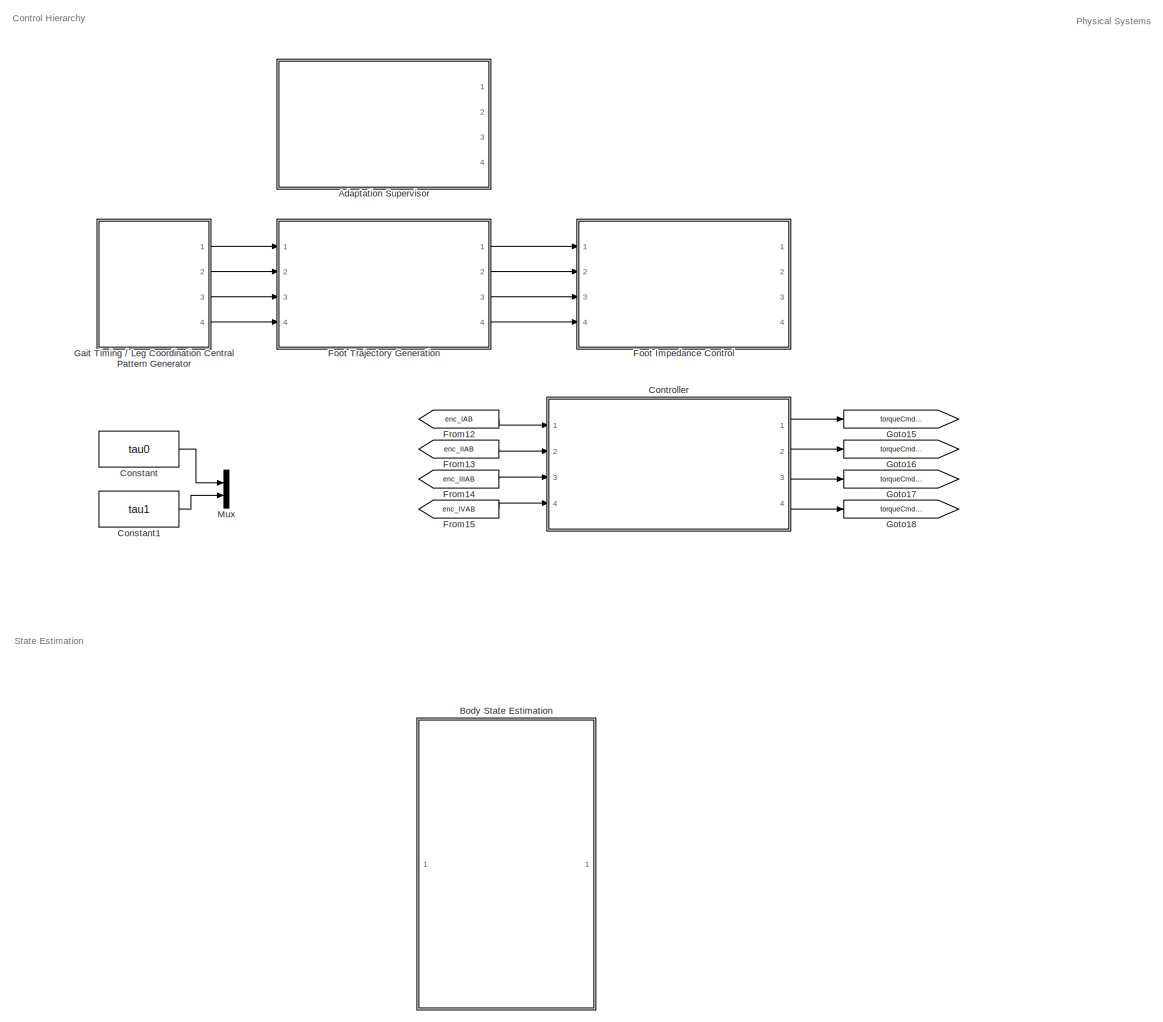
[diagram: root canvas - part 1/3, left side, full height]
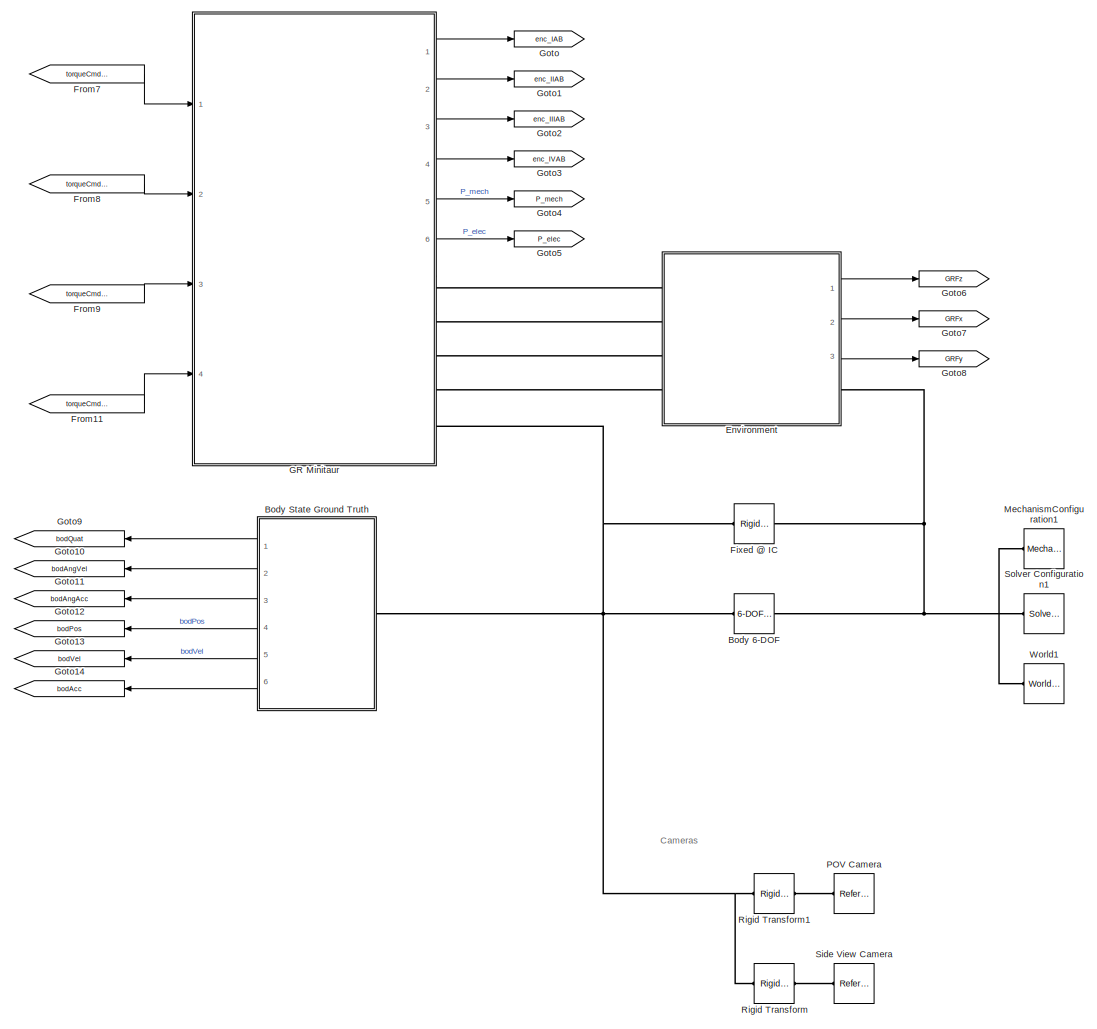
[diagram: root canvas - part 2/3, center side, full height]
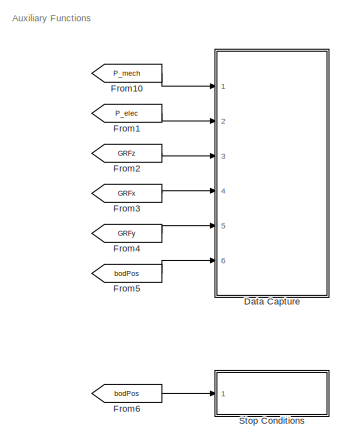
[diagram: root canvas - part 3/3, middle right region]
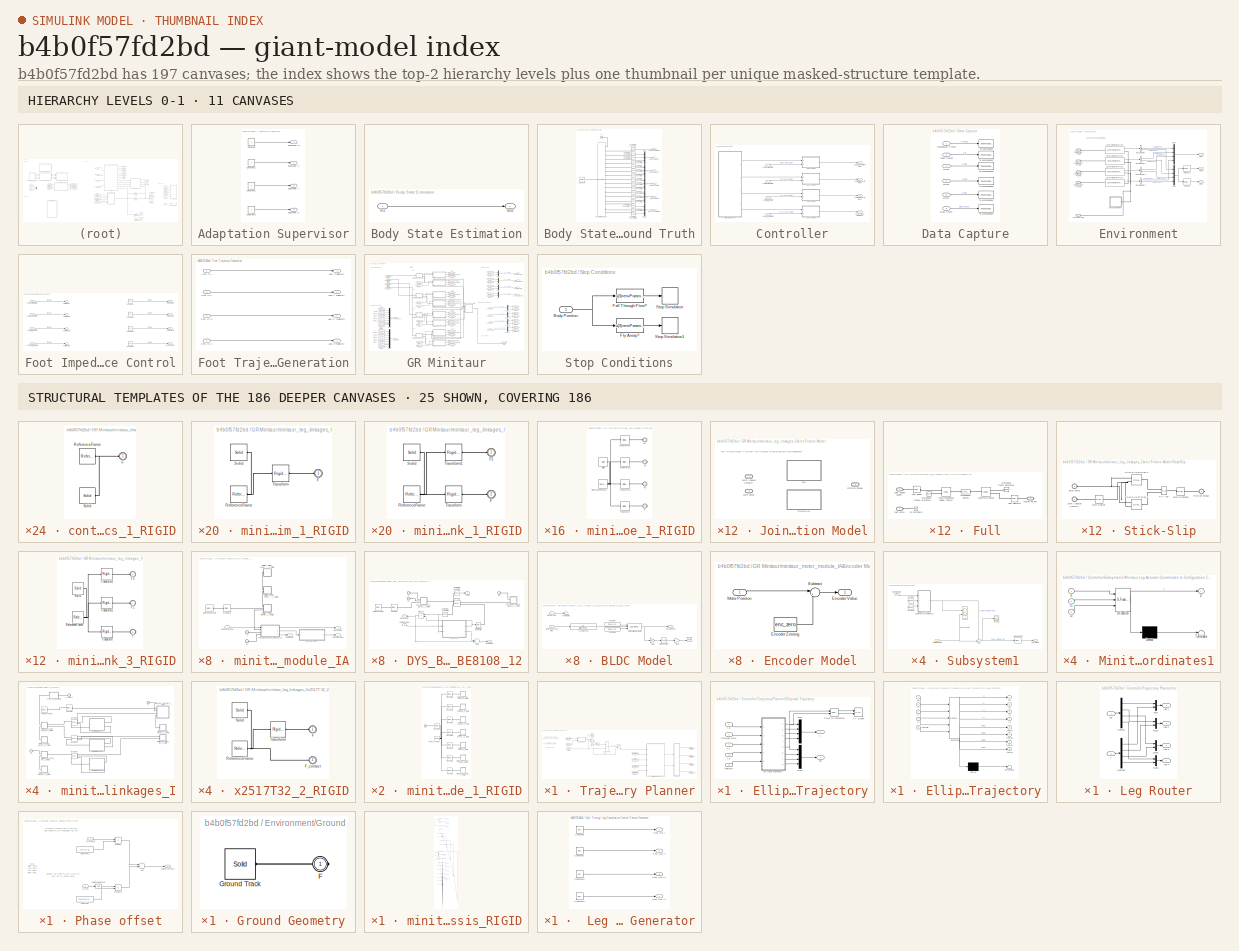
[diagram: thumbnail index - top-2 hierarchy levels (11 canvases) + 25 structural-template representatives of the remaining 186 canvases]
MODEL slx_b4b0f57fd2bd
KIND model
CONFIG AbsTol = auto
CONFIG EnableMultiTasking = on
CONFIG FixedStep = auto
CONFIG InitFcn = % minitaurParameters
CONFIG MaxStep = auto
CONFIG MinStep = auto
CONFIG RelTol = 1e-3
CONFIG SampleTimeConstraint = Unconstrained
CONFIG Solver = ode15s
CONFIG SolverName = ode15s
CONFIG StartTime = 0.0
CONFIG StopTime = 2
WORKSPACE source: MAT-file member
WORKSPACE MCOS: class17 (value not decoded)
BLOCK [SubSystem] Adaptation Supervisor
  Commented = on
  Ports = [0, 4]
  RequestExecContextInheritance = off
  Variant = off
BLOCK [Constant] Adaptation Supervisor/Constant
BLOCK [Constant] Adaptation Supervisor/Constant1
BLOCK [Constant] Adaptation Supervisor/Constant2
BLOCK [Constant] Adaptation Supervisor/Constant3
BLOCK [Outport] Adaptation Supervisor/Supervisor W
  IconDisplay = Port number
BLOCK [Outport] Adaptation Supervisor/Supervisor X
  IconDisplay = Port number
  Port = 2
BLOCK [Outport] Adaptation Supervisor/Supervisor Y
  IconDisplay = Port number
  Port = 3
BLOCK [Outport] Adaptation Supervisor/Supervisor Z
  IconDisplay = Port number
  Port = 4
BLOCK [Reference] Body 6-DOF  REF=sm_lib/Joints/6-DOF Joint
  Ports = [0, 0, 0, 0, 0, 1, 1]
  SourceBlock = sm_lib/Joints/6-DOF Joint
  SourceType = 6-DOF Joint
BLOCK [SubSystem] Body State Estimation
  Commented = on
  Ports = [1, 1]
  RequestExecContextInheritance = off
  Variant = off
BLOCK [Inport] Body State Estimation/In1
  IconDisplay = Port number
BLOCK [Outport] Body State Estimation/Out1
  IconDisplay = Port number
BLOCK [SubSystem] Body State Ground Truth
  Ports = [0, 6, 0, 0, 0, 1]
  RequestExecContextInheritance = off
  Variant = off
BLOCK [Outport] Body State Ground Truth/Body Acceleration
  IconDisplay = Port number
  Port = 6
BLOCK [Outport] Body State Ground Truth/Body Ang Acc
  IconDisplay = Port number
  Port = 3
BLOCK [Outport] Body State Ground Truth/Body Ang Vel
  IconDisplay = Port number
  Port = 2
BLOCK [Outport] Body State Ground Truth/Body Position
  IconDisplay = Port number
  Port = 4
BLOCK [Outport] Body State Ground Truth/Body Quaternion
  IconDisplay = Port number
BLOCK [Outport] Body State Ground Truth/Body Velocity
  IconDisplay = Port number
  Port = 5
BLOCK [PMIOPort] Body State Ground Truth/F
  Port = 1
  Side = Left
BLOCK [Mux] Body State Ground Truth/Mux1
  DisplayOption = bar
  Inputs = 3
  Ports = [3, 1]
BLOCK [Mux] Body State Ground Truth/Mux2
  DisplayOption = bar
  Inputs = 3
  Ports = [3, 1]
BLOCK [Mux] Body State Ground Truth/Mux3
  DisplayOption = bar
  Inputs = 3
  Ports = [3, 1]
BLOCK [Mux] Body State Ground Truth/Mux4
  DisplayOption = bar
  Inputs = 3
  Ports = [3, 1]
BLOCK [Mux] Body State Ground Truth/Mux5
  DisplayOption = bar
  Inputs = 3
  Ports = [3, 1]
BLOCK [Reference] Body State Ground Truth/PS-Simulink Converter  REF=nesl_utility/PS-Simulink
Converter
  Ports = [0, 1, 0, 0, 0, 1]
  SourceBlock = nesl_utility/PS-Simulink\nConverter
  SourceType = PS-Simulink\nConverter
BLOCK [Reference] Body State Ground Truth/PS-Simulink Converter1  REF=nesl_utility/PS-Simulink
Converter
  Ports = [0, 1, 0, 0, 0, 1]
  SourceBlock = nesl_utility/PS-Simulink\nConverter
  SourceType = PS-Simulink\nConverter
BLOCK [Reference] Body State Ground Truth/PS-Simulink Converter10  REF=nesl_utility/PS-Simulink
Converter
  Ports = [0, 1, 0, 0, 0, 1]
  SourceBlock = nesl_utility/PS-Simulink\nConverter
  SourceType = PS-Simulink\nConverter
BLOCK [Reference] Body State Ground Truth/PS-Simulink Converter11  REF=nesl_utility/PS-Simulink
Converter
  Ports = [0, 1, 0, 0, 0, 1]
  SourceBlock = nesl_utility/PS-Simulink\nConverter
  SourceType = PS-Simulink\nConverter
BLOCK [Reference] Body State Ground Truth/PS-Simulink Converter12  REF=nesl_utility/PS-Simulink
Converter
  Ports = [0, 1, 0, 0, 0, 1]
  SourceBlock = nesl_utility/PS-Simulink\nConverter
  SourceType = PS-Simulink\nConverter
BLOCK [Reference] Body State Ground Truth/PS-Simulink Converter13  REF=nesl_utility/PS-Simulink
Converter
  Ports = [0, 1, 0, 0, 0, 1]
  SourceBlock = nesl_utility/PS-Simulink\nConverter
  SourceType = PS-Simulink\nConverter
BLOCK [Reference] Body State Ground Truth/PS-Simulink Converter14  REF=nesl_utility/PS-Simulink
Converter
  Ports = [0, 1, 0, 0, 0, 1]
  SourceBlock = nesl_utility/PS-Simulink\nConverter
  SourceType = PS-Simulink\nConverter
BLOCK [Reference] Body State Ground Truth/PS-Simulink Converter15  REF=nesl_utility/PS-Simulink
Converter
  Ports = [0, 1, 0, 0, 0, 1]
  SourceBlock = nesl_utility/PS-Simulink\nConverter
  SourceType = PS-Simulink\nConverter
BLOCK [Reference] Body State Ground Truth/PS-Simulink Converter2  REF=nesl_utility/PS-Simulink
Converter
  Ports = [0, 1, 0, 0, 0, 1]
  SourceBlock = nesl_utility/PS-Simulink\nConverter
  SourceType = PS-Simulink\nConverter
BLOCK [Reference] Body State Ground Truth/PS-Simulink Converter3  REF=nesl_utility/PS-Simulink
Converter
  Ports = [0, 1, 0, 0, 0, 1]
  SourceBlock = nesl_utility/PS-Simulink\nConverter
  SourceType = PS-Simulink\nConverter
BLOCK [Reference] Body State Ground Truth/PS-Simulink Converter4  REF=nesl_utility/PS-Simulink
Converter
  Ports = [0, 1, 0, 0, 0, 1]
  SourceBlock = nesl_utility/PS-Simulink\nConverter
  SourceType = PS-Simulink\nConverter
BLOCK [Reference] Body State Ground Truth/PS-Simulink Converter5  REF=nesl_utility/PS-Simulink
Converter
  Ports = [0, 1, 0, 0, 0, 1]
  SourceBlock = nesl_utility/PS-Simulink\nConverter
  SourceType = PS-Simulink\nConverter
BLOCK [Reference] Body State Ground Truth/PS-Simulink Converter6  REF=nesl_utility/PS-Simulink
Converter
  Ports = [0, 1, 0, 0, 0, 1]
  SourceBlock = nesl_utility/PS-Simulink\nConverter
  SourceType = PS-Simulink\nConverter
BLOCK [Reference] Body State Ground Truth/PS-Simulink Converter7  REF=nesl_utility/PS-Simulink
Converter
  Ports = [0, 1, 0, 0, 0, 1]
  SourceBlock = nesl_utility/PS-Simulink\nConverter
  SourceType = PS-Simulink\nConverter
BLOCK [Reference] Body State Ground Truth/PS-Simulink Converter8  REF=nesl_utility/PS-Simulink
Converter
  Ports = [0, 1, 0, 0, 0, 1]
  SourceBlock = nesl_utility/PS-Simulink\nConverter
  SourceType = PS-Simulink\nConverter
BLOCK [Reference] Body State Ground Truth/PS-Simulink Converter9  REF=nesl_utility/PS-Simulink
Converter
  Ports = [0, 1, 0, 0, 0, 1]
  SourceBlock = nesl_utility/PS-Simulink\nConverter
  SourceType = PS-Simulink\nConverter
BLOCK [Reference] Body State Ground Truth/Transform Sensor  REF=sm_lib/Frames and
Transforms/Transform
Sensor
  Ports = [0, 0, 0, 0, 0, 1, 17]
  SourceBlock = sm_lib/Frames and\nTransforms/Transform\nSensor
  SourceType = Transform\nSensor
BLOCK [Reference] Body State Ground Truth/World Frame  REF=sm_lib/Frames and
Transforms/World Frame
  Ports = [0, 0, 0, 0, 0, 0, 1]
  SourceBlock = sm_lib/Frames and\nTransforms/World Frame
  SourceType = World Frame
BLOCK [Constant] Constant
  Commented = on
  Value = tau0
BLOCK [Constant] Constant1
  Commented = on
  Value = tau1
BLOCK [SubSystem] Controller
  Ports = [4, 4]
  RequestExecContextInheritance = off
  Variant = off
BLOCK [Inport] Controller/Leg I Configuration
  IconDisplay = Port number
  PortDimensions = 2
BLOCK [Outport] Controller/Leg I Torque, Right Front
  IconDisplay = Port number
BLOCK [Inport] Controller/Leg II Configuration
  IconDisplay = Port number
  Port = 2
  PortDimensions = 2
BLOCK [Outport] Controller/Leg II Torque, Left Front
  IconDisplay = Port number
  Port = 2
BLOCK [Inport] Controller/Leg III Configuration
  IconDisplay = Port number
  Port = 3
  PortDimensions = 2
BLOCK [Outport] Controller/Leg III Torque, Left Rear
  IconDisplay = Port number
  Port = 3
BLOCK [Inport] Controller/Leg IV Configuration
  IconDisplay = Port number
  Port = 4
  PortDimensions = 2
BLOCK [Outport] Controller/Leg IV Torque, Right Rear
  IconDisplay = Port number
  Port = 4
BLOCK [SubSystem] Controller/Subsystem1
  Ports = [2, 1]
  RequestExecContextInheritance = off
  Variant = off
BLOCK [Constant] Controller/Subsystem1/Constant
  Value = minitaurParams.Kinematics.L1
BLOCK [Constant] Controller/Subsystem1/Constant1
  Value = minitaurParams.Kinematics.L2
BLOCK [Inport] Controller/Subsystem1/Current leg state
  IconDisplay = Port number
  Port = 2
BLOCK [Outport] Controller/Subsystem1/Leg Torque
  IconDisplay = Port number
BLOCK [SubSystem] Controller/Subsystem1/Minitaur Leg Actuator Coordinates to Configuration Coordinates1
  ErrorFcn = Stateflow.Translate.translate
  PermitHierarchicalResolution = ExplicitOnly
  Ports = [3, 1]
  RequestExecContextInheritance = off
  SFBlockType = MATLAB Function
  TreatAsAtomicUnit = on
  Variant = off
BLOCK [Demux] Controller/Subsystem1/Minitaur Leg Actuator Coordinates to Configuration Coordinates1/ Demux 
  Outputs = 1
  Ports = [1, 1]
BLOCK [S-Function] Controller/Subsystem1/Minitaur Leg Actuator Coordinates to Configuration Coordinates1/ SFunction 
  EnableBusSupport = on
  FunctionName = sf_sfun
  PortCounts = [3 2]
  Ports = [3, 2]
  SFcnIsStateOwnerBlock = off
  SFunctionDeploymentMode = off
  Tag = Stateflow S-Function simTopLevel 1
BLOCK [Terminator] Controller/Subsystem1/Minitaur Leg Actuator Coordinates to Configuration Coordinates1/ Terminator 
BLOCK [Inport] Controller/Subsystem1/Minitaur Leg Actuator Coordinates to Configuration Coordinates1/a
  IconDisplay = Port number
BLOCK [Inport] Controller/Subsystem1/Minitaur Leg Actuator Coordinates to Configuration Coordinates1/l1
  IconDisplay = Port number
  Port = 2
BLOCK [Inport] Controller/Subsystem1/Minitaur Leg Actuator Coordinates to Configuration Coordinates1/l2
  IconDisplay = Port number
  Port = 3
BLOCK [Outport] Controller/Subsystem1/Minitaur Leg Actuator Coordinates to Configuration Coordinates1/p
  IconDisplay = Port number
BLOCK [Reference] Controller/Subsystem1/Motor Angle PID  REF=simulink/Continuous/PID Controller
  Ports = [1, 1]
  SourceBlock = simulink/Continuous/PID Controller
  SourceType = PID 1dof
BLOCK [Inport] Controller/Subsystem1/Path Trajectory
  IconDisplay = Port number
BLOCK [Scope] Controller/Subsystem1/Scope1
  NumInputPorts = 2
  Ports = [2]
  ScopeSpecificationString = Simulink.scopes.TimeScopeBlockCfg('CurrentConfiguration', extmgr.ConfigurationSet(extmgr.Configuration('Core','General UI',true),extmgr.Configuration('Core','Source UI',true),extmgr.Configuration('Sources','WiredSimulink',true,'DataLoggingVariableName','ScopeData1'),extmgr.Configuration('Visuals','Time Domain',true,'SerializedDisplays',{struct('MinYLimReal','-3.83051','MaxYLimReal','5.68669','YLab...<+1575ch>  <repeated x4 — deduplicated; at blocks: Scope1>
BLOCK [Scope] Controller/Subsystem1/Scope2
  NumInputPorts = 1
  Ports = [1]
  ScopeSpecificationString = Simulink.scopes.TimeScopeBlockCfg('CurrentConfiguration', extmgr.ConfigurationSet(extmgr.Configuration('Core','General UI',true),extmgr.Configuration('Core','Source UI',true),extmgr.Configuration('Sources','WiredSimulink',true,'DataLoggingVariableName','ScopeData2'),extmgr.Configuration('Visuals','Time Domain',true,'SerializedDisplays',{struct('MinYLimReal','-1.89561','MaxYLimReal','3.99503','YLab...<+1522ch>  <repeated x4 — deduplicated; at blocks: Scope2>
BLOCK [Sum] Controller/Subsystem1/Sum
  IconShape = round
  InputSameDT = off
  Inputs = +-|
  OutDataTypeStr = Inherit: Inherit via internal rule
  Ports = [2, 1]
  SaturateOnIntegerOverflow = off
BLOCK [SubSystem] Controller/Subsystem2
  Ports = [2, 1]
  RequestExecContextInheritance = off
  Variant = off
BLOCK [Constant] Controller/Subsystem2/Constant
  Value = minitaurParams.Kinematics.L1
BLOCK [Constant] Controller/Subsystem2/Constant1
  Value = minitaurParams.Kinematics.L2
BLOCK [Inport] Controller/Subsystem2/Current leg state
  IconDisplay = Port number
  Port = 2
BLOCK [Outport] Controller/Subsystem2/Leg Torque
  IconDisplay = Port number
BLOCK [SubSystem] Controller/Subsystem2/Minitaur Leg Actuator Coordinates to Configuration Coordinates1
  ErrorFcn = Stateflow.Translate.translate
  PermitHierarchicalResolution = ExplicitOnly
  Ports = [3, 1]
  RequestExecContextInheritance = off
  SFBlockType = MATLAB Function
  TreatAsAtomicUnit = on
  Variant = off
BLOCK [Demux] Controller/Subsystem2/Minitaur Leg Actuator Coordinates to Configuration Coordinates1/ Demux 
  Outputs = 1
  Ports = [1, 1]
BLOCK [S-Function] Controller/Subsystem2/Minitaur Leg Actuator Coordinates to Configuration Coordinates1/ SFunction 
  EnableBusSupport = on
  FunctionName = sf_sfun
  PortCounts = [3 2]
  Ports = [3, 2]
  SFcnIsStateOwnerBlock = off
  SFunctionDeploymentMode = off
  Tag = Stateflow S-Function simTopLevel 2
BLOCK [Terminator] Controller/Subsystem2/Minitaur Leg Actuator Coordinates to Configuration Coordinates1/ Terminator 
BLOCK [Inport] Controller/Subsystem2/Minitaur Leg Actuator Coordinates to Configuration Coordinates1/a
  IconDisplay = Port number
BLOCK [Inport] Controller/Subsystem2/Minitaur Leg Actuator Coordinates to Configuration Coordinates1/l1
  IconDisplay = Port number
  Port = 2
BLOCK [Inport] Controller/Subsystem2/Minitaur Leg Actuator Coordinates to Configuration Coordinates1/l2
  IconDisplay = Port number
  Port = 3
BLOCK [Outport] Controller/Subsystem2/Minitaur Leg Actuator Coordinates to Configuration Coordinates1/p
  IconDisplay = Port number
BLOCK [Reference] Controller/Subsystem2/Motor Angle PID  REF=simulink/Continuous/PID Controller
  Ports = [1, 1]
  SourceBlock = simulink/Continuous/PID Controller
  SourceType = PID 1dof
BLOCK [Inport] Controller/Subsystem2/Path Trajectory
  IconDisplay = Port number
BLOCK [Scope] Controller/Subsystem2/Scope1
  NumInputPorts = 2
  Ports = [2]
BLOCK [Scope] Controller/Subsystem2/Scope2
  NumInputPorts = 1
  Ports = [1]
BLOCK [Sum] Controller/Subsystem2/Sum
  IconShape = round
  InputSameDT = off
  Inputs = +-|
  OutDataTypeStr = Inherit: Inherit via internal rule
  Ports = [2, 1]
  SaturateOnIntegerOverflow = off
BLOCK [SubSystem] Controller/Subsystem3
  Ports = [2, 1]
  RequestExecContextInheritance = off
  Variant = off
BLOCK [Constant] Controller/Subsystem3/Constant
  Value = minitaurParams.Kinematics.L1
BLOCK [Constant] Controller/Subsystem3/Constant1
  Value = minitaurParams.Kinematics.L2
BLOCK [Inport] Controller/Subsystem3/Current leg state
  IconDisplay = Port number
  Port = 2
BLOCK [Outport] Controller/Subsystem3/Leg Torque
  IconDisplay = Port number
BLOCK [SubSystem] Controller/Subsystem3/Minitaur Leg Actuator Coordinates to Configuration Coordinates1
  ErrorFcn = Stateflow.Translate.translate
  PermitHierarchicalResolution = ExplicitOnly
  Ports = [3, 1]
  RequestExecContextInheritance = off
  SFBlockType = MATLAB Function
  TreatAsAtomicUnit = on
  Variant = off
BLOCK [Demux] Controller/Subsystem3/Minitaur Leg Actuator Coordinates to Configuration Coordinates1/ Demux 
  Outputs = 1
  Ports = [1, 1]
BLOCK [S-Function] Controller/Subsystem3/Minitaur Leg Actuator Coordinates to Configuration Coordinates1/ SFunction 
  EnableBusSupport = on
  FunctionName = sf_sfun
  PortCounts = [3 2]
  Ports = [3, 2]
  SFcnIsStateOwnerBlock = off
  SFunctionDeploymentMode = off
  Tag = Stateflow S-Function simTopLevel 3
BLOCK [Terminator] Controller/Subsystem3/Minitaur Leg Actuator Coordinates to Configuration Coordinates1/ Terminator 
BLOCK [Inport] Controller/Subsystem3/Minitaur Leg Actuator Coordinates to Configuration Coordinates1/a
  IconDisplay = Port number
BLOCK [Inport] Controller/Subsystem3/Minitaur Leg Actuator Coordinates to Configuration Coordinates1/l1
  IconDisplay = Port number
  Port = 2
BLOCK [Inport] Controller/Subsystem3/Minitaur Leg Actuator Coordinates to Configuration Coordinates1/l2
  IconDisplay = Port number
  Port = 3
BLOCK [Outport] Controller/Subsystem3/Minitaur Leg Actuator Coordinates to Configuration Coordinates1/p
  IconDisplay = Port number
BLOCK [Reference] Controller/Subsystem3/Motor Angle PID  REF=simulink/Continuous/PID Controller
  Ports = [1, 1]
  SourceBlock = simulink/Continuous/PID Controller
  SourceType = PID 1dof
BLOCK [Inport] Controller/Subsystem3/Path Trajectory
  IconDisplay = Port number
BLOCK [Scope] Controller/Subsystem3/Scope1
  NumInputPorts = 2
  Ports = [2]
BLOCK [Scope] Controller/Subsystem3/Scope2
  NumInputPorts = 1
  Ports = [1]
BLOCK [Sum] Controller/Subsystem3/Sum
  IconShape = round
  InputSameDT = off
  Inputs = +-|
  OutDataTypeStr = Inherit: Inherit via internal rule
  Ports = [2, 1]
  SaturateOnIntegerOverflow = off
BLOCK [SubSystem] Controller/Subsystem4
  Ports = [2, 1]
  RequestExecContextInheritance = off
  Variant = off
BLOCK [Constant] Controller/Subsystem4/Constant
  Value = minitaurParams.Kinematics.L1
BLOCK [Constant] Controller/Subsystem4/Constant1
  Value = minitaurParams.Kinematics.L2
BLOCK [Inport] Controller/Subsystem4/Current leg state
  IconDisplay = Port number
  Port = 2
BLOCK [Outport] Controller/Subsystem4/Leg Torque
  IconDisplay = Port number
BLOCK [SubSystem] Controller/Subsystem4/Minitaur Leg Actuator Coordinates to Configuration Coordinates1
  ErrorFcn = Stateflow.Translate.translate
  PermitHierarchicalResolution = ExplicitOnly
  Ports = [3, 1]
  RequestExecContextInheritance = off
  SFBlockType = MATLAB Function
  TreatAsAtomicUnit = on
  Variant = off
BLOCK [Demux] Controller/Subsystem4/Minitaur Leg Actuator Coordinates to Configuration Coordinates1/ Demux 
  Outputs = 1
  Ports = [1, 1]
BLOCK [S-Function] Controller/Subsystem4/Minitaur Leg Actuator Coordinates to Configuration Coordinates1/ SFunction 
  EnableBusSupport = on
  FunctionName = sf_sfun
  PortCounts = [3 2]
  Ports = [3, 2]
  SFcnIsStateOwnerBlock = off
  SFunctionDeploymentMode = off
  Tag = Stateflow S-Function simTopLevel 7
BLOCK [Terminator] Controller/Subsystem4/Minitaur Leg Actuator Coordinates to Configuration Coordinates1/ Terminator 
BLOCK [Inport] Controller/Subsystem4/Minitaur Leg Actuator Coordinates to Configuration Coordinates1/a
  IconDisplay = Port number
BLOCK [Inport] Controller/Subsystem4/Minitaur Leg Actuator Coordinates to Configuration Coordinates1/l1
  IconDisplay = Port number
  Port = 2
BLOCK [Inport] Controller/Subsystem4/Minitaur Leg Actuator Coordinates to Configuration Coordinates1/l2
  IconDisplay = Port number
  Port = 3
BLOCK [Outport] Controller/Subsystem4/Minitaur Leg Actuator Coordinates to Configuration Coordinates1/p
  IconDisplay = Port number
BLOCK [Reference] Controller/Subsystem4/Motor Angle PID  REF=simulink/Continuous/PID Controller
  Ports = [1, 1]
  SourceBlock = simulink/Continuous/PID Controller
  SourceType = PID 1dof
BLOCK [Inport] Controller/Subsystem4/Path Trajectory
  IconDisplay = Port number
BLOCK [Scope] Controller/Subsystem4/Scope1
  NumInputPorts = 2
  Ports = [2]
BLOCK [Scope] Controller/Subsystem4/Scope2
  NumInputPorts = 1
  Ports = [1]
BLOCK [Sum] Controller/Subsystem4/Sum
  IconShape = round
  InputSameDT = off
  Inputs = +-|
  OutDataTypeStr = Inherit: Inherit via internal rule
  Ports = [2, 1]
  SaturateOnIntegerOverflow = off
BLOCK [SubSystem] Controller/Trajectory Planner
  Ports = [0, 4]
  RequestExecContextInheritance = off
  Variant = off
BLOCK [Sum] Controller/Trajectory Planner/Add
  InputSameDT = off
  OutDataTypeStr = Inherit: Inherit via internal rule
  Ports = [2, 1]
  SaturateOnIntegerOverflow = off
BLOCK [Clock] Controller/Trajectory Planner/Clock
BLOCK [SubSystem] Controller/Trajectory Planner/Elliptical Trajectory
  Ports = [5, 2]
  RequestExecContextInheritance = off
  Variant = off
BLOCK [SubSystem] Controller/Trajectory Planner/Elliptical Trajectory/Ellipse Trajectory
  ErrorFcn = Stateflow.Translate.translate
  PermitHierarchicalResolution = ExplicitOnly
  Ports = [5, 8]
  RequestExecContextInheritance = off
  SFBlockType = MATLAB Function
  TreatAsAtomicUnit = on
  Variant = off
BLOCK [Demux] Controller/Trajectory Planner/Elliptical Trajectory/Ellipse Trajectory/ Demux 
  Outputs = 1
  Ports = [1, 1]
BLOCK [S-Function] Controller/Trajectory Planner/Elliptical Trajectory/Ellipse Trajectory/ SFunction 
  EnableBusSupport = on
  FunctionName = sf_sfun
  PortCounts = [5 9]
  Ports = [5, 9]
  SFcnIsStateOwnerBlock = off
  SFunctionDeploymentMode = off
  Tag = Stateflow S-Function simTopLevel 8
BLOCK [Terminator] Controller/Trajectory Planner/Elliptical Trajectory/Ellipse Trajectory/ Terminator 
BLOCK [Outport] Controller/Trajectory Planner/Elliptical Trajectory/Ellipse Trajectory/L1
  IconDisplay = Port number
BLOCK [Outport] Controller/Trajectory Planner/Elliptical Trajectory/Ellipse Trajectory/L2
  IconDisplay = Port number
  Port = 2
BLOCK [Outport] Controller/Trajectory Planner/Elliptical Trajectory/Ellipse Trajectory/L3
  IconDisplay = Port number
  Port = 3
BLOCK [Outport] Controller/Trajectory Planner/Elliptical Trajectory/Ellipse Trajectory/L4
  IconDisplay = Port number
  Port = 4
BLOCK [Inport] Controller/Trajectory Planner/Elliptical Trajectory/Ellipse Trajectory/r0
  IconDisplay = Port number
BLOCK [Inport] Controller/Trajectory Planner/Elliptical Trajectory/Ellipse Trajectory/rx
  IconDisplay = Port number
  Port = 4
BLOCK [Inport] Controller/Trajectory Planner/Elliptical Trajectory/Ellipse Trajectory/ry
  IconDisplay = Port number
  Port = 3
BLOCK [Inport] Controller/Trajectory Planner/Elliptical Trajectory/Ellipse Trajectory/t
  IconDisplay = Port number
  Port = 2
BLOCK [Outport] Controller/Trajectory Planner/Elliptical Trajectory/Ellipse Trajectory/theta1
  IconDisplay = Port number
  Port = 5
BLOCK [Outport] Controller/Trajectory Planner/Elliptical Trajectory/Ellipse Trajectory/theta2
  IconDisplay = Port number
  Port = 6
BLOCK [Outport] Controller/Trajectory Planner/Elliptical Trajectory/Ellipse Trajectory/theta3
  IconDisplay = Port number
  Port = 7
BLOCK [Outport] Controller/Trajectory Planner/Elliptical Trajectory/Ellipse Trajectory/theta4
  IconDisplay = Port number
  Port = 8
BLOCK [Inport] Controller/Trajectory Planner/Elliptical Trajectory/Ellipse Trajectory/thetaTilt
  IconDisplay = Port number
  Port = 5
BLOCK [Outport] Controller/Trajectory Planner/Elliptical Trajectory/L
  IconDisplay = Port number
  Port = 2
BLOCK [Mux] Controller/Trajectory Planner/Elliptical Trajectory/Mux
  DisplayOption = bar
  Ports = [4, 1]
BLOCK [Mux] Controller/Trajectory Planner/Elliptical Trajectory/Mux1
  DisplayOption = bar
  Ports = [4, 1]
BLOCK [Reference] Controller/Trajectory Planner/Elliptical Trajectory/Polar to Cartesian  REF=simulink_extras/Transformations/Polar to
Cartesian
  Commented = on
  Ports = [2, 2]
  SourceBlock = simulink_extras/Transformations/Polar to\nCartesian
  SourceType = Polar2Cart
BLOCK [Reference] Controller/Trajectory Planner/Elliptical Trajectory/XY Graph  REF=simulink/Sinks/XY Graph
  Commented = on
  Ports = [2]
  SourceBlock = simulink/Sinks/XY Graph
  SourceType = XY scope.
BLOCK [Outport] Controller/Trajectory Planner/Elliptical Trajectory/psi
  IconDisplay = Port number
BLOCK [Inport] Controller/Trajectory Planner/Elliptical Trajectory/r_0
  IconDisplay = Port number
  Port = 2
BLOCK [Inport] Controller/Trajectory Planner/Elliptical Trajectory/r_x
  IconDisplay = Port number
  Port = 3
BLOCK [Inport] Controller/Trajectory Planner/Elliptical Trajectory/r_y
  IconDisplay = Port number
  Port = 4
BLOCK [Inport] Controller/Trajectory Planner/Elliptical Trajectory/thetaTilt
  IconDisplay = Port number
  Port = 5
BLOCK [Inport] Controller/Trajectory Planner/Elliptical Trajectory/time_per_cycle
  IconDisplay = Port number
BLOCK [Outport] Controller/Trajectory Planner/Foot I Trajectory [psi L]
  IconDisplay = Port number
BLOCK [Outport] Controller/Trajectory Planner/Foot II Trajectory [psi L]
  IconDisplay = Port number
  Port = 2
BLOCK [Outport] Controller/Trajectory Planner/Foot III Trajectory [psi L]
  IconDisplay = Port number
  Port = 3
BLOCK [Outport] Controller/Trajectory Planner/Foot IV Trajectory [psi L]
  IconDisplay = Port number
  Port = 4
BLOCK [SubSystem] Controller/Trajectory Planner/Leg Router
  Ports = [2, 4]
  RequestExecContextInheritance = off
  Variant = off
BLOCK [Demux] Controller/Trajectory Planner/Leg Router/Demux
  DisplayOption = bar
  Ports = [1, 4]
BLOCK [Demux] Controller/Trajectory Planner/Leg Router/Demux1
  DisplayOption = bar
  Ports = [1, 4]
BLOCK [Inport] Controller/Trajectory Planner/Leg Router/L
  IconDisplay = Port number
  Port = 2
BLOCK [Mux] Controller/Trajectory Planner/Leg Router/Mux
  DisplayOption = bar
  Inputs = 2
  Ports = [2, 1]
BLOCK [Mux] Controller/Trajectory Planner/Leg Router/Mux1
  DisplayOption = bar
  Inputs = 2
  Ports = [2, 1]
BLOCK [Mux] Controller/Trajectory Planner/Leg Router/Mux2
  DisplayOption = bar
  Inputs = 2
  Ports = [2, 1]
BLOCK [Mux] Controller/Trajectory Planner/Leg Router/Mux3
  DisplayOption = bar
  Inputs = 2
  Ports = [2, 1]
BLOCK [Outport] Controller/Trajectory Planner/Leg Router/leg 1
  IconDisplay = Port number
BLOCK [Outport] Controller/Trajectory Planner/Leg Router/leg 2
  IconDisplay = Port number
  Port = 2
BLOCK [Outport] Controller/Trajectory Planner/Leg Router/leg 3
  IconDisplay = Port number
  Port = 3
BLOCK [Outport] Controller/Trajectory Planner/Leg Router/leg 4
  IconDisplay = Port number
  Port = 4
BLOCK [Inport] Controller/Trajectory Planner/Leg Router/psi
  IconDisplay = Port number
BLOCK [Math] Controller/Trajectory Planner/Math Function
  Operator = mod
  Ports = [2, 1]
BLOCK [SubSystem] Controller/Trajectory Planner/Phase offset
  Ports = [2, 1]
  RequestExecContextInheritance = off
  Variant = off
BLOCK [Sum] Controller/Trajectory Planner/Phase offset/Add
  InputSameDT = off
  OutDataTypeStr = Inherit: Inherit via internal rule
  Ports = [2, 1]
  SaturateOnIntegerOverflow = off
BLOCK [Constant] Controller/Trajectory Planner/Phase offset/Constant
  Value = [0.5 0 0 0.5]
BLOCK [Constant] Controller/Trajectory Planner/Phase offset/Constant1
  Value = [0 0 1 1]
BLOCK [Logic] Controller/Trajectory Planner/Phase offset/Logical Operator
  AllPortsSameDT = off
  Operator = NOT
  OutDataTypeStr = boolean
  Ports = [1, 1]
BLOCK [Product] Controller/Trajectory Planner/Phase offset/Product
  InputSameDT = off
  OutDataTypeStr = Inherit: Inherit via internal rule
  Ports = [2, 1]
  RndMeth = Floor
  SaturateOnIntegerOverflow = off
BLOCK [Product] Controller/Trajectory Planner/Phase offset/Product1
  InputSameDT = off
  OutDataTypeStr = Inherit: Inherit via internal rule
  Ports = [2, 1]
  RndMeth = Floor
  SaturateOnIntegerOverflow = off
BLOCK [Inport] Controller/Trajectory Planner/Phase offset/fore_lag_in
  IconDisplay = Port number
BLOCK [Inport] Controller/Trajectory Planner/Phase offset/lr_sync
  IconDisplay = Port number
  Port = 2
BLOCK [Outport] Controller/Trajectory Planner/Phase offset/phase offsets
  IconDisplay = Port number
BLOCK [Product] Controller/Trajectory Planner/Product
  InputSameDT = off
  OutDataTypeStr = Inherit: Inherit via internal rule
  Ports = [2, 1]
  RndMeth = Floor
  SaturateOnIntegerOverflow = off
BLOCK [Product] Controller/Trajectory Planner/Product2
  InputSameDT = off
  Inputs = */
  OutDataTypeStr = Inherit: Inherit via internal rule
  Ports = [2, 1]
  RndMeth = Floor
  SaturateOnIntegerOverflow = off
BLOCK [Scope] Controller/Trajectory Planner/Scope2
  NumInputPorts = 1
  Ports = [1]
  ScopeSpecificationString = Simulink.scopes.TimeScopeBlockCfg('CurrentConfiguration', extmgr.ConfigurationSet(extmgr.Configuration('Core','General UI',true),extmgr.Configuration('Core','Source UI',true),extmgr.Configuration('Sources','WiredSimulink',true,'DataLoggingVariableName','ScopeData3','DataLoggingLimitDataPoints',true,'DataLoggingSaveFormat','Array','DataLoggingDecimation','1','DataLoggingDecimateData',true),extmgr.C...<+1692ch>
BLOCK [Constant] Controller/Trajectory Planner/fore_lag
  Value = ForeRearLag
BLOCK [Constant] Controller/Trajectory Planner/lr_sync
  OutDataTypeStr = double
  Value = controlParams.CPG.LRSyncFlag
BLOCK [Constant] Controller/Trajectory Planner/period
  OutDataTypeStr = double
  Value = Period
BLOCK [Constant] Controller/Trajectory Planner/r_0
  Value = controlParams.FootImpedanceControl.r0
BLOCK [Constant] Controller/Trajectory Planner/r_x
  Value = controlParams.FootImpedanceControl.rx
BLOCK [Constant] Controller/Trajectory Planner/r_y
  Value = controlParams.FootImpedanceControl.ry
BLOCK [Constant] Controller/Trajectory Planner/thetaTilt
  Value = controlParams.FootImpedanceControl.thetaTilt
BLOCK [SubSystem] Data Capture
  Commented = on
  Ports = [6]
  RequestExecContextInheritance = off
  Variant = off
BLOCK [Inport] Data Capture/Body State
  IconDisplay = Port number
  Port = 6
BLOCK [Inport] Data Capture/GRFx
  IconDisplay = Port number
  Port = 4
BLOCK [Inport] Data Capture/GRFy
  IconDisplay = Port number
  Port = 5
BLOCK [Inport] Data Capture/GRFz
  IconDisplay = Port number
  Port = 3
BLOCK [Inport] Data Capture/Input Power
  IconDisplay = Port number
  Port = 2
BLOCK [Inport] Data Capture/Mechanical Power
  IconDisplay = Port number
BLOCK [ToWorkspace] Data Capture/To Workspace
  FixptAsFi = on
  MaxDataPoints = inf
  Ports = [1]
  SampleTime = -1
  Save2DSignal = 3-D array (concatenate along third dimension)
  SaveFormat = Structure With Time
  VariableName = P_mech
BLOCK [ToWorkspace] Data Capture/To Workspace1
  FixptAsFi = on
  MaxDataPoints = inf
  Ports = [1]
  SampleTime = -1
  Save2DSignal = 3-D array (concatenate along third dimension)
  SaveFormat = Structure With Time
  VariableName = body_state
BLOCK [ToWorkspace] Data Capture/To Workspace2
  FixptAsFi = on
  MaxDataPoints = inf
  Ports = [1]
  SampleTime = -1
  Save2DSignal = 3-D array (concatenate along third dimension)
  SaveFormat = Structure With Time
  VariableName = P_in
BLOCK [ToWorkspace] Data Capture/To Workspace3
  FixptAsFi = on
  MaxDataPoints = inf
  Ports = [1]
  SampleTime = -1
  Save2DSignal = 3-D array (concatenate along third dimension)
  SaveFormat = Structure With Time
  VariableName = GRF_z
BLOCK [ToWorkspace] Data Capture/To Workspace4
  FixptAsFi = on
  MaxDataPoints = inf
  Ports = [1]
  SampleTime = -1
  Save2DSignal = 3-D array (concatenate along third dimension)
  SaveFormat = Structure With Time
  VariableName = GRF_y
BLOCK [ToWorkspace] Data Capture/To Workspace5
  FixptAsFi = on
  MaxDataPoints = inf
  Ports = [1]
  SampleTime = -1
  Save2DSignal = 3-D array (concatenate along third dimension)
  SaveFormat = Structure With Time
  VariableName = GRF_x
BLOCK [SubSystem] Environment
  Ports = [0, 3, 0, 0, 0, 4, 1]
  RequestExecContextInheritance = off
  Variant = off
BLOCK [BusSelector] Environment/Bus Selector
  OutputSignals = Normal Force,Friction Force
  Ports = [1, 2]
BLOCK [BusSelector] Environment/Bus Selector1
  OutputSignals = Normal Force,Friction Force
  Ports = [1, 2]
BLOCK [BusSelector] Environment/Bus Selector2
  OutputSignals = Normal Force,Friction Force
  Ports = [1, 2]
BLOCK [BusSelector] Environment/Bus Selector3
  OutputSignals = Normal Force,Friction Force
  Ports = [1, 2]
BLOCK [PMIOPort] Environment/Foot I Contact Frame
  Port = 1
  Side = Left
BLOCK [PMIOPort] Environment/Foot II Contact Frame
  Port = 2
  Side = Left
BLOCK [PMIOPort] Environment/Foot III Contact Frame
  Port = 3
  Side = Left
BLOCK [PMIOPort] Environment/Foot IV Contact Frame
  Port = 4
  Side = Left
BLOCK [Outport] Environment/GRFx
  IconDisplay = Port number
  Port = 2
BLOCK [Outport] Environment/GRFy
  IconDisplay = Port number
  Port = 3
BLOCK [Outport] Environment/GRFz
  IconDisplay = Port number
BLOCK [PMIOPort] Environment/Ground Frame
  Port = 5
  Side = Right
BLOCK [SubSystem] Environment/Ground Geometry
  Ports = [0, 0, 0, 0, 0, 0, 1]
  RequestExecContextInheritance = off
  Variant = off
BLOCK [PMIOPort] Environment/Ground Geometry/F
  Port = 1
  Side = Right
BLOCK [Reference] Environment/Ground Geometry/Ground Track  REF=sm_lib/Body Elements/Solid
  Ports = [0, 0, 0, 0, 0, 0, 1]
  SourceBlock = sm_lib/Body Elements/Solid
  SourceType = Solid
BLOCK [Mux] Environment/Mux
  DisplayOption = bar
  Ports = [4, 1]
BLOCK [Mux] Environment/Mux1
  DisplayOption = bar
  Ports = [4, 1]
BLOCK [Selector] Environment/Selector
  IndexMode = Zero-based
  IndexOptions = Index vector (dialog)
  Indices = [1:3:12]
  InputPortWidth = 12
  OutputSizes = 1
  Ports = [1, 1]
BLOCK [Selector] Environment/Selector1
  IndexMode = Zero-based
  IndexOptions = Index vector (dialog)
  Indices = [2:3:12]
  InputPortWidth = 12
  OutputSizes = 1
  Ports = [1, 1]
BLOCK [Reference] Environment/Sphere to Plane Force1  REF=Contact_Forces_Lib/3D/Sphere to Plane Force
  Ports = [0, 1, 0, 0, 0, 1, 1]
  SourceBlock = Contact_Forces_Lib/3D/Sphere to Plane Force
  SourceType = Sphere to Plane Force
BLOCK [Reference] Environment/Sphere to Plane Force2  REF=Contact_Forces_Lib/3D/Sphere to Plane Force
  Ports = [0, 1, 0, 0, 0, 1, 1]
  SourceBlock = Contact_Forces_Lib/3D/Sphere to Plane Force
  SourceType = Sphere to Plane Force
BLOCK [Reference] Environment/Sphere to Plane Force3  REF=Contact_Forces_Lib/3D/Sphere to Plane Force
  Ports = [0, 1, 0, 0, 0, 1, 1]
  SourceBlock = Contact_Forces_Lib/3D/Sphere to Plane Force
  SourceType = Sphere to Plane Force
BLOCK [Reference] Environment/Sphere to Plane Force4  REF=Contact_Forces_Lib/3D/Sphere to Plane Force
  Ports = [0, 1, 0, 0, 0, 1, 1]
  SourceBlock = Contact_Forces_Lib/3D/Sphere to Plane Force
  SourceType = Sphere to Plane Force
BLOCK [Reference] Fixed @ IC  REF=sm_lib/Frames and
Transforms/Rigid
Transform
  Commented = on
  Ports = [0, 0, 0, 0, 0, 1, 1]
  SourceBlock = sm_lib/Frames and\nTransforms/Rigid\nTransform
  SourceType = Rigid\nTransform
BLOCK [SubSystem] Foot Impedance Control
  Commented = on
  Ports = [4, 4]
  RequestExecContextInheritance = off
  Variant = off
BLOCK [Constant] Foot Impedance Control/Constant
  Value = [0 0]
BLOCK [Constant] Foot Impedance Control/Constant1
  Value = [0 0]
BLOCK [Constant] Foot Impedance Control/Constant2
  Value = [0 0]
BLOCK [Constant] Foot Impedance Control/Constant3
  Value = [0 0]
BLOCK [Inport] Foot Impedance Control/Leg I Configuration
  IconDisplay = Port number
  PortDimensions = 2
BLOCK [Outport] Foot Impedance Control/Leg I Torque
  IconDisplay = Port number
BLOCK [Inport] Foot Impedance Control/Leg II Configuration
  IconDisplay = Port number
  Port = 2
  PortDimensions = 2
BLOCK [Outport] Foot Impedance Control/Leg II Torque
  IconDisplay = Port number
  Port = 2
BLOCK [Inport] Foot Impedance Control/Leg III Configuration
  IconDisplay = Port number
  Port = 3
  PortDimensions = 2
BLOCK [Outport] Foot Impedance Control/Leg III Torque
  IconDisplay = Port number
  Port = 3
BLOCK [Inport] Foot Impedance Control/Leg IV Configuration
  IconDisplay = Port number
  Port = 4
  PortDimensions = 2
BLOCK [Outport] Foot Impedance Control/Leg IV Torque
  IconDisplay = Port number
  Port = 4
BLOCK [Terminator] Foot Impedance Control/Terminator
BLOCK [Terminator] Foot Impedance Control/Terminator1
BLOCK [Terminator] Foot Impedance Control/Terminator2
BLOCK [Terminator] Foot Impedance Control/Terminator3
BLOCK [SubSystem] Foot Trajectory Generation
  Commented = on
  Ports = [4, 4]
  RequestExecContextInheritance = off
  Variant = off
BLOCK [Inport] Foot Trajectory Generation/CPG In I
  IconDisplay = Port number
BLOCK [Inport] Foot Trajectory Generation/CPG In II
  IconDisplay = Port number
  Port = 2
BLOCK [Inport] Foot Trajectory Generation/CPG In III
  IconDisplay = Port number
  Port = 3
BLOCK [Inport] Foot Trajectory Generation/CPG In IV
  IconDisplay = Port number
  Port = 4
BLOCK [Outport] Foot Trajectory Generation/Leg I Trajectory
  IconDisplay = Port number
BLOCK [Outport] Foot Trajectory Generation/Leg II Trajectory
  IconDisplay = Port number
  Port = 2
BLOCK [Outport] Foot Trajectory Generation/Leg III Trajectory
  IconDisplay = Port number
  Port = 3
BLOCK [Outport] Foot Trajectory Generation/Leg IV Trajectory
  IconDisplay = Port number
  Port = 4
BLOCK [From] From1
  Commented = on
  GotoTag = P_elec
BLOCK [From] From10
  Commented = on
  GotoTag = P_mech
BLOCK [From] From11
  GotoTag = torqueCmd_IVAB
BLOCK [From] From12
  GotoTag = enc_IAB
BLOCK [From] From13
  GotoTag = enc_IIAB
BLOCK [From] From14
  GotoTag = enc_IIIAB
BLOCK [From] From15
  GotoTag = enc_IVAB
BLOCK [From] From2
  Commented = on
  GotoTag = GRFz
BLOCK [From] From3
  Commented = on
  GotoTag = GRFx
BLOCK [From] From4
  Commented = on
  GotoTag = GRFy
BLOCK [From] From5
  Commented = on
  GotoTag = bodPos
BLOCK [From] From6
  GotoTag = bodPos
BLOCK [From] From7
  GotoTag = torqueCmd_IAB
BLOCK [From] From8
  GotoTag = torqueCmd_IIAB
BLOCK [From] From9
  GotoTag = torqueCmd_IIIAB
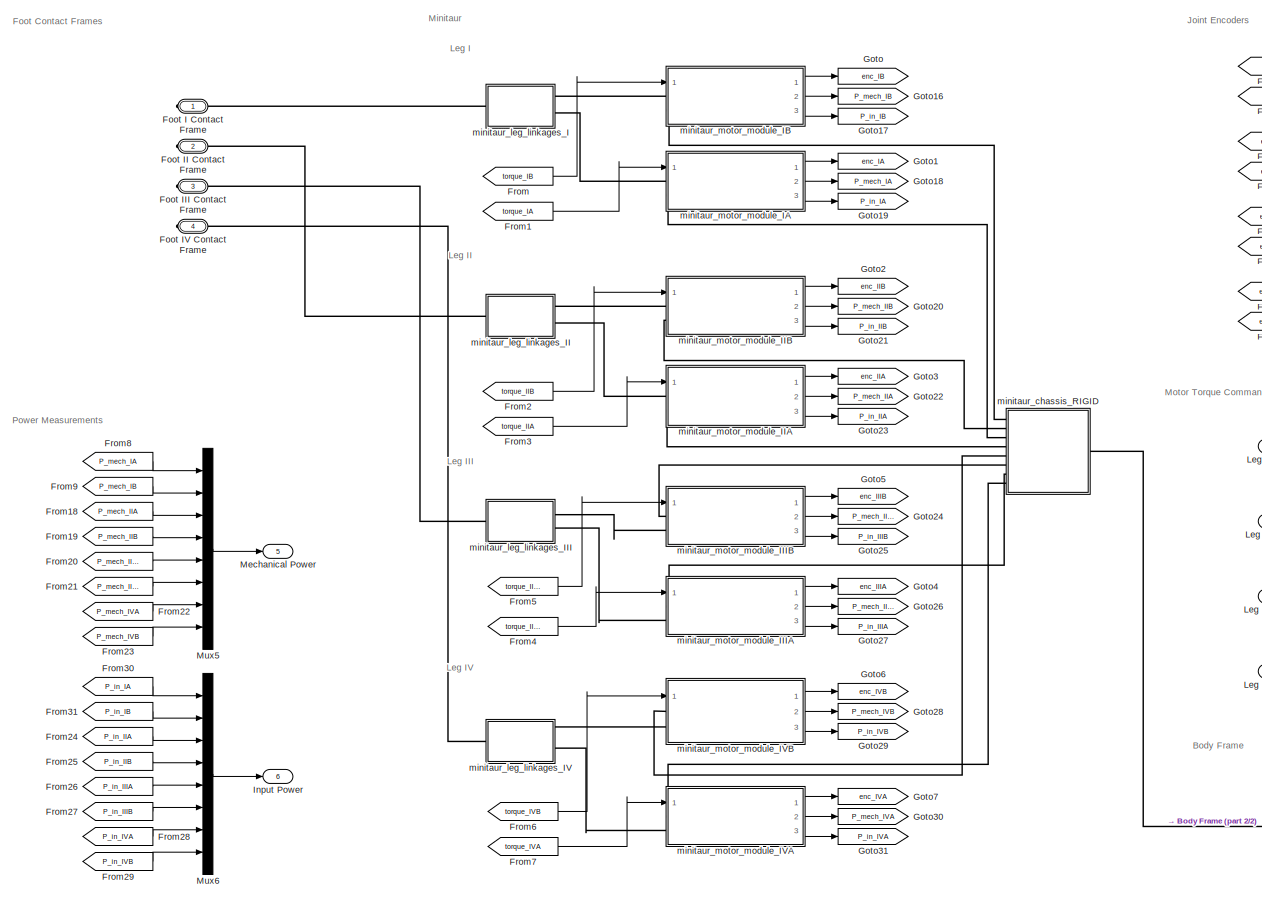
[diagram: GR Minitaur - part 1/2, most of the canvas]
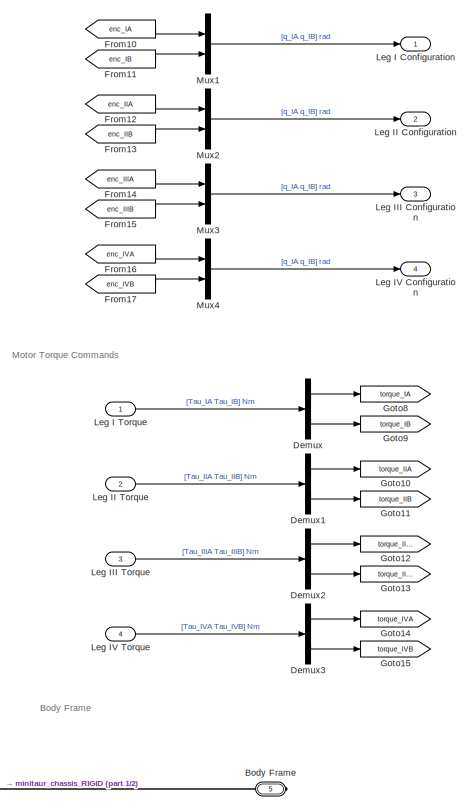
[diagram: GR Minitaur - part 2/2, right side, full height]
BLOCK [SubSystem] GR Minitaur
  Ports = [4, 6, 0, 0, 0, 0, 5]
  RequestExecContextInheritance = off
  Variant = off
BLOCK [PMIOPort] GR Minitaur/Body Frame
  Port = 5
  Side = Right
BLOCK [Demux] GR Minitaur/Demux
  DisplayOption = bar
  Outputs = 2
  Ports = [1, 2]
BLOCK [Demux] GR Minitaur/Demux1
  DisplayOption = bar
  Outputs = 2
  Ports = [1, 2]
BLOCK [Demux] GR Minitaur/Demux2
  DisplayOption = bar
  Outputs = 2
  Ports = [1, 2]
BLOCK [Demux] GR Minitaur/Demux3
  DisplayOption = bar
  Outputs = 2
  Ports = [1, 2]
BLOCK [PMIOPort] GR Minitaur/Foot I Contact Frame
  Port = 1
  Side = Right
BLOCK [PMIOPort] GR Minitaur/Foot II Contact Frame
  Port = 2
  Side = Right
BLOCK [PMIOPort] GR Minitaur/Foot III Contact Frame
  Port = 3
  Side = Right
BLOCK [PMIOPort] GR Minitaur/Foot IV Contact Frame
  Port = 4
  Side = Right
BLOCK [From] GR Minitaur/From
  GotoTag = torque_IB
BLOCK [From] GR Minitaur/From1
  GotoTag = torque_IA
BLOCK [From] GR Minitaur/From10
  GotoTag = enc_IA
BLOCK [From] GR Minitaur/From11
  GotoTag = enc_IB
BLOCK [From] GR Minitaur/From12
  GotoTag = enc_IIA
BLOCK [From] GR Minitaur/From13
  GotoTag = enc_IIB
BLOCK [From] GR Minitaur/From14
  GotoTag = enc_IIIA
BLOCK [From] GR Minitaur/From15
  GotoTag = enc_IIIB
BLOCK [From] GR Minitaur/From16
  GotoTag = enc_IVA
BLOCK [From] GR Minitaur/From17
  GotoTag = enc_IVB
BLOCK [From] GR Minitaur/From18
  GotoTag = P_mech_IIA
BLOCK [From] GR Minitaur/From19
  GotoTag = P_mech_IIB
BLOCK [From] GR Minitaur/From2
  GotoTag = torque_IIB
BLOCK [From] GR Minitaur/From20
  GotoTag = P_mech_IIIA
BLOCK [From] GR Minitaur/From21
  GotoTag = P_mech_IIIB
BLOCK [From] GR Minitaur/From22
  GotoTag = P_mech_IVA
BLOCK [From] GR Minitaur/From23
  GotoTag = P_mech_IVB
BLOCK [From] GR Minitaur/From24
  GotoTag = P_in_IIA
BLOCK [From] GR Minitaur/From25
  GotoTag = P_in_IIB
BLOCK [From] GR Minitaur/From26
  GotoTag = P_in_IIIA
BLOCK [From] GR Minitaur/From27
  GotoTag = P_in_IIIB
BLOCK [From] GR Minitaur/From28
  GotoTag = P_in_IVA
BLOCK [From] GR Minitaur/From29
  GotoTag = P_in_IVB
BLOCK [From] GR Minitaur/From3
  GotoTag = torque_IIA
BLOCK [From] GR Minitaur/From30
  GotoTag = P_in_IA
BLOCK [From] GR Minitaur/From31
  GotoTag = P_in_IB
BLOCK [From] GR Minitaur/From4
  GotoTag = torque_IIIA
BLOCK [From] GR Minitaur/From5
  GotoTag = torque_IIIB
BLOCK [From] GR Minitaur/From6
  GotoTag = torque_IVB
BLOCK [From] GR Minitaur/From7
  GotoTag = torque_IVA
BLOCK [From] GR Minitaur/From8
  GotoTag = P_mech_IA
BLOCK [From] GR Minitaur/From9
  GotoTag = P_mech_IB
BLOCK [Goto] GR Minitaur/Goto
  GotoTag = enc_IB
BLOCK [Goto] GR Minitaur/Goto1
  GotoTag = enc_IA
BLOCK [Goto] GR Minitaur/Goto10
  GotoTag = torque_IIA
BLOCK [Goto] GR Minitaur/Goto11
  GotoTag = torque_IIB
BLOCK [Goto] GR Minitaur/Goto12
  GotoTag = torque_IIIA
BLOCK [Goto] GR Minitaur/Goto13
  GotoTag = torque_IIIB
BLOCK [Goto] GR Minitaur/Goto14
  GotoTag = torque_IVA
BLOCK [Goto] GR Minitaur/Goto15
  GotoTag = torque_IVB
BLOCK [Goto] GR Minitaur/Goto16
  GotoTag = P_mech_IB
BLOCK [Goto] GR Minitaur/Goto17
  GotoTag = P_in_IB
BLOCK [Goto] GR Minitaur/Goto18
  GotoTag = P_mech_IA
BLOCK [Goto] GR Minitaur/Goto19
  GotoTag = P_in_IA
BLOCK [Goto] GR Minitaur/Goto2
  GotoTag = enc_IIB
BLOCK [Goto] GR Minitaur/Goto20
  GotoTag = P_mech_IIB
BLOCK [Goto] GR Minitaur/Goto21
  GotoTag = P_in_IIB
BLOCK [Goto] GR Minitaur/Goto22
  GotoTag = P_mech_IIA
BLOCK [Goto] GR Minitaur/Goto23
  GotoTag = P_in_IIA
BLOCK [Goto] GR Minitaur/Goto24
  GotoTag = P_mech_IIIB
BLOCK [Goto] GR Minitaur/Goto25
  GotoTag = P_in_IIIB
BLOCK [Goto] GR Minitaur/Goto26
  GotoTag = P_mech_IIIA
BLOCK [Goto] GR Minitaur/Goto27
  GotoTag = P_in_IIIA
BLOCK [Goto] GR Minitaur/Goto28
  GotoTag = P_mech_IVB
BLOCK [Goto] GR Minitaur/Goto29
  GotoTag = P_in_IVB
BLOCK [Goto] GR Minitaur/Goto3
  GotoTag = enc_IIA
BLOCK [Goto] GR Minitaur/Goto30
  GotoTag = P_mech_IVA
BLOCK [Goto] GR Minitaur/Goto31
  GotoTag = P_in_IVA
BLOCK [Goto] GR Minitaur/Goto4
  GotoTag = enc_IIIA
BLOCK [Goto] GR Minitaur/Goto5
  GotoTag = enc_IIIB
BLOCK [Goto] GR Minitaur/Goto6
  GotoTag = enc_IVB
BLOCK [Goto] GR Minitaur/Goto7
  GotoTag = enc_IVA
BLOCK [Goto] GR Minitaur/Goto8
  GotoTag = torque_IA
BLOCK [Goto] GR Minitaur/Goto9
  GotoTag = torque_IB
BLOCK [Outport] GR Minitaur/Input Power
  IconDisplay = Port number
  Port = 6
BLOCK [Outport] GR Minitaur/Leg I Configuration
  IconDisplay = Port number
BLOCK [Inport] GR Minitaur/Leg I Torque
  IconDisplay = Port number
BLOCK [Outport] GR Minitaur/Leg II Configuration
  IconDisplay = Port number
  Port = 2
BLOCK [Inport] GR Minitaur/Leg II Torque
  IconDisplay = Port number
  Port = 2
BLOCK [Outport] GR Minitaur/Leg III Configuration
  IconDisplay = Port number
  Port = 3
BLOCK [Inport] GR Minitaur/Leg III Torque
  IconDisplay = Port number
  Port = 3
BLOCK [Outport] GR Minitaur/Leg IV Configuration
  IconDisplay = Port number
  Port = 4
BLOCK [Inport] GR Minitaur/Leg IV Torque
  IconDisplay = Port number
  Port = 4
BLOCK [Outport] GR Minitaur/Mechanical Power
  IconDisplay = Port number
  Port = 5
BLOCK [Mux] GR Minitaur/Mux1
  DisplayOption = bar
  Inputs = 2
  Ports = [2, 1]
BLOCK [Mux] GR Minitaur/Mux2
  DisplayOption = bar
  Inputs = 2
  Ports = [2, 1]
BLOCK [Mux] GR Minitaur/Mux3
  DisplayOption = bar
  Inputs = 2
  Ports = [2, 1]
BLOCK [Mux] GR Minitaur/Mux4
  DisplayOption = bar
  Inputs = 2
  Ports = [2, 1]
BLOCK [Mux] GR Minitaur/Mux5
  DisplayOption = bar
  Inputs = 8
  Ports = [8, 1]
BLOCK [Mux] GR Minitaur/Mux6
  DisplayOption = bar
  Inputs = 8
  Ports = [8, 1]
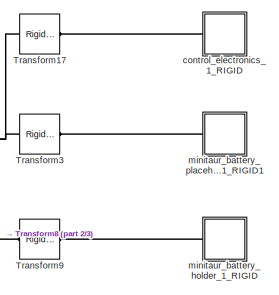
[diagram: GR Minitaur/minitaur_chassis_RIGID - part 1/3, top center region]
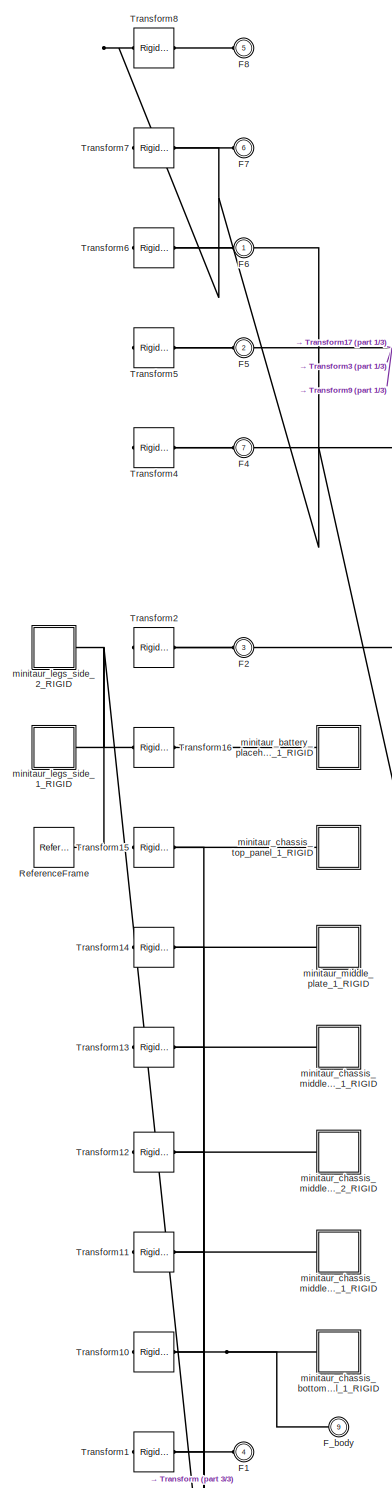
[diagram: GR Minitaur/minitaur_chassis_RIGID - part 2/3, middle left region]
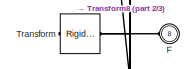
[diagram: GR Minitaur/minitaur_chassis_RIGID - part 3/3, bottom left region]
BLOCK [SubSystem] GR Minitaur/minitaur_chassis_RIGID
  Ports = [0, 0, 0, 0, 0, 8, 1]
  RequestExecContextInheritance = off
  Variant = off
BLOCK [PMIOPort] GR Minitaur/minitaur_chassis_RIGID/F
  Port = 8
  Side = Left
BLOCK [PMIOPort] GR Minitaur/minitaur_chassis_RIGID/F1
  Port = 4
  Side = Left
BLOCK [PMIOPort] GR Minitaur/minitaur_chassis_RIGID/F2
  Port = 3
  Side = Left
BLOCK [PMIOPort] GR Minitaur/minitaur_chassis_RIGID/F4
  Port = 7
  Side = Left
BLOCK [PMIOPort] GR Minitaur/minitaur_chassis_RIGID/F5
  Port = 2
  Side = Left
BLOCK [PMIOPort] GR Minitaur/minitaur_chassis_RIGID/F6
  Port = 1
  Side = Left
BLOCK [PMIOPort] GR Minitaur/minitaur_chassis_RIGID/F7
  Port = 6
  Side = Left
BLOCK [PMIOPort] GR Minitaur/minitaur_chassis_RIGID/F8
  Port = 5
  Side = Left
BLOCK [PMIOPort] GR Minitaur/minitaur_chassis_RIGID/F_body
  Port = 9
  Side = Right
BLOCK [Reference] GR Minitaur/minitaur_chassis_RIGID/ReferenceFrame  REF=sm_lib/Frames and
Transforms/Reference
Frame
  Ports = [0, 0, 0, 0, 0, 0, 1]
  SourceBlock = sm_lib/Frames and\nTransforms/Reference\nFrame
  SourceType = Reference\nFrame
BLOCK [Reference] GR Minitaur/minitaur_chassis_RIGID/Transform  REF=sm_lib/Frames and
Transforms/Rigid
Transform
  Ports = [0, 0, 0, 0, 0, 1, 1]
  SourceBlock = sm_lib/Frames and\nTransforms/Rigid\nTransform
  SourceType = Rigid\nTransform
BLOCK [Reference] GR Minitaur/minitaur_chassis_RIGID/Transform1  REF=sm_lib/Frames and
Transforms/Rigid
Transform
  Ports = [0, 0, 0, 0, 0, 1, 1]
  SourceBlock = sm_lib/Frames and\nTransforms/Rigid\nTransform
  SourceType = Rigid\nTransform
BLOCK [Reference] GR Minitaur/minitaur_chassis_RIGID/Transform10  REF=sm_lib/Frames and
Transforms/Rigid
Transform
  Ports = [0, 0, 0, 0, 0, 1, 1]
  SourceBlock = sm_lib/Frames and\nTransforms/Rigid\nTransform
  SourceType = Rigid\nTransform
BLOCK [Reference] GR Minitaur/minitaur_chassis_RIGID/Transform11  REF=sm_lib/Frames and
Transforms/Rigid
Transform
  Ports = [0, 0, 0, 0, 0, 1, 1]
  SourceBlock = sm_lib/Frames and\nTransforms/Rigid\nTransform
  SourceType = Rigid\nTransform
BLOCK [Reference] GR Minitaur/minitaur_chassis_RIGID/Transform12  REF=sm_lib/Frames and
Transforms/Rigid
Transform
  Ports = [0, 0, 0, 0, 0, 1, 1]
  SourceBlock = sm_lib/Frames and\nTransforms/Rigid\nTransform
  SourceType = Rigid\nTransform
BLOCK [Reference] GR Minitaur/minitaur_chassis_RIGID/Transform13  REF=sm_lib/Frames and
Transforms/Rigid
Transform
  Ports = [0, 0, 0, 0, 0, 1, 1]
  SourceBlock = sm_lib/Frames and\nTransforms/Rigid\nTransform
  SourceType = Rigid\nTransform
BLOCK [Reference] GR Minitaur/minitaur_chassis_RIGID/Transform14  REF=sm_lib/Frames and
Transforms/Rigid
Transform
  Ports = [0, 0, 0, 0, 0, 1, 1]
  SourceBlock = sm_lib/Frames and\nTransforms/Rigid\nTransform
  SourceType = Rigid\nTransform
BLOCK [Reference] GR Minitaur/minitaur_chassis_RIGID/Transform15  REF=sm_lib/Frames and
Transforms/Rigid
Transform
  Ports = [0, 0, 0, 0, 0, 1, 1]
  SourceBlock = sm_lib/Frames and\nTransforms/Rigid\nTransform
  SourceType = Rigid\nTransform
BLOCK [Reference] GR Minitaur/minitaur_chassis_RIGID/Transform16  REF=sm_lib/Frames and
Transforms/Rigid
Transform
  Ports = [0, 0, 0, 0, 0, 1, 1]
  SourceBlock = sm_lib/Frames and\nTransforms/Rigid\nTransform
  SourceType = Rigid\nTransform
BLOCK [Reference] GR Minitaur/minitaur_chassis_RIGID/Transform17  REF=sm_lib/Frames and
Transforms/Rigid
Transform
  Ports = [0, 0, 0, 0, 0, 1, 1]
  SourceBlock = sm_lib/Frames and\nTransforms/Rigid\nTransform
  SourceType = Rigid\nTransform
BLOCK [Reference] GR Minitaur/minitaur_chassis_RIGID/Transform2  REF=sm_lib/Frames and
Transforms/Rigid
Transform
  Ports = [0, 0, 0, 0, 0, 1, 1]
  SourceBlock = sm_lib/Frames and\nTransforms/Rigid\nTransform
  SourceType = Rigid\nTransform
BLOCK [Reference] GR Minitaur/minitaur_chassis_RIGID/Transform3  REF=sm_lib/Frames and
Transforms/Rigid
Transform
  Ports = [0, 0, 0, 0, 0, 1, 1]
  SourceBlock = sm_lib/Frames and\nTransforms/Rigid\nTransform
  SourceType = Rigid\nTransform
BLOCK [Reference] GR Minitaur/minitaur_chassis_RIGID/Transform4  REF=sm_lib/Frames and
Transforms/Rigid
Transform
  Ports = [0, 0, 0, 0, 0, 1, 1]
  SourceBlock = sm_lib/Frames and\nTransforms/Rigid\nTransform
  SourceType = Rigid\nTransform
BLOCK [Reference] GR Minitaur/minitaur_chassis_RIGID/Transform5  REF=sm_lib/Frames and
Transforms/Rigid
Transform
  Ports = [0, 0, 0, 0, 0, 1, 1]
  SourceBlock = sm_lib/Frames and\nTransforms/Rigid\nTransform
  SourceType = Rigid\nTransform
BLOCK [Reference] GR Minitaur/minitaur_chassis_RIGID/Transform6  REF=sm_lib/Frames and
Transforms/Rigid
Transform
  Ports = [0, 0, 0, 0, 0, 1, 1]
  SourceBlock = sm_lib/Frames and\nTransforms/Rigid\nTransform
  SourceType = Rigid\nTransform
BLOCK [Reference] GR Minitaur/minitaur_chassis_RIGID/Transform7  REF=sm_lib/Frames and
Transforms/Rigid
Transform
  Ports = [0, 0, 0, 0, 0, 1, 1]
  SourceBlock = sm_lib/Frames and\nTransforms/Rigid\nTransform
  SourceType = Rigid\nTransform
BLOCK [Reference] GR Minitaur/minitaur_chassis_RIGID/Transform8  REF=sm_lib/Frames and
Transforms/Rigid
Transform
  Ports = [0, 0, 0, 0, 0, 1, 1]
  SourceBlock = sm_lib/Frames and\nTransforms/Rigid\nTransform
  SourceType = Rigid\nTransform
BLOCK [Reference] GR Minitaur/minitaur_chassis_RIGID/Transform9  REF=sm_lib/Frames and
Transforms/Rigid
Transform
  Ports = [0, 0, 0, 0, 0, 1, 1]
  SourceBlock = sm_lib/Frames and\nTransforms/Rigid\nTransform
  SourceType = Rigid\nTransform
BLOCK [SubSystem] GR Minitaur/minitaur_chassis_RIGID/control_electronics_1_RIGID
  Ports = [0, 0, 0, 0, 0, 1]
  RequestExecContextInheritance = off
  Variant = off
BLOCK [PMIOPort] GR Minitaur/minitaur_chassis_RIGID/control_electronics_1_RIGID/F
  Port = 1
  Side = Left
BLOCK [Reference] GR Minitaur/minitaur_chassis_RIGID/control_electronics_1_RIGID/ReferenceFrame  REF=sm_lib/Frames and
Transforms/Reference
Frame
  Ports = [0, 0, 0, 0, 0, 0, 1]
  SourceBlock = sm_lib/Frames and\nTransforms/Reference\nFrame
  SourceType = Reference\nFrame
BLOCK [Reference] GR Minitaur/minitaur_chassis_RIGID/control_electronics_1_RIGID/Solid  REF=sm_lib/Body Elements/Solid
  Ports = [0, 0, 0, 0, 0, 0, 1]
  SourceBlock = sm_lib/Body Elements/Solid
  SourceType = Solid
BLOCK [SubSystem] GR Minitaur/minitaur_chassis_RIGID/minitaur_battery_holder_1_RIGID
  Ports = [0, 0, 0, 0, 0, 1]
  RequestExecContextInheritance = off
  Variant = off
BLOCK [PMIOPort] GR Minitaur/minitaur_chassis_RIGID/minitaur_battery_holder_1_RIGID/F
  Port = 1
  Side = Left
BLOCK [Reference] GR Minitaur/minitaur_chassis_RIGID/minitaur_battery_holder_1_RIGID/ReferenceFrame  REF=sm_lib/Frames and
Transforms/Reference
Frame
  Ports = [0, 0, 0, 0, 0, 0, 1]
  SourceBlock = sm_lib/Frames and\nTransforms/Reference\nFrame
  SourceType = Reference\nFrame
BLOCK [Reference] GR Minitaur/minitaur_chassis_RIGID/minitaur_battery_holder_1_RIGID/Solid  REF=sm_lib/Body Elements/Solid
  Ports = [0, 0, 0, 0, 0, 0, 1]
  SourceBlock = sm_lib/Body Elements/Solid
  SourceType = Solid
BLOCK [SubSystem] GR Minitaur/minitaur_chassis_RIGID/minitaur_battery_placeholder_1_RIGID
  Ports = [0, 0, 0, 0, 0, 1]
  RequestExecContextInheritance = off
  Variant = off
BLOCK [PMIOPort] GR Minitaur/minitaur_chassis_RIGID/minitaur_battery_placeholder_1_RIGID/F
  Port = 1
  Side = Left
BLOCK [Reference] GR Minitaur/minitaur_chassis_RIGID/minitaur_battery_placeholder_1_RIGID/ReferenceFrame  REF=sm_lib/Frames and
Transforms/Reference
Frame
  Ports = [0, 0, 0, 0, 0, 0, 1]
  SourceBlock = sm_lib/Frames and\nTransforms/Reference\nFrame
  SourceType = Reference\nFrame
BLOCK [Reference] GR Minitaur/minitaur_chassis_RIGID/minitaur_battery_placeholder_1_RIGID/Solid  REF=sm_lib/Body Elements/Solid
  Ports = [0, 0, 0, 0, 0, 0, 1]
  SourceBlock = sm_lib/Body Elements/Solid
  SourceType = Solid
BLOCK [SubSystem] GR Minitaur/minitaur_chassis_RIGID/minitaur_battery_placeholder_1_RIGID1
  Ports = [0, 0, 0, 0, 0, 1]
  RequestExecContextInheritance = off
  Variant = off
BLOCK [PMIOPort] GR Minitaur/minitaur_chassis_RIGID/minitaur_battery_placeholder_1_RIGID1/F
  Port = 1
  Side = Left
BLOCK [Reference] GR Minitaur/minitaur_chassis_RIGID/minitaur_battery_placeholder_1_RIGID1/ReferenceFrame  REF=sm_lib/Frames and
Transforms/Reference
Frame
  Ports = [0, 0, 0, 0, 0, 0, 1]
  SourceBlock = sm_lib/Frames and\nTransforms/Reference\nFrame
  SourceType = Reference\nFrame
BLOCK [Reference] GR Minitaur/minitaur_chassis_RIGID/minitaur_battery_placeholder_1_RIGID1/Solid  REF=sm_lib/Body Elements/Solid
  Ports = [0, 0, 0, 0, 0, 0, 1]
  SourceBlock = sm_lib/Body Elements/Solid
  SourceType = Solid
BLOCK [SubSystem] GR Minitaur/minitaur_chassis_RIGID/minitaur_chassis_bottom_panel_1_RIGID
  Ports = [0, 0, 0, 0, 0, 1]
  RequestExecContextInheritance = off
  Variant = off
BLOCK [PMIOPort] GR Minitaur/minitaur_chassis_RIGID/minitaur_chassis_bottom_panel_1_RIGID/F
  Port = 1
  Side = Left
BLOCK [Reference] GR Minitaur/minitaur_chassis_RIGID/minitaur_chassis_bottom_panel_1_RIGID/ReferenceFrame  REF=sm_lib/Frames and
Transforms/Reference
Frame
  Ports = [0, 0, 0, 0, 0, 0, 1]
  SourceBlock = sm_lib/Frames and\nTransforms/Reference\nFrame
  SourceType = Reference\nFrame
BLOCK [Reference] GR Minitaur/minitaur_chassis_RIGID/minitaur_chassis_bottom_panel_1_RIGID/Solid  REF=sm_lib/Body Elements/Solid
  Ports = [0, 0, 0, 0, 0, 0, 1]
  SourceBlock = sm_lib/Body Elements/Solid
  SourceType = Solid
BLOCK [SubSystem] GR Minitaur/minitaur_chassis_RIGID/minitaur_chassis_middle_plate_1_RIGID
  Ports = [0, 0, 0, 0, 0, 1]
  RequestExecContextInheritance = off
  Variant = off
BLOCK [PMIOPort] GR Minitaur/minitaur_chassis_RIGID/minitaur_chassis_middle_plate_1_RIGID/F
  Port = 1
  Side = Left
BLOCK [Reference] GR Minitaur/minitaur_chassis_RIGID/minitaur_chassis_middle_plate_1_RIGID/ReferenceFrame  REF=sm_lib/Frames and
Transforms/Reference
Frame
  Ports = [0, 0, 0, 0, 0, 0, 1]
  SourceBlock = sm_lib/Frames and\nTransforms/Reference\nFrame
  SourceType = Reference\nFrame
BLOCK [Reference] GR Minitaur/minitaur_chassis_RIGID/minitaur_chassis_middle_plate_1_RIGID/Solid  REF=sm_lib/Body Elements/Solid
  Ports = [0, 0, 0, 0, 0, 0, 1]
  SourceBlock = sm_lib/Body Elements/Solid
  SourceType = Solid
BLOCK [SubSystem] GR Minitaur/minitaur_chassis_RIGID/minitaur_chassis_middle_plate_2_RIGID
  Ports = [0, 0, 0, 0, 0, 1]
  RequestExecContextInheritance = off
  Variant = off
BLOCK [PMIOPort] GR Minitaur/minitaur_chassis_RIGID/minitaur_chassis_middle_plate_2_RIGID/F
  Port = 1
  Side = Left
BLOCK [Reference] GR Minitaur/minitaur_chassis_RIGID/minitaur_chassis_middle_plate_2_RIGID/ReferenceFrame  REF=sm_lib/Frames and
Transforms/Reference
Frame
  Ports = [0, 0, 0, 0, 0, 0, 1]
  SourceBlock = sm_lib/Frames and\nTransforms/Reference\nFrame
  SourceType = Reference\nFrame
BLOCK [Reference] GR Minitaur/minitaur_chassis_RIGID/minitaur_chassis_middle_plate_2_RIGID/Solid  REF=sm_lib/Body Elements/Solid
  Ports = [0, 0, 0, 0, 0, 0, 1]
  SourceBlock = sm_lib/Body Elements/Solid
  SourceType = Solid
BLOCK [SubSystem] GR Minitaur/minitaur_chassis_RIGID/minitaur_chassis_middle_plate_plastic_cover_cutouts_1_RIGID
  Ports = [0, 0, 0, 0, 0, 1]
  RequestExecContextInheritance = off
  Variant = off
BLOCK [PMIOPort] GR Minitaur/minitaur_chassis_RIGID/minitaur_chassis_middle_plate_plastic_cover_cutouts_1_RIGID/F
  Port = 1
  Side = Left
BLOCK [Reference] GR Minitaur/minitaur_chassis_RIGID/minitaur_chassis_middle_plate_plastic_cover_cutouts_1_RIGID/ReferenceFrame  REF=sm_lib/Frames and
Transforms/Reference
Frame
  Ports = [0, 0, 0, 0, 0, 0, 1]
  SourceBlock = sm_lib/Frames and\nTransforms/Reference\nFrame
  SourceType = Reference\nFrame
BLOCK [Reference] GR Minitaur/minitaur_chassis_RIGID/minitaur_chassis_middle_plate_plastic_cover_cutouts_1_RIGID/Solid  REF=sm_lib/Body Elements/Solid
  Ports = [0, 0, 0, 0, 0, 0, 1]
  SourceBlock = sm_lib/Body Elements/Solid
  SourceType = Solid
BLOCK [SubSystem] GR Minitaur/minitaur_chassis_RIGID/minitaur_chassis_top_panel_1_RIGID
  Ports = [0, 0, 0, 0, 0, 1]
  RequestExecContextInheritance = off
  Variant = off
BLOCK [PMIOPort] GR Minitaur/minitaur_chassis_RIGID/minitaur_chassis_top_panel_1_RIGID/F
  Port = 1
  Side = Left
BLOCK [Reference] GR Minitaur/minitaur_chassis_RIGID/minitaur_chassis_top_panel_1_RIGID/ReferenceFrame  REF=sm_lib/Frames and
Transforms/Reference
Frame
  Ports = [0, 0, 0, 0, 0, 0, 1]
  SourceBlock = sm_lib/Frames and\nTransforms/Reference\nFrame
  SourceType = Reference\nFrame
BLOCK [Reference] GR Minitaur/minitaur_chassis_RIGID/minitaur_chassis_top_panel_1_RIGID/Solid  REF=sm_lib/Body Elements/Solid
  Ports = [0, 0, 0, 0, 0, 0, 1]
  SourceBlock = sm_lib/Body Elements/Solid
  SourceType = Solid
BLOCK [SubSystem] GR Minitaur/minitaur_chassis_RIGID/minitaur_legs_side_1_RIGID
  Ports = [0, 0, 0, 0, 0, 0, 1]
  RequestExecContextInheritance = off
  Variant = off
BLOCK [PMIOPort] GR Minitaur/minitaur_chassis_RIGID/minitaur_legs_side_1_RIGID/F
  Port = 1
  Side = Right
BLOCK [Reference] GR Minitaur/minitaur_chassis_RIGID/minitaur_legs_side_1_RIGID/ReferenceFrame  REF=sm_lib/Frames and
Transforms/Reference
Frame
  Ports = [0, 0, 0, 0, 0, 0, 1]
  SourceBlock = sm_lib/Frames and\nTransforms/Reference\nFrame
  SourceType = Reference\nFrame
BLOCK [Reference] GR Minitaur/minitaur_chassis_RIGID/minitaur_legs_side_1_RIGID/Transform  REF=sm_lib/Frames and
Transforms/Rigid
Transform
  Ports = [0, 0, 0, 0, 0, 1, 1]
  SourceBlock = sm_lib/Frames and\nTransforms/Rigid\nTransform
  SourceType = Rigid\nTransform
BLOCK [Reference] GR Minitaur/minitaur_chassis_RIGID/minitaur_legs_side_1_RIGID/Transform1  REF=sm_lib/Frames and
Transforms/Rigid
Transform
  Ports = [0, 0, 0, 0, 0, 1, 1]
  SourceBlock = sm_lib/Frames and\nTransforms/Rigid\nTransform
  SourceType = Rigid\nTransform
BLOCK [Reference] GR Minitaur/minitaur_chassis_RIGID/minitaur_legs_side_1_RIGID/Transform2  REF=sm_lib/Frames and
Transforms/Rigid
Transform
  Ports = [0, 0, 0, 0, 0, 1, 1]
  SourceBlock = sm_lib/Frames and\nTransforms/Rigid\nTransform
  SourceType = Rigid\nTransform
BLOCK [Reference] GR Minitaur/minitaur_chassis_RIGID/minitaur_legs_side_1_RIGID/Transform3  REF=sm_lib/Frames and
Transforms/Rigid
Transform
  Ports = [0, 0, 0, 0, 0, 1, 1]
  SourceBlock = sm_lib/Frames and\nTransforms/Rigid\nTransform
  SourceType = Rigid\nTransform
BLOCK [Reference] GR Minitaur/minitaur_chassis_RIGID/minitaur_legs_side_1_RIGID/Transform4  REF=sm_lib/Frames and
Transforms/Rigid
Transform
  Ports = [0, 0, 0, 0, 0, 1, 1]
  SourceBlock = sm_lib/Frames and\nTransforms/Rigid\nTransform
  SourceType = Rigid\nTransform
BLOCK [Reference] GR Minitaur/minitaur_chassis_RIGID/minitaur_legs_side_1_RIGID/Transform5  REF=sm_lib/Frames and
Transforms/Rigid
Transform
  Ports = [0, 0, 0, 0, 0, 1, 1]
  SourceBlock = sm_lib/Frames and\nTransforms/Rigid\nTransform
  SourceType = Rigid\nTransform
BLOCK [Reference] GR Minitaur/minitaur_chassis_RIGID/minitaur_legs_side_1_RIGID/Transform6  REF=sm_lib/Frames and
Transforms/Rigid
Transform
  Ports = [0, 0, 0, 0, 0, 1, 1]
  SourceBlock = sm_lib/Frames and\nTransforms/Rigid\nTransform
  SourceType = Rigid\nTransform
BLOCK [Reference] GR Minitaur/minitaur_chassis_RIGID/minitaur_legs_side_1_RIGID/Transform7  REF=sm_lib/Frames and
Transforms/Rigid
Transform
  Ports = [0, 0, 0, 0, 0, 1, 1]
  SourceBlock = sm_lib/Frames and\nTransforms/Rigid\nTransform
  SourceType = Rigid\nTransform
BLOCK [SubSystem] GR Minitaur/minitaur_chassis_RIGID/minitaur_legs_side_1_RIGID/minitaur_side_panel_1_RIGID
  Ports = [0, 0, 0, 0, 0, 1]
  RequestExecContextInheritance = off
  Variant = off
BLOCK [PMIOPort] GR Minitaur/minitaur_chassis_RIGID/minitaur_legs_side_1_RIGID/minitaur_side_panel_1_RIGID/F
  Port = 1
  Side = Left
BLOCK [Reference] GR Minitaur/minitaur_chassis_RIGID/minitaur_legs_side_1_RIGID/minitaur_side_panel_1_RIGID/ReferenceFrame  REF=sm_lib/Frames and
Transforms/Reference
Frame
  Ports = [0, 0, 0, 0, 0, 0, 1]
  SourceBlock = sm_lib/Frames and\nTransforms/Reference\nFrame
  SourceType = Reference\nFrame
BLOCK [Reference] GR Minitaur/minitaur_chassis_RIGID/minitaur_legs_side_1_RIGID/minitaur_side_panel_1_RIGID/Solid  REF=sm_lib/Body Elements/Solid
  Ports = [0, 0, 0, 0, 0, 0, 1]
  SourceBlock = sm_lib/Body Elements/Solid
  SourceType = Solid
BLOCK [SubSystem] GR Minitaur/minitaur_chassis_RIGID/minitaur_legs_side_1_RIGID/minitaur_side_panel_outer_1_RIGID
  Ports = [0, 0, 0, 0, 0, 1]
  RequestExecContextInheritance = off
  Variant = off
BLOCK [PMIOPort] GR Minitaur/minitaur_chassis_RIGID/minitaur_legs_side_1_RIGID/minitaur_side_panel_outer_1_RIGID/F
  Port = 1
  Side = Left
BLOCK [Reference] GR Minitaur/minitaur_chassis_RIGID/minitaur_legs_side_1_RIGID/minitaur_side_panel_outer_1_RIGID/ReferenceFrame  REF=sm_lib/Frames and
Transforms/Reference
Frame
  Ports = [0, 0, 0, 0, 0, 0, 1]
  SourceBlock = sm_lib/Frames and\nTransforms/Reference\nFrame
  SourceType = Reference\nFrame
BLOCK [Reference] GR Minitaur/minitaur_chassis_RIGID/minitaur_legs_side_1_RIGID/minitaur_side_panel_outer_1_RIGID/Solid  REF=sm_lib/Body Elements/Solid
  Ports = [0, 0, 0, 0, 0, 0, 1]
  SourceBlock = sm_lib/Body Elements/Solid
  SourceType = Solid
BLOCK [SubSystem] GR Minitaur/minitaur_chassis_RIGID/minitaur_legs_side_1_RIGID/minitaur_side_plate_1_RIGID
  Ports = [0, 0, 0, 0, 0, 1]
  RequestExecContextInheritance = off
  Variant = off
BLOCK [PMIOPort] GR Minitaur/minitaur_chassis_RIGID/minitaur_legs_side_1_RIGID/minitaur_side_plate_1_RIGID/F
  Port = 1
  Side = Left
BLOCK [Reference] GR Minitaur/minitaur_chassis_RIGID/minitaur_legs_side_1_RIGID/minitaur_side_plate_1_RIGID/ReferenceFrame  REF=sm_lib/Frames and
Transforms/Reference
Frame
  Ports = [0, 0, 0, 0, 0, 0, 1]
  SourceBlock = sm_lib/Frames and\nTransforms/Reference\nFrame
  SourceType = Reference\nFrame
BLOCK [Reference] GR Minitaur/minitaur_chassis_RIGID/minitaur_legs_side_1_RIGID/minitaur_side_plate_1_RIGID/Solid  REF=sm_lib/Body Elements/Solid
  Ports = [0, 0, 0, 0, 0, 0, 1]
  SourceBlock = sm_lib/Body Elements/Solid
  SourceType = Solid
BLOCK [SubSystem] GR Minitaur/minitaur_chassis_RIGID/minitaur_legs_side_1_RIGID/minitaur_side_plate_outer_1_RIGID
  Ports = [0, 0, 0, 0, 0, 1]
  RequestExecContextInheritance = off
  Variant = off
BLOCK [PMIOPort] GR Minitaur/minitaur_chassis_RIGID/minitaur_legs_side_1_RIGID/minitaur_side_plate_outer_1_RIGID/F
  Port = 1
  Side = Left
BLOCK [Reference] GR Minitaur/minitaur_chassis_RIGID/minitaur_legs_side_1_RIGID/minitaur_side_plate_outer_1_RIGID/ReferenceFrame  REF=sm_lib/Frames and
Transforms/Reference
Frame
  Ports = [0, 0, 0, 0, 0, 0, 1]
  SourceBlock = sm_lib/Frames and\nTransforms/Reference\nFrame
  SourceType = Reference\nFrame
BLOCK [Reference] GR Minitaur/minitaur_chassis_RIGID/minitaur_legs_side_1_RIGID/minitaur_side_plate_outer_1_RIGID/Solid  REF=sm_lib/Body Elements/Solid
  Ports = [0, 0, 0, 0, 0, 0, 1]
  SourceBlock = sm_lib/Body Elements/Solid
  SourceType = Solid
BLOCK [SubSystem] GR Minitaur/minitaur_chassis_RIGID/minitaur_legs_side_1_RIGID/minitaur_side_support_plate_1_RIGID
  Ports = [0, 0, 0, 0, 0, 1]
  RequestExecContextInheritance = off
  Variant = off
BLOCK [PMIOPort] GR Minitaur/minitaur_chassis_RIGID/minitaur_legs_side_1_RIGID/minitaur_side_support_plate_1_RIGID/F
  Port = 1
  Side = Left
BLOCK [Reference] GR Minitaur/minitaur_chassis_RIGID/minitaur_legs_side_1_RIGID/minitaur_side_support_plate_1_RIGID/ReferenceFrame  REF=sm_lib/Frames and
Transforms/Reference
Frame
  Ports = [0, 0, 0, 0, 0, 0, 1]
  SourceBlock = sm_lib/Frames and\nTransforms/Reference\nFrame
  SourceType = Reference\nFrame
BLOCK [Reference] GR Minitaur/minitaur_chassis_RIGID/minitaur_legs_side_1_RIGID/minitaur_side_support_plate_1_RIGID/Solid  REF=sm_lib/Body Elements/Solid
  Ports = [0, 0, 0, 0, 0, 0, 1]
  SourceBlock = sm_lib/Body Elements/Solid
  SourceType = Solid
BLOCK [SubSystem] GR Minitaur/minitaur_chassis_RIGID/minitaur_legs_side_1_RIGID/minitaur_side_support_plate_2_RIGID
  Ports = [0, 0, 0, 0, 0, 1]
  RequestExecContextInheritance = off
  Variant = off
BLOCK [PMIOPort] GR Minitaur/minitaur_chassis_RIGID/minitaur_legs_side_1_RIGID/minitaur_side_support_plate_2_RIGID/F
  Port = 1
  Side = Left
BLOCK [Reference] GR Minitaur/minitaur_chassis_RIGID/minitaur_legs_side_1_RIGID/minitaur_side_support_plate_2_RIGID/ReferenceFrame  REF=sm_lib/Frames and
Transforms/Reference
Frame
  Ports = [0, 0, 0, 0, 0, 0, 1]
  SourceBlock = sm_lib/Frames and\nTransforms/Reference\nFrame
  SourceType = Reference\nFrame
BLOCK [Reference] GR Minitaur/minitaur_chassis_RIGID/minitaur_legs_side_1_RIGID/minitaur_side_support_plate_2_RIGID/Solid  REF=sm_lib/Body Elements/Solid
  Ports = [0, 0, 0, 0, 0, 0, 1]
  SourceBlock = sm_lib/Body Elements/Solid
  SourceType = Solid
BLOCK [SubSystem] GR Minitaur/minitaur_chassis_RIGID/minitaur_legs_side_1_RIGID/minitaur_side_top_panel_1_RIGID
  Ports = [0, 0, 0, 0, 0, 1]
  RequestExecContextInheritance = off
  Variant = off
BLOCK [PMIOPort] GR Minitaur/minitaur_chassis_RIGID/minitaur_legs_side_1_RIGID/minitaur_side_top_panel_1_RIGID/F
  Port = 1
  Side = Left
BLOCK [Reference] GR Minitaur/minitaur_chassis_RIGID/minitaur_legs_side_1_RIGID/minitaur_side_top_panel_1_RIGID/ReferenceFrame  REF=sm_lib/Frames and
Transforms/Reference
Frame
  Ports = [0, 0, 0, 0, 0, 0, 1]
  SourceBlock = sm_lib/Frames and\nTransforms/Reference\nFrame
  SourceType = Reference\nFrame
BLOCK [Reference] GR Minitaur/minitaur_chassis_RIGID/minitaur_legs_side_1_RIGID/minitaur_side_top_panel_1_RIGID/Solid  REF=sm_lib/Body Elements/Solid
  Ports = [0, 0, 0, 0, 0, 0, 1]
  SourceBlock = sm_lib/Body Elements/Solid
  SourceType = Solid
BLOCK [SubSystem] GR Minitaur/minitaur_chassis_RIGID/minitaur_legs_side_2_RIGID
  Ports = [0, 0, 0, 0, 0, 0, 1]
  RequestExecContextInheritance = off
  Variant = off
BLOCK [PMIOPort] GR Minitaur/minitaur_chassis_RIGID/minitaur_legs_side_2_RIGID/F
  Port = 1
  Side = Right
BLOCK [Reference] GR Minitaur/minitaur_chassis_RIGID/minitaur_legs_side_2_RIGID/ReferenceFrame  REF=sm_lib/Frames and
Transforms/Reference
Frame
  Ports = [0, 0, 0, 0, 0, 0, 1]
  SourceBlock = sm_lib/Frames and\nTransforms/Reference\nFrame
  SourceType = Reference\nFrame
BLOCK [Reference] GR Minitaur/minitaur_chassis_RIGID/minitaur_legs_side_2_RIGID/Transform  REF=sm_lib/Frames and
Transforms/Rigid
Transform
  Ports = [0, 0, 0, 0, 0, 1, 1]
  SourceBlock = sm_lib/Frames and\nTransforms/Rigid\nTransform
  SourceType = Rigid\nTransform
BLOCK [Reference] GR Minitaur/minitaur_chassis_RIGID/minitaur_legs_side_2_RIGID/Transform1  REF=sm_lib/Frames and
Transforms/Rigid
Transform
  Ports = [0, 0, 0, 0, 0, 1, 1]
  SourceBlock = sm_lib/Frames and\nTransforms/Rigid\nTransform
  SourceType = Rigid\nTransform
BLOCK [Reference] GR Minitaur/minitaur_chassis_RIGID/minitaur_legs_side_2_RIGID/Transform2  REF=sm_lib/Frames and
Transforms/Rigid
Transform
  Ports = [0, 0, 0, 0, 0, 1, 1]
  SourceBlock = sm_lib/Frames and\nTransforms/Rigid\nTransform
  SourceType = Rigid\nTransform
BLOCK [Reference] GR Minitaur/minitaur_chassis_RIGID/minitaur_legs_side_2_RIGID/Transform3  REF=sm_lib/Frames and
Transforms/Rigid
Transform
  Ports = [0, 0, 0, 0, 0, 1, 1]
  SourceBlock = sm_lib/Frames and\nTransforms/Rigid\nTransform
  SourceType = Rigid\nTransform
BLOCK [Reference] GR Minitaur/minitaur_chassis_RIGID/minitaur_legs_side_2_RIGID/Transform4  REF=sm_lib/Frames and
Transforms/Rigid
Transform
  Ports = [0, 0, 0, 0, 0, 1, 1]
  SourceBlock = sm_lib/Frames and\nTransforms/Rigid\nTransform
  SourceType = Rigid\nTransform
BLOCK [Reference] GR Minitaur/minitaur_chassis_RIGID/minitaur_legs_side_2_RIGID/Transform5  REF=sm_lib/Frames and
Transforms/Rigid
Transform
  Ports = [0, 0, 0, 0, 0, 1, 1]
  SourceBlock = sm_lib/Frames and\nTransforms/Rigid\nTransform
  SourceType = Rigid\nTransform
BLOCK [Reference] GR Minitaur/minitaur_chassis_RIGID/minitaur_legs_side_2_RIGID/Transform6  REF=sm_lib/Frames and
Transforms/Rigid
Transform
  Ports = [0, 0, 0, 0, 0, 1, 1]
  SourceBlock = sm_lib/Frames and\nTransforms/Rigid\nTransform
  SourceType = Rigid\nTransform
BLOCK [Reference] GR Minitaur/minitaur_chassis_RIGID/minitaur_legs_side_2_RIGID/Transform7  REF=sm_lib/Frames and
Transforms/Rigid
Transform
  Ports = [0, 0, 0, 0, 0, 1, 1]
  SourceBlock = sm_lib/Frames and\nTransforms/Rigid\nTransform
  SourceType = Rigid\nTransform
BLOCK [SubSystem] GR Minitaur/minitaur_chassis_RIGID/minitaur_legs_side_2_RIGID/minitaur_side_panel_1_RIGID
  Ports = [0, 0, 0, 0, 0, 1]
  RequestExecContextInheritance = off
  Variant = off
BLOCK [PMIOPort] GR Minitaur/minitaur_chassis_RIGID/minitaur_legs_side_2_RIGID/minitaur_side_panel_1_RIGID/F
  Port = 1
  Side = Left
BLOCK [Reference] GR Minitaur/minitaur_chassis_RIGID/minitaur_legs_side_2_RIGID/minitaur_side_panel_1_RIGID/ReferenceFrame  REF=sm_lib/Frames and
Transforms/Reference
Frame
  Ports = [0, 0, 0, 0, 0, 0, 1]
  SourceBlock = sm_lib/Frames and\nTransforms/Reference\nFrame
  SourceType = Reference\nFrame
BLOCK [Reference] GR Minitaur/minitaur_chassis_RIGID/minitaur_legs_side_2_RIGID/minitaur_side_panel_1_RIGID/Solid  REF=sm_lib/Body Elements/Solid
  Ports = [0, 0, 0, 0, 0, 0, 1]
  SourceBlock = sm_lib/Body Elements/Solid
  SourceType = Solid
BLOCK [SubSystem] GR Minitaur/minitaur_chassis_RIGID/minitaur_legs_side_2_RIGID/minitaur_side_panel_outer_1_RIGID
  Ports = [0, 0, 0, 0, 0, 1]
  RequestExecContextInheritance = off
  Variant = off
BLOCK [PMIOPort] GR Minitaur/minitaur_chassis_RIGID/minitaur_legs_side_2_RIGID/minitaur_side_panel_outer_1_RIGID/F
  Port = 1
  Side = Left
BLOCK [Reference] GR Minitaur/minitaur_chassis_RIGID/minitaur_legs_side_2_RIGID/minitaur_side_panel_outer_1_RIGID/ReferenceFrame  REF=sm_lib/Frames and
Transforms/Reference
Frame
  Ports = [0, 0, 0, 0, 0, 0, 1]
  SourceBlock = sm_lib/Frames and\nTransforms/Reference\nFrame
  SourceType = Reference\nFrame
BLOCK [Reference] GR Minitaur/minitaur_chassis_RIGID/minitaur_legs_side_2_RIGID/minitaur_side_panel_outer_1_RIGID/Solid  REF=sm_lib/Body Elements/Solid
  Ports = [0, 0, 0, 0, 0, 0, 1]
  SourceBlock = sm_lib/Body Elements/Solid
  SourceType = Solid
BLOCK [SubSystem] GR Minitaur/minitaur_chassis_RIGID/minitaur_legs_side_2_RIGID/minitaur_side_plate_1_RIGID
  Ports = [0, 0, 0, 0, 0, 1]
  RequestExecContextInheritance = off
  Variant = off
BLOCK [PMIOPort] GR Minitaur/minitaur_chassis_RIGID/minitaur_legs_side_2_RIGID/minitaur_side_plate_1_RIGID/F
  Port = 1
  Side = Left
BLOCK [Reference] GR Minitaur/minitaur_chassis_RIGID/minitaur_legs_side_2_RIGID/minitaur_side_plate_1_RIGID/ReferenceFrame  REF=sm_lib/Frames and
Transforms/Reference
Frame
  Ports = [0, 0, 0, 0, 0, 0, 1]
  SourceBlock = sm_lib/Frames and\nTransforms/Reference\nFrame
  SourceType = Reference\nFrame
BLOCK [Reference] GR Minitaur/minitaur_chassis_RIGID/minitaur_legs_side_2_RIGID/minitaur_side_plate_1_RIGID/Solid  REF=sm_lib/Body Elements/Solid
  Ports = [0, 0, 0, 0, 0, 0, 1]
  SourceBlock = sm_lib/Body Elements/Solid
  SourceType = Solid
BLOCK [SubSystem] GR Minitaur/minitaur_chassis_RIGID/minitaur_legs_side_2_RIGID/minitaur_side_plate_outer_1_RIGID
  Ports = [0, 0, 0, 0, 0, 1]
  RequestExecContextInheritance = off
  Variant = off
BLOCK [PMIOPort] GR Minitaur/minitaur_chassis_RIGID/minitaur_legs_side_2_RIGID/minitaur_side_plate_outer_1_RIGID/F
  Port = 1
  Side = Left
BLOCK [Reference] GR Minitaur/minitaur_chassis_RIGID/minitaur_legs_side_2_RIGID/minitaur_side_plate_outer_1_RIGID/ReferenceFrame  REF=sm_lib/Frames and
Transforms/Reference
Frame
  Ports = [0, 0, 0, 0, 0, 0, 1]
  SourceBlock = sm_lib/Frames and\nTransforms/Reference\nFrame
  SourceType = Reference\nFrame
BLOCK [Reference] GR Minitaur/minitaur_chassis_RIGID/minitaur_legs_side_2_RIGID/minitaur_side_plate_outer_1_RIGID/Solid  REF=sm_lib/Body Elements/Solid
  Ports = [0, 0, 0, 0, 0, 0, 1]
  SourceBlock = sm_lib/Body Elements/Solid
  SourceType = Solid
BLOCK [SubSystem] GR Minitaur/minitaur_chassis_RIGID/minitaur_legs_side_2_RIGID/minitaur_side_support_plate_1_RIGID
  Ports = [0, 0, 0, 0, 0, 1]
  RequestExecContextInheritance = off
  Variant = off
BLOCK [PMIOPort] GR Minitaur/minitaur_chassis_RIGID/minitaur_legs_side_2_RIGID/minitaur_side_support_plate_1_RIGID/F
  Port = 1
  Side = Left
BLOCK [Reference] GR Minitaur/minitaur_chassis_RIGID/minitaur_legs_side_2_RIGID/minitaur_side_support_plate_1_RIGID/ReferenceFrame  REF=sm_lib/Frames and
Transforms/Reference
Frame
  Ports = [0, 0, 0, 0, 0, 0, 1]
  SourceBlock = sm_lib/Frames and\nTransforms/Reference\nFrame
  SourceType = Reference\nFrame
BLOCK [Reference] GR Minitaur/minitaur_chassis_RIGID/minitaur_legs_side_2_RIGID/minitaur_side_support_plate_1_RIGID/Solid  REF=sm_lib/Body Elements/Solid
  Ports = [0, 0, 0, 0, 0, 0, 1]
  SourceBlock = sm_lib/Body Elements/Solid
  SourceType = Solid
BLOCK [SubSystem] GR Minitaur/minitaur_chassis_RIGID/minitaur_legs_side_2_RIGID/minitaur_side_support_plate_2_RIGID
  Ports = [0, 0, 0, 0, 0, 1]
  RequestExecContextInheritance = off
  Variant = off
BLOCK [PMIOPort] GR Minitaur/minitaur_chassis_RIGID/minitaur_legs_side_2_RIGID/minitaur_side_support_plate_2_RIGID/F
  Port = 1
  Side = Left
BLOCK [Reference] GR Minitaur/minitaur_chassis_RIGID/minitaur_legs_side_2_RIGID/minitaur_side_support_plate_2_RIGID/ReferenceFrame  REF=sm_lib/Frames and
Transforms/Reference
Frame
  Ports = [0, 0, 0, 0, 0, 0, 1]
  SourceBlock = sm_lib/Frames and\nTransforms/Reference\nFrame
  SourceType = Reference\nFrame
BLOCK [Reference] GR Minitaur/minitaur_chassis_RIGID/minitaur_legs_side_2_RIGID/minitaur_side_support_plate_2_RIGID/Solid  REF=sm_lib/Body Elements/Solid
  Ports = [0, 0, 0, 0, 0, 0, 1]
  SourceBlock = sm_lib/Body Elements/Solid
  SourceType = Solid
BLOCK [SubSystem] GR Minitaur/minitaur_chassis_RIGID/minitaur_legs_side_2_RIGID/minitaur_side_top_panel_1_RIGID
  Ports = [0, 0, 0, 0, 0, 1]
  RequestExecContextInheritance = off
  Variant = off
BLOCK [PMIOPort] GR Minitaur/minitaur_chassis_RIGID/minitaur_legs_side_2_RIGID/minitaur_side_top_panel_1_RIGID/F
  Port = 1
  Side = Left
BLOCK [Reference] GR Minitaur/minitaur_chassis_RIGID/minitaur_legs_side_2_RIGID/minitaur_side_top_panel_1_RIGID/ReferenceFrame  REF=sm_lib/Frames and
Transforms/Reference
Frame
  Ports = [0, 0, 0, 0, 0, 0, 1]
  SourceBlock = sm_lib/Frames and\nTransforms/Reference\nFrame
  SourceType = Reference\nFrame
BLOCK [Reference] GR Minitaur/minitaur_chassis_RIGID/minitaur_legs_side_2_RIGID/minitaur_side_top_panel_1_RIGID/Solid  REF=sm_lib/Body Elements/Solid
  Ports = [0, 0, 0, 0, 0, 0, 1]
  SourceBlock = sm_lib/Body Elements/Solid
  SourceType = Solid
BLOCK [SubSystem] GR Minitaur/minitaur_chassis_RIGID/minitaur_middle_plate_1_RIGID
  Ports = [0, 0, 0, 0, 0, 1]
  RequestExecContextInheritance = off
  Variant = off
BLOCK [PMIOPort] GR Minitaur/minitaur_chassis_RIGID/minitaur_middle_plate_1_RIGID/F
  Port = 1
  Side = Left
BLOCK [Reference] GR Minitaur/minitaur_chassis_RIGID/minitaur_middle_plate_1_RIGID/ReferenceFrame  REF=sm_lib/Frames and
Transforms/Reference
Frame
  Ports = [0, 0, 0, 0, 0, 0, 1]
  SourceBlock = sm_lib/Frames and\nTransforms/Reference\nFrame
  SourceType = Reference\nFrame
BLOCK [Reference] GR Minitaur/minitaur_chassis_RIGID/minitaur_middle_plate_1_RIGID/Solid  REF=sm_lib/Body Elements/Solid
  Ports = [0, 0, 0, 0, 0, 0, 1]
  SourceBlock = sm_lib/Body Elements/Solid
  SourceType = Solid
BLOCK [SubSystem] GR Minitaur/minitaur_leg_linkages_I
  Ports = [0, 0, 0, 0, 0, 2, 1]
  RequestExecContextInheritance = off
  Variant = off
BLOCK [PMIOPort] GR Minitaur/minitaur_leg_linkages_I/F
  Port = 2
  Side = Left
BLOCK [PMIOPort] GR Minitaur/minitaur_leg_linkages_I/F1
  Port = 1
  Side = Left
BLOCK [PMIOPort] GR Minitaur/minitaur_leg_linkages_I/F_contact
  Port = 3
  Side = Right
BLOCK [SubSystem] GR Minitaur/minitaur_leg_linkages_I/Joint Friction Model
  OverrideUsingVariant = stick-slip
  Ports = [0, 0, 0, 0, 0, 2, 1]
  RequestExecContextInheritance = off
  Variant = on
BLOCK [PMIOPort] GR Minitaur/minitaur_leg_linkages_I/Joint Friction Model/Friction Torque
  Port = 3
  Side = Right
BLOCK [SubSystem] GR Minitaur/minitaur_leg_linkages_I/Joint Friction Model/Full
  Ports = [0, 0, 0, 0, 0, 2, 1]
  RequestExecContextInheritance = off
  Variant = off
  VariantControl = full
BLOCK [PMIOPort] GR Minitaur/minitaur_leg_linkages_I/Joint Friction Model/Full/Friction Torque
  Port = 3
  Side = Right
BLOCK [Reference] GR Minitaur/minitaur_leg_linkages_I/Joint Friction Model/Full/Ideal Force Sensor  REF=fl_lib/Mechanical/Mechanical Sensors/Ideal Force Sensor
  Ports = [0, 0, 0, 0, 0, 1, 2]
  SourceBlock = fl_lib/Mechanical/Mechanical Sensors/Ideal Force Sensor
  SourceType = Ideal Force Sensor
BLOCK [Reference] GR Minitaur/minitaur_leg_linkages_I/Joint Friction Model/Full/Ideal Translational Velocity Source  REF=fl_lib/Mechanical/Mechanical Sources/Ideal Translational
Velocity Source
  Ports = [0, 0, 0, 0, 0, 1, 2]
  SourceBlock = fl_lib/Mechanical/Mechanical Sources/Ideal Translational\nVelocity Source
  SourceType = Ideal Translational\nVelocity Source
BLOCK [PMIOPort] GR Minitaur/minitaur_leg_linkages_I/Joint Friction Model/Full/Joint Angular Velocity
  Port = 1
  Side = Left
BLOCK [Reference] GR Minitaur/minitaur_leg_linkages_I/Joint Friction Model/Full/Joint Diameter  REF=fl_lib/Physical Signals/Functions/PS Gain
  Ports = [0, 0, 0, 0, 0, 1, 1]
  SourceBlock = fl_lib/Physical Signals/Functions/PS Gain
  SourceType = PS Gain
BLOCK [PMIOPort] GR Minitaur/minitaur_leg_linkages_I/Joint Friction Model/Full/Joint Force
  Port = 2
  Side = Left
BLOCK [Reference] GR Minitaur/minitaur_leg_linkages_I/Joint Friction Model/Full/Joint Radius  REF=fl_lib/Physical Signals/Functions/PS Gain
  Ports = [0, 0, 0, 0, 0, 1, 1]
  SourceBlock = fl_lib/Physical Signals/Functions/PS Gain
  SourceType = PS Gain
BLOCK [Reference] GR Minitaur/minitaur_leg_linkages_I/Joint Friction Model/Full/Mechanical Translational Reference  REF=fl_lib/Mechanical/Translational
Elements/Mechanical
Translational
Reference
  Ports = [0, 0, 0, 0, 0, 1]
  SourceBlock = fl_lib/Mechanical/Translational\nElements/Mechanical\nTranslational\nReference
  SourceType = Mechanical\nTranslational\nReference
BLOCK [Reference] GR Minitaur/minitaur_leg_linkages_I/Joint Friction Model/Full/Mechanical Translational Reference1  REF=fl_lib/Mechanical/Translational
Elements/Mechanical
Translational
Reference
  Ports = [0, 0, 0, 0, 0, 1]
  SourceBlock = fl_lib/Mechanical/Translational\nElements/Mechanical\nTranslational\nReference
  SourceType = Mechanical\nTranslational\nReference
BLOCK [Reference] GR Minitaur/minitaur_leg_linkages_I/Joint Friction Model/Full/PS Terminator  REF=fl_lib/Physical Signals/Sinks/PS Terminator
  Ports = [0, 0, 0, 0, 0, 1]
  SourceBlock = fl_lib/Physical Signals/Sinks/PS Terminator
  SourceType = PS Terminator
BLOCK [Reference] GR Minitaur/minitaur_leg_linkages_I/Joint Friction Model/Full/Translational Friction  REF=fl_lib/Mechanical/Translational
Elements/Translational
Friction
  Ports = [0, 0, 0, 0, 0, 1, 1]
  SourceBlock = fl_lib/Mechanical/Translational\nElements/Translational\nFriction
  SourceType = Translational\nFriction
BLOCK [PMIOPort] GR Minitaur/minitaur_leg_linkages_I/Joint Friction Model/Joint Angular Velocity
  Port = 1
  Side = Left
BLOCK [PMIOPort] GR Minitaur/minitaur_leg_linkages_I/Joint Friction Model/Joint Force
  Port = 2
  Side = Left
BLOCK [SubSystem] GR Minitaur/minitaur_leg_linkages_I/Joint Friction Model/Stick-Slip
  Ports = [0, 0, 0, 0, 0, 2, 1]
  RequestExecContextInheritance = off
  Variant = off
  VariantControl = stick-slip
BLOCK [PMIOPort] GR Minitaur/minitaur_leg_linkages_I/Joint Friction Model/Stick-Slip/Friction Torque
  Port = 3
  Side = Right
BLOCK [PMIOPort] GR Minitaur/minitaur_leg_linkages_I/Joint Friction Model/Stick-Slip/Joint Angular Velocity
  Port = 1
  Side = Left
BLOCK [Reference] GR Minitaur/minitaur_leg_linkages_I/Joint Friction Model/Stick-Slip/Joint Diameter  REF=fl_lib/Physical Signals/Functions/PS Gain
  Ports = [0, 0, 0, 0, 0, 1, 1]
  SourceBlock = fl_lib/Physical Signals/Functions/PS Gain
  SourceType = PS Gain
BLOCK [PMIOPort] GR Minitaur/minitaur_leg_linkages_I/Joint Friction Model/Stick-Slip/Joint Force
  Port = 2
  Side = Left
BLOCK [Reference] GR Minitaur/minitaur_leg_linkages_I/Joint Friction Model/Stick-Slip/Joint Radius  REF=fl_lib/Physical Signals/Functions/PS Gain
  Ports = [0, 0, 0, 0, 0, 1, 1]
  SourceBlock = fl_lib/Physical Signals/Functions/PS Gain
  SourceType = PS Gain
BLOCK [Reference] GR Minitaur/minitaur_leg_linkages_I/Joint Friction Model/Stick-Slip/PS Add  REF=fl_lib/Physical Signals/Functions/PS Add
  Ports = [0, 0, 0, 0, 0, 2, 1]
  SourceBlock = fl_lib/Physical Signals/Functions/PS Add
  SourceType = PS Add
BLOCK [Reference] GR Minitaur/minitaur_leg_linkages_I/Joint Friction Model/Stick-Slip/Stick-Slip Friction X  REF=Contact_Forces_Lib/Friction Utilities/Stick-Slip
Friction 1D
  Ports = [0, 0, 0, 0, 0, 2, 1]
  SourceBlock = Contact_Forces_Lib/Friction Utilities/Stick-Slip\nFriction 1D
  SourceType = Stick-Slip Friction
BLOCK [Reference] GR Minitaur/minitaur_leg_linkages_I/Joint Friction Model/Stick-Slip/Stick-Slip Friction Y  REF=Contact_Forces_Lib/Friction Utilities/Stick-Slip
Friction 1D
  Ports = [0, 0, 0, 0, 0, 2, 1]
  SourceBlock = Contact_Forces_Lib/Friction Utilities/Stick-Slip\nFriction 1D
  SourceType = Stick-Slip Friction
BLOCK [SubSystem] GR Minitaur/minitaur_leg_linkages_I/Joint Friction Model1
  OverrideUsingVariant = stick-slip
  Ports = [0, 0, 0, 0, 0, 2, 1]
  RequestExecContextInheritance = off
  Variant = on
BLOCK [PMIOPort] GR Minitaur/minitaur_leg_linkages_I/Joint Friction Model1/Friction Torque
  Port = 3
  Side = Right
BLOCK [SubSystem] GR Minitaur/minitaur_leg_linkages_I/Joint Friction Model1/Full
  Ports = [0, 0, 0, 0, 0, 2, 1]
  RequestExecContextInheritance = off
  Variant = off
  VariantControl = full
BLOCK [PMIOPort] GR Minitaur/minitaur_leg_linkages_I/Joint Friction Model1/Full/Friction Torque
  Port = 3
  Side = Right
BLOCK [Reference] GR Minitaur/minitaur_leg_linkages_I/Joint Friction Model1/Full/Ideal Force Sensor  REF=fl_lib/Mechanical/Mechanical Sensors/Ideal Force Sensor
  Ports = [0, 0, 0, 0, 0, 1, 2]
  SourceBlock = fl_lib/Mechanical/Mechanical Sensors/Ideal Force Sensor
  SourceType = Ideal Force Sensor
BLOCK [Reference] GR Minitaur/minitaur_leg_linkages_I/Joint Friction Model1/Full/Ideal Translational Velocity Source  REF=fl_lib/Mechanical/Mechanical Sources/Ideal Translational
Velocity Source
  Ports = [0, 0, 0, 0, 0, 1, 2]
  SourceBlock = fl_lib/Mechanical/Mechanical Sources/Ideal Translational\nVelocity Source
  SourceType = Ideal Translational\nVelocity Source
BLOCK [PMIOPort] GR Minitaur/minitaur_leg_linkages_I/Joint Friction Model1/Full/Joint Angular Velocity
  Port = 1
  Side = Left
BLOCK [Reference] GR Minitaur/minitaur_leg_linkages_I/Joint Friction Model1/Full/Joint Diameter  REF=fl_lib/Physical Signals/Functions/PS Gain
  Ports = [0, 0, 0, 0, 0, 1, 1]
  SourceBlock = fl_lib/Physical Signals/Functions/PS Gain
  SourceType = PS Gain
BLOCK [PMIOPort] GR Minitaur/minitaur_leg_linkages_I/Joint Friction Model1/Full/Joint Force
  Port = 2
  Side = Left
BLOCK [Reference] GR Minitaur/minitaur_leg_linkages_I/Joint Friction Model1/Full/Joint Radius  REF=fl_lib/Physical Signals/Functions/PS Gain
  Ports = [0, 0, 0, 0, 0, 1, 1]
  SourceBlock = fl_lib/Physical Signals/Functions/PS Gain
  SourceType = PS Gain
BLOCK [Reference] GR Minitaur/minitaur_leg_linkages_I/Joint Friction Model1/Full/Mechanical Translational Reference  REF=fl_lib/Mechanical/Translational
Elements/Mechanical
Translational
Reference
  Ports = [0, 0, 0, 0, 0, 1]
  SourceBlock = fl_lib/Mechanical/Translational\nElements/Mechanical\nTranslational\nReference
  SourceType = Mechanical\nTranslational\nReference
BLOCK [Reference] GR Minitaur/minitaur_leg_linkages_I/Joint Friction Model1/Full/Mechanical Translational Reference1  REF=fl_lib/Mechanical/Translational
Elements/Mechanical
Translational
Reference
  Ports = [0, 0, 0, 0, 0, 1]
  SourceBlock = fl_lib/Mechanical/Translational\nElements/Mechanical\nTranslational\nReference
  SourceType = Mechanical\nTranslational\nReference
BLOCK [Reference] GR Minitaur/minitaur_leg_linkages_I/Joint Friction Model1/Full/PS Terminator  REF=fl_lib/Physical Signals/Sinks/PS Terminator
  Ports = [0, 0, 0, 0, 0, 1]
  SourceBlock = fl_lib/Physical Signals/Sinks/PS Terminator
  SourceType = PS Terminator
BLOCK [Reference] GR Minitaur/minitaur_leg_linkages_I/Joint Friction Model1/Full/Translational Friction  REF=fl_lib/Mechanical/Translational
Elements/Translational
Friction
  Ports = [0, 0, 0, 0, 0, 1, 1]
  SourceBlock = fl_lib/Mechanical/Translational\nElements/Translational\nFriction
  SourceType = Translational\nFriction
BLOCK [PMIOPort] GR Minitaur/minitaur_leg_linkages_I/Joint Friction Model1/Joint Angular Velocity
  Port = 1
  Side = Left
BLOCK [PMIOPort] GR Minitaur/minitaur_leg_linkages_I/Joint Friction Model1/Joint Force
  Port = 2
  Side = Left
BLOCK [SubSystem] GR Minitaur/minitaur_leg_linkages_I/Joint Friction Model1/Stick-Slip
  Ports = [0, 0, 0, 0, 0, 2, 1]
  RequestExecContextInheritance = off
  Variant = off
  VariantControl = stick-slip
BLOCK [PMIOPort] GR Minitaur/minitaur_leg_linkages_I/Joint Friction Model1/Stick-Slip/Friction Torque
  Port = 3
  Side = Right
BLOCK [PMIOPort] GR Minitaur/minitaur_leg_linkages_I/Joint Friction Model1/Stick-Slip/Joint Angular Velocity
  Port = 1
  Side = Left
BLOCK [Reference] GR Minitaur/minitaur_leg_linkages_I/Joint Friction Model1/Stick-Slip/Joint Diameter  REF=fl_lib/Physical Signals/Functions/PS Gain
  Ports = [0, 0, 0, 0, 0, 1, 1]
  SourceBlock = fl_lib/Physical Signals/Functions/PS Gain
  SourceType = PS Gain
BLOCK [PMIOPort] GR Minitaur/minitaur_leg_linkages_I/Joint Friction Model1/Stick-Slip/Joint Force
  Port = 2
  Side = Left
BLOCK [Reference] GR Minitaur/minitaur_leg_linkages_I/Joint Friction Model1/Stick-Slip/Joint Radius  REF=fl_lib/Physical Signals/Functions/PS Gain
  Ports = [0, 0, 0, 0, 0, 1, 1]
  SourceBlock = fl_lib/Physical Signals/Functions/PS Gain
  SourceType = PS Gain
BLOCK [Reference] GR Minitaur/minitaur_leg_linkages_I/Joint Friction Model1/Stick-Slip/PS Add  REF=fl_lib/Physical Signals/Functions/PS Add
  Ports = [0, 0, 0, 0, 0, 2, 1]
  SourceBlock = fl_lib/Physical Signals/Functions/PS Add
  SourceType = PS Add
BLOCK [Reference] GR Minitaur/minitaur_leg_linkages_I/Joint Friction Model1/Stick-Slip/Stick-Slip Friction X  REF=Contact_Forces_Lib/Friction Utilities/Stick-Slip
Friction 1D
  Ports = [0, 0, 0, 0, 0, 2, 1]
  SourceBlock = Contact_Forces_Lib/Friction Utilities/Stick-Slip\nFriction 1D
  SourceType = Stick-Slip Friction
BLOCK [Reference] GR Minitaur/minitaur_leg_linkages_I/Joint Friction Model1/Stick-Slip/Stick-Slip Friction Y  REF=Contact_Forces_Lib/Friction Utilities/Stick-Slip
Friction 1D
  Ports = [0, 0, 0, 0, 0, 2, 1]
  SourceBlock = Contact_Forces_Lib/Friction Utilities/Stick-Slip\nFriction 1D
  SourceType = Stick-Slip Friction
BLOCK [SubSystem] GR Minitaur/minitaur_leg_linkages_I/Joint Friction Model2
  OverrideUsingVariant = stick-slip
  Ports = [0, 0, 0, 0, 0, 2, 1]
  RequestExecContextInheritance = off
  Variant = on
BLOCK [PMIOPort] GR Minitaur/minitaur_leg_linkages_I/Joint Friction Model2/Friction Torque
  Port = 3
  Side = Right
BLOCK [SubSystem] GR Minitaur/minitaur_leg_linkages_I/Joint Friction Model2/Full
  Ports = [0, 0, 0, 0, 0, 2, 1]
  RequestExecContextInheritance = off
  Variant = off
  VariantControl = full
BLOCK [PMIOPort] GR Minitaur/minitaur_leg_linkages_I/Joint Friction Model2/Full/Friction Torque
  Port = 3
  Side = Right
BLOCK [Reference] GR Minitaur/minitaur_leg_linkages_I/Joint Friction Model2/Full/Ideal Force Sensor  REF=fl_lib/Mechanical/Mechanical Sensors/Ideal Force Sensor
  Ports = [0, 0, 0, 0, 0, 1, 2]
  SourceBlock = fl_lib/Mechanical/Mechanical Sensors/Ideal Force Sensor
  SourceType = Ideal Force Sensor
BLOCK [Reference] GR Minitaur/minitaur_leg_linkages_I/Joint Friction Model2/Full/Ideal Translational Velocity Source  REF=fl_lib/Mechanical/Mechanical Sources/Ideal Translational
Velocity Source
  Ports = [0, 0, 0, 0, 0, 1, 2]
  SourceBlock = fl_lib/Mechanical/Mechanical Sources/Ideal Translational\nVelocity Source
  SourceType = Ideal Translational\nVelocity Source
BLOCK [PMIOPort] GR Minitaur/minitaur_leg_linkages_I/Joint Friction Model2/Full/Joint Angular Velocity
  Port = 1
  Side = Left
BLOCK [Reference] GR Minitaur/minitaur_leg_linkages_I/Joint Friction Model2/Full/Joint Diameter  REF=fl_lib/Physical Signals/Functions/PS Gain
  Ports = [0, 0, 0, 0, 0, 1, 1]
  SourceBlock = fl_lib/Physical Signals/Functions/PS Gain
  SourceType = PS Gain
BLOCK [PMIOPort] GR Minitaur/minitaur_leg_linkages_I/Joint Friction Model2/Full/Joint Force
  Port = 2
  Side = Left
BLOCK [Reference] GR Minitaur/minitaur_leg_linkages_I/Joint Friction Model2/Full/Joint Radius  REF=fl_lib/Physical Signals/Functions/PS Gain
  Ports = [0, 0, 0, 0, 0, 1, 1]
  SourceBlock = fl_lib/Physical Signals/Functions/PS Gain
  SourceType = PS Gain
BLOCK [Reference] GR Minitaur/minitaur_leg_linkages_I/Joint Friction Model2/Full/Mechanical Translational Reference  REF=fl_lib/Mechanical/Translational
Elements/Mechanical
Translational
Reference
  Ports = [0, 0, 0, 0, 0, 1]
  SourceBlock = fl_lib/Mechanical/Translational\nElements/Mechanical\nTranslational\nReference
  SourceType = Mechanical\nTranslational\nReference
BLOCK [Reference] GR Minitaur/minitaur_leg_linkages_I/Joint Friction Model2/Full/Mechanical Translational Reference1  REF=fl_lib/Mechanical/Translational
Elements/Mechanical
Translational
Reference
  Ports = [0, 0, 0, 0, 0, 1]
  SourceBlock = fl_lib/Mechanical/Translational\nElements/Mechanical\nTranslational\nReference
  SourceType = Mechanical\nTranslational\nReference
BLOCK [Reference] GR Minitaur/minitaur_leg_linkages_I/Joint Friction Model2/Full/PS Terminator  REF=fl_lib/Physical Signals/Sinks/PS Terminator
  Ports = [0, 0, 0, 0, 0, 1]
  SourceBlock = fl_lib/Physical Signals/Sinks/PS Terminator
  SourceType = PS Terminator
BLOCK [Reference] GR Minitaur/minitaur_leg_linkages_I/Joint Friction Model2/Full/Translational Friction  REF=fl_lib/Mechanical/Translational
Elements/Translational
Friction
  Ports = [0, 0, 0, 0, 0, 1, 1]
  SourceBlock = fl_lib/Mechanical/Translational\nElements/Translational\nFriction
  SourceType = Translational\nFriction
BLOCK [PMIOPort] GR Minitaur/minitaur_leg_linkages_I/Joint Friction Model2/Joint Angular Velocity
  Port = 1
  Side = Left
BLOCK [PMIOPort] GR Minitaur/minitaur_leg_linkages_I/Joint Friction Model2/Joint Force
  Port = 2
  Side = Left
BLOCK [SubSystem] GR Minitaur/minitaur_leg_linkages_I/Joint Friction Model2/Stick-Slip
  Ports = [0, 0, 0, 0, 0, 2, 1]
  RequestExecContextInheritance = off
  Variant = off
  VariantControl = stick-slip
BLOCK [PMIOPort] GR Minitaur/minitaur_leg_linkages_I/Joint Friction Model2/Stick-Slip/Friction Torque
  Port = 3
  Side = Right
BLOCK [PMIOPort] GR Minitaur/minitaur_leg_linkages_I/Joint Friction Model2/Stick-Slip/Joint Angular Velocity
  Port = 1
  Side = Left
BLOCK [Reference] GR Minitaur/minitaur_leg_linkages_I/Joint Friction Model2/Stick-Slip/Joint Diameter  REF=fl_lib/Physical Signals/Functions/PS Gain
  Ports = [0, 0, 0, 0, 0, 1, 1]
  SourceBlock = fl_lib/Physical Signals/Functions/PS Gain
  SourceType = PS Gain
BLOCK [PMIOPort] GR Minitaur/minitaur_leg_linkages_I/Joint Friction Model2/Stick-Slip/Joint Force
  Port = 2
  Side = Left
BLOCK [Reference] GR Minitaur/minitaur_leg_linkages_I/Joint Friction Model2/Stick-Slip/Joint Radius  REF=fl_lib/Physical Signals/Functions/PS Gain
  Ports = [0, 0, 0, 0, 0, 1, 1]
  SourceBlock = fl_lib/Physical Signals/Functions/PS Gain
  SourceType = PS Gain
BLOCK [Reference] GR Minitaur/minitaur_leg_linkages_I/Joint Friction Model2/Stick-Slip/PS Add  REF=fl_lib/Physical Signals/Functions/PS Add
  Ports = [0, 0, 0, 0, 0, 2, 1]
  SourceBlock = fl_lib/Physical Signals/Functions/PS Add
  SourceType = PS Add
BLOCK [Reference] GR Minitaur/minitaur_leg_linkages_I/Joint Friction Model2/Stick-Slip/Stick-Slip Friction X  REF=Contact_Forces_Lib/Friction Utilities/Stick-Slip
Friction 1D
  Ports = [0, 0, 0, 0, 0, 2, 1]
  SourceBlock = Contact_Forces_Lib/Friction Utilities/Stick-Slip\nFriction 1D
  SourceType = Stick-Slip Friction
BLOCK [Reference] GR Minitaur/minitaur_leg_linkages_I/Joint Friction Model2/Stick-Slip/Stick-Slip Friction Y  REF=Contact_Forces_Lib/Friction Utilities/Stick-Slip
Friction 1D
  Ports = [0, 0, 0, 0, 0, 2, 1]
  SourceBlock = Contact_Forces_Lib/Friction Utilities/Stick-Slip\nFriction 1D
  SourceType = Stick-Slip Friction
BLOCK [Reference] GR Minitaur/minitaur_leg_linkages_I/ReferenceFrame  REF=sm_lib/Frames and
Transforms/Reference
Frame
  Ports = [0, 0, 0, 0, 0, 0, 1]
  SourceBlock = sm_lib/Frames and\nTransforms/Reference\nFrame
  SourceType = Reference\nFrame
BLOCK [Reference] GR Minitaur/minitaur_leg_linkages_I/Revolute1  REF=sm_lib/Joints/Revolute Joint
  Ports = [0, 0, 0, 0, 0, 2, 3]
  SourceBlock = sm_lib/Joints/Revolute Joint
  SourceType = Revolute Joint
BLOCK [Reference] GR Minitaur/minitaur_leg_linkages_I/Revolute2  REF=sm_lib/Joints/Revolute Joint
  Ports = [0, 0, 0, 0, 0, 2, 3]
  SourceBlock = sm_lib/Joints/Revolute Joint
  SourceType = Revolute Joint
BLOCK [Reference] GR Minitaur/minitaur_leg_linkages_I/Revolute3  REF=sm_lib/Joints/Revolute Joint
  Ports = [0, 0, 0, 0, 0, 2, 3]
  SourceBlock = sm_lib/Joints/Revolute Joint
  SourceType = Revolute Joint
BLOCK [Reference] GR Minitaur/minitaur_leg_linkages_I/Transform  REF=sm_lib/Frames and
Transforms/Rigid
Transform
  Ports = [0, 0, 0, 0, 0, 1, 1]
  SourceBlock = sm_lib/Frames and\nTransforms/Rigid\nTransform
  SourceType = Rigid\nTransform
BLOCK [SubSystem] GR Minitaur/minitaur_leg_linkages_I/minitaur_leg_joint_placeholder_sim_1_RIGID
  Ports = [0, 0, 0, 0, 0, 1]
  RequestExecContextInheritance = off
  Variant = off
BLOCK [PMIOPort] GR Minitaur/minitaur_leg_linkages_I/minitaur_leg_joint_placeholder_sim_1_RIGID/F
  Port = 1
  Side = Left
BLOCK [Reference] GR Minitaur/minitaur_leg_linkages_I/minitaur_leg_joint_placeholder_sim_1_RIGID/ReferenceFrame  REF=sm_lib/Frames and
Transforms/Reference
Frame
  Ports = [0, 0, 0, 0, 0, 0, 1]
  SourceBlock = sm_lib/Frames and\nTransforms/Reference\nFrame
  SourceType = Reference\nFrame
BLOCK [Reference] GR Minitaur/minitaur_leg_linkages_I/minitaur_leg_joint_placeholder_sim_1_RIGID/Solid  REF=sm_lib/Body Elements/Solid
  Ports = [0, 0, 0, 0, 0, 0, 1]
  SourceBlock = sm_lib/Body Elements/Solid
  SourceType = Solid
BLOCK [Reference] GR Minitaur/minitaur_leg_linkages_I/minitaur_leg_joint_placeholder_sim_1_RIGID/Transform  REF=sm_lib/Frames and
Transforms/Rigid
Transform
  Ports = [0, 0, 0, 0, 0, 1, 1]
  SourceBlock = sm_lib/Frames and\nTransforms/Rigid\nTransform
  SourceType = Rigid\nTransform
BLOCK [SubSystem] GR Minitaur/minitaur_leg_linkages_I/minitaur_leg_joint_placeholder_sim_2_RIGID
  Ports = [0, 0, 0, 0, 0, 1]
  RequestExecContextInheritance = off
  Variant = off
BLOCK [PMIOPort] GR Minitaur/minitaur_leg_linkages_I/minitaur_leg_joint_placeholder_sim_2_RIGID/F
  Port = 1
  Side = Left
BLOCK [Reference] GR Minitaur/minitaur_leg_linkages_I/minitaur_leg_joint_placeholder_sim_2_RIGID/ReferenceFrame  REF=sm_lib/Frames and
Transforms/Reference
Frame
  Ports = [0, 0, 0, 0, 0, 0, 1]
  SourceBlock = sm_lib/Frames and\nTransforms/Reference\nFrame
  SourceType = Reference\nFrame
BLOCK [Reference] GR Minitaur/minitaur_leg_linkages_I/minitaur_leg_joint_placeholder_sim_2_RIGID/Solid  REF=sm_lib/Body Elements/Solid
  Ports = [0, 0, 0, 0, 0, 0, 1]
  SourceBlock = sm_lib/Body Elements/Solid
  SourceType = Solid
BLOCK [Reference] GR Minitaur/minitaur_leg_linkages_I/minitaur_leg_joint_placeholder_sim_2_RIGID/Transform  REF=sm_lib/Frames and
Transforms/Rigid
Transform
  Ports = [0, 0, 0, 0, 0, 1, 1]
  SourceBlock = sm_lib/Frames and\nTransforms/Rigid\nTransform
  SourceType = Rigid\nTransform
BLOCK [SubSystem] GR Minitaur/minitaur_leg_linkages_I/minitaur_leg_joint_placeholder_sim_3_RIGID
  Ports = [0, 0, 0, 0, 0, 1]
  RequestExecContextInheritance = off
  Variant = off
BLOCK [PMIOPort] GR Minitaur/minitaur_leg_linkages_I/minitaur_leg_joint_placeholder_sim_3_RIGID/F
  Port = 1
  Side = Left
BLOCK [Reference] GR Minitaur/minitaur_leg_linkages_I/minitaur_leg_joint_placeholder_sim_3_RIGID/ReferenceFrame  REF=sm_lib/Frames and
Transforms/Reference
Frame
  Ports = [0, 0, 0, 0, 0, 0, 1]
  SourceBlock = sm_lib/Frames and\nTransforms/Reference\nFrame
  SourceType = Reference\nFrame
BLOCK [Reference] GR Minitaur/minitaur_leg_linkages_I/minitaur_leg_joint_placeholder_sim_3_RIGID/Solid  REF=sm_lib/Body Elements/Solid
  Ports = [0, 0, 0, 0, 0, 0, 1]
  SourceBlock = sm_lib/Body Elements/Solid
  SourceType = Solid
BLOCK [Reference] GR Minitaur/minitaur_leg_linkages_I/minitaur_leg_joint_placeholder_sim_3_RIGID/Transform  REF=sm_lib/Frames and
Transforms/Rigid
Transform
  Ports = [0, 0, 0, 0, 0, 1, 1]
  SourceBlock = sm_lib/Frames and\nTransforms/Rigid\nTransform
  SourceType = Rigid\nTransform
BLOCK [SubSystem] GR Minitaur/minitaur_leg_linkages_I/minitaur_leg_lower_link_1_RIGID
  Ports = [0, 0, 0, 0, 0, 2]
  RequestExecContextInheritance = off
  Variant = off
BLOCK [PMIOPort] GR Minitaur/minitaur_leg_linkages_I/minitaur_leg_lower_link_1_RIGID/F
  Port = 2
  Side = Left
BLOCK [PMIOPort] GR Minitaur/minitaur_leg_linkages_I/minitaur_leg_lower_link_1_RIGID/F1
  Port = 1
  Side = Left
BLOCK [Reference] GR Minitaur/minitaur_leg_linkages_I/minitaur_leg_lower_link_1_RIGID/ReferenceFrame  REF=sm_lib/Frames and
Transforms/Reference
Frame
  Ports = [0, 0, 0, 0, 0, 0, 1]
  SourceBlock = sm_lib/Frames and\nTransforms/Reference\nFrame
  SourceType = Reference\nFrame
BLOCK [Reference] GR Minitaur/minitaur_leg_linkages_I/minitaur_leg_lower_link_1_RIGID/Solid  REF=sm_lib/Body Elements/Solid
  Ports = [0, 0, 0, 0, 0, 0, 1]
  SourceBlock = sm_lib/Body Elements/Solid
  SourceType = Solid
BLOCK [Reference] GR Minitaur/minitaur_leg_linkages_I/minitaur_leg_lower_link_1_RIGID/Transform  REF=sm_lib/Frames and
Transforms/Rigid
Transform
  Ports = [0, 0, 0, 0, 0, 1, 1]
  SourceBlock = sm_lib/Frames and\nTransforms/Rigid\nTransform
  SourceType = Rigid\nTransform
BLOCK [Reference] GR Minitaur/minitaur_leg_linkages_I/minitaur_leg_lower_link_1_RIGID/Transform1  REF=sm_lib/Frames and
Transforms/Rigid
Transform
  Ports = [0, 0, 0, 0, 0, 1, 1]
  SourceBlock = sm_lib/Frames and\nTransforms/Rigid\nTransform
  SourceType = Rigid\nTransform
BLOCK [SubSystem] GR Minitaur/minitaur_leg_linkages_I/minitaur_leg_lower_link_toe_1_RIGID
  Ports = [0, 0, 0, 0, 0, 2, 2]
  RequestExecContextInheritance = off
  Variant = off
BLOCK [PMIOPort] GR Minitaur/minitaur_leg_linkages_I/minitaur_leg_lower_link_toe_1_RIGID/F
  Port = 4
  Side = Right
BLOCK [PMIOPort] GR Minitaur/minitaur_leg_linkages_I/minitaur_leg_lower_link_toe_1_RIGID/F1
  Port = 2
  Side = Left
BLOCK [PMIOPort] GR Minitaur/minitaur_leg_linkages_I/minitaur_leg_lower_link_toe_1_RIGID/F2
  Port = 3
  Side = Right
BLOCK [PMIOPort] GR Minitaur/minitaur_leg_linkages_I/minitaur_leg_lower_link_toe_1_RIGID/F3
  Port = 1
  Side = Left
BLOCK [Reference] GR Minitaur/minitaur_leg_linkages_I/minitaur_leg_lower_link_toe_1_RIGID/ReferenceFrame  REF=sm_lib/Frames and
Transforms/Reference
Frame
  Ports = [0, 0, 0, 0, 0, 0, 1]
  SourceBlock = sm_lib/Frames and\nTransforms/Reference\nFrame
  SourceType = Reference\nFrame
BLOCK [Reference] GR Minitaur/minitaur_leg_linkages_I/minitaur_leg_lower_link_toe_1_RIGID/Solid  REF=sm_lib/Body Elements/Solid
  Ports = [0, 0, 0, 0, 0, 0, 1]
  SourceBlock = sm_lib/Body Elements/Solid
  SourceType = Solid
BLOCK [Reference] GR Minitaur/minitaur_leg_linkages_I/minitaur_leg_lower_link_toe_1_RIGID/Transform  REF=sm_lib/Frames and
Transforms/Rigid
Transform
  Ports = [0, 0, 0, 0, 0, 1, 1]
  SourceBlock = sm_lib/Frames and\nTransforms/Rigid\nTransform
  SourceType = Rigid\nTransform
BLOCK [Reference] GR Minitaur/minitaur_leg_linkages_I/minitaur_leg_lower_link_toe_1_RIGID/Transform1  REF=sm_lib/Frames and
Transforms/Rigid
Transform
  Ports = [0, 0, 0, 0, 0, 1, 1]
  SourceBlock = sm_lib/Frames and\nTransforms/Rigid\nTransform
  SourceType = Rigid\nTransform
BLOCK [Reference] GR Minitaur/minitaur_leg_linkages_I/minitaur_leg_lower_link_toe_1_RIGID/Transform2  REF=sm_lib/Frames and
Transforms/Rigid
Transform
  Ports = [0, 0, 0, 0, 0, 1, 1]
  SourceBlock = sm_lib/Frames and\nTransforms/Rigid\nTransform
  SourceType = Rigid\nTransform
BLOCK [Reference] GR Minitaur/minitaur_leg_linkages_I/minitaur_leg_lower_link_toe_1_RIGID/Transform3  REF=sm_lib/Frames and
Transforms/Rigid
Transform
  Ports = [0, 0, 0, 0, 0, 1, 1]
  SourceBlock = sm_lib/Frames and\nTransforms/Rigid\nTransform
  SourceType = Rigid\nTransform
BLOCK [SubSystem] GR Minitaur/minitaur_leg_linkages_I/minitaur_leg_upper_link_2_RIGID
  Ports = [0, 0, 0, 0, 0, 4]
  RequestExecContextInheritance = off
  Variant = off
BLOCK [PMIOPort] GR Minitaur/minitaur_leg_linkages_I/minitaur_leg_upper_link_2_RIGID/F
  Port = 3
  Side = Left
BLOCK [PMIOPort] GR Minitaur/minitaur_leg_linkages_I/minitaur_leg_upper_link_2_RIGID/F1
  Port = 4
  Side = Left
BLOCK [PMIOPort] GR Minitaur/minitaur_leg_linkages_I/minitaur_leg_upper_link_2_RIGID/F2
  Port = 1
  Side = Left
BLOCK [PMIOPort] GR Minitaur/minitaur_leg_linkages_I/minitaur_leg_upper_link_2_RIGID/F3
  Port = 2
  Side = Left
BLOCK [Reference] GR Minitaur/minitaur_leg_linkages_I/minitaur_leg_upper_link_2_RIGID/ReferenceFrame  REF=sm_lib/Frames and
Transforms/Reference
Frame
  Ports = [0, 0, 0, 0, 0, 0, 1]
  SourceBlock = sm_lib/Frames and\nTransforms/Reference\nFrame
  SourceType = Reference\nFrame
BLOCK [Reference] GR Minitaur/minitaur_leg_linkages_I/minitaur_leg_upper_link_2_RIGID/Solid  REF=sm_lib/Body Elements/Solid
  Ports = [0, 0, 0, 0, 0, 0, 1]
  SourceBlock = sm_lib/Body Elements/Solid
  SourceType = Solid
BLOCK [Reference] GR Minitaur/minitaur_leg_linkages_I/minitaur_leg_upper_link_2_RIGID/Transform  REF=sm_lib/Frames and
Transforms/Rigid
Transform
  Ports = [0, 0, 0, 0, 0, 1, 1]
  SourceBlock = sm_lib/Frames and\nTransforms/Rigid\nTransform
  SourceType = Rigid\nTransform
BLOCK [Reference] GR Minitaur/minitaur_leg_linkages_I/minitaur_leg_upper_link_2_RIGID/Transform1  REF=sm_lib/Frames and
Transforms/Rigid
Transform
  Ports = [0, 0, 0, 0, 0, 1, 1]
  SourceBlock = sm_lib/Frames and\nTransforms/Rigid\nTransform
  SourceType = Rigid\nTransform
BLOCK [Reference] GR Minitaur/minitaur_leg_linkages_I/minitaur_leg_upper_link_2_RIGID/Transform2  REF=sm_lib/Frames and
Transforms/Rigid
Transform
  Ports = [0, 0, 0, 0, 0, 1, 1]
  SourceBlock = sm_lib/Frames and\nTransforms/Rigid\nTransform
  SourceType = Rigid\nTransform
BLOCK [Reference] GR Minitaur/minitaur_leg_linkages_I/minitaur_leg_upper_link_2_RIGID/Transform3  REF=sm_lib/Frames and
Transforms/Rigid
Transform
  Ports = [0, 0, 0, 0, 0, 1, 1]
  SourceBlock = sm_lib/Frames and\nTransforms/Rigid\nTransform
  SourceType = Rigid\nTransform
BLOCK [SubSystem] GR Minitaur/minitaur_leg_linkages_I/minitaur_leg_upper_link_3_RIGID
  Ports = [0, 0, 0, 0, 0, 2, 1]
  RequestExecContextInheritance = off
  Variant = off
BLOCK [PMIOPort] GR Minitaur/minitaur_leg_linkages_I/minitaur_leg_upper_link_3_RIGID/F
  Port = 3
  Side = Right
BLOCK [PMIOPort] GR Minitaur/minitaur_leg_linkages_I/minitaur_leg_upper_link_3_RIGID/F1
  Port = 2
  Side = Left
BLOCK [PMIOPort] GR Minitaur/minitaur_leg_linkages_I/minitaur_leg_upper_link_3_RIGID/F2
  Port = 1
  Side = Left
BLOCK [Reference] GR Minitaur/minitaur_leg_linkages_I/minitaur_leg_upper_link_3_RIGID/ReferenceFrame  REF=sm_lib/Frames and
Transforms/Reference
Frame
  Ports = [0, 0, 0, 0, 0, 0, 1]
  SourceBlock = sm_lib/Frames and\nTransforms/Reference\nFrame
  SourceType = Reference\nFrame
BLOCK [Reference] GR Minitaur/minitaur_leg_linkages_I/minitaur_leg_upper_link_3_RIGID/Solid  REF=sm_lib/Body Elements/Solid
  Ports = [0, 0, 0, 0, 0, 0, 1]
  SourceBlock = sm_lib/Body Elements/Solid
  SourceType = Solid
BLOCK [Reference] GR Minitaur/minitaur_leg_linkages_I/minitaur_leg_upper_link_3_RIGID/Transform  REF=sm_lib/Frames and
Transforms/Rigid
Transform
  Ports = [0, 0, 0, 0, 0, 1, 1]
  SourceBlock = sm_lib/Frames and\nTransforms/Rigid\nTransform
  SourceType = Rigid\nTransform
BLOCK [Reference] GR Minitaur/minitaur_leg_linkages_I/minitaur_leg_upper_link_3_RIGID/Transform1  REF=sm_lib/Frames and
Transforms/Rigid
Transform
  Ports = [0, 0, 0, 0, 0, 1, 1]
  SourceBlock = sm_lib/Frames and\nTransforms/Rigid\nTransform
  SourceType = Rigid\nTransform
BLOCK [Reference] GR Minitaur/minitaur_leg_linkages_I/minitaur_leg_upper_link_3_RIGID/Transform2  REF=sm_lib/Frames and
Transforms/Rigid
Transform
  Ports = [0, 0, 0, 0, 0, 1, 1]
  SourceBlock = sm_lib/Frames and\nTransforms/Rigid\nTransform
  SourceType = Rigid\nTransform
BLOCK [SubSystem] GR Minitaur/minitaur_leg_linkages_I/x2517T32_2_RIGID
  Ports = [0, 0, 0, 0, 0, 1, 1]
  RequestExecContextInheritance = off
  Variant = off
BLOCK [PMIOPort] GR Minitaur/minitaur_leg_linkages_I/x2517T32_2_RIGID/F
  Port = 1
  Side = Left
BLOCK [PMIOPort] GR Minitaur/minitaur_leg_linkages_I/x2517T32_2_RIGID/F_contact
  Port = 2
  Side = Right
BLOCK [Reference] GR Minitaur/minitaur_leg_linkages_I/x2517T32_2_RIGID/ReferenceFrame  REF=sm_lib/Frames and
Transforms/Reference
Frame
  Ports = [0, 0, 0, 0, 0, 0, 1]
  SourceBlock = sm_lib/Frames and\nTransforms/Reference\nFrame
  SourceType = Reference\nFrame
BLOCK [Reference] GR Minitaur/minitaur_leg_linkages_I/x2517T32_2_RIGID/Solid  REF=sm_lib/Body Elements/Solid
  Ports = [0, 0, 0, 0, 0, 0, 1]
  SourceBlock = sm_lib/Body Elements/Solid
  SourceType = Solid
BLOCK [Reference] GR Minitaur/minitaur_leg_linkages_I/x2517T32_2_RIGID/Transform  REF=sm_lib/Frames and
Transforms/Rigid
Transform
  Ports = [0, 0, 0, 0, 0, 1, 1]
  SourceBlock = sm_lib/Frames and\nTransforms/Rigid\nTransform
  SourceType = Rigid\nTransform
BLOCK [SubSystem] GR Minitaur/minitaur_leg_linkages_II
  Ports = [0, 0, 0, 0, 0, 2, 1]
  RequestExecContextInheritance = off
  Variant = off
BLOCK [PMIOPort] GR Minitaur/minitaur_leg_linkages_II/F
  Port = 2
  Side = Left
BLOCK [PMIOPort] GR Minitaur/minitaur_leg_linkages_II/F1
  Port = 1
  Side = Left
BLOCK [PMIOPort] GR Minitaur/minitaur_leg_linkages_II/F_contact
  Port = 3
  Side = Right
BLOCK [SubSystem] GR Minitaur/minitaur_leg_linkages_II/Joint Friction Model
  OverrideUsingVariant = stick-slip
  Ports = [0, 0, 0, 0, 0, 2, 1]
  RequestExecContextInheritance = off
  Variant = on
BLOCK [PMIOPort] GR Minitaur/minitaur_leg_linkages_II/Joint Friction Model/Friction Torque
  Port = 3
  Side = Right
BLOCK [SubSystem] GR Minitaur/minitaur_leg_linkages_II/Joint Friction Model/Full
  Ports = [0, 0, 0, 0, 0, 2, 1]
  RequestExecContextInheritance = off
  Variant = off
  VariantControl = full
BLOCK [PMIOPort] GR Minitaur/minitaur_leg_linkages_II/Joint Friction Model/Full/Friction Torque
  Port = 3
  Side = Right
BLOCK [Reference] GR Minitaur/minitaur_leg_linkages_II/Joint Friction Model/Full/Ideal Force Sensor  REF=fl_lib/Mechanical/Mechanical Sensors/Ideal Force Sensor
  Ports = [0, 0, 0, 0, 0, 1, 2]
  SourceBlock = fl_lib/Mechanical/Mechanical Sensors/Ideal Force Sensor
  SourceType = Ideal Force Sensor
BLOCK [Reference] GR Minitaur/minitaur_leg_linkages_II/Joint Friction Model/Full/Ideal Translational Velocity Source  REF=fl_lib/Mechanical/Mechanical Sources/Ideal Translational
Velocity Source
  Ports = [0, 0, 0, 0, 0, 1, 2]
  SourceBlock = fl_lib/Mechanical/Mechanical Sources/Ideal Translational\nVelocity Source
  SourceType = Ideal Translational\nVelocity Source
BLOCK [PMIOPort] GR Minitaur/minitaur_leg_linkages_II/Joint Friction Model/Full/Joint Angular Velocity
  Port = 1
  Side = Left
BLOCK [Reference] GR Minitaur/minitaur_leg_linkages_II/Joint Friction Model/Full/Joint Diameter  REF=fl_lib/Physical Signals/Functions/PS Gain
  Ports = [0, 0, 0, 0, 0, 1, 1]
  SourceBlock = fl_lib/Physical Signals/Functions/PS Gain
  SourceType = PS Gain
BLOCK [PMIOPort] GR Minitaur/minitaur_leg_linkages_II/Joint Friction Model/Full/Joint Force
  Port = 2
  Side = Left
BLOCK [Reference] GR Minitaur/minitaur_leg_linkages_II/Joint Friction Model/Full/Joint Radius  REF=fl_lib/Physical Signals/Functions/PS Gain
  Ports = [0, 0, 0, 0, 0, 1, 1]
  SourceBlock = fl_lib/Physical Signals/Functions/PS Gain
  SourceType = PS Gain
BLOCK [Reference] GR Minitaur/minitaur_leg_linkages_II/Joint Friction Model/Full/Mechanical Translational Reference  REF=fl_lib/Mechanical/Translational
Elements/Mechanical
Translational
Reference
  Ports = [0, 0, 0, 0, 0, 1]
  SourceBlock = fl_lib/Mechanical/Translational\nElements/Mechanical\nTranslational\nReference
  SourceType = Mechanical\nTranslational\nReference
BLOCK [Reference] GR Minitaur/minitaur_leg_linkages_II/Joint Friction Model/Full/Mechanical Translational Reference1  REF=fl_lib/Mechanical/Translational
Elements/Mechanical
Translational
Reference
  Ports = [0, 0, 0, 0, 0, 1]
  SourceBlock = fl_lib/Mechanical/Translational\nElements/Mechanical\nTranslational\nReference
  SourceType = Mechanical\nTranslational\nReference
BLOCK [Reference] GR Minitaur/minitaur_leg_linkages_II/Joint Friction Model/Full/PS Terminator  REF=fl_lib/Physical Signals/Sinks/PS Terminator
  Ports = [0, 0, 0, 0, 0, 1]
  SourceBlock = fl_lib/Physical Signals/Sinks/PS Terminator
  SourceType = PS Terminator
BLOCK [Reference] GR Minitaur/minitaur_leg_linkages_II/Joint Friction Model/Full/Translational Friction  REF=fl_lib/Mechanical/Translational
Elements/Translational
Friction
  Ports = [0, 0, 0, 0, 0, 1, 1]
  SourceBlock = fl_lib/Mechanical/Translational\nElements/Translational\nFriction
  SourceType = Translational\nFriction
BLOCK [PMIOPort] GR Minitaur/minitaur_leg_linkages_II/Joint Friction Model/Joint Angular Velocity
  Port = 1
  Side = Left
BLOCK [PMIOPort] GR Minitaur/minitaur_leg_linkages_II/Joint Friction Model/Joint Force
  Port = 2
  Side = Left
BLOCK [SubSystem] GR Minitaur/minitaur_leg_linkages_II/Joint Friction Model/Stick-Slip
  Ports = [0, 0, 0, 0, 0, 2, 1]
  RequestExecContextInheritance = off
  Variant = off
  VariantControl = stick-slip
BLOCK [PMIOPort] GR Minitaur/minitaur_leg_linkages_II/Joint Friction Model/Stick-Slip/Friction Torque
  Port = 3
  Side = Right
BLOCK [PMIOPort] GR Minitaur/minitaur_leg_linkages_II/Joint Friction Model/Stick-Slip/Joint Angular Velocity
  Port = 1
  Side = Left
BLOCK [Reference] GR Minitaur/minitaur_leg_linkages_II/Joint Friction Model/Stick-Slip/Joint Diameter  REF=fl_lib/Physical Signals/Functions/PS Gain
  Ports = [0, 0, 0, 0, 0, 1, 1]
  SourceBlock = fl_lib/Physical Signals/Functions/PS Gain
  SourceType = PS Gain
BLOCK [PMIOPort] GR Minitaur/minitaur_leg_linkages_II/Joint Friction Model/Stick-Slip/Joint Force
  Port = 2
  Side = Left
BLOCK [Reference] GR Minitaur/minitaur_leg_linkages_II/Joint Friction Model/Stick-Slip/Joint Radius  REF=fl_lib/Physical Signals/Functions/PS Gain
  Ports = [0, 0, 0, 0, 0, 1, 1]
  SourceBlock = fl_lib/Physical Signals/Functions/PS Gain
  SourceType = PS Gain
BLOCK [Reference] GR Minitaur/minitaur_leg_linkages_II/Joint Friction Model/Stick-Slip/PS Add  REF=fl_lib/Physical Signals/Functions/PS Add
  Ports = [0, 0, 0, 0, 0, 2, 1]
  SourceBlock = fl_lib/Physical Signals/Functions/PS Add
  SourceType = PS Add
BLOCK [Reference] GR Minitaur/minitaur_leg_linkages_II/Joint Friction Model/Stick-Slip/Stick-Slip Friction X  REF=Contact_Forces_Lib/Friction Utilities/Stick-Slip
Friction 1D
  Ports = [0, 0, 0, 0, 0, 2, 1]
  SourceBlock = Contact_Forces_Lib/Friction Utilities/Stick-Slip\nFriction 1D
  SourceType = Stick-Slip Friction
BLOCK [Reference] GR Minitaur/minitaur_leg_linkages_II/Joint Friction Model/Stick-Slip/Stick-Slip Friction Y  REF=Contact_Forces_Lib/Friction Utilities/Stick-Slip
Friction 1D
  Ports = [0, 0, 0, 0, 0, 2, 1]
  SourceBlock = Contact_Forces_Lib/Friction Utilities/Stick-Slip\nFriction 1D
  SourceType = Stick-Slip Friction
BLOCK [SubSystem] GR Minitaur/minitaur_leg_linkages_II/Joint Friction Model1
  OverrideUsingVariant = stick-slip
  Ports = [0, 0, 0, 0, 0, 2, 1]
  RequestExecContextInheritance = off
  Variant = on
BLOCK [PMIOPort] GR Minitaur/minitaur_leg_linkages_II/Joint Friction Model1/Friction Torque
  Port = 3
  Side = Right
BLOCK [SubSystem] GR Minitaur/minitaur_leg_linkages_II/Joint Friction Model1/Full
  Ports = [0, 0, 0, 0, 0, 2, 1]
  RequestExecContextInheritance = off
  Variant = off
  VariantControl = full
BLOCK [PMIOPort] GR Minitaur/minitaur_leg_linkages_II/Joint Friction Model1/Full/Friction Torque
  Port = 3
  Side = Right
BLOCK [Reference] GR Minitaur/minitaur_leg_linkages_II/Joint Friction Model1/Full/Ideal Force Sensor  REF=fl_lib/Mechanical/Mechanical Sensors/Ideal Force Sensor
  Ports = [0, 0, 0, 0, 0, 1, 2]
  SourceBlock = fl_lib/Mechanical/Mechanical Sensors/Ideal Force Sensor
  SourceType = Ideal Force Sensor
BLOCK [Reference] GR Minitaur/minitaur_leg_linkages_II/Joint Friction Model1/Full/Ideal Translational Velocity Source  REF=fl_lib/Mechanical/Mechanical Sources/Ideal Translational
Velocity Source
  Ports = [0, 0, 0, 0, 0, 1, 2]
  SourceBlock = fl_lib/Mechanical/Mechanical Sources/Ideal Translational\nVelocity Source
  SourceType = Ideal Translational\nVelocity Source
BLOCK [PMIOPort] GR Minitaur/minitaur_leg_linkages_II/Joint Friction Model1/Full/Joint Angular Velocity
  Port = 1
  Side = Left
BLOCK [Reference] GR Minitaur/minitaur_leg_linkages_II/Joint Friction Model1/Full/Joint Diameter  REF=fl_lib/Physical Signals/Functions/PS Gain
  Ports = [0, 0, 0, 0, 0, 1, 1]
  SourceBlock = fl_lib/Physical Signals/Functions/PS Gain
  SourceType = PS Gain
BLOCK [PMIOPort] GR Minitaur/minitaur_leg_linkages_II/Joint Friction Model1/Full/Joint Force
  Port = 2
  Side = Left
BLOCK [Reference] GR Minitaur/minitaur_leg_linkages_II/Joint Friction Model1/Full/Joint Radius  REF=fl_lib/Physical Signals/Functions/PS Gain
  Ports = [0, 0, 0, 0, 0, 1, 1]
  SourceBlock = fl_lib/Physical Signals/Functions/PS Gain
  SourceType = PS Gain
BLOCK [Reference] GR Minitaur/minitaur_leg_linkages_II/Joint Friction Model1/Full/Mechanical Translational Reference  REF=fl_lib/Mechanical/Translational
Elements/Mechanical
Translational
Reference
  Ports = [0, 0, 0, 0, 0, 1]
  SourceBlock = fl_lib/Mechanical/Translational\nElements/Mechanical\nTranslational\nReference
  SourceType = Mechanical\nTranslational\nReference
BLOCK [Reference] GR Minitaur/minitaur_leg_linkages_II/Joint Friction Model1/Full/Mechanical Translational Reference1  REF=fl_lib/Mechanical/Translational
Elements/Mechanical
Translational
Reference
  Ports = [0, 0, 0, 0, 0, 1]
  SourceBlock = fl_lib/Mechanical/Translational\nElements/Mechanical\nTranslational\nReference
  SourceType = Mechanical\nTranslational\nReference
BLOCK [Reference] GR Minitaur/minitaur_leg_linkages_II/Joint Friction Model1/Full/PS Terminator  REF=fl_lib/Physical Signals/Sinks/PS Terminator
  Ports = [0, 0, 0, 0, 0, 1]
  SourceBlock = fl_lib/Physical Signals/Sinks/PS Terminator
  SourceType = PS Terminator
BLOCK [Reference] GR Minitaur/minitaur_leg_linkages_II/Joint Friction Model1/Full/Translational Friction  REF=fl_lib/Mechanical/Translational
Elements/Translational
Friction
  Ports = [0, 0, 0, 0, 0, 1, 1]
  SourceBlock = fl_lib/Mechanical/Translational\nElements/Translational\nFriction
  SourceType = Translational\nFriction
BLOCK [PMIOPort] GR Minitaur/minitaur_leg_linkages_II/Joint Friction Model1/Joint Angular Velocity
  Port = 1
  Side = Left
BLOCK [PMIOPort] GR Minitaur/minitaur_leg_linkages_II/Joint Friction Model1/Joint Force
  Port = 2
  Side = Left
BLOCK [SubSystem] GR Minitaur/minitaur_leg_linkages_II/Joint Friction Model1/Stick-Slip
  Ports = [0, 0, 0, 0, 0, 2, 1]
  RequestExecContextInheritance = off
  Variant = off
  VariantControl = stick-slip
BLOCK [PMIOPort] GR Minitaur/minitaur_leg_linkages_II/Joint Friction Model1/Stick-Slip/Friction Torque
  Port = 3
  Side = Right
BLOCK [PMIOPort] GR Minitaur/minitaur_leg_linkages_II/Joint Friction Model1/Stick-Slip/Joint Angular Velocity
  Port = 1
  Side = Left
BLOCK [Reference] GR Minitaur/minitaur_leg_linkages_II/Joint Friction Model1/Stick-Slip/Joint Diameter  REF=fl_lib/Physical Signals/Functions/PS Gain
  Ports = [0, 0, 0, 0, 0, 1, 1]
  SourceBlock = fl_lib/Physical Signals/Functions/PS Gain
  SourceType = PS Gain
BLOCK [PMIOPort] GR Minitaur/minitaur_leg_linkages_II/Joint Friction Model1/Stick-Slip/Joint Force
  Port = 2
  Side = Left
BLOCK [Reference] GR Minitaur/minitaur_leg_linkages_II/Joint Friction Model1/Stick-Slip/Joint Radius  REF=fl_lib/Physical Signals/Functions/PS Gain
  Ports = [0, 0, 0, 0, 0, 1, 1]
  SourceBlock = fl_lib/Physical Signals/Functions/PS Gain
  SourceType = PS Gain
BLOCK [Reference] GR Minitaur/minitaur_leg_linkages_II/Joint Friction Model1/Stick-Slip/PS Add  REF=fl_lib/Physical Signals/Functions/PS Add
  Ports = [0, 0, 0, 0, 0, 2, 1]
  SourceBlock = fl_lib/Physical Signals/Functions/PS Add
  SourceType = PS Add
BLOCK [Reference] GR Minitaur/minitaur_leg_linkages_II/Joint Friction Model1/Stick-Slip/Stick-Slip Friction X  REF=Contact_Forces_Lib/Friction Utilities/Stick-Slip
Friction 1D
  Ports = [0, 0, 0, 0, 0, 2, 1]
  SourceBlock = Contact_Forces_Lib/Friction Utilities/Stick-Slip\nFriction 1D
  SourceType = Stick-Slip Friction
BLOCK [Reference] GR Minitaur/minitaur_leg_linkages_II/Joint Friction Model1/Stick-Slip/Stick-Slip Friction Y  REF=Contact_Forces_Lib/Friction Utilities/Stick-Slip
Friction 1D
  Ports = [0, 0, 0, 0, 0, 2, 1]
  SourceBlock = Contact_Forces_Lib/Friction Utilities/Stick-Slip\nFriction 1D
  SourceType = Stick-Slip Friction
BLOCK [SubSystem] GR Minitaur/minitaur_leg_linkages_II/Joint Friction Model2
  OverrideUsingVariant = stick-slip
  Ports = [0, 0, 0, 0, 0, 2, 1]
  RequestExecContextInheritance = off
  Variant = on
BLOCK [PMIOPort] GR Minitaur/minitaur_leg_linkages_II/Joint Friction Model2/Friction Torque
  Port = 3
  Side = Right
BLOCK [SubSystem] GR Minitaur/minitaur_leg_linkages_II/Joint Friction Model2/Full
  Ports = [0, 0, 0, 0, 0, 2, 1]
  RequestExecContextInheritance = off
  Variant = off
  VariantControl = full
BLOCK [PMIOPort] GR Minitaur/minitaur_leg_linkages_II/Joint Friction Model2/Full/Friction Torque
  Port = 3
  Side = Right
BLOCK [Reference] GR Minitaur/minitaur_leg_linkages_II/Joint Friction Model2/Full/Ideal Force Sensor  REF=fl_lib/Mechanical/Mechanical Sensors/Ideal Force Sensor
  Ports = [0, 0, 0, 0, 0, 1, 2]
  SourceBlock = fl_lib/Mechanical/Mechanical Sensors/Ideal Force Sensor
  SourceType = Ideal Force Sensor
BLOCK [Reference] GR Minitaur/minitaur_leg_linkages_II/Joint Friction Model2/Full/Ideal Translational Velocity Source  REF=fl_lib/Mechanical/Mechanical Sources/Ideal Translational
Velocity Source
  Ports = [0, 0, 0, 0, 0, 1, 2]
  SourceBlock = fl_lib/Mechanical/Mechanical Sources/Ideal Translational\nVelocity Source
  SourceType = Ideal Translational\nVelocity Source
BLOCK [PMIOPort] GR Minitaur/minitaur_leg_linkages_II/Joint Friction Model2/Full/Joint Angular Velocity
  Port = 1
  Side = Left
BLOCK [Reference] GR Minitaur/minitaur_leg_linkages_II/Joint Friction Model2/Full/Joint Diameter  REF=fl_lib/Physical Signals/Functions/PS Gain
  Ports = [0, 0, 0, 0, 0, 1, 1]
  SourceBlock = fl_lib/Physical Signals/Functions/PS Gain
  SourceType = PS Gain
BLOCK [PMIOPort] GR Minitaur/minitaur_leg_linkages_II/Joint Friction Model2/Full/Joint Force
  Port = 2
  Side = Left
BLOCK [Reference] GR Minitaur/minitaur_leg_linkages_II/Joint Friction Model2/Full/Joint Radius  REF=fl_lib/Physical Signals/Functions/PS Gain
  Ports = [0, 0, 0, 0, 0, 1, 1]
  SourceBlock = fl_lib/Physical Signals/Functions/PS Gain
  SourceType = PS Gain
BLOCK [Reference] GR Minitaur/minitaur_leg_linkages_II/Joint Friction Model2/Full/Mechanical Translational Reference  REF=fl_lib/Mechanical/Translational
Elements/Mechanical
Translational
Reference
  Ports = [0, 0, 0, 0, 0, 1]
  SourceBlock = fl_lib/Mechanical/Translational\nElements/Mechanical\nTranslational\nReference
  SourceType = Mechanical\nTranslational\nReference
BLOCK [Reference] GR Minitaur/minitaur_leg_linkages_II/Joint Friction Model2/Full/Mechanical Translational Reference1  REF=fl_lib/Mechanical/Translational
Elements/Mechanical
Translational
Reference
  Ports = [0, 0, 0, 0, 0, 1]
  SourceBlock = fl_lib/Mechanical/Translational\nElements/Mechanical\nTranslational\nReference
  SourceType = Mechanical\nTranslational\nReference
BLOCK [Reference] GR Minitaur/minitaur_leg_linkages_II/Joint Friction Model2/Full/PS Terminator  REF=fl_lib/Physical Signals/Sinks/PS Terminator
  Ports = [0, 0, 0, 0, 0, 1]
  SourceBlock = fl_lib/Physical Signals/Sinks/PS Terminator
  SourceType = PS Terminator
BLOCK [Reference] GR Minitaur/minitaur_leg_linkages_II/Joint Friction Model2/Full/Translational Friction  REF=fl_lib/Mechanical/Translational
Elements/Translational
Friction
  Ports = [0, 0, 0, 0, 0, 1, 1]
  SourceBlock = fl_lib/Mechanical/Translational\nElements/Translational\nFriction
  SourceType = Translational\nFriction
BLOCK [PMIOPort] GR Minitaur/minitaur_leg_linkages_II/Joint Friction Model2/Joint Angular Velocity
  Port = 1
  Side = Left
BLOCK [PMIOPort] GR Minitaur/minitaur_leg_linkages_II/Joint Friction Model2/Joint Force
  Port = 2
  Side = Left
BLOCK [SubSystem] GR Minitaur/minitaur_leg_linkages_II/Joint Friction Model2/Stick-Slip
  Ports = [0, 0, 0, 0, 0, 2, 1]
  RequestExecContextInheritance = off
  Variant = off
  VariantControl = stick-slip
BLOCK [PMIOPort] GR Minitaur/minitaur_leg_linkages_II/Joint Friction Model2/Stick-Slip/Friction Torque
  Port = 3
  Side = Right
BLOCK [PMIOPort] GR Minitaur/minitaur_leg_linkages_II/Joint Friction Model2/Stick-Slip/Joint Angular Velocity
  Port = 1
  Side = Left
BLOCK [Reference] GR Minitaur/minitaur_leg_linkages_II/Joint Friction Model2/Stick-Slip/Joint Diameter  REF=fl_lib/Physical Signals/Functions/PS Gain
  Ports = [0, 0, 0, 0, 0, 1, 1]
  SourceBlock = fl_lib/Physical Signals/Functions/PS Gain
  SourceType = PS Gain
BLOCK [PMIOPort] GR Minitaur/minitaur_leg_linkages_II/Joint Friction Model2/Stick-Slip/Joint Force
  Port = 2
  Side = Left
BLOCK [Reference] GR Minitaur/minitaur_leg_linkages_II/Joint Friction Model2/Stick-Slip/Joint Radius  REF=fl_lib/Physical Signals/Functions/PS Gain
  Ports = [0, 0, 0, 0, 0, 1, 1]
  SourceBlock = fl_lib/Physical Signals/Functions/PS Gain
  SourceType = PS Gain
BLOCK [Reference] GR Minitaur/minitaur_leg_linkages_II/Joint Friction Model2/Stick-Slip/PS Add  REF=fl_lib/Physical Signals/Functions/PS Add
  Ports = [0, 0, 0, 0, 0, 2, 1]
  SourceBlock = fl_lib/Physical Signals/Functions/PS Add
  SourceType = PS Add
BLOCK [Reference] GR Minitaur/minitaur_leg_linkages_II/Joint Friction Model2/Stick-Slip/Stick-Slip Friction X  REF=Contact_Forces_Lib/Friction Utilities/Stick-Slip
Friction 1D
  Ports = [0, 0, 0, 0, 0, 2, 1]
  SourceBlock = Contact_Forces_Lib/Friction Utilities/Stick-Slip\nFriction 1D
  SourceType = Stick-Slip Friction
BLOCK [Reference] GR Minitaur/minitaur_leg_linkages_II/Joint Friction Model2/Stick-Slip/Stick-Slip Friction Y  REF=Contact_Forces_Lib/Friction Utilities/Stick-Slip
Friction 1D
  Ports = [0, 0, 0, 0, 0, 2, 1]
  SourceBlock = Contact_Forces_Lib/Friction Utilities/Stick-Slip\nFriction 1D
  SourceType = Stick-Slip Friction
BLOCK [Reference] GR Minitaur/minitaur_leg_linkages_II/ReferenceFrame  REF=sm_lib/Frames and
Transforms/Reference
Frame
  Ports = [0, 0, 0, 0, 0, 0, 1]
  SourceBlock = sm_lib/Frames and\nTransforms/Reference\nFrame
  SourceType = Reference\nFrame
BLOCK [Reference] GR Minitaur/minitaur_leg_linkages_II/Revolute1  REF=sm_lib/Joints/Revolute Joint
  Ports = [0, 0, 0, 0, 0, 2, 3]
  SourceBlock = sm_lib/Joints/Revolute Joint
  SourceType = Revolute Joint
BLOCK [Reference] GR Minitaur/minitaur_leg_linkages_II/Revolute2  REF=sm_lib/Joints/Revolute Joint
  Ports = [0, 0, 0, 0, 0, 2, 3]
  SourceBlock = sm_lib/Joints/Revolute Joint
  SourceType = Revolute Joint
BLOCK [Reference] GR Minitaur/minitaur_leg_linkages_II/Revolute3  REF=sm_lib/Joints/Revolute Joint
  Ports = [0, 0, 0, 0, 0, 2, 3]
  SourceBlock = sm_lib/Joints/Revolute Joint
  SourceType = Revolute Joint
BLOCK [Reference] GR Minitaur/minitaur_leg_linkages_II/Transform  REF=sm_lib/Frames and
Transforms/Rigid
Transform
  Ports = [0, 0, 0, 0, 0, 1, 1]
  SourceBlock = sm_lib/Frames and\nTransforms/Rigid\nTransform
  SourceType = Rigid\nTransform
BLOCK [SubSystem] GR Minitaur/minitaur_leg_linkages_II/minitaur_leg_joint_placeholder_sim_1_RIGID
  Ports = [0, 0, 0, 0, 0, 1]
  RequestExecContextInheritance = off
  Variant = off
BLOCK [PMIOPort] GR Minitaur/minitaur_leg_linkages_II/minitaur_leg_joint_placeholder_sim_1_RIGID/F
  Port = 1
  Side = Left
BLOCK [Reference] GR Minitaur/minitaur_leg_linkages_II/minitaur_leg_joint_placeholder_sim_1_RIGID/ReferenceFrame  REF=sm_lib/Frames and
Transforms/Reference
Frame
  Ports = [0, 0, 0, 0, 0, 0, 1]
  SourceBlock = sm_lib/Frames and\nTransforms/Reference\nFrame
  SourceType = Reference\nFrame
BLOCK [Reference] GR Minitaur/minitaur_leg_linkages_II/minitaur_leg_joint_placeholder_sim_1_RIGID/Solid  REF=sm_lib/Body Elements/Solid
  Ports = [0, 0, 0, 0, 0, 0, 1]
  SourceBlock = sm_lib/Body Elements/Solid
  SourceType = Solid
BLOCK [Reference] GR Minitaur/minitaur_leg_linkages_II/minitaur_leg_joint_placeholder_sim_1_RIGID/Transform  REF=sm_lib/Frames and
Transforms/Rigid
Transform
  Ports = [0, 0, 0, 0, 0, 1, 1]
  SourceBlock = sm_lib/Frames and\nTransforms/Rigid\nTransform
  SourceType = Rigid\nTransform
BLOCK [SubSystem] GR Minitaur/minitaur_leg_linkages_II/minitaur_leg_joint_placeholder_sim_2_RIGID
  Ports = [0, 0, 0, 0, 0, 1]
  RequestExecContextInheritance = off
  Variant = off
BLOCK [PMIOPort] GR Minitaur/minitaur_leg_linkages_II/minitaur_leg_joint_placeholder_sim_2_RIGID/F
  Port = 1
  Side = Left
BLOCK [Reference] GR Minitaur/minitaur_leg_linkages_II/minitaur_leg_joint_placeholder_sim_2_RIGID/ReferenceFrame  REF=sm_lib/Frames and
Transforms/Reference
Frame
  Ports = [0, 0, 0, 0, 0, 0, 1]
  SourceBlock = sm_lib/Frames and\nTransforms/Reference\nFrame
  SourceType = Reference\nFrame
BLOCK [Reference] GR Minitaur/minitaur_leg_linkages_II/minitaur_leg_joint_placeholder_sim_2_RIGID/Solid  REF=sm_lib/Body Elements/Solid
  Ports = [0, 0, 0, 0, 0, 0, 1]
  SourceBlock = sm_lib/Body Elements/Solid
  SourceType = Solid
BLOCK [Reference] GR Minitaur/minitaur_leg_linkages_II/minitaur_leg_joint_placeholder_sim_2_RIGID/Transform  REF=sm_lib/Frames and
Transforms/Rigid
Transform
  Ports = [0, 0, 0, 0, 0, 1, 1]
  SourceBlock = sm_lib/Frames and\nTransforms/Rigid\nTransform
  SourceType = Rigid\nTransform
BLOCK [SubSystem] GR Minitaur/minitaur_leg_linkages_II/minitaur_leg_joint_placeholder_sim_3_RIGID
  Ports = [0, 0, 0, 0, 0, 1]
  RequestExecContextInheritance = off
  Variant = off
BLOCK [PMIOPort] GR Minitaur/minitaur_leg_linkages_II/minitaur_leg_joint_placeholder_sim_3_RIGID/F
  Port = 1
  Side = Left
BLOCK [Reference] GR Minitaur/minitaur_leg_linkages_II/minitaur_leg_joint_placeholder_sim_3_RIGID/ReferenceFrame  REF=sm_lib/Frames and
Transforms/Reference
Frame
  Ports = [0, 0, 0, 0, 0, 0, 1]
  SourceBlock = sm_lib/Frames and\nTransforms/Reference\nFrame
  SourceType = Reference\nFrame
BLOCK [Reference] GR Minitaur/minitaur_leg_linkages_II/minitaur_leg_joint_placeholder_sim_3_RIGID/Solid  REF=sm_lib/Body Elements/Solid
  Ports = [0, 0, 0, 0, 0, 0, 1]
  SourceBlock = sm_lib/Body Elements/Solid
  SourceType = Solid
BLOCK [Reference] GR Minitaur/minitaur_leg_linkages_II/minitaur_leg_joint_placeholder_sim_3_RIGID/Transform  REF=sm_lib/Frames and
Transforms/Rigid
Transform
  Ports = [0, 0, 0, 0, 0, 1, 1]
  SourceBlock = sm_lib/Frames and\nTransforms/Rigid\nTransform
  SourceType = Rigid\nTransform
BLOCK [SubSystem] GR Minitaur/minitaur_leg_linkages_II/minitaur_leg_lower_link_1_RIGID
  Ports = [0, 0, 0, 0, 0, 2]
  RequestExecContextInheritance = off
  Variant = off
BLOCK [PMIOPort] GR Minitaur/minitaur_leg_linkages_II/minitaur_leg_lower_link_1_RIGID/F
  Port = 2
  Side = Left
BLOCK [PMIOPort] GR Minitaur/minitaur_leg_linkages_II/minitaur_leg_lower_link_1_RIGID/F1
  Port = 1
  Side = Left
BLOCK [Reference] GR Minitaur/minitaur_leg_linkages_II/minitaur_leg_lower_link_1_RIGID/ReferenceFrame  REF=sm_lib/Frames and
Transforms/Reference
Frame
  Ports = [0, 0, 0, 0, 0, 0, 1]
  SourceBlock = sm_lib/Frames and\nTransforms/Reference\nFrame
  SourceType = Reference\nFrame
BLOCK [Reference] GR Minitaur/minitaur_leg_linkages_II/minitaur_leg_lower_link_1_RIGID/Solid  REF=sm_lib/Body Elements/Solid
  Ports = [0, 0, 0, 0, 0, 0, 1]
  SourceBlock = sm_lib/Body Elements/Solid
  SourceType = Solid
BLOCK [Reference] GR Minitaur/minitaur_leg_linkages_II/minitaur_leg_lower_link_1_RIGID/Transform  REF=sm_lib/Frames and
Transforms/Rigid
Transform
  Ports = [0, 0, 0, 0, 0, 1, 1]
  SourceBlock = sm_lib/Frames and\nTransforms/Rigid\nTransform
  SourceType = Rigid\nTransform
BLOCK [Reference] GR Minitaur/minitaur_leg_linkages_II/minitaur_leg_lower_link_1_RIGID/Transform1  REF=sm_lib/Frames and
Transforms/Rigid
Transform
  Ports = [0, 0, 0, 0, 0, 1, 1]
  SourceBlock = sm_lib/Frames and\nTransforms/Rigid\nTransform
  SourceType = Rigid\nTransform
BLOCK [SubSystem] GR Minitaur/minitaur_leg_linkages_II/minitaur_leg_lower_link_toe_1_RIGID
  Ports = [0, 0, 0, 0, 0, 2, 2]
  RequestExecContextInheritance = off
  Variant = off
BLOCK [PMIOPort] GR Minitaur/minitaur_leg_linkages_II/minitaur_leg_lower_link_toe_1_RIGID/F
  Port = 4
  Side = Right
BLOCK [PMIOPort] GR Minitaur/minitaur_leg_linkages_II/minitaur_leg_lower_link_toe_1_RIGID/F1
  Port = 2
  Side = Left
BLOCK [PMIOPort] GR Minitaur/minitaur_leg_linkages_II/minitaur_leg_lower_link_toe_1_RIGID/F2
  Port = 3
  Side = Right
BLOCK [PMIOPort] GR Minitaur/minitaur_leg_linkages_II/minitaur_leg_lower_link_toe_1_RIGID/F3
  Port = 1
  Side = Left
BLOCK [Reference] GR Minitaur/minitaur_leg_linkages_II/minitaur_leg_lower_link_toe_1_RIGID/ReferenceFrame  REF=sm_lib/Frames and
Transforms/Reference
Frame
  Ports = [0, 0, 0, 0, 0, 0, 1]
  SourceBlock = sm_lib/Frames and\nTransforms/Reference\nFrame
  SourceType = Reference\nFrame
BLOCK [Reference] GR Minitaur/minitaur_leg_linkages_II/minitaur_leg_lower_link_toe_1_RIGID/Solid  REF=sm_lib/Body Elements/Solid
  Ports = [0, 0, 0, 0, 0, 0, 1]
  SourceBlock = sm_lib/Body Elements/Solid
  SourceType = Solid
BLOCK [Reference] GR Minitaur/minitaur_leg_linkages_II/minitaur_leg_lower_link_toe_1_RIGID/Transform  REF=sm_lib/Frames and
Transforms/Rigid
Transform
  Ports = [0, 0, 0, 0, 0, 1, 1]
  SourceBlock = sm_lib/Frames and\nTransforms/Rigid\nTransform
  SourceType = Rigid\nTransform
BLOCK [Reference] GR Minitaur/minitaur_leg_linkages_II/minitaur_leg_lower_link_toe_1_RIGID/Transform1  REF=sm_lib/Frames and
Transforms/Rigid
Transform
  Ports = [0, 0, 0, 0, 0, 1, 1]
  SourceBlock = sm_lib/Frames and\nTransforms/Rigid\nTransform
  SourceType = Rigid\nTransform
BLOCK [Reference] GR Minitaur/minitaur_leg_linkages_II/minitaur_leg_lower_link_toe_1_RIGID/Transform2  REF=sm_lib/Frames and
Transforms/Rigid
Transform
  Ports = [0, 0, 0, 0, 0, 1, 1]
  SourceBlock = sm_lib/Frames and\nTransforms/Rigid\nTransform
  SourceType = Rigid\nTransform
BLOCK [Reference] GR Minitaur/minitaur_leg_linkages_II/minitaur_leg_lower_link_toe_1_RIGID/Transform3  REF=sm_lib/Frames and
Transforms/Rigid
Transform
  Ports = [0, 0, 0, 0, 0, 1, 1]
  SourceBlock = sm_lib/Frames and\nTransforms/Rigid\nTransform
  SourceType = Rigid\nTransform
BLOCK [SubSystem] GR Minitaur/minitaur_leg_linkages_II/minitaur_leg_upper_link_2_RIGID
  Ports = [0, 0, 0, 0, 0, 4]
  RequestExecContextInheritance = off
  Variant = off
BLOCK [PMIOPort] GR Minitaur/minitaur_leg_linkages_II/minitaur_leg_upper_link_2_RIGID/F
  Port = 3
  Side = Left
BLOCK [PMIOPort] GR Minitaur/minitaur_leg_linkages_II/minitaur_leg_upper_link_2_RIGID/F1
  Port = 4
  Side = Left
BLOCK [PMIOPort] GR Minitaur/minitaur_leg_linkages_II/minitaur_leg_upper_link_2_RIGID/F2
  Port = 1
  Side = Left
BLOCK [PMIOPort] GR Minitaur/minitaur_leg_linkages_II/minitaur_leg_upper_link_2_RIGID/F3
  Port = 2
  Side = Left
BLOCK [Reference] GR Minitaur/minitaur_leg_linkages_II/minitaur_leg_upper_link_2_RIGID/ReferenceFrame  REF=sm_lib/Frames and
Transforms/Reference
Frame
  Ports = [0, 0, 0, 0, 0, 0, 1]
  SourceBlock = sm_lib/Frames and\nTransforms/Reference\nFrame
  SourceType = Reference\nFrame
BLOCK [Reference] GR Minitaur/minitaur_leg_linkages_II/minitaur_leg_upper_link_2_RIGID/Solid  REF=sm_lib/Body Elements/Solid
  Ports = [0, 0, 0, 0, 0, 0, 1]
  SourceBlock = sm_lib/Body Elements/Solid
  SourceType = Solid
BLOCK [Reference] GR Minitaur/minitaur_leg_linkages_II/minitaur_leg_upper_link_2_RIGID/Transform  REF=sm_lib/Frames and
Transforms/Rigid
Transform
  Ports = [0, 0, 0, 0, 0, 1, 1]
  SourceBlock = sm_lib/Frames and\nTransforms/Rigid\nTransform
  SourceType = Rigid\nTransform
BLOCK [Reference] GR Minitaur/minitaur_leg_linkages_II/minitaur_leg_upper_link_2_RIGID/Transform1  REF=sm_lib/Frames and
Transforms/Rigid
Transform
  Ports = [0, 0, 0, 0, 0, 1, 1]
  SourceBlock = sm_lib/Frames and\nTransforms/Rigid\nTransform
  SourceType = Rigid\nTransform
BLOCK [Reference] GR Minitaur/minitaur_leg_linkages_II/minitaur_leg_upper_link_2_RIGID/Transform2  REF=sm_lib/Frames and
Transforms/Rigid
Transform
  Ports = [0, 0, 0, 0, 0, 1, 1]
  SourceBlock = sm_lib/Frames and\nTransforms/Rigid\nTransform
  SourceType = Rigid\nTransform
BLOCK [Reference] GR Minitaur/minitaur_leg_linkages_II/minitaur_leg_upper_link_2_RIGID/Transform3  REF=sm_lib/Frames and
Transforms/Rigid
Transform
  Ports = [0, 0, 0, 0, 0, 1, 1]
  SourceBlock = sm_lib/Frames and\nTransforms/Rigid\nTransform
  SourceType = Rigid\nTransform
BLOCK [SubSystem] GR Minitaur/minitaur_leg_linkages_II/minitaur_leg_upper_link_3_RIGID
  Ports = [0, 0, 0, 0, 0, 2, 1]
  RequestExecContextInheritance = off
  Variant = off
BLOCK [PMIOPort] GR Minitaur/minitaur_leg_linkages_II/minitaur_leg_upper_link_3_RIGID/F
  Port = 3
  Side = Right
BLOCK [PMIOPort] GR Minitaur/minitaur_leg_linkages_II/minitaur_leg_upper_link_3_RIGID/F1
  Port = 2
  Side = Left
BLOCK [PMIOPort] GR Minitaur/minitaur_leg_linkages_II/minitaur_leg_upper_link_3_RIGID/F2
  Port = 1
  Side = Left
BLOCK [Reference] GR Minitaur/minitaur_leg_linkages_II/minitaur_leg_upper_link_3_RIGID/ReferenceFrame  REF=sm_lib/Frames and
Transforms/Reference
Frame
  Ports = [0, 0, 0, 0, 0, 0, 1]
  SourceBlock = sm_lib/Frames and\nTransforms/Reference\nFrame
  SourceType = Reference\nFrame
BLOCK [Reference] GR Minitaur/minitaur_leg_linkages_II/minitaur_leg_upper_link_3_RIGID/Solid  REF=sm_lib/Body Elements/Solid
  Ports = [0, 0, 0, 0, 0, 0, 1]
  SourceBlock = sm_lib/Body Elements/Solid
  SourceType = Solid
BLOCK [Reference] GR Minitaur/minitaur_leg_linkages_II/minitaur_leg_upper_link_3_RIGID/Transform  REF=sm_lib/Frames and
Transforms/Rigid
Transform
  Ports = [0, 0, 0, 0, 0, 1, 1]
  SourceBlock = sm_lib/Frames and\nTransforms/Rigid\nTransform
  SourceType = Rigid\nTransform
BLOCK [Reference] GR Minitaur/minitaur_leg_linkages_II/minitaur_leg_upper_link_3_RIGID/Transform1  REF=sm_lib/Frames and
Transforms/Rigid
Transform
  Ports = [0, 0, 0, 0, 0, 1, 1]
  SourceBlock = sm_lib/Frames and\nTransforms/Rigid\nTransform
  SourceType = Rigid\nTransform
BLOCK [Reference] GR Minitaur/minitaur_leg_linkages_II/minitaur_leg_upper_link_3_RIGID/Transform2  REF=sm_lib/Frames and
Transforms/Rigid
Transform
  Ports = [0, 0, 0, 0, 0, 1, 1]
  SourceBlock = sm_lib/Frames and\nTransforms/Rigid\nTransform
  SourceType = Rigid\nTransform
BLOCK [SubSystem] GR Minitaur/minitaur_leg_linkages_II/x2517T32_2_RIGID
  Ports = [0, 0, 0, 0, 0, 1, 1]
  RequestExecContextInheritance = off
  Variant = off
BLOCK [PMIOPort] GR Minitaur/minitaur_leg_linkages_II/x2517T32_2_RIGID/F
  Port = 1
  Side = Left
BLOCK [PMIOPort] GR Minitaur/minitaur_leg_linkages_II/x2517T32_2_RIGID/F_contact
  Port = 2
  Side = Right
BLOCK [Reference] GR Minitaur/minitaur_leg_linkages_II/x2517T32_2_RIGID/ReferenceFrame  REF=sm_lib/Frames and
Transforms/Reference
Frame
  Ports = [0, 0, 0, 0, 0, 0, 1]
  SourceBlock = sm_lib/Frames and\nTransforms/Reference\nFrame
  SourceType = Reference\nFrame
BLOCK [Reference] GR Minitaur/minitaur_leg_linkages_II/x2517T32_2_RIGID/Solid  REF=sm_lib/Body Elements/Solid
  Ports = [0, 0, 0, 0, 0, 0, 1]
  SourceBlock = sm_lib/Body Elements/Solid
  SourceType = Solid
BLOCK [Reference] GR Minitaur/minitaur_leg_linkages_II/x2517T32_2_RIGID/Transform  REF=sm_lib/Frames and
Transforms/Rigid
Transform
  Ports = [0, 0, 0, 0, 0, 1, 1]
  SourceBlock = sm_lib/Frames and\nTransforms/Rigid\nTransform
  SourceType = Rigid\nTransform
BLOCK [SubSystem] GR Minitaur/minitaur_leg_linkages_III
  Ports = [0, 0, 0, 0, 0, 2, 1]
  RequestExecContextInheritance = off
  Variant = off
BLOCK [PMIOPort] GR Minitaur/minitaur_leg_linkages_III/F
  Port = 2
  Side = Left
BLOCK [PMIOPort] GR Minitaur/minitaur_leg_linkages_III/F1
  Port = 1
  Side = Left
BLOCK [PMIOPort] GR Minitaur/minitaur_leg_linkages_III/F_contact
  Port = 3
  Side = Right
BLOCK [SubSystem] GR Minitaur/minitaur_leg_linkages_III/Joint Friction Model
  OverrideUsingVariant = stick-slip
  Ports = [0, 0, 0, 0, 0, 2, 1]
  RequestExecContextInheritance = off
  Variant = on
BLOCK [PMIOPort] GR Minitaur/minitaur_leg_linkages_III/Joint Friction Model/Friction Torque
  Port = 3
  Side = Right
BLOCK [SubSystem] GR Minitaur/minitaur_leg_linkages_III/Joint Friction Model/Full
  Ports = [0, 0, 0, 0, 0, 2, 1]
  RequestExecContextInheritance = off
  Variant = off
  VariantControl = full
BLOCK [PMIOPort] GR Minitaur/minitaur_leg_linkages_III/Joint Friction Model/Full/Friction Torque
  Port = 3
  Side = Right
BLOCK [Reference] GR Minitaur/minitaur_leg_linkages_III/Joint Friction Model/Full/Ideal Force Sensor  REF=fl_lib/Mechanical/Mechanical Sensors/Ideal Force Sensor
  Ports = [0, 0, 0, 0, 0, 1, 2]
  SourceBlock = fl_lib/Mechanical/Mechanical Sensors/Ideal Force Sensor
  SourceType = Ideal Force Sensor
BLOCK [Reference] GR Minitaur/minitaur_leg_linkages_III/Joint Friction Model/Full/Ideal Translational Velocity Source  REF=fl_lib/Mechanical/Mechanical Sources/Ideal Translational
Velocity Source
  Ports = [0, 0, 0, 0, 0, 1, 2]
  SourceBlock = fl_lib/Mechanical/Mechanical Sources/Ideal Translational\nVelocity Source
  SourceType = Ideal Translational\nVelocity Source
BLOCK [PMIOPort] GR Minitaur/minitaur_leg_linkages_III/Joint Friction Model/Full/Joint Angular Velocity
  Port = 1
  Side = Left
BLOCK [Reference] GR Minitaur/minitaur_leg_linkages_III/Joint Friction Model/Full/Joint Diameter  REF=fl_lib/Physical Signals/Functions/PS Gain
  Ports = [0, 0, 0, 0, 0, 1, 1]
  SourceBlock = fl_lib/Physical Signals/Functions/PS Gain
  SourceType = PS Gain
BLOCK [PMIOPort] GR Minitaur/minitaur_leg_linkages_III/Joint Friction Model/Full/Joint Force
  Port = 2
  Side = Left
BLOCK [Reference] GR Minitaur/minitaur_leg_linkages_III/Joint Friction Model/Full/Joint Radius  REF=fl_lib/Physical Signals/Functions/PS Gain
  Ports = [0, 0, 0, 0, 0, 1, 1]
  SourceBlock = fl_lib/Physical Signals/Functions/PS Gain
  SourceType = PS Gain
BLOCK [Reference] GR Minitaur/minitaur_leg_linkages_III/Joint Friction Model/Full/Mechanical Translational Reference  REF=fl_lib/Mechanical/Translational
Elements/Mechanical
Translational
Reference
  Ports = [0, 0, 0, 0, 0, 1]
  SourceBlock = fl_lib/Mechanical/Translational\nElements/Mechanical\nTranslational\nReference
  SourceType = Mechanical\nTranslational\nReference
BLOCK [Reference] GR Minitaur/minitaur_leg_linkages_III/Joint Friction Model/Full/Mechanical Translational Reference1  REF=fl_lib/Mechanical/Translational
Elements/Mechanical
Translational
Reference
  Ports = [0, 0, 0, 0, 0, 1]
  SourceBlock = fl_lib/Mechanical/Translational\nElements/Mechanical\nTranslational\nReference
  SourceType = Mechanical\nTranslational\nReference
BLOCK [Reference] GR Minitaur/minitaur_leg_linkages_III/Joint Friction Model/Full/PS Terminator  REF=fl_lib/Physical Signals/Sinks/PS Terminator
  Ports = [0, 0, 0, 0, 0, 1]
  SourceBlock = fl_lib/Physical Signals/Sinks/PS Terminator
  SourceType = PS Terminator
BLOCK [Reference] GR Minitaur/minitaur_leg_linkages_III/Joint Friction Model/Full/Translational Friction  REF=fl_lib/Mechanical/Translational
Elements/Translational
Friction
  Ports = [0, 0, 0, 0, 0, 1, 1]
  SourceBlock = fl_lib/Mechanical/Translational\nElements/Translational\nFriction
  SourceType = Translational\nFriction
BLOCK [PMIOPort] GR Minitaur/minitaur_leg_linkages_III/Joint Friction Model/Joint Angular Velocity
  Port = 1
  Side = Left
BLOCK [PMIOPort] GR Minitaur/minitaur_leg_linkages_III/Joint Friction Model/Joint Force
  Port = 2
  Side = Left
BLOCK [SubSystem] GR Minitaur/minitaur_leg_linkages_III/Joint Friction Model/Stick-Slip
  Ports = [0, 0, 0, 0, 0, 2, 1]
  RequestExecContextInheritance = off
  Variant = off
  VariantControl = stick-slip
BLOCK [PMIOPort] GR Minitaur/minitaur_leg_linkages_III/Joint Friction Model/Stick-Slip/Friction Torque
  Port = 3
  Side = Right
BLOCK [PMIOPort] GR Minitaur/minitaur_leg_linkages_III/Joint Friction Model/Stick-Slip/Joint Angular Velocity
  Port = 1
  Side = Left
BLOCK [Reference] GR Minitaur/minitaur_leg_linkages_III/Joint Friction Model/Stick-Slip/Joint Diameter  REF=fl_lib/Physical Signals/Functions/PS Gain
  Ports = [0, 0, 0, 0, 0, 1, 1]
  SourceBlock = fl_lib/Physical Signals/Functions/PS Gain
  SourceType = PS Gain
BLOCK [PMIOPort] GR Minitaur/minitaur_leg_linkages_III/Joint Friction Model/Stick-Slip/Joint Force
  Port = 2
  Side = Left
BLOCK [Reference] GR Minitaur/minitaur_leg_linkages_III/Joint Friction Model/Stick-Slip/Joint Radius  REF=fl_lib/Physical Signals/Functions/PS Gain
  Ports = [0, 0, 0, 0, 0, 1, 1]
  SourceBlock = fl_lib/Physical Signals/Functions/PS Gain
  SourceType = PS Gain
BLOCK [Reference] GR Minitaur/minitaur_leg_linkages_III/Joint Friction Model/Stick-Slip/PS Add  REF=fl_lib/Physical Signals/Functions/PS Add
  Ports = [0, 0, 0, 0, 0, 2, 1]
  SourceBlock = fl_lib/Physical Signals/Functions/PS Add
  SourceType = PS Add
BLOCK [Reference] GR Minitaur/minitaur_leg_linkages_III/Joint Friction Model/Stick-Slip/Stick-Slip Friction X  REF=Contact_Forces_Lib/Friction Utilities/Stick-Slip
Friction 1D
  Ports = [0, 0, 0, 0, 0, 2, 1]
  SourceBlock = Contact_Forces_Lib/Friction Utilities/Stick-Slip\nFriction 1D
  SourceType = Stick-Slip Friction
BLOCK [Reference] GR Minitaur/minitaur_leg_linkages_III/Joint Friction Model/Stick-Slip/Stick-Slip Friction Y  REF=Contact_Forces_Lib/Friction Utilities/Stick-Slip
Friction 1D
  Ports = [0, 0, 0, 0, 0, 2, 1]
  SourceBlock = Contact_Forces_Lib/Friction Utilities/Stick-Slip\nFriction 1D
  SourceType = Stick-Slip Friction
BLOCK [SubSystem] GR Minitaur/minitaur_leg_linkages_III/Joint Friction Model1
  OverrideUsingVariant = stick-slip
  Ports = [0, 0, 0, 0, 0, 2, 1]
  RequestExecContextInheritance = off
  Variant = on
BLOCK [PMIOPort] GR Minitaur/minitaur_leg_linkages_III/Joint Friction Model1/Friction Torque
  Port = 3
  Side = Right
BLOCK [SubSystem] GR Minitaur/minitaur_leg_linkages_III/Joint Friction Model1/Full
  Ports = [0, 0, 0, 0, 0, 2, 1]
  RequestExecContextInheritance = off
  Variant = off
  VariantControl = full
BLOCK [PMIOPort] GR Minitaur/minitaur_leg_linkages_III/Joint Friction Model1/Full/Friction Torque
  Port = 3
  Side = Right
BLOCK [Reference] GR Minitaur/minitaur_leg_linkages_III/Joint Friction Model1/Full/Ideal Force Sensor  REF=fl_lib/Mechanical/Mechanical Sensors/Ideal Force Sensor
  Ports = [0, 0, 0, 0, 0, 1, 2]
  SourceBlock = fl_lib/Mechanical/Mechanical Sensors/Ideal Force Sensor
  SourceType = Ideal Force Sensor
BLOCK [Reference] GR Minitaur/minitaur_leg_linkages_III/Joint Friction Model1/Full/Ideal Translational Velocity Source  REF=fl_lib/Mechanical/Mechanical Sources/Ideal Translational
Velocity Source
  Ports = [0, 0, 0, 0, 0, 1, 2]
  SourceBlock = fl_lib/Mechanical/Mechanical Sources/Ideal Translational\nVelocity Source
  SourceType = Ideal Translational\nVelocity Source
BLOCK [PMIOPort] GR Minitaur/minitaur_leg_linkages_III/Joint Friction Model1/Full/Joint Angular Velocity
  Port = 1
  Side = Left
BLOCK [Reference] GR Minitaur/minitaur_leg_linkages_III/Joint Friction Model1/Full/Joint Diameter  REF=fl_lib/Physical Signals/Functions/PS Gain
  Ports = [0, 0, 0, 0, 0, 1, 1]
  SourceBlock = fl_lib/Physical Signals/Functions/PS Gain
  SourceType = PS Gain
BLOCK [PMIOPort] GR Minitaur/minitaur_leg_linkages_III/Joint Friction Model1/Full/Joint Force
  Port = 2
  Side = Left
BLOCK [Reference] GR Minitaur/minitaur_leg_linkages_III/Joint Friction Model1/Full/Joint Radius  REF=fl_lib/Physical Signals/Functions/PS Gain
  Ports = [0, 0, 0, 0, 0, 1, 1]
  SourceBlock = fl_lib/Physical Signals/Functions/PS Gain
  SourceType = PS Gain
BLOCK [Reference] GR Minitaur/minitaur_leg_linkages_III/Joint Friction Model1/Full/Mechanical Translational Reference  REF=fl_lib/Mechanical/Translational
Elements/Mechanical
Translational
Reference
  Ports = [0, 0, 0, 0, 0, 1]
  SourceBlock = fl_lib/Mechanical/Translational\nElements/Mechanical\nTranslational\nReference
  SourceType = Mechanical\nTranslational\nReference
BLOCK [Reference] GR Minitaur/minitaur_leg_linkages_III/Joint Friction Model1/Full/Mechanical Translational Reference1  REF=fl_lib/Mechanical/Translational
Elements/Mechanical
Translational
Reference
  Ports = [0, 0, 0, 0, 0, 1]
  SourceBlock = fl_lib/Mechanical/Translational\nElements/Mechanical\nTranslational\nReference
  SourceType = Mechanical\nTranslational\nReference
BLOCK [Reference] GR Minitaur/minitaur_leg_linkages_III/Joint Friction Model1/Full/PS Terminator  REF=fl_lib/Physical Signals/Sinks/PS Terminator
  Ports = [0, 0, 0, 0, 0, 1]
  SourceBlock = fl_lib/Physical Signals/Sinks/PS Terminator
  SourceType = PS Terminator
BLOCK [Reference] GR Minitaur/minitaur_leg_linkages_III/Joint Friction Model1/Full/Translational Friction  REF=fl_lib/Mechanical/Translational
Elements/Translational
Friction
  Ports = [0, 0, 0, 0, 0, 1, 1]
  SourceBlock = fl_lib/Mechanical/Translational\nElements/Translational\nFriction
  SourceType = Translational\nFriction
BLOCK [PMIOPort] GR Minitaur/minitaur_leg_linkages_III/Joint Friction Model1/Joint Angular Velocity
  Port = 1
  Side = Left
BLOCK [PMIOPort] GR Minitaur/minitaur_leg_linkages_III/Joint Friction Model1/Joint Force
  Port = 2
  Side = Left
BLOCK [SubSystem] GR Minitaur/minitaur_leg_linkages_III/Joint Friction Model1/Stick-Slip
  Ports = [0, 0, 0, 0, 0, 2, 1]
  RequestExecContextInheritance = off
  Variant = off
  VariantControl = stick-slip
BLOCK [PMIOPort] GR Minitaur/minitaur_leg_linkages_III/Joint Friction Model1/Stick-Slip/Friction Torque
  Port = 3
  Side = Right
BLOCK [PMIOPort] GR Minitaur/minitaur_leg_linkages_III/Joint Friction Model1/Stick-Slip/Joint Angular Velocity
  Port = 1
  Side = Left
BLOCK [Reference] GR Minitaur/minitaur_leg_linkages_III/Joint Friction Model1/Stick-Slip/Joint Diameter  REF=fl_lib/Physical Signals/Functions/PS Gain
  Ports = [0, 0, 0, 0, 0, 1, 1]
  SourceBlock = fl_lib/Physical Signals/Functions/PS Gain
  SourceType = PS Gain
BLOCK [PMIOPort] GR Minitaur/minitaur_leg_linkages_III/Joint Friction Model1/Stick-Slip/Joint Force
  Port = 2
  Side = Left
BLOCK [Reference] GR Minitaur/minitaur_leg_linkages_III/Joint Friction Model1/Stick-Slip/Joint Radius  REF=fl_lib/Physical Signals/Functions/PS Gain
  Ports = [0, 0, 0, 0, 0, 1, 1]
  SourceBlock = fl_lib/Physical Signals/Functions/PS Gain
  SourceType = PS Gain
BLOCK [Reference] GR Minitaur/minitaur_leg_linkages_III/Joint Friction Model1/Stick-Slip/PS Add  REF=fl_lib/Physical Signals/Functions/PS Add
  Ports = [0, 0, 0, 0, 0, 2, 1]
  SourceBlock = fl_lib/Physical Signals/Functions/PS Add
  SourceType = PS Add
BLOCK [Reference] GR Minitaur/minitaur_leg_linkages_III/Joint Friction Model1/Stick-Slip/Stick-Slip Friction X  REF=Contact_Forces_Lib/Friction Utilities/Stick-Slip
Friction 1D
  Ports = [0, 0, 0, 0, 0, 2, 1]
  SourceBlock = Contact_Forces_Lib/Friction Utilities/Stick-Slip\nFriction 1D
  SourceType = Stick-Slip Friction
BLOCK [Reference] GR Minitaur/minitaur_leg_linkages_III/Joint Friction Model1/Stick-Slip/Stick-Slip Friction Y  REF=Contact_Forces_Lib/Friction Utilities/Stick-Slip
Friction 1D
  Ports = [0, 0, 0, 0, 0, 2, 1]
  SourceBlock = Contact_Forces_Lib/Friction Utilities/Stick-Slip\nFriction 1D
  SourceType = Stick-Slip Friction
BLOCK [SubSystem] GR Minitaur/minitaur_leg_linkages_III/Joint Friction Model2
  OverrideUsingVariant = stick-slip
  Ports = [0, 0, 0, 0, 0, 2, 1]
  RequestExecContextInheritance = off
  Variant = on
BLOCK [PMIOPort] GR Minitaur/minitaur_leg_linkages_III/Joint Friction Model2/Friction Torque
  Port = 3
  Side = Right
BLOCK [SubSystem] GR Minitaur/minitaur_leg_linkages_III/Joint Friction Model2/Full
  Ports = [0, 0, 0, 0, 0, 2, 1]
  RequestExecContextInheritance = off
  Variant = off
  VariantControl = full
BLOCK [PMIOPort] GR Minitaur/minitaur_leg_linkages_III/Joint Friction Model2/Full/Friction Torque
  Port = 3
  Side = Right
BLOCK [Reference] GR Minitaur/minitaur_leg_linkages_III/Joint Friction Model2/Full/Ideal Force Sensor  REF=fl_lib/Mechanical/Mechanical Sensors/Ideal Force Sensor
  Ports = [0, 0, 0, 0, 0, 1, 2]
  SourceBlock = fl_lib/Mechanical/Mechanical Sensors/Ideal Force Sensor
  SourceType = Ideal Force Sensor
BLOCK [Reference] GR Minitaur/minitaur_leg_linkages_III/Joint Friction Model2/Full/Ideal Translational Velocity Source  REF=fl_lib/Mechanical/Mechanical Sources/Ideal Translational
Velocity Source
  Ports = [0, 0, 0, 0, 0, 1, 2]
  SourceBlock = fl_lib/Mechanical/Mechanical Sources/Ideal Translational\nVelocity Source
  SourceType = Ideal Translational\nVelocity Source
BLOCK [PMIOPort] GR Minitaur/minitaur_leg_linkages_III/Joint Friction Model2/Full/Joint Angular Velocity
  Port = 1
  Side = Left
BLOCK [Reference] GR Minitaur/minitaur_leg_linkages_III/Joint Friction Model2/Full/Joint Diameter  REF=fl_lib/Physical Signals/Functions/PS Gain
  Ports = [0, 0, 0, 0, 0, 1, 1]
  SourceBlock = fl_lib/Physical Signals/Functions/PS Gain
  SourceType = PS Gain
BLOCK [PMIOPort] GR Minitaur/minitaur_leg_linkages_III/Joint Friction Model2/Full/Joint Force
  Port = 2
  Side = Left
BLOCK [Reference] GR Minitaur/minitaur_leg_linkages_III/Joint Friction Model2/Full/Joint Radius  REF=fl_lib/Physical Signals/Functions/PS Gain
  Ports = [0, 0, 0, 0, 0, 1, 1]
  SourceBlock = fl_lib/Physical Signals/Functions/PS Gain
  SourceType = PS Gain
BLOCK [Reference] GR Minitaur/minitaur_leg_linkages_III/Joint Friction Model2/Full/Mechanical Translational Reference  REF=fl_lib/Mechanical/Translational
Elements/Mechanical
Translational
Reference
  Ports = [0, 0, 0, 0, 0, 1]
  SourceBlock = fl_lib/Mechanical/Translational\nElements/Mechanical\nTranslational\nReference
  SourceType = Mechanical\nTranslational\nReference
BLOCK [Reference] GR Minitaur/minitaur_leg_linkages_III/Joint Friction Model2/Full/Mechanical Translational Reference1  REF=fl_lib/Mechanical/Translational
Elements/Mechanical
Translational
Reference
  Ports = [0, 0, 0, 0, 0, 1]
  SourceBlock = fl_lib/Mechanical/Translational\nElements/Mechanical\nTranslational\nReference
  SourceType = Mechanical\nTranslational\nReference
BLOCK [Reference] GR Minitaur/minitaur_leg_linkages_III/Joint Friction Model2/Full/PS Terminator  REF=fl_lib/Physical Signals/Sinks/PS Terminator
  Ports = [0, 0, 0, 0, 0, 1]
  SourceBlock = fl_lib/Physical Signals/Sinks/PS Terminator
  SourceType = PS Terminator
BLOCK [Reference] GR Minitaur/minitaur_leg_linkages_III/Joint Friction Model2/Full/Translational Friction  REF=fl_lib/Mechanical/Translational
Elements/Translational
Friction
  Ports = [0, 0, 0, 0, 0, 1, 1]
  SourceBlock = fl_lib/Mechanical/Translational\nElements/Translational\nFriction
  SourceType = Translational\nFriction
BLOCK [PMIOPort] GR Minitaur/minitaur_leg_linkages_III/Joint Friction Model2/Joint Angular Velocity
  Port = 1
  Side = Left
BLOCK [PMIOPort] GR Minitaur/minitaur_leg_linkages_III/Joint Friction Model2/Joint Force
  Port = 2
  Side = Left
BLOCK [SubSystem] GR Minitaur/minitaur_leg_linkages_III/Joint Friction Model2/Stick-Slip
  Ports = [0, 0, 0, 0, 0, 2, 1]
  RequestExecContextInheritance = off
  Variant = off
  VariantControl = stick-slip
BLOCK [PMIOPort] GR Minitaur/minitaur_leg_linkages_III/Joint Friction Model2/Stick-Slip/Friction Torque
  Port = 3
  Side = Right
BLOCK [PMIOPort] GR Minitaur/minitaur_leg_linkages_III/Joint Friction Model2/Stick-Slip/Joint Angular Velocity
  Port = 1
  Side = Left
BLOCK [Reference] GR Minitaur/minitaur_leg_linkages_III/Joint Friction Model2/Stick-Slip/Joint Diameter  REF=fl_lib/Physical Signals/Functions/PS Gain
  Ports = [0, 0, 0, 0, 0, 1, 1]
  SourceBlock = fl_lib/Physical Signals/Functions/PS Gain
  SourceType = PS Gain
BLOCK [PMIOPort] GR Minitaur/minitaur_leg_linkages_III/Joint Friction Model2/Stick-Slip/Joint Force
  Port = 2
  Side = Left
BLOCK [Reference] GR Minitaur/minitaur_leg_linkages_III/Joint Friction Model2/Stick-Slip/Joint Radius  REF=fl_lib/Physical Signals/Functions/PS Gain
  Ports = [0, 0, 0, 0, 0, 1, 1]
  SourceBlock = fl_lib/Physical Signals/Functions/PS Gain
  SourceType = PS Gain
BLOCK [Reference] GR Minitaur/minitaur_leg_linkages_III/Joint Friction Model2/Stick-Slip/PS Add  REF=fl_lib/Physical Signals/Functions/PS Add
  Ports = [0, 0, 0, 0, 0, 2, 1]
  SourceBlock = fl_lib/Physical Signals/Functions/PS Add
  SourceType = PS Add
BLOCK [Reference] GR Minitaur/minitaur_leg_linkages_III/Joint Friction Model2/Stick-Slip/Stick-Slip Friction X  REF=Contact_Forces_Lib/Friction Utilities/Stick-Slip
Friction 1D
  Ports = [0, 0, 0, 0, 0, 2, 1]
  SourceBlock = Contact_Forces_Lib/Friction Utilities/Stick-Slip\nFriction 1D
  SourceType = Stick-Slip Friction
BLOCK [Reference] GR Minitaur/minitaur_leg_linkages_III/Joint Friction Model2/Stick-Slip/Stick-Slip Friction Y  REF=Contact_Forces_Lib/Friction Utilities/Stick-Slip
Friction 1D
  Ports = [0, 0, 0, 0, 0, 2, 1]
  SourceBlock = Contact_Forces_Lib/Friction Utilities/Stick-Slip\nFriction 1D
  SourceType = Stick-Slip Friction
BLOCK [Reference] GR Minitaur/minitaur_leg_linkages_III/ReferenceFrame  REF=sm_lib/Frames and
Transforms/Reference
Frame
  Ports = [0, 0, 0, 0, 0, 0, 1]
  SourceBlock = sm_lib/Frames and\nTransforms/Reference\nFrame
  SourceType = Reference\nFrame
BLOCK [Reference] GR Minitaur/minitaur_leg_linkages_III/Revolute  REF=sm_lib/Joints/Revolute Joint
  Ports = [0, 0, 0, 0, 0, 2, 3]
  SourceBlock = sm_lib/Joints/Revolute Joint
  SourceType = Revolute Joint
BLOCK [Reference] GR Minitaur/minitaur_leg_linkages_III/Revolute1  REF=sm_lib/Joints/Revolute Joint
  Ports = [0, 0, 0, 0, 0, 2, 3]
  SourceBlock = sm_lib/Joints/Revolute Joint
  SourceType = Revolute Joint
BLOCK [Reference] GR Minitaur/minitaur_leg_linkages_III/Revolute2  REF=sm_lib/Joints/Revolute Joint
  Ports = [0, 0, 0, 0, 0, 2, 3]
  SourceBlock = sm_lib/Joints/Revolute Joint
  SourceType = Revolute Joint
BLOCK [Reference] GR Minitaur/minitaur_leg_linkages_III/Transform  REF=sm_lib/Frames and
Transforms/Rigid
Transform
  Ports = [0, 0, 0, 0, 0, 1, 1]
  SourceBlock = sm_lib/Frames and\nTransforms/Rigid\nTransform
  SourceType = Rigid\nTransform
BLOCK [SubSystem] GR Minitaur/minitaur_leg_linkages_III/minitaur_leg_joint_placeholder_sim_1_RIGID
  Ports = [0, 0, 0, 0, 0, 1]
  RequestExecContextInheritance = off
  Variant = off
BLOCK [PMIOPort] GR Minitaur/minitaur_leg_linkages_III/minitaur_leg_joint_placeholder_sim_1_RIGID/F
  Port = 1
  Side = Left
BLOCK [Reference] GR Minitaur/minitaur_leg_linkages_III/minitaur_leg_joint_placeholder_sim_1_RIGID/ReferenceFrame  REF=sm_lib/Frames and
Transforms/Reference
Frame
  Ports = [0, 0, 0, 0, 0, 0, 1]
  SourceBlock = sm_lib/Frames and\nTransforms/Reference\nFrame
  SourceType = Reference\nFrame
BLOCK [Reference] GR Minitaur/minitaur_leg_linkages_III/minitaur_leg_joint_placeholder_sim_1_RIGID/Solid  REF=sm_lib/Body Elements/Solid
  Ports = [0, 0, 0, 0, 0, 0, 1]
  SourceBlock = sm_lib/Body Elements/Solid
  SourceType = Solid
BLOCK [Reference] GR Minitaur/minitaur_leg_linkages_III/minitaur_leg_joint_placeholder_sim_1_RIGID/Transform  REF=sm_lib/Frames and
Transforms/Rigid
Transform
  Ports = [0, 0, 0, 0, 0, 1, 1]
  SourceBlock = sm_lib/Frames and\nTransforms/Rigid\nTransform
  SourceType = Rigid\nTransform
BLOCK [SubSystem] GR Minitaur/minitaur_leg_linkages_III/minitaur_leg_joint_placeholder_sim_2_RIGID
  Ports = [0, 0, 0, 0, 0, 1]
  RequestExecContextInheritance = off
  Variant = off
BLOCK [PMIOPort] GR Minitaur/minitaur_leg_linkages_III/minitaur_leg_joint_placeholder_sim_2_RIGID/F
  Port = 1
  Side = Left
BLOCK [Reference] GR Minitaur/minitaur_leg_linkages_III/minitaur_leg_joint_placeholder_sim_2_RIGID/ReferenceFrame  REF=sm_lib/Frames and
Transforms/Reference
Frame
  Ports = [0, 0, 0, 0, 0, 0, 1]
  SourceBlock = sm_lib/Frames and\nTransforms/Reference\nFrame
  SourceType = Reference\nFrame
BLOCK [Reference] GR Minitaur/minitaur_leg_linkages_III/minitaur_leg_joint_placeholder_sim_2_RIGID/Solid  REF=sm_lib/Body Elements/Solid
  Ports = [0, 0, 0, 0, 0, 0, 1]
  SourceBlock = sm_lib/Body Elements/Solid
  SourceType = Solid
BLOCK [Reference] GR Minitaur/minitaur_leg_linkages_III/minitaur_leg_joint_placeholder_sim_2_RIGID/Transform  REF=sm_lib/Frames and
Transforms/Rigid
Transform
  Ports = [0, 0, 0, 0, 0, 1, 1]
  SourceBlock = sm_lib/Frames and\nTransforms/Rigid\nTransform
  SourceType = Rigid\nTransform
BLOCK [SubSystem] GR Minitaur/minitaur_leg_linkages_III/minitaur_leg_joint_placeholder_sim_3_RIGID
  Ports = [0, 0, 0, 0, 0, 1]
  RequestExecContextInheritance = off
  Variant = off
BLOCK [PMIOPort] GR Minitaur/minitaur_leg_linkages_III/minitaur_leg_joint_placeholder_sim_3_RIGID/F
  Port = 1
  Side = Left
BLOCK [Reference] GR Minitaur/minitaur_leg_linkages_III/minitaur_leg_joint_placeholder_sim_3_RIGID/ReferenceFrame  REF=sm_lib/Frames and
Transforms/Reference
Frame
  Ports = [0, 0, 0, 0, 0, 0, 1]
  SourceBlock = sm_lib/Frames and\nTransforms/Reference\nFrame
  SourceType = Reference\nFrame
BLOCK [Reference] GR Minitaur/minitaur_leg_linkages_III/minitaur_leg_joint_placeholder_sim_3_RIGID/Solid  REF=sm_lib/Body Elements/Solid
  Ports = [0, 0, 0, 0, 0, 0, 1]
  SourceBlock = sm_lib/Body Elements/Solid
  SourceType = Solid
BLOCK [Reference] GR Minitaur/minitaur_leg_linkages_III/minitaur_leg_joint_placeholder_sim_3_RIGID/Transform  REF=sm_lib/Frames and
Transforms/Rigid
Transform
  Ports = [0, 0, 0, 0, 0, 1, 1]
  SourceBlock = sm_lib/Frames and\nTransforms/Rigid\nTransform
  SourceType = Rigid\nTransform
BLOCK [SubSystem] GR Minitaur/minitaur_leg_linkages_III/minitaur_leg_lower_link_1_RIGID
  Ports = [0, 0, 0, 0, 0, 2]
  RequestExecContextInheritance = off
  Variant = off
BLOCK [PMIOPort] GR Minitaur/minitaur_leg_linkages_III/minitaur_leg_lower_link_1_RIGID/F
  Port = 2
  Side = Left
BLOCK [PMIOPort] GR Minitaur/minitaur_leg_linkages_III/minitaur_leg_lower_link_1_RIGID/F1
  Port = 1
  Side = Left
BLOCK [Reference] GR Minitaur/minitaur_leg_linkages_III/minitaur_leg_lower_link_1_RIGID/ReferenceFrame  REF=sm_lib/Frames and
Transforms/Reference
Frame
  Ports = [0, 0, 0, 0, 0, 0, 1]
  SourceBlock = sm_lib/Frames and\nTransforms/Reference\nFrame
  SourceType = Reference\nFrame
BLOCK [Reference] GR Minitaur/minitaur_leg_linkages_III/minitaur_leg_lower_link_1_RIGID/Solid  REF=sm_lib/Body Elements/Solid
  Ports = [0, 0, 0, 0, 0, 0, 1]
  SourceBlock = sm_lib/Body Elements/Solid
  SourceType = Solid
BLOCK [Reference] GR Minitaur/minitaur_leg_linkages_III/minitaur_leg_lower_link_1_RIGID/Transform  REF=sm_lib/Frames and
Transforms/Rigid
Transform
  Ports = [0, 0, 0, 0, 0, 1, 1]
  SourceBlock = sm_lib/Frames and\nTransforms/Rigid\nTransform
  SourceType = Rigid\nTransform
BLOCK [Reference] GR Minitaur/minitaur_leg_linkages_III/minitaur_leg_lower_link_1_RIGID/Transform1  REF=sm_lib/Frames and
Transforms/Rigid
Transform
  Ports = [0, 0, 0, 0, 0, 1, 1]
  SourceBlock = sm_lib/Frames and\nTransforms/Rigid\nTransform
  SourceType = Rigid\nTransform
BLOCK [SubSystem] GR Minitaur/minitaur_leg_linkages_III/minitaur_leg_lower_link_toe_1_RIGID
  Ports = [0, 0, 0, 0, 0, 2, 2]
  RequestExecContextInheritance = off
  Variant = off
BLOCK [PMIOPort] GR Minitaur/minitaur_leg_linkages_III/minitaur_leg_lower_link_toe_1_RIGID/F
  Port = 4
  Side = Right
BLOCK [PMIOPort] GR Minitaur/minitaur_leg_linkages_III/minitaur_leg_lower_link_toe_1_RIGID/F1
  Port = 2
  Side = Left
BLOCK [PMIOPort] GR Minitaur/minitaur_leg_linkages_III/minitaur_leg_lower_link_toe_1_RIGID/F2
  Port = 3
  Side = Right
BLOCK [PMIOPort] GR Minitaur/minitaur_leg_linkages_III/minitaur_leg_lower_link_toe_1_RIGID/F3
  Port = 1
  Side = Left
BLOCK [Reference] GR Minitaur/minitaur_leg_linkages_III/minitaur_leg_lower_link_toe_1_RIGID/ReferenceFrame  REF=sm_lib/Frames and
Transforms/Reference
Frame
  Ports = [0, 0, 0, 0, 0, 0, 1]
  SourceBlock = sm_lib/Frames and\nTransforms/Reference\nFrame
  SourceType = Reference\nFrame
BLOCK [Reference] GR Minitaur/minitaur_leg_linkages_III/minitaur_leg_lower_link_toe_1_RIGID/Solid  REF=sm_lib/Body Elements/Solid
  Ports = [0, 0, 0, 0, 0, 0, 1]
  SourceBlock = sm_lib/Body Elements/Solid
  SourceType = Solid
BLOCK [Reference] GR Minitaur/minitaur_leg_linkages_III/minitaur_leg_lower_link_toe_1_RIGID/Transform  REF=sm_lib/Frames and
Transforms/Rigid
Transform
  Ports = [0, 0, 0, 0, 0, 1, 1]
  SourceBlock = sm_lib/Frames and\nTransforms/Rigid\nTransform
  SourceType = Rigid\nTransform
BLOCK [Reference] GR Minitaur/minitaur_leg_linkages_III/minitaur_leg_lower_link_toe_1_RIGID/Transform1  REF=sm_lib/Frames and
Transforms/Rigid
Transform
  Ports = [0, 0, 0, 0, 0, 1, 1]
  SourceBlock = sm_lib/Frames and\nTransforms/Rigid\nTransform
  SourceType = Rigid\nTransform
BLOCK [Reference] GR Minitaur/minitaur_leg_linkages_III/minitaur_leg_lower_link_toe_1_RIGID/Transform2  REF=sm_lib/Frames and
Transforms/Rigid
Transform
  Ports = [0, 0, 0, 0, 0, 1, 1]
  SourceBlock = sm_lib/Frames and\nTransforms/Rigid\nTransform
  SourceType = Rigid\nTransform
BLOCK [Reference] GR Minitaur/minitaur_leg_linkages_III/minitaur_leg_lower_link_toe_1_RIGID/Transform3  REF=sm_lib/Frames and
Transforms/Rigid
Transform
  Ports = [0, 0, 0, 0, 0, 1, 1]
  SourceBlock = sm_lib/Frames and\nTransforms/Rigid\nTransform
  SourceType = Rigid\nTransform
BLOCK [SubSystem] GR Minitaur/minitaur_leg_linkages_III/minitaur_leg_upper_link_2_RIGID
  Ports = [0, 0, 0, 0, 0, 4]
  RequestExecContextInheritance = off
  Variant = off
BLOCK [PMIOPort] GR Minitaur/minitaur_leg_linkages_III/minitaur_leg_upper_link_2_RIGID/F
  Port = 3
  Side = Left
BLOCK [PMIOPort] GR Minitaur/minitaur_leg_linkages_III/minitaur_leg_upper_link_2_RIGID/F1
  Port = 4
  Side = Left
BLOCK [PMIOPort] GR Minitaur/minitaur_leg_linkages_III/minitaur_leg_upper_link_2_RIGID/F2
  Port = 1
  Side = Left
BLOCK [PMIOPort] GR Minitaur/minitaur_leg_linkages_III/minitaur_leg_upper_link_2_RIGID/F3
  Port = 2
  Side = Left
BLOCK [Reference] GR Minitaur/minitaur_leg_linkages_III/minitaur_leg_upper_link_2_RIGID/ReferenceFrame  REF=sm_lib/Frames and
Transforms/Reference
Frame
  Ports = [0, 0, 0, 0, 0, 0, 1]
  SourceBlock = sm_lib/Frames and\nTransforms/Reference\nFrame
  SourceType = Reference\nFrame
BLOCK [Reference] GR Minitaur/minitaur_leg_linkages_III/minitaur_leg_upper_link_2_RIGID/Solid  REF=sm_lib/Body Elements/Solid
  Ports = [0, 0, 0, 0, 0, 0, 1]
  SourceBlock = sm_lib/Body Elements/Solid
  SourceType = Solid
BLOCK [Reference] GR Minitaur/minitaur_leg_linkages_III/minitaur_leg_upper_link_2_RIGID/Transform  REF=sm_lib/Frames and
Transforms/Rigid
Transform
  Ports = [0, 0, 0, 0, 0, 1, 1]
  SourceBlock = sm_lib/Frames and\nTransforms/Rigid\nTransform
  SourceType = Rigid\nTransform
BLOCK [Reference] GR Minitaur/minitaur_leg_linkages_III/minitaur_leg_upper_link_2_RIGID/Transform1  REF=sm_lib/Frames and
Transforms/Rigid
Transform
  Ports = [0, 0, 0, 0, 0, 1, 1]
  SourceBlock = sm_lib/Frames and\nTransforms/Rigid\nTransform
  SourceType = Rigid\nTransform
BLOCK [Reference] GR Minitaur/minitaur_leg_linkages_III/minitaur_leg_upper_link_2_RIGID/Transform2  REF=sm_lib/Frames and
Transforms/Rigid
Transform
  Ports = [0, 0, 0, 0, 0, 1, 1]
  SourceBlock = sm_lib/Frames and\nTransforms/Rigid\nTransform
  SourceType = Rigid\nTransform
BLOCK [Reference] GR Minitaur/minitaur_leg_linkages_III/minitaur_leg_upper_link_2_RIGID/Transform3  REF=sm_lib/Frames and
Transforms/Rigid
Transform
  Ports = [0, 0, 0, 0, 0, 1, 1]
  SourceBlock = sm_lib/Frames and\nTransforms/Rigid\nTransform
  SourceType = Rigid\nTransform
BLOCK [SubSystem] GR Minitaur/minitaur_leg_linkages_III/minitaur_leg_upper_link_3_RIGID
  Ports = [0, 0, 0, 0, 0, 2, 1]
  RequestExecContextInheritance = off
  Variant = off
BLOCK [PMIOPort] GR Minitaur/minitaur_leg_linkages_III/minitaur_leg_upper_link_3_RIGID/F
  Port = 3
  Side = Right
BLOCK [PMIOPort] GR Minitaur/minitaur_leg_linkages_III/minitaur_leg_upper_link_3_RIGID/F1
  Port = 2
  Side = Left
BLOCK [PMIOPort] GR Minitaur/minitaur_leg_linkages_III/minitaur_leg_upper_link_3_RIGID/F2
  Port = 1
  Side = Left
BLOCK [Reference] GR Minitaur/minitaur_leg_linkages_III/minitaur_leg_upper_link_3_RIGID/ReferenceFrame  REF=sm_lib/Frames and
Transforms/Reference
Frame
  Ports = [0, 0, 0, 0, 0, 0, 1]
  SourceBlock = sm_lib/Frames and\nTransforms/Reference\nFrame
  SourceType = Reference\nFrame
BLOCK [Reference] GR Minitaur/minitaur_leg_linkages_III/minitaur_leg_upper_link_3_RIGID/Solid  REF=sm_lib/Body Elements/Solid
  Ports = [0, 0, 0, 0, 0, 0, 1]
  SourceBlock = sm_lib/Body Elements/Solid
  SourceType = Solid
BLOCK [Reference] GR Minitaur/minitaur_leg_linkages_III/minitaur_leg_upper_link_3_RIGID/Transform  REF=sm_lib/Frames and
Transforms/Rigid
Transform
  Ports = [0, 0, 0, 0, 0, 1, 1]
  SourceBlock = sm_lib/Frames and\nTransforms/Rigid\nTransform
  SourceType = Rigid\nTransform
BLOCK [Reference] GR Minitaur/minitaur_leg_linkages_III/minitaur_leg_upper_link_3_RIGID/Transform1  REF=sm_lib/Frames and
Transforms/Rigid
Transform
  Ports = [0, 0, 0, 0, 0, 1, 1]
  SourceBlock = sm_lib/Frames and\nTransforms/Rigid\nTransform
  SourceType = Rigid\nTransform
BLOCK [Reference] GR Minitaur/minitaur_leg_linkages_III/minitaur_leg_upper_link_3_RIGID/Transform2  REF=sm_lib/Frames and
Transforms/Rigid
Transform
  Ports = [0, 0, 0, 0, 0, 1, 1]
  SourceBlock = sm_lib/Frames and\nTransforms/Rigid\nTransform
  SourceType = Rigid\nTransform
BLOCK [SubSystem] GR Minitaur/minitaur_leg_linkages_III/x2517T32_2_RIGID
  Ports = [0, 0, 0, 0, 0, 1, 1]
  RequestExecContextInheritance = off
  Variant = off
BLOCK [PMIOPort] GR Minitaur/minitaur_leg_linkages_III/x2517T32_2_RIGID/F
  Port = 1
  Side = Left
BLOCK [PMIOPort] GR Minitaur/minitaur_leg_linkages_III/x2517T32_2_RIGID/F_contact
  Port = 2
  Side = Right
BLOCK [Reference] GR Minitaur/minitaur_leg_linkages_III/x2517T32_2_RIGID/ReferenceFrame  REF=sm_lib/Frames and
Transforms/Reference
Frame
  Ports = [0, 0, 0, 0, 0, 0, 1]
  SourceBlock = sm_lib/Frames and\nTransforms/Reference\nFrame
  SourceType = Reference\nFrame
BLOCK [Reference] GR Minitaur/minitaur_leg_linkages_III/x2517T32_2_RIGID/Solid  REF=sm_lib/Body Elements/Solid
  Ports = [0, 0, 0, 0, 0, 0, 1]
  SourceBlock = sm_lib/Body Elements/Solid
  SourceType = Solid
BLOCK [Reference] GR Minitaur/minitaur_leg_linkages_III/x2517T32_2_RIGID/Transform  REF=sm_lib/Frames and
Transforms/Rigid
Transform
  Ports = [0, 0, 0, 0, 0, 1, 1]
  SourceBlock = sm_lib/Frames and\nTransforms/Rigid\nTransform
  SourceType = Rigid\nTransform
BLOCK [SubSystem] GR Minitaur/minitaur_leg_linkages_IV
  Ports = [0, 0, 0, 0, 0, 2, 1]
  RequestExecContextInheritance = off
  Variant = off
BLOCK [PMIOPort] GR Minitaur/minitaur_leg_linkages_IV/F
  Port = 1
  Side = Left
BLOCK [PMIOPort] GR Minitaur/minitaur_leg_linkages_IV/F1
  Port = 2
  Side = Left
BLOCK [PMIOPort] GR Minitaur/minitaur_leg_linkages_IV/F_contact
  Port = 3
  Side = Right
BLOCK [SubSystem] GR Minitaur/minitaur_leg_linkages_IV/Joint Friction Model
  OverrideUsingVariant = stick-slip
  Ports = [0, 0, 0, 0, 0, 2, 1]
  RequestExecContextInheritance = off
  Variant = on
BLOCK [PMIOPort] GR Minitaur/minitaur_leg_linkages_IV/Joint Friction Model/Friction Torque
  Port = 3
  Side = Right
BLOCK [SubSystem] GR Minitaur/minitaur_leg_linkages_IV/Joint Friction Model/Full
  Ports = [0, 0, 0, 0, 0, 2, 1]
  RequestExecContextInheritance = off
  Variant = off
  VariantControl = full
BLOCK [PMIOPort] GR Minitaur/minitaur_leg_linkages_IV/Joint Friction Model/Full/Friction Torque
  Port = 3
  Side = Right
BLOCK [Reference] GR Minitaur/minitaur_leg_linkages_IV/Joint Friction Model/Full/Ideal Force Sensor  REF=fl_lib/Mechanical/Mechanical Sensors/Ideal Force Sensor
  Ports = [0, 0, 0, 0, 0, 1, 2]
  SourceBlock = fl_lib/Mechanical/Mechanical Sensors/Ideal Force Sensor
  SourceType = Ideal Force Sensor
BLOCK [Reference] GR Minitaur/minitaur_leg_linkages_IV/Joint Friction Model/Full/Ideal Translational Velocity Source  REF=fl_lib/Mechanical/Mechanical Sources/Ideal Translational
Velocity Source
  Ports = [0, 0, 0, 0, 0, 1, 2]
  SourceBlock = fl_lib/Mechanical/Mechanical Sources/Ideal Translational\nVelocity Source
  SourceType = Ideal Translational\nVelocity Source
BLOCK [PMIOPort] GR Minitaur/minitaur_leg_linkages_IV/Joint Friction Model/Full/Joint Angular Velocity
  Port = 1
  Side = Left
BLOCK [Reference] GR Minitaur/minitaur_leg_linkages_IV/Joint Friction Model/Full/Joint Diameter  REF=fl_lib/Physical Signals/Functions/PS Gain
  Ports = [0, 0, 0, 0, 0, 1, 1]
  SourceBlock = fl_lib/Physical Signals/Functions/PS Gain
  SourceType = PS Gain
BLOCK [PMIOPort] GR Minitaur/minitaur_leg_linkages_IV/Joint Friction Model/Full/Joint Force
  Port = 2
  Side = Left
BLOCK [Reference] GR Minitaur/minitaur_leg_linkages_IV/Joint Friction Model/Full/Joint Radius  REF=fl_lib/Physical Signals/Functions/PS Gain
  Ports = [0, 0, 0, 0, 0, 1, 1]
  SourceBlock = fl_lib/Physical Signals/Functions/PS Gain
  SourceType = PS Gain
BLOCK [Reference] GR Minitaur/minitaur_leg_linkages_IV/Joint Friction Model/Full/Mechanical Translational Reference  REF=fl_lib/Mechanical/Translational
Elements/Mechanical
Translational
Reference
  Ports = [0, 0, 0, 0, 0, 1]
  SourceBlock = fl_lib/Mechanical/Translational\nElements/Mechanical\nTranslational\nReference
  SourceType = Mechanical\nTranslational\nReference
BLOCK [Reference] GR Minitaur/minitaur_leg_linkages_IV/Joint Friction Model/Full/Mechanical Translational Reference1  REF=fl_lib/Mechanical/Translational
Elements/Mechanical
Translational
Reference
  Ports = [0, 0, 0, 0, 0, 1]
  SourceBlock = fl_lib/Mechanical/Translational\nElements/Mechanical\nTranslational\nReference
  SourceType = Mechanical\nTranslational\nReference
BLOCK [Reference] GR Minitaur/minitaur_leg_linkages_IV/Joint Friction Model/Full/PS Terminator  REF=fl_lib/Physical Signals/Sinks/PS Terminator
  Ports = [0, 0, 0, 0, 0, 1]
  SourceBlock = fl_lib/Physical Signals/Sinks/PS Terminator
  SourceType = PS Terminator
BLOCK [Reference] GR Minitaur/minitaur_leg_linkages_IV/Joint Friction Model/Full/Translational Friction  REF=fl_lib/Mechanical/Translational
Elements/Translational
Friction
  Ports = [0, 0, 0, 0, 0, 1, 1]
  SourceBlock = fl_lib/Mechanical/Translational\nElements/Translational\nFriction
  SourceType = Translational\nFriction
BLOCK [PMIOPort] GR Minitaur/minitaur_leg_linkages_IV/Joint Friction Model/Joint Angular Velocity
  Port = 1
  Side = Left
BLOCK [PMIOPort] GR Minitaur/minitaur_leg_linkages_IV/Joint Friction Model/Joint Force
  Port = 2
  Side = Left
BLOCK [SubSystem] GR Minitaur/minitaur_leg_linkages_IV/Joint Friction Model/Stick-Slip
  Ports = [0, 0, 0, 0, 0, 2, 1]
  RequestExecContextInheritance = off
  Variant = off
  VariantControl = stick-slip
BLOCK [PMIOPort] GR Minitaur/minitaur_leg_linkages_IV/Joint Friction Model/Stick-Slip/Friction Torque
  Port = 3
  Side = Right
BLOCK [PMIOPort] GR Minitaur/minitaur_leg_linkages_IV/Joint Friction Model/Stick-Slip/Joint Angular Velocity
  Port = 1
  Side = Left
BLOCK [Reference] GR Minitaur/minitaur_leg_linkages_IV/Joint Friction Model/Stick-Slip/Joint Diameter  REF=fl_lib/Physical Signals/Functions/PS Gain
  Ports = [0, 0, 0, 0, 0, 1, 1]
  SourceBlock = fl_lib/Physical Signals/Functions/PS Gain
  SourceType = PS Gain
BLOCK [PMIOPort] GR Minitaur/minitaur_leg_linkages_IV/Joint Friction Model/Stick-Slip/Joint Force
  Port = 2
  Side = Left
BLOCK [Reference] GR Minitaur/minitaur_leg_linkages_IV/Joint Friction Model/Stick-Slip/Joint Radius  REF=fl_lib/Physical Signals/Functions/PS Gain
  Ports = [0, 0, 0, 0, 0, 1, 1]
  SourceBlock = fl_lib/Physical Signals/Functions/PS Gain
  SourceType = PS Gain
BLOCK [Reference] GR Minitaur/minitaur_leg_linkages_IV/Joint Friction Model/Stick-Slip/PS Add  REF=fl_lib/Physical Signals/Functions/PS Add
  Ports = [0, 0, 0, 0, 0, 2, 1]
  SourceBlock = fl_lib/Physical Signals/Functions/PS Add
  SourceType = PS Add
BLOCK [Reference] GR Minitaur/minitaur_leg_linkages_IV/Joint Friction Model/Stick-Slip/Stick-Slip Friction X  REF=Contact_Forces_Lib/Friction Utilities/Stick-Slip
Friction 1D
  Ports = [0, 0, 0, 0, 0, 2, 1]
  SourceBlock = Contact_Forces_Lib/Friction Utilities/Stick-Slip\nFriction 1D
  SourceType = Stick-Slip Friction
BLOCK [Reference] GR Minitaur/minitaur_leg_linkages_IV/Joint Friction Model/Stick-Slip/Stick-Slip Friction Y  REF=Contact_Forces_Lib/Friction Utilities/Stick-Slip
Friction 1D
  Ports = [0, 0, 0, 0, 0, 2, 1]
  SourceBlock = Contact_Forces_Lib/Friction Utilities/Stick-Slip\nFriction 1D
  SourceType = Stick-Slip Friction
BLOCK [SubSystem] GR Minitaur/minitaur_leg_linkages_IV/Joint Friction Model1
  OverrideUsingVariant = stick-slip
  Ports = [0, 0, 0, 0, 0, 2, 1]
  RequestExecContextInheritance = off
  Variant = on
BLOCK [PMIOPort] GR Minitaur/minitaur_leg_linkages_IV/Joint Friction Model1/Friction Torque
  Port = 3
  Side = Right
BLOCK [SubSystem] GR Minitaur/minitaur_leg_linkages_IV/Joint Friction Model1/Full
  Ports = [0, 0, 0, 0, 0, 2, 1]
  RequestExecContextInheritance = off
  Variant = off
  VariantControl = full
BLOCK [PMIOPort] GR Minitaur/minitaur_leg_linkages_IV/Joint Friction Model1/Full/Friction Torque
  Port = 3
  Side = Right
BLOCK [Reference] GR Minitaur/minitaur_leg_linkages_IV/Joint Friction Model1/Full/Ideal Force Sensor  REF=fl_lib/Mechanical/Mechanical Sensors/Ideal Force Sensor
  Ports = [0, 0, 0, 0, 0, 1, 2]
  SourceBlock = fl_lib/Mechanical/Mechanical Sensors/Ideal Force Sensor
  SourceType = Ideal Force Sensor
BLOCK [Reference] GR Minitaur/minitaur_leg_linkages_IV/Joint Friction Model1/Full/Ideal Translational Velocity Source  REF=fl_lib/Mechanical/Mechanical Sources/Ideal Translational
Velocity Source
  Ports = [0, 0, 0, 0, 0, 1, 2]
  SourceBlock = fl_lib/Mechanical/Mechanical Sources/Ideal Translational\nVelocity Source
  SourceType = Ideal Translational\nVelocity Source
BLOCK [PMIOPort] GR Minitaur/minitaur_leg_linkages_IV/Joint Friction Model1/Full/Joint Angular Velocity
  Port = 1
  Side = Left
BLOCK [Reference] GR Minitaur/minitaur_leg_linkages_IV/Joint Friction Model1/Full/Joint Diameter  REF=fl_lib/Physical Signals/Functions/PS Gain
  Ports = [0, 0, 0, 0, 0, 1, 1]
  SourceBlock = fl_lib/Physical Signals/Functions/PS Gain
  SourceType = PS Gain
BLOCK [PMIOPort] GR Minitaur/minitaur_leg_linkages_IV/Joint Friction Model1/Full/Joint Force
  Port = 2
  Side = Left
BLOCK [Reference] GR Minitaur/minitaur_leg_linkages_IV/Joint Friction Model1/Full/Joint Radius  REF=fl_lib/Physical Signals/Functions/PS Gain
  Ports = [0, 0, 0, 0, 0, 1, 1]
  SourceBlock = fl_lib/Physical Signals/Functions/PS Gain
  SourceType = PS Gain
BLOCK [Reference] GR Minitaur/minitaur_leg_linkages_IV/Joint Friction Model1/Full/Mechanical Translational Reference  REF=fl_lib/Mechanical/Translational
Elements/Mechanical
Translational
Reference
  Ports = [0, 0, 0, 0, 0, 1]
  SourceBlock = fl_lib/Mechanical/Translational\nElements/Mechanical\nTranslational\nReference
  SourceType = Mechanical\nTranslational\nReference
BLOCK [Reference] GR Minitaur/minitaur_leg_linkages_IV/Joint Friction Model1/Full/Mechanical Translational Reference1  REF=fl_lib/Mechanical/Translational
Elements/Mechanical
Translational
Reference
  Ports = [0, 0, 0, 0, 0, 1]
  SourceBlock = fl_lib/Mechanical/Translational\nElements/Mechanical\nTranslational\nReference
  SourceType = Mechanical\nTranslational\nReference
BLOCK [Reference] GR Minitaur/minitaur_leg_linkages_IV/Joint Friction Model1/Full/PS Terminator  REF=fl_lib/Physical Signals/Sinks/PS Terminator
  Ports = [0, 0, 0, 0, 0, 1]
  SourceBlock = fl_lib/Physical Signals/Sinks/PS Terminator
  SourceType = PS Terminator
BLOCK [Reference] GR Minitaur/minitaur_leg_linkages_IV/Joint Friction Model1/Full/Translational Friction  REF=fl_lib/Mechanical/Translational
Elements/Translational
Friction
  Ports = [0, 0, 0, 0, 0, 1, 1]
  SourceBlock = fl_lib/Mechanical/Translational\nElements/Translational\nFriction
  SourceType = Translational\nFriction
BLOCK [PMIOPort] GR Minitaur/minitaur_leg_linkages_IV/Joint Friction Model1/Joint Angular Velocity
  Port = 1
  Side = Left
BLOCK [PMIOPort] GR Minitaur/minitaur_leg_linkages_IV/Joint Friction Model1/Joint Force
  Port = 2
  Side = Left
BLOCK [SubSystem] GR Minitaur/minitaur_leg_linkages_IV/Joint Friction Model1/Stick-Slip
  Ports = [0, 0, 0, 0, 0, 2, 1]
  RequestExecContextInheritance = off
  Variant = off
  VariantControl = stick-slip
BLOCK [PMIOPort] GR Minitaur/minitaur_leg_linkages_IV/Joint Friction Model1/Stick-Slip/Friction Torque
  Port = 3
  Side = Right
BLOCK [PMIOPort] GR Minitaur/minitaur_leg_linkages_IV/Joint Friction Model1/Stick-Slip/Joint Angular Velocity
  Port = 1
  Side = Left
BLOCK [Reference] GR Minitaur/minitaur_leg_linkages_IV/Joint Friction Model1/Stick-Slip/Joint Diameter  REF=fl_lib/Physical Signals/Functions/PS Gain
  Ports = [0, 0, 0, 0, 0, 1, 1]
  SourceBlock = fl_lib/Physical Signals/Functions/PS Gain
  SourceType = PS Gain
BLOCK [PMIOPort] GR Minitaur/minitaur_leg_linkages_IV/Joint Friction Model1/Stick-Slip/Joint Force
  Port = 2
  Side = Left
BLOCK [Reference] GR Minitaur/minitaur_leg_linkages_IV/Joint Friction Model1/Stick-Slip/Joint Radius  REF=fl_lib/Physical Signals/Functions/PS Gain
  Ports = [0, 0, 0, 0, 0, 1, 1]
  SourceBlock = fl_lib/Physical Signals/Functions/PS Gain
  SourceType = PS Gain
BLOCK [Reference] GR Minitaur/minitaur_leg_linkages_IV/Joint Friction Model1/Stick-Slip/PS Add  REF=fl_lib/Physical Signals/Functions/PS Add
  Ports = [0, 0, 0, 0, 0, 2, 1]
  SourceBlock = fl_lib/Physical Signals/Functions/PS Add
  SourceType = PS Add
BLOCK [Reference] GR Minitaur/minitaur_leg_linkages_IV/Joint Friction Model1/Stick-Slip/Stick-Slip Friction X  REF=Contact_Forces_Lib/Friction Utilities/Stick-Slip
Friction 1D
  Ports = [0, 0, 0, 0, 0, 2, 1]
  SourceBlock = Contact_Forces_Lib/Friction Utilities/Stick-Slip\nFriction 1D
  SourceType = Stick-Slip Friction
BLOCK [Reference] GR Minitaur/minitaur_leg_linkages_IV/Joint Friction Model1/Stick-Slip/Stick-Slip Friction Y  REF=Contact_Forces_Lib/Friction Utilities/Stick-Slip
Friction 1D
  Ports = [0, 0, 0, 0, 0, 2, 1]
  SourceBlock = Contact_Forces_Lib/Friction Utilities/Stick-Slip\nFriction 1D
  SourceType = Stick-Slip Friction
BLOCK [SubSystem] GR Minitaur/minitaur_leg_linkages_IV/Joint Friction Model2
  OverrideUsingVariant = stick-slip
  Ports = [0, 0, 0, 0, 0, 2, 1]
  RequestExecContextInheritance = off
  Variant = on
BLOCK [PMIOPort] GR Minitaur/minitaur_leg_linkages_IV/Joint Friction Model2/Friction Torque
  Port = 3
  Side = Right
BLOCK [SubSystem] GR Minitaur/minitaur_leg_linkages_IV/Joint Friction Model2/Full
  Ports = [0, 0, 0, 0, 0, 2, 1]
  RequestExecContextInheritance = off
  Variant = off
  VariantControl = full
BLOCK [PMIOPort] GR Minitaur/minitaur_leg_linkages_IV/Joint Friction Model2/Full/Friction Torque
  Port = 3
  Side = Right
BLOCK [Reference] GR Minitaur/minitaur_leg_linkages_IV/Joint Friction Model2/Full/Ideal Force Sensor  REF=fl_lib/Mechanical/Mechanical Sensors/Ideal Force Sensor
  Ports = [0, 0, 0, 0, 0, 1, 2]
  SourceBlock = fl_lib/Mechanical/Mechanical Sensors/Ideal Force Sensor
  SourceType = Ideal Force Sensor
BLOCK [Reference] GR Minitaur/minitaur_leg_linkages_IV/Joint Friction Model2/Full/Ideal Translational Velocity Source  REF=fl_lib/Mechanical/Mechanical Sources/Ideal Translational
Velocity Source
  Ports = [0, 0, 0, 0, 0, 1, 2]
  SourceBlock = fl_lib/Mechanical/Mechanical Sources/Ideal Translational\nVelocity Source
  SourceType = Ideal Translational\nVelocity Source
BLOCK [PMIOPort] GR Minitaur/minitaur_leg_linkages_IV/Joint Friction Model2/Full/Joint Angular Velocity
  Port = 1
  Side = Left
BLOCK [Reference] GR Minitaur/minitaur_leg_linkages_IV/Joint Friction Model2/Full/Joint Diameter  REF=fl_lib/Physical Signals/Functions/PS Gain
  Ports = [0, 0, 0, 0, 0, 1, 1]
  SourceBlock = fl_lib/Physical Signals/Functions/PS Gain
  SourceType = PS Gain
BLOCK [PMIOPort] GR Minitaur/minitaur_leg_linkages_IV/Joint Friction Model2/Full/Joint Force
  Port = 2
  Side = Left
BLOCK [Reference] GR Minitaur/minitaur_leg_linkages_IV/Joint Friction Model2/Full/Joint Radius  REF=fl_lib/Physical Signals/Functions/PS Gain
  Ports = [0, 0, 0, 0, 0, 1, 1]
  SourceBlock = fl_lib/Physical Signals/Functions/PS Gain
  SourceType = PS Gain
BLOCK [Reference] GR Minitaur/minitaur_leg_linkages_IV/Joint Friction Model2/Full/Mechanical Translational Reference  REF=fl_lib/Mechanical/Translational
Elements/Mechanical
Translational
Reference
  Ports = [0, 0, 0, 0, 0, 1]
  SourceBlock = fl_lib/Mechanical/Translational\nElements/Mechanical\nTranslational\nReference
  SourceType = Mechanical\nTranslational\nReference
BLOCK [Reference] GR Minitaur/minitaur_leg_linkages_IV/Joint Friction Model2/Full/Mechanical Translational Reference1  REF=fl_lib/Mechanical/Translational
Elements/Mechanical
Translational
Reference
  Ports = [0, 0, 0, 0, 0, 1]
  SourceBlock = fl_lib/Mechanical/Translational\nElements/Mechanical\nTranslational\nReference
  SourceType = Mechanical\nTranslational\nReference
BLOCK [Reference] GR Minitaur/minitaur_leg_linkages_IV/Joint Friction Model2/Full/PS Terminator  REF=fl_lib/Physical Signals/Sinks/PS Terminator
  Ports = [0, 0, 0, 0, 0, 1]
  SourceBlock = fl_lib/Physical Signals/Sinks/PS Terminator
  SourceType = PS Terminator
BLOCK [Reference] GR Minitaur/minitaur_leg_linkages_IV/Joint Friction Model2/Full/Translational Friction  REF=fl_lib/Mechanical/Translational
Elements/Translational
Friction
  Ports = [0, 0, 0, 0, 0, 1, 1]
  SourceBlock = fl_lib/Mechanical/Translational\nElements/Translational\nFriction
  SourceType = Translational\nFriction
BLOCK [PMIOPort] GR Minitaur/minitaur_leg_linkages_IV/Joint Friction Model2/Joint Angular Velocity
  Port = 1
  Side = Left
BLOCK [PMIOPort] GR Minitaur/minitaur_leg_linkages_IV/Joint Friction Model2/Joint Force
  Port = 2
  Side = Left
BLOCK [SubSystem] GR Minitaur/minitaur_leg_linkages_IV/Joint Friction Model2/Stick-Slip
  Ports = [0, 0, 0, 0, 0, 2, 1]
  RequestExecContextInheritance = off
  Variant = off
  VariantControl = stick-slip
BLOCK [PMIOPort] GR Minitaur/minitaur_leg_linkages_IV/Joint Friction Model2/Stick-Slip/Friction Torque
  Port = 3
  Side = Right
BLOCK [PMIOPort] GR Minitaur/minitaur_leg_linkages_IV/Joint Friction Model2/Stick-Slip/Joint Angular Velocity
  Port = 1
  Side = Left
BLOCK [Reference] GR Minitaur/minitaur_leg_linkages_IV/Joint Friction Model2/Stick-Slip/Joint Diameter  REF=fl_lib/Physical Signals/Functions/PS Gain
  Ports = [0, 0, 0, 0, 0, 1, 1]
  SourceBlock = fl_lib/Physical Signals/Functions/PS Gain
  SourceType = PS Gain
BLOCK [PMIOPort] GR Minitaur/minitaur_leg_linkages_IV/Joint Friction Model2/Stick-Slip/Joint Force
  Port = 2
  Side = Left
BLOCK [Reference] GR Minitaur/minitaur_leg_linkages_IV/Joint Friction Model2/Stick-Slip/Joint Radius  REF=fl_lib/Physical Signals/Functions/PS Gain
  Ports = [0, 0, 0, 0, 0, 1, 1]
  SourceBlock = fl_lib/Physical Signals/Functions/PS Gain
  SourceType = PS Gain
BLOCK [Reference] GR Minitaur/minitaur_leg_linkages_IV/Joint Friction Model2/Stick-Slip/PS Add  REF=fl_lib/Physical Signals/Functions/PS Add
  Ports = [0, 0, 0, 0, 0, 2, 1]
  SourceBlock = fl_lib/Physical Signals/Functions/PS Add
  SourceType = PS Add
BLOCK [Reference] GR Minitaur/minitaur_leg_linkages_IV/Joint Friction Model2/Stick-Slip/Stick-Slip Friction X  REF=Contact_Forces_Lib/Friction Utilities/Stick-Slip
Friction 1D
  Ports = [0, 0, 0, 0, 0, 2, 1]
  SourceBlock = Contact_Forces_Lib/Friction Utilities/Stick-Slip\nFriction 1D
  SourceType = Stick-Slip Friction
BLOCK [Reference] GR Minitaur/minitaur_leg_linkages_IV/Joint Friction Model2/Stick-Slip/Stick-Slip Friction Y  REF=Contact_Forces_Lib/Friction Utilities/Stick-Slip
Friction 1D
  Ports = [0, 0, 0, 0, 0, 2, 1]
  SourceBlock = Contact_Forces_Lib/Friction Utilities/Stick-Slip\nFriction 1D
  SourceType = Stick-Slip Friction
BLOCK [Reference] GR Minitaur/minitaur_leg_linkages_IV/ReferenceFrame  REF=sm_lib/Frames and
Transforms/Reference
Frame
  Ports = [0, 0, 0, 0, 0, 0, 1]
  SourceBlock = sm_lib/Frames and\nTransforms/Reference\nFrame
  SourceType = Reference\nFrame
BLOCK [Reference] GR Minitaur/minitaur_leg_linkages_IV/Revolute  REF=sm_lib/Joints/Revolute Joint
  Ports = [0, 0, 0, 0, 0, 2, 3]
  SourceBlock = sm_lib/Joints/Revolute Joint
  SourceType = Revolute Joint
BLOCK [Reference] GR Minitaur/minitaur_leg_linkages_IV/Revolute1  REF=sm_lib/Joints/Revolute Joint
  Ports = [0, 0, 0, 0, 0, 2, 3]
  SourceBlock = sm_lib/Joints/Revolute Joint
  SourceType = Revolute Joint
BLOCK [Reference] GR Minitaur/minitaur_leg_linkages_IV/Revolute2  REF=sm_lib/Joints/Revolute Joint
  Ports = [0, 0, 0, 0, 0, 2, 3]
  SourceBlock = sm_lib/Joints/Revolute Joint
  SourceType = Revolute Joint
BLOCK [Reference] GR Minitaur/minitaur_leg_linkages_IV/Transform  REF=sm_lib/Frames and
Transforms/Rigid
Transform
  Ports = [0, 0, 0, 0, 0, 1, 1]
  SourceBlock = sm_lib/Frames and\nTransforms/Rigid\nTransform
  SourceType = Rigid\nTransform
BLOCK [SubSystem] GR Minitaur/minitaur_leg_linkages_IV/minitaur_leg_joint_placeholder_sim_1_RIGID
  Ports = [0, 0, 0, 0, 0, 1]
  RequestExecContextInheritance = off
  Variant = off
BLOCK [PMIOPort] GR Minitaur/minitaur_leg_linkages_IV/minitaur_leg_joint_placeholder_sim_1_RIGID/F
  Port = 1
  Side = Left
BLOCK [Reference] GR Minitaur/minitaur_leg_linkages_IV/minitaur_leg_joint_placeholder_sim_1_RIGID/ReferenceFrame  REF=sm_lib/Frames and
Transforms/Reference
Frame
  Ports = [0, 0, 0, 0, 0, 0, 1]
  SourceBlock = sm_lib/Frames and\nTransforms/Reference\nFrame
  SourceType = Reference\nFrame
BLOCK [Reference] GR Minitaur/minitaur_leg_linkages_IV/minitaur_leg_joint_placeholder_sim_1_RIGID/Solid  REF=sm_lib/Body Elements/Solid
  Ports = [0, 0, 0, 0, 0, 0, 1]
  SourceBlock = sm_lib/Body Elements/Solid
  SourceType = Solid
BLOCK [Reference] GR Minitaur/minitaur_leg_linkages_IV/minitaur_leg_joint_placeholder_sim_1_RIGID/Transform  REF=sm_lib/Frames and
Transforms/Rigid
Transform
  Ports = [0, 0, 0, 0, 0, 1, 1]
  SourceBlock = sm_lib/Frames and\nTransforms/Rigid\nTransform
  SourceType = Rigid\nTransform
BLOCK [SubSystem] GR Minitaur/minitaur_leg_linkages_IV/minitaur_leg_joint_placeholder_sim_2_RIGID
  Ports = [0, 0, 0, 0, 0, 1]
  RequestExecContextInheritance = off
  Variant = off
BLOCK [PMIOPort] GR Minitaur/minitaur_leg_linkages_IV/minitaur_leg_joint_placeholder_sim_2_RIGID/F
  Port = 1
  Side = Left
BLOCK [Reference] GR Minitaur/minitaur_leg_linkages_IV/minitaur_leg_joint_placeholder_sim_2_RIGID/ReferenceFrame  REF=sm_lib/Frames and
Transforms/Reference
Frame
  Ports = [0, 0, 0, 0, 0, 0, 1]
  SourceBlock = sm_lib/Frames and\nTransforms/Reference\nFrame
  SourceType = Reference\nFrame
BLOCK [Reference] GR Minitaur/minitaur_leg_linkages_IV/minitaur_leg_joint_placeholder_sim_2_RIGID/Solid  REF=sm_lib/Body Elements/Solid
  Ports = [0, 0, 0, 0, 0, 0, 1]
  SourceBlock = sm_lib/Body Elements/Solid
  SourceType = Solid
BLOCK [Reference] GR Minitaur/minitaur_leg_linkages_IV/minitaur_leg_joint_placeholder_sim_2_RIGID/Transform  REF=sm_lib/Frames and
Transforms/Rigid
Transform
  Ports = [0, 0, 0, 0, 0, 1, 1]
  SourceBlock = sm_lib/Frames and\nTransforms/Rigid\nTransform
  SourceType = Rigid\nTransform
BLOCK [SubSystem] GR Minitaur/minitaur_leg_linkages_IV/minitaur_leg_joint_placeholder_sim_3_RIGID
  Ports = [0, 0, 0, 0, 0, 1]
  RequestExecContextInheritance = off
  Variant = off
BLOCK [PMIOPort] GR Minitaur/minitaur_leg_linkages_IV/minitaur_leg_joint_placeholder_sim_3_RIGID/F
  Port = 1
  Side = Left
BLOCK [Reference] GR Minitaur/minitaur_leg_linkages_IV/minitaur_leg_joint_placeholder_sim_3_RIGID/ReferenceFrame  REF=sm_lib/Frames and
Transforms/Reference
Frame
  Ports = [0, 0, 0, 0, 0, 0, 1]
  SourceBlock = sm_lib/Frames and\nTransforms/Reference\nFrame
  SourceType = Reference\nFrame
BLOCK [Reference] GR Minitaur/minitaur_leg_linkages_IV/minitaur_leg_joint_placeholder_sim_3_RIGID/Solid  REF=sm_lib/Body Elements/Solid
  Ports = [0, 0, 0, 0, 0, 0, 1]
  SourceBlock = sm_lib/Body Elements/Solid
  SourceType = Solid
BLOCK [Reference] GR Minitaur/minitaur_leg_linkages_IV/minitaur_leg_joint_placeholder_sim_3_RIGID/Transform  REF=sm_lib/Frames and
Transforms/Rigid
Transform
  Ports = [0, 0, 0, 0, 0, 1, 1]
  SourceBlock = sm_lib/Frames and\nTransforms/Rigid\nTransform
  SourceType = Rigid\nTransform
BLOCK [SubSystem] GR Minitaur/minitaur_leg_linkages_IV/minitaur_leg_lower_link_1_RIGID
  Ports = [0, 0, 0, 0, 0, 2]
  RequestExecContextInheritance = off
  Variant = off
BLOCK [PMIOPort] GR Minitaur/minitaur_leg_linkages_IV/minitaur_leg_lower_link_1_RIGID/F
  Port = 2
  Side = Left
BLOCK [PMIOPort] GR Minitaur/minitaur_leg_linkages_IV/minitaur_leg_lower_link_1_RIGID/F1
  Port = 1
  Side = Left
BLOCK [Reference] GR Minitaur/minitaur_leg_linkages_IV/minitaur_leg_lower_link_1_RIGID/ReferenceFrame  REF=sm_lib/Frames and
Transforms/Reference
Frame
  Ports = [0, 0, 0, 0, 0, 0, 1]
  SourceBlock = sm_lib/Frames and\nTransforms/Reference\nFrame
  SourceType = Reference\nFrame
BLOCK [Reference] GR Minitaur/minitaur_leg_linkages_IV/minitaur_leg_lower_link_1_RIGID/Solid  REF=sm_lib/Body Elements/Solid
  Ports = [0, 0, 0, 0, 0, 0, 1]
  SourceBlock = sm_lib/Body Elements/Solid
  SourceType = Solid
BLOCK [Reference] GR Minitaur/minitaur_leg_linkages_IV/minitaur_leg_lower_link_1_RIGID/Transform  REF=sm_lib/Frames and
Transforms/Rigid
Transform
  Ports = [0, 0, 0, 0, 0, 1, 1]
  SourceBlock = sm_lib/Frames and\nTransforms/Rigid\nTransform
  SourceType = Rigid\nTransform
BLOCK [Reference] GR Minitaur/minitaur_leg_linkages_IV/minitaur_leg_lower_link_1_RIGID/Transform1  REF=sm_lib/Frames and
Transforms/Rigid
Transform
  Ports = [0, 0, 0, 0, 0, 1, 1]
  SourceBlock = sm_lib/Frames and\nTransforms/Rigid\nTransform
  SourceType = Rigid\nTransform
BLOCK [SubSystem] GR Minitaur/minitaur_leg_linkages_IV/minitaur_leg_lower_link_toe_1_RIGID
  Ports = [0, 0, 0, 0, 0, 2, 2]
  RequestExecContextInheritance = off
  Variant = off
BLOCK [PMIOPort] GR Minitaur/minitaur_leg_linkages_IV/minitaur_leg_lower_link_toe_1_RIGID/F
  Port = 4
  Side = Right
BLOCK [PMIOPort] GR Minitaur/minitaur_leg_linkages_IV/minitaur_leg_lower_link_toe_1_RIGID/F1
  Port = 2
  Side = Left
BLOCK [PMIOPort] GR Minitaur/minitaur_leg_linkages_IV/minitaur_leg_lower_link_toe_1_RIGID/F2
  Port = 3
  Side = Right
BLOCK [PMIOPort] GR Minitaur/minitaur_leg_linkages_IV/minitaur_leg_lower_link_toe_1_RIGID/F3
  Port = 1
  Side = Left
BLOCK [Reference] GR Minitaur/minitaur_leg_linkages_IV/minitaur_leg_lower_link_toe_1_RIGID/ReferenceFrame  REF=sm_lib/Frames and
Transforms/Reference
Frame
  Ports = [0, 0, 0, 0, 0, 0, 1]
  SourceBlock = sm_lib/Frames and\nTransforms/Reference\nFrame
  SourceType = Reference\nFrame
BLOCK [Reference] GR Minitaur/minitaur_leg_linkages_IV/minitaur_leg_lower_link_toe_1_RIGID/Solid  REF=sm_lib/Body Elements/Solid
  Ports = [0, 0, 0, 0, 0, 0, 1]
  SourceBlock = sm_lib/Body Elements/Solid
  SourceType = Solid
BLOCK [Reference] GR Minitaur/minitaur_leg_linkages_IV/minitaur_leg_lower_link_toe_1_RIGID/Transform  REF=sm_lib/Frames and
Transforms/Rigid
Transform
  Ports = [0, 0, 0, 0, 0, 1, 1]
  SourceBlock = sm_lib/Frames and\nTransforms/Rigid\nTransform
  SourceType = Rigid\nTransform
BLOCK [Reference] GR Minitaur/minitaur_leg_linkages_IV/minitaur_leg_lower_link_toe_1_RIGID/Transform1  REF=sm_lib/Frames and
Transforms/Rigid
Transform
  Ports = [0, 0, 0, 0, 0, 1, 1]
  SourceBlock = sm_lib/Frames and\nTransforms/Rigid\nTransform
  SourceType = Rigid\nTransform
BLOCK [Reference] GR Minitaur/minitaur_leg_linkages_IV/minitaur_leg_lower_link_toe_1_RIGID/Transform2  REF=sm_lib/Frames and
Transforms/Rigid
Transform
  Ports = [0, 0, 0, 0, 0, 1, 1]
  SourceBlock = sm_lib/Frames and\nTransforms/Rigid\nTransform
  SourceType = Rigid\nTransform
BLOCK [Reference] GR Minitaur/minitaur_leg_linkages_IV/minitaur_leg_lower_link_toe_1_RIGID/Transform3  REF=sm_lib/Frames and
Transforms/Rigid
Transform
  Ports = [0, 0, 0, 0, 0, 1, 1]
  SourceBlock = sm_lib/Frames and\nTransforms/Rigid\nTransform
  SourceType = Rigid\nTransform
BLOCK [SubSystem] GR Minitaur/minitaur_leg_linkages_IV/minitaur_leg_upper_link_2_RIGID
  Ports = [0, 0, 0, 0, 0, 4]
  RequestExecContextInheritance = off
  Variant = off
BLOCK [PMIOPort] GR Minitaur/minitaur_leg_linkages_IV/minitaur_leg_upper_link_2_RIGID/F
  Port = 3
  Side = Left
BLOCK [PMIOPort] GR Minitaur/minitaur_leg_linkages_IV/minitaur_leg_upper_link_2_RIGID/F1
  Port = 4
  Side = Left
BLOCK [PMIOPort] GR Minitaur/minitaur_leg_linkages_IV/minitaur_leg_upper_link_2_RIGID/F2
  Port = 1
  Side = Left
BLOCK [PMIOPort] GR Minitaur/minitaur_leg_linkages_IV/minitaur_leg_upper_link_2_RIGID/F3
  Port = 2
  Side = Left
BLOCK [Reference] GR Minitaur/minitaur_leg_linkages_IV/minitaur_leg_upper_link_2_RIGID/ReferenceFrame  REF=sm_lib/Frames and
Transforms/Reference
Frame
  Ports = [0, 0, 0, 0, 0, 0, 1]
  SourceBlock = sm_lib/Frames and\nTransforms/Reference\nFrame
  SourceType = Reference\nFrame
BLOCK [Reference] GR Minitaur/minitaur_leg_linkages_IV/minitaur_leg_upper_link_2_RIGID/Solid  REF=sm_lib/Body Elements/Solid
  Ports = [0, 0, 0, 0, 0, 0, 1]
  SourceBlock = sm_lib/Body Elements/Solid
  SourceType = Solid
BLOCK [Reference] GR Minitaur/minitaur_leg_linkages_IV/minitaur_leg_upper_link_2_RIGID/Transform  REF=sm_lib/Frames and
Transforms/Rigid
Transform
  Ports = [0, 0, 0, 0, 0, 1, 1]
  SourceBlock = sm_lib/Frames and\nTransforms/Rigid\nTransform
  SourceType = Rigid\nTransform
BLOCK [Reference] GR Minitaur/minitaur_leg_linkages_IV/minitaur_leg_upper_link_2_RIGID/Transform1  REF=sm_lib/Frames and
Transforms/Rigid
Transform
  Ports = [0, 0, 0, 0, 0, 1, 1]
  SourceBlock = sm_lib/Frames and\nTransforms/Rigid\nTransform
  SourceType = Rigid\nTransform
BLOCK [Reference] GR Minitaur/minitaur_leg_linkages_IV/minitaur_leg_upper_link_2_RIGID/Transform2  REF=sm_lib/Frames and
Transforms/Rigid
Transform
  Ports = [0, 0, 0, 0, 0, 1, 1]
  SourceBlock = sm_lib/Frames and\nTransforms/Rigid\nTransform
  SourceType = Rigid\nTransform
BLOCK [Reference] GR Minitaur/minitaur_leg_linkages_IV/minitaur_leg_upper_link_2_RIGID/Transform3  REF=sm_lib/Frames and
Transforms/Rigid
Transform
  Ports = [0, 0, 0, 0, 0, 1, 1]
  SourceBlock = sm_lib/Frames and\nTransforms/Rigid\nTransform
  SourceType = Rigid\nTransform
BLOCK [SubSystem] GR Minitaur/minitaur_leg_linkages_IV/minitaur_leg_upper_link_3_RIGID
  Ports = [0, 0, 0, 0, 0, 2, 1]
  RequestExecContextInheritance = off
  Variant = off
BLOCK [PMIOPort] GR Minitaur/minitaur_leg_linkages_IV/minitaur_leg_upper_link_3_RIGID/F
  Port = 3
  Side = Right
BLOCK [PMIOPort] GR Minitaur/minitaur_leg_linkages_IV/minitaur_leg_upper_link_3_RIGID/F1
  Port = 2
  Side = Left
BLOCK [PMIOPort] GR Minitaur/minitaur_leg_linkages_IV/minitaur_leg_upper_link_3_RIGID/F2
  Port = 1
  Side = Left
BLOCK [Reference] GR Minitaur/minitaur_leg_linkages_IV/minitaur_leg_upper_link_3_RIGID/ReferenceFrame  REF=sm_lib/Frames and
Transforms/Reference
Frame
  Ports = [0, 0, 0, 0, 0, 0, 1]
  SourceBlock = sm_lib/Frames and\nTransforms/Reference\nFrame
  SourceType = Reference\nFrame
BLOCK [Reference] GR Minitaur/minitaur_leg_linkages_IV/minitaur_leg_upper_link_3_RIGID/Solid  REF=sm_lib/Body Elements/Solid
  Ports = [0, 0, 0, 0, 0, 0, 1]
  SourceBlock = sm_lib/Body Elements/Solid
  SourceType = Solid
BLOCK [Reference] GR Minitaur/minitaur_leg_linkages_IV/minitaur_leg_upper_link_3_RIGID/Transform  REF=sm_lib/Frames and
Transforms/Rigid
Transform
  Ports = [0, 0, 0, 0, 0, 1, 1]
  SourceBlock = sm_lib/Frames and\nTransforms/Rigid\nTransform
  SourceType = Rigid\nTransform
BLOCK [Reference] GR Minitaur/minitaur_leg_linkages_IV/minitaur_leg_upper_link_3_RIGID/Transform1  REF=sm_lib/Frames and
Transforms/Rigid
Transform
  Ports = [0, 0, 0, 0, 0, 1, 1]
  SourceBlock = sm_lib/Frames and\nTransforms/Rigid\nTransform
  SourceType = Rigid\nTransform
BLOCK [Reference] GR Minitaur/minitaur_leg_linkages_IV/minitaur_leg_upper_link_3_RIGID/Transform2  REF=sm_lib/Frames and
Transforms/Rigid
Transform
  Ports = [0, 0, 0, 0, 0, 1, 1]
  SourceBlock = sm_lib/Frames and\nTransforms/Rigid\nTransform
  SourceType = Rigid\nTransform
BLOCK [SubSystem] GR Minitaur/minitaur_leg_linkages_IV/x2517T32_2_RIGID
  Ports = [0, 0, 0, 0, 0, 1, 1]
  RequestExecContextInheritance = off
  Variant = off
BLOCK [PMIOPort] GR Minitaur/minitaur_leg_linkages_IV/x2517T32_2_RIGID/F
  Port = 1
  Side = Left
BLOCK [PMIOPort] GR Minitaur/minitaur_leg_linkages_IV/x2517T32_2_RIGID/F_contact
  Port = 2
  Side = Right
BLOCK [Reference] GR Minitaur/minitaur_leg_linkages_IV/x2517T32_2_RIGID/ReferenceFrame  REF=sm_lib/Frames and
Transforms/Reference
Frame
  Ports = [0, 0, 0, 0, 0, 0, 1]
  SourceBlock = sm_lib/Frames and\nTransforms/Reference\nFrame
  SourceType = Reference\nFrame
BLOCK [Reference] GR Minitaur/minitaur_leg_linkages_IV/x2517T32_2_RIGID/Solid  REF=sm_lib/Body Elements/Solid
  Ports = [0, 0, 0, 0, 0, 0, 1]
  SourceBlock = sm_lib/Body Elements/Solid
  SourceType = Solid
BLOCK [Reference] GR Minitaur/minitaur_leg_linkages_IV/x2517T32_2_RIGID/Transform  REF=sm_lib/Frames and
Transforms/Rigid
Transform
  Ports = [0, 0, 0, 0, 0, 1, 1]
  SourceBlock = sm_lib/Frames and\nTransforms/Rigid\nTransform
  SourceType = Rigid\nTransform
BLOCK [SubSystem] GR Minitaur/minitaur_motor_module_IA
  Ports = [1, 3, 0, 0, 0, 2]
  RequestExecContextInheritance = off
  Variant = off
BLOCK [SubSystem] GR Minitaur/minitaur_motor_module_IA/DYS_BLDC_86x10_BE8108_12
  Ports = [1, 3, 0, 0, 0, 3]
  RequestExecContextInheritance = off
  Variant = off
BLOCK [Sum] GR Minitaur/minitaur_motor_module_IA/DYS_BLDC_86x10_BE8108_12/Add
  InputSameDT = off
  OutDataTypeStr = Inherit: Inherit via internal rule
  Ports = [2, 1]
  SaturateOnIntegerOverflow = off
BLOCK [SubSystem] GR Minitaur/minitaur_motor_module_IA/DYS_BLDC_86x10_BE8108_12/BLDC Model
  Ports = [2, 2]
  RequestExecContextInheritance = off
  Variant = off
BLOCK [Constant] GR Minitaur/minitaur_motor_module_IA/DYS_BLDC_86x10_BE8108_12/BLDC Model/Constant
  Value = torque_sat
BLOCK [Constant] GR Minitaur/minitaur_motor_module_IA/DYS_BLDC_86x10_BE8108_12/BLDC Model/Constant1
  Value = -torque_sat
BLOCK [Inport] GR Minitaur/minitaur_motor_module_IA/DYS_BLDC_86x10_BE8108_12/BLDC Model/Desired Torque  [Nm]
  IconDisplay = Port number
BLOCK [Gain] GR Minitaur/minitaur_motor_module_IA/DYS_BLDC_86x10_BE8108_12/BLDC Model/Gain
  Gain = 1/kt
  OutDataTypeStr = Inherit: Inherit via internal rule
  ParamDataTypeStr = Inherit: Inherit via internal rule
  SaturateOnIntegerOverflow = off
BLOCK [Gain] GR Minitaur/minitaur_motor_module_IA/DYS_BLDC_86x10_BE8108_12/BLDC Model/Gain1
  Gain = r
  OutDataTypeStr = Inherit: Inherit via internal rule
  ParamDataTypeStr = Inherit: Inherit via internal rule
  SaturateOnIntegerOverflow = off
BLOCK [Math] GR Minitaur/minitaur_motor_module_IA/DYS_BLDC_86x10_BE8108_12/BLDC Model/Math Function
  Operator = square
  Ports = [1, 1]
BLOCK [Outport] GR Minitaur/minitaur_motor_module_IA/DYS_BLDC_86x10_BE8108_12/BLDC Model/Ploss [W]
  IconDisplay = Port number
  Port = 2
BLOCK [Reference] GR Minitaur/minitaur_motor_module_IA/DYS_BLDC_86x10_BE8108_12/BLDC Model/Saturation Dynamic  REF=simulink/Discontinuities/Saturation
Dynamic
  Ports = [3, 1]
  SourceBlock = simulink/Discontinuities/Saturation\nDynamic
  SourceType = Saturation Dynamic
BLOCK [Terminator] GR Minitaur/minitaur_motor_module_IA/DYS_BLDC_86x10_BE8108_12/BLDC Model/Terminator
BLOCK [Outport] GR Minitaur/minitaur_motor_module_IA/DYS_BLDC_86x10_BE8108_12/BLDC Model/Torque [N*m]
  IconDisplay = Port number
BLOCK [TransferFcn] GR Minitaur/minitaur_motor_module_IA/DYS_BLDC_86x10_BE8108_12/BLDC Model/Transfer Fcn
  Denominator = [timeconst 1]
BLOCK [Inport] GR Minitaur/minitaur_motor_module_IA/DYS_BLDC_86x10_BE8108_12/BLDC Model/Velocity [rad//s]
  IconDisplay = Port number
  Port = 2
BLOCK [SubSystem] GR Minitaur/minitaur_motor_module_IA/DYS_BLDC_86x10_BE8108_12/DYS_BLDC_86x10_BE8108_12_rotor_1_RIGID
  Ports = [0, 0, 0, 0, 0, 2]
  RequestExecContextInheritance = off
  Variant = off
BLOCK [PMIOPort] GR Minitaur/minitaur_motor_module_IA/DYS_BLDC_86x10_BE8108_12/DYS_BLDC_86x10_BE8108_12_rotor_1_RIGID/F
  Port = 2
  Side = Left
BLOCK [PMIOPort] GR Minitaur/minitaur_motor_module_IA/DYS_BLDC_86x10_BE8108_12/DYS_BLDC_86x10_BE8108_12_rotor_1_RIGID/F1
  Port = 1
  Side = Left
BLOCK [Reference] GR Minitaur/minitaur_motor_module_IA/DYS_BLDC_86x10_BE8108_12/DYS_BLDC_86x10_BE8108_12_rotor_1_RIGID/ReferenceFrame  REF=sm_lib/Frames and
Transforms/Reference
Frame
  Ports = [0, 0, 0, 0, 0, 0, 1]
  SourceBlock = sm_lib/Frames and\nTransforms/Reference\nFrame
  SourceType = Reference\nFrame
BLOCK [Reference] GR Minitaur/minitaur_motor_module_IA/DYS_BLDC_86x10_BE8108_12/DYS_BLDC_86x10_BE8108_12_rotor_1_RIGID/Solid  REF=sm_lib/Body Elements/Solid
  Ports = [0, 0, 0, 0, 0, 0, 1]
  SourceBlock = sm_lib/Body Elements/Solid
  SourceType = Solid
BLOCK [Reference] GR Minitaur/minitaur_motor_module_IA/DYS_BLDC_86x10_BE8108_12/DYS_BLDC_86x10_BE8108_12_rotor_1_RIGID/Transform  REF=sm_lib/Frames and
Transforms/Rigid
Transform
  Ports = [0, 0, 0, 0, 0, 1, 1]
  SourceBlock = sm_lib/Frames and\nTransforms/Rigid\nTransform
  SourceType = Rigid\nTransform
BLOCK [Reference] GR Minitaur/minitaur_motor_module_IA/DYS_BLDC_86x10_BE8108_12/DYS_BLDC_86x10_BE8108_12_rotor_1_RIGID/Transform1  REF=sm_lib/Frames and
Transforms/Rigid
Transform
  Ports = [0, 0, 0, 0, 0, 1, 1]
  SourceBlock = sm_lib/Frames and\nTransforms/Rigid\nTransform
  SourceType = Rigid\nTransform
BLOCK [SubSystem] GR Minitaur/minitaur_motor_module_IA/DYS_BLDC_86x10_BE8108_12/DYS_BLDC_86x10_BE8108_12_stator_1_RIGID
  Ports = [0, 0, 0, 0, 0, 3, 1]
  RequestExecContextInheritance = off
  Variant = off
BLOCK [PMIOPort] GR Minitaur/minitaur_motor_module_IA/DYS_BLDC_86x10_BE8108_12/DYS_BLDC_86x10_BE8108_12_stator_1_RIGID/F
  Port = 3
  Side = Left
BLOCK [PMIOPort] GR Minitaur/minitaur_motor_module_IA/DYS_BLDC_86x10_BE8108_12/DYS_BLDC_86x10_BE8108_12_stator_1_RIGID/F1
  Port = 4
  Side = Right
BLOCK [PMIOPort] GR Minitaur/minitaur_motor_module_IA/DYS_BLDC_86x10_BE8108_12/DYS_BLDC_86x10_BE8108_12_stator_1_RIGID/F2
  Port = 1
  Side = Left
BLOCK [PMIOPort] GR Minitaur/minitaur_motor_module_IA/DYS_BLDC_86x10_BE8108_12/DYS_BLDC_86x10_BE8108_12_stator_1_RIGID/F3
  Port = 2
  Side = Left
BLOCK [Reference] GR Minitaur/minitaur_motor_module_IA/DYS_BLDC_86x10_BE8108_12/DYS_BLDC_86x10_BE8108_12_stator_1_RIGID/ReferenceFrame  REF=sm_lib/Frames and
Transforms/Reference
Frame
  Ports = [0, 0, 0, 0, 0, 0, 1]
  SourceBlock = sm_lib/Frames and\nTransforms/Reference\nFrame
  SourceType = Reference\nFrame
BLOCK [Reference] GR Minitaur/minitaur_motor_module_IA/DYS_BLDC_86x10_BE8108_12/DYS_BLDC_86x10_BE8108_12_stator_1_RIGID/Solid  REF=sm_lib/Body Elements/Solid
  Ports = [0, 0, 0, 0, 0, 0, 1]
  SourceBlock = sm_lib/Body Elements/Solid
  SourceType = Solid
BLOCK [Reference] GR Minitaur/minitaur_motor_module_IA/DYS_BLDC_86x10_BE8108_12/DYS_BLDC_86x10_BE8108_12_stator_1_RIGID/Transform  REF=sm_lib/Frames and
Transforms/Rigid
Transform
  Ports = [0, 0, 0, 0, 0, 1, 1]
  SourceBlock = sm_lib/Frames and\nTransforms/Rigid\nTransform
  SourceType = Rigid\nTransform
BLOCK [Reference] GR Minitaur/minitaur_motor_module_IA/DYS_BLDC_86x10_BE8108_12/DYS_BLDC_86x10_BE8108_12_stator_1_RIGID/Transform1  REF=sm_lib/Frames and
Transforms/Rigid
Transform
  Ports = [0, 0, 0, 0, 0, 1, 1]
  SourceBlock = sm_lib/Frames and\nTransforms/Rigid\nTransform
  SourceType = Rigid\nTransform
BLOCK [Reference] GR Minitaur/minitaur_motor_module_IA/DYS_BLDC_86x10_BE8108_12/DYS_BLDC_86x10_BE8108_12_stator_1_RIGID/Transform2  REF=sm_lib/Frames and
Transforms/Rigid
Transform
  Ports = [0, 0, 0, 0, 0, 1, 1]
  SourceBlock = sm_lib/Frames and\nTransforms/Rigid\nTransform
  SourceType = Rigid\nTransform
BLOCK [Reference] GR Minitaur/minitaur_motor_module_IA/DYS_BLDC_86x10_BE8108_12/DYS_BLDC_86x10_BE8108_12_stator_1_RIGID/Transform3  REF=sm_lib/Frames and
Transforms/Rigid
Transform
  Ports = [0, 0, 0, 0, 0, 1, 1]
  SourceBlock = sm_lib/Frames and\nTransforms/Rigid\nTransform
  SourceType = Rigid\nTransform
BLOCK [Inport] GR Minitaur/minitaur_motor_module_IA/DYS_BLDC_86x10_BE8108_12/Desired Torque
  IconDisplay = Port number
BLOCK [PMIOPort] GR Minitaur/minitaur_motor_module_IA/DYS_BLDC_86x10_BE8108_12/F
  Port = 1
  Side = Left
BLOCK [PMIOPort] GR Minitaur/minitaur_motor_module_IA/DYS_BLDC_86x10_BE8108_12/F1
  Port = 2
  Side = Left
BLOCK [PMIOPort] GR Minitaur/minitaur_motor_module_IA/DYS_BLDC_86x10_BE8108_12/F2
  Port = 3
  Side = Left
BLOCK [Outport] GR Minitaur/minitaur_motor_module_IA/DYS_BLDC_86x10_BE8108_12/Input Power
  IconDisplay = Port number
  Port = 3
BLOCK [Outport] GR Minitaur/minitaur_motor_module_IA/DYS_BLDC_86x10_BE8108_12/Mech Power
  IconDisplay = Port number
BLOCK [Reference] GR Minitaur/minitaur_motor_module_IA/DYS_BLDC_86x10_BE8108_12/PS-Simulink Converter  REF=nesl_utility/PS-Simulink
Converter
  Ports = [0, 1, 0, 0, 0, 1]
  SourceBlock = nesl_utility/PS-Simulink\nConverter
  SourceType = PS-Simulink\nConverter
BLOCK [Reference] GR Minitaur/minitaur_motor_module_IA/DYS_BLDC_86x10_BE8108_12/PS-Simulink Converter2  REF=nesl_utility/PS-Simulink
Converter
  Ports = [0, 1, 0, 0, 0, 1]
  SourceBlock = nesl_utility/PS-Simulink\nConverter
  SourceType = PS-Simulink\nConverter
BLOCK [Outport] GR Minitaur/minitaur_motor_module_IA/DYS_BLDC_86x10_BE8108_12/Position
  IconDisplay = Port number
  Port = 2
BLOCK [Product] GR Minitaur/minitaur_motor_module_IA/DYS_BLDC_86x10_BE8108_12/Product
  InputSameDT = off
  OutDataTypeStr = Inherit: Inherit via internal rule
  Ports = [2, 1]
  RndMeth = Floor
  SaturateOnIntegerOverflow = off
BLOCK [Reference] GR Minitaur/minitaur_motor_module_IA/DYS_BLDC_86x10_BE8108_12/ReferenceFrame  REF=sm_lib/Frames and
Transforms/Reference
Frame
  Ports = [0, 0, 0, 0, 0, 0, 1]
  SourceBlock = sm_lib/Frames and\nTransforms/Reference\nFrame
  SourceType = Reference\nFrame
BLOCK [Reference] GR Minitaur/minitaur_motor_module_IA/DYS_BLDC_86x10_BE8108_12/Revolute  REF=sm_lib/Joints/Revolute Joint
  Ports = [0, 0, 0, 0, 0, 2, 3]
  SourceBlock = sm_lib/Joints/Revolute Joint
  SourceType = Revolute Joint
BLOCK [Reference] GR Minitaur/minitaur_motor_module_IA/DYS_BLDC_86x10_BE8108_12/Simulink-PS Converter  REF=nesl_utility/Simulink-PS
Converter
  Ports = [1, 0, 0, 0, 0, 0, 1]
  SourceBlock = nesl_utility/Simulink-PS\nConverter
  SourceType = Simulink-PS\nConverter
BLOCK [Reference] GR Minitaur/minitaur_motor_module_IA/DYS_BLDC_86x10_BE8108_12/Transform  REF=sm_lib/Frames and
Transforms/Rigid
Transform
  Ports = [0, 0, 0, 0, 0, 1, 1]
  SourceBlock = sm_lib/Frames and\nTransforms/Rigid\nTransform
  SourceType = Rigid\nTransform
BLOCK [Inport] GR Minitaur/minitaur_motor_module_IA/Desired Torque
  IconDisplay = Port number
BLOCK [SubSystem] GR Minitaur/minitaur_motor_module_IA/Encoder Model
  Ports = [1, 1]
  RequestExecContextInheritance = off
  Variant = off
BLOCK [Outport] GR Minitaur/minitaur_motor_module_IA/Encoder Model/Encoder Value
  IconDisplay = Port number
BLOCK [Constant] GR Minitaur/minitaur_motor_module_IA/Encoder Model/Encoder Zeroing
  Value = enc_zero
BLOCK [Inport] GR Minitaur/minitaur_motor_module_IA/Encoder Model/Motor Position
  IconDisplay = Port number
BLOCK [Sum] GR Minitaur/minitaur_motor_module_IA/Encoder Model/Subtract
  IconShape = round
  InputSameDT = off
  Inputs = |+-
  OutDataTypeStr = Inherit: Inherit via internal rule
  Ports = [2, 1]
  SaturateOnIntegerOverflow = off
BLOCK [Outport] GR Minitaur/minitaur_motor_module_IA/Encoder Value
  IconDisplay = Port number
BLOCK [PMIOPort] GR Minitaur/minitaur_motor_module_IA/F
  Port = 2
  Side = Left
BLOCK [PMIOPort] GR Minitaur/minitaur_motor_module_IA/F1
  Port = 1
  Side = Left
BLOCK [Outport] GR Minitaur/minitaur_motor_module_IA/Input Power
  IconDisplay = Port number
  Port = 3
BLOCK [Outport] GR Minitaur/minitaur_motor_module_IA/Mech Power
  IconDisplay = Port number
  Port = 2
BLOCK [Reference] GR Minitaur/minitaur_motor_module_IA/ReferenceFrame  REF=sm_lib/Frames and
Transforms/Reference
Frame
  Ports = [0, 0, 0, 0, 0, 0, 1]
  SourceBlock = sm_lib/Frames and\nTransforms/Reference\nFrame
  SourceType = Reference\nFrame
BLOCK [Reference] GR Minitaur/minitaur_motor_module_IA/Transform  REF=sm_lib/Frames and
Transforms/Rigid
Transform
  Ports = [0, 0, 0, 0, 0, 1, 1]
  SourceBlock = sm_lib/Frames and\nTransforms/Rigid\nTransform
  SourceType = Rigid\nTransform
BLOCK [SubSystem] GR Minitaur/minitaur_motor_module_IA/minitaur_motor_driver_board_1_RIGID
  Ports = [0, 0, 0, 0, 0, 1]
  RequestExecContextInheritance = off
  Variant = off
BLOCK [PMIOPort] GR Minitaur/minitaur_motor_module_IA/minitaur_motor_driver_board_1_RIGID/F
  Port = 1
  Side = Left
BLOCK [Reference] GR Minitaur/minitaur_motor_module_IA/minitaur_motor_driver_board_1_RIGID/ReferenceFrame  REF=sm_lib/Frames and
Transforms/Reference
Frame
  Ports = [0, 0, 0, 0, 0, 0, 1]
  SourceBlock = sm_lib/Frames and\nTransforms/Reference\nFrame
  SourceType = Reference\nFrame
BLOCK [Reference] GR Minitaur/minitaur_motor_module_IA/minitaur_motor_driver_board_1_RIGID/Solid  REF=sm_lib/Body Elements/Solid
  Ports = [0, 0, 0, 0, 0, 0, 1]
  SourceBlock = sm_lib/Body Elements/Solid
  SourceType = Solid
BLOCK [Reference] GR Minitaur/minitaur_motor_module_IA/minitaur_motor_driver_board_1_RIGID/Transform  REF=sm_lib/Frames and
Transforms/Rigid
Transform
  Ports = [0, 0, 0, 0, 0, 1, 1]
  SourceBlock = sm_lib/Frames and\nTransforms/Rigid\nTransform
  SourceType = Rigid\nTransform
BLOCK [SubSystem] GR Minitaur/minitaur_motor_module_IA/minitaur_motor_driver_cover_1_RIGID
  Ports = [0, 0, 0, 0, 0, 2]
  RequestExecContextInheritance = off
  Variant = off
BLOCK [PMIOPort] GR Minitaur/minitaur_motor_module_IA/minitaur_motor_driver_cover_1_RIGID/F
  Port = 2
  Side = Left
BLOCK [PMIOPort] GR Minitaur/minitaur_motor_module_IA/minitaur_motor_driver_cover_1_RIGID/F1
  Port = 1
  Side = Left
BLOCK [Reference] GR Minitaur/minitaur_motor_module_IA/minitaur_motor_driver_cover_1_RIGID/ReferenceFrame  REF=sm_lib/Frames and
Transforms/Reference
Frame
  Ports = [0, 0, 0, 0, 0, 0, 1]
  SourceBlock = sm_lib/Frames and\nTransforms/Reference\nFrame
  SourceType = Reference\nFrame
BLOCK [Reference] GR Minitaur/minitaur_motor_module_IA/minitaur_motor_driver_cover_1_RIGID/Solid  REF=sm_lib/Body Elements/Solid
  Ports = [0, 0, 0, 0, 0, 0, 1]
  SourceBlock = sm_lib/Body Elements/Solid
  SourceType = Solid
BLOCK [Reference] GR Minitaur/minitaur_motor_module_IA/minitaur_motor_driver_cover_1_RIGID/Transform  REF=sm_lib/Frames and
Transforms/Rigid
Transform
  Ports = [0, 0, 0, 0, 0, 1, 1]
  SourceBlock = sm_lib/Frames and\nTransforms/Rigid\nTransform
  SourceType = Rigid\nTransform
BLOCK [Reference] GR Minitaur/minitaur_motor_module_IA/minitaur_motor_driver_cover_1_RIGID/Transform1  REF=sm_lib/Frames and
Transforms/Rigid
Transform
  Ports = [0, 0, 0, 0, 0, 1, 1]
  SourceBlock = sm_lib/Frames and\nTransforms/Rigid\nTransform
  SourceType = Rigid\nTransform
BLOCK [SubSystem] GR Minitaur/minitaur_motor_module_IA/minitaur_motor_module_plate_1_RIGID
  Ports = [0, 0, 0, 0, 0, 3]
  RequestExecContextInheritance = off
  Variant = off
BLOCK [PMIOPort] GR Minitaur/minitaur_motor_module_IA/minitaur_motor_module_plate_1_RIGID/F
  Port = 1
  Side = Left
BLOCK [PMIOPort] GR Minitaur/minitaur_motor_module_IA/minitaur_motor_module_plate_1_RIGID/F1
  Port = 2
  Side = Left
BLOCK [PMIOPort] GR Minitaur/minitaur_motor_module_IA/minitaur_motor_module_plate_1_RIGID/F2
  Port = 3
  Side = Left
BLOCK [Reference] GR Minitaur/minitaur_motor_module_IA/minitaur_motor_module_plate_1_RIGID/ReferenceFrame  REF=sm_lib/Frames and
Transforms/Reference
Frame
  Ports = [0, 0, 0, 0, 0, 0, 1]
  SourceBlock = sm_lib/Frames and\nTransforms/Reference\nFrame
  SourceType = Reference\nFrame
BLOCK [Reference] GR Minitaur/minitaur_motor_module_IA/minitaur_motor_module_plate_1_RIGID/Solid  REF=sm_lib/Body Elements/Solid
  Ports = [0, 0, 0, 0, 0, 0, 1]
  SourceBlock = sm_lib/Body Elements/Solid
  SourceType = Solid
BLOCK [Reference] GR Minitaur/minitaur_motor_module_IA/minitaur_motor_module_plate_1_RIGID/Transform  REF=sm_lib/Frames and
Transforms/Rigid
Transform
  Ports = [0, 0, 0, 0, 0, 1, 1]
  SourceBlock = sm_lib/Frames and\nTransforms/Rigid\nTransform
  SourceType = Rigid\nTransform
BLOCK [Reference] GR Minitaur/minitaur_motor_module_IA/minitaur_motor_module_plate_1_RIGID/Transform1  REF=sm_lib/Frames and
Transforms/Rigid
Transform
  Ports = [0, 0, 0, 0, 0, 1, 1]
  SourceBlock = sm_lib/Frames and\nTransforms/Rigid\nTransform
  SourceType = Rigid\nTransform
BLOCK [Reference] GR Minitaur/minitaur_motor_module_IA/minitaur_motor_module_plate_1_RIGID/Transform2  REF=sm_lib/Frames and
Transforms/Rigid
Transform
  Ports = [0, 0, 0, 0, 0, 1, 1]
  SourceBlock = sm_lib/Frames and\nTransforms/Rigid\nTransform
  SourceType = Rigid\nTransform
BLOCK [SubSystem] GR Minitaur/minitaur_motor_module_IB
  Ports = [1, 3, 0, 0, 0, 2]
  RequestExecContextInheritance = off
  Variant = off
BLOCK [SubSystem] GR Minitaur/minitaur_motor_module_IB/DYS_BLDC_86x10_BE8108_12
  Ports = [1, 3, 0, 0, 0, 3]
  RequestExecContextInheritance = off
  Variant = off
BLOCK [Sum] GR Minitaur/minitaur_motor_module_IB/DYS_BLDC_86x10_BE8108_12/Add
  InputSameDT = off
  OutDataTypeStr = Inherit: Inherit via internal rule
  Ports = [2, 1]
  SaturateOnIntegerOverflow = off
BLOCK [SubSystem] GR Minitaur/minitaur_motor_module_IB/DYS_BLDC_86x10_BE8108_12/BLDC Model
  Ports = [2, 2]
  RequestExecContextInheritance = off
  Variant = off
BLOCK [Constant] GR Minitaur/minitaur_motor_module_IB/DYS_BLDC_86x10_BE8108_12/BLDC Model/Constant
  Value = torque_sat
BLOCK [Constant] GR Minitaur/minitaur_motor_module_IB/DYS_BLDC_86x10_BE8108_12/BLDC Model/Constant1
  Value = -torque_sat
BLOCK [Inport] GR Minitaur/minitaur_motor_module_IB/DYS_BLDC_86x10_BE8108_12/BLDC Model/Desired Torque  [Nm]
  IconDisplay = Port number
BLOCK [Gain] GR Minitaur/minitaur_motor_module_IB/DYS_BLDC_86x10_BE8108_12/BLDC Model/Gain
  Gain = 1/kt
  OutDataTypeStr = Inherit: Inherit via internal rule
  ParamDataTypeStr = Inherit: Inherit via internal rule
  SaturateOnIntegerOverflow = off
BLOCK [Gain] GR Minitaur/minitaur_motor_module_IB/DYS_BLDC_86x10_BE8108_12/BLDC Model/Gain1
  Gain = r
  OutDataTypeStr = Inherit: Inherit via internal rule
  ParamDataTypeStr = Inherit: Inherit via internal rule
  SaturateOnIntegerOverflow = off
BLOCK [Math] GR Minitaur/minitaur_motor_module_IB/DYS_BLDC_86x10_BE8108_12/BLDC Model/Math Function
  Operator = square
  Ports = [1, 1]
BLOCK [Outport] GR Minitaur/minitaur_motor_module_IB/DYS_BLDC_86x10_BE8108_12/BLDC Model/Ploss [W]
  IconDisplay = Port number
  Port = 2
BLOCK [Reference] GR Minitaur/minitaur_motor_module_IB/DYS_BLDC_86x10_BE8108_12/BLDC Model/Saturation Dynamic  REF=simulink/Discontinuities/Saturation
Dynamic
  Ports = [3, 1]
  SourceBlock = simulink/Discontinuities/Saturation\nDynamic
  SourceType = Saturation Dynamic
BLOCK [Terminator] GR Minitaur/minitaur_motor_module_IB/DYS_BLDC_86x10_BE8108_12/BLDC Model/Terminator
BLOCK [Outport] GR Minitaur/minitaur_motor_module_IB/DYS_BLDC_86x10_BE8108_12/BLDC Model/Torque [N*m]
  IconDisplay = Port number
BLOCK [TransferFcn] GR Minitaur/minitaur_motor_module_IB/DYS_BLDC_86x10_BE8108_12/BLDC Model/Transfer Fcn
  Denominator = [timeconst 1]
BLOCK [Inport] GR Minitaur/minitaur_motor_module_IB/DYS_BLDC_86x10_BE8108_12/BLDC Model/Velocity [rad//s]
  IconDisplay = Port number
  Port = 2
BLOCK [SubSystem] GR Minitaur/minitaur_motor_module_IB/DYS_BLDC_86x10_BE8108_12/DYS_BLDC_86x10_BE8108_12_rotor_1_RIGID
  Ports = [0, 0, 0, 0, 0, 2]
  RequestExecContextInheritance = off
  Variant = off
BLOCK [PMIOPort] GR Minitaur/minitaur_motor_module_IB/DYS_BLDC_86x10_BE8108_12/DYS_BLDC_86x10_BE8108_12_rotor_1_RIGID/F
  Port = 2
  Side = Left
BLOCK [PMIOPort] GR Minitaur/minitaur_motor_module_IB/DYS_BLDC_86x10_BE8108_12/DYS_BLDC_86x10_BE8108_12_rotor_1_RIGID/F1
  Port = 1
  Side = Left
BLOCK [Reference] GR Minitaur/minitaur_motor_module_IB/DYS_BLDC_86x10_BE8108_12/DYS_BLDC_86x10_BE8108_12_rotor_1_RIGID/ReferenceFrame  REF=sm_lib/Frames and
Transforms/Reference
Frame
  Ports = [0, 0, 0, 0, 0, 0, 1]
  SourceBlock = sm_lib/Frames and\nTransforms/Reference\nFrame
  SourceType = Reference\nFrame
BLOCK [Reference] GR Minitaur/minitaur_motor_module_IB/DYS_BLDC_86x10_BE8108_12/DYS_BLDC_86x10_BE8108_12_rotor_1_RIGID/Solid  REF=sm_lib/Body Elements/Solid
  Ports = [0, 0, 0, 0, 0, 0, 1]
  SourceBlock = sm_lib/Body Elements/Solid
  SourceType = Solid
BLOCK [Reference] GR Minitaur/minitaur_motor_module_IB/DYS_BLDC_86x10_BE8108_12/DYS_BLDC_86x10_BE8108_12_rotor_1_RIGID/Transform  REF=sm_lib/Frames and
Transforms/Rigid
Transform
  Ports = [0, 0, 0, 0, 0, 1, 1]
  SourceBlock = sm_lib/Frames and\nTransforms/Rigid\nTransform
  SourceType = Rigid\nTransform
BLOCK [Reference] GR Minitaur/minitaur_motor_module_IB/DYS_BLDC_86x10_BE8108_12/DYS_BLDC_86x10_BE8108_12_rotor_1_RIGID/Transform1  REF=sm_lib/Frames and
Transforms/Rigid
Transform
  Ports = [0, 0, 0, 0, 0, 1, 1]
  SourceBlock = sm_lib/Frames and\nTransforms/Rigid\nTransform
  SourceType = Rigid\nTransform
BLOCK [SubSystem] GR Minitaur/minitaur_motor_module_IB/DYS_BLDC_86x10_BE8108_12/DYS_BLDC_86x10_BE8108_12_stator_1_RIGID
  Ports = [0, 0, 0, 0, 0, 3, 1]
  RequestExecContextInheritance = off
  Variant = off
BLOCK [PMIOPort] GR Minitaur/minitaur_motor_module_IB/DYS_BLDC_86x10_BE8108_12/DYS_BLDC_86x10_BE8108_12_stator_1_RIGID/F
  Port = 3
  Side = Left
BLOCK [PMIOPort] GR Minitaur/minitaur_motor_module_IB/DYS_BLDC_86x10_BE8108_12/DYS_BLDC_86x10_BE8108_12_stator_1_RIGID/F1
  Port = 4
  Side = Right
BLOCK [PMIOPort] GR Minitaur/minitaur_motor_module_IB/DYS_BLDC_86x10_BE8108_12/DYS_BLDC_86x10_BE8108_12_stator_1_RIGID/F2
  Port = 1
  Side = Left
BLOCK [PMIOPort] GR Minitaur/minitaur_motor_module_IB/DYS_BLDC_86x10_BE8108_12/DYS_BLDC_86x10_BE8108_12_stator_1_RIGID/F3
  Port = 2
  Side = Left
BLOCK [Reference] GR Minitaur/minitaur_motor_module_IB/DYS_BLDC_86x10_BE8108_12/DYS_BLDC_86x10_BE8108_12_stator_1_RIGID/ReferenceFrame  REF=sm_lib/Frames and
Transforms/Reference
Frame
  Ports = [0, 0, 0, 0, 0, 0, 1]
  SourceBlock = sm_lib/Frames and\nTransforms/Reference\nFrame
  SourceType = Reference\nFrame
BLOCK [Reference] GR Minitaur/minitaur_motor_module_IB/DYS_BLDC_86x10_BE8108_12/DYS_BLDC_86x10_BE8108_12_stator_1_RIGID/Solid  REF=sm_lib/Body Elements/Solid
  Ports = [0, 0, 0, 0, 0, 0, 1]
  SourceBlock = sm_lib/Body Elements/Solid
  SourceType = Solid
BLOCK [Reference] GR Minitaur/minitaur_motor_module_IB/DYS_BLDC_86x10_BE8108_12/DYS_BLDC_86x10_BE8108_12_stator_1_RIGID/Transform  REF=sm_lib/Frames and
Transforms/Rigid
Transform
  Ports = [0, 0, 0, 0, 0, 1, 1]
  SourceBlock = sm_lib/Frames and\nTransforms/Rigid\nTransform
  SourceType = Rigid\nTransform
BLOCK [Reference] GR Minitaur/minitaur_motor_module_IB/DYS_BLDC_86x10_BE8108_12/DYS_BLDC_86x10_BE8108_12_stator_1_RIGID/Transform1  REF=sm_lib/Frames and
Transforms/Rigid
Transform
  Ports = [0, 0, 0, 0, 0, 1, 1]
  SourceBlock = sm_lib/Frames and\nTransforms/Rigid\nTransform
  SourceType = Rigid\nTransform
BLOCK [Reference] GR Minitaur/minitaur_motor_module_IB/DYS_BLDC_86x10_BE8108_12/DYS_BLDC_86x10_BE8108_12_stator_1_RIGID/Transform2  REF=sm_lib/Frames and
Transforms/Rigid
Transform
  Ports = [0, 0, 0, 0, 0, 1, 1]
  SourceBlock = sm_lib/Frames and\nTransforms/Rigid\nTransform
  SourceType = Rigid\nTransform
BLOCK [Reference] GR Minitaur/minitaur_motor_module_IB/DYS_BLDC_86x10_BE8108_12/DYS_BLDC_86x10_BE8108_12_stator_1_RIGID/Transform3  REF=sm_lib/Frames and
Transforms/Rigid
Transform
  Ports = [0, 0, 0, 0, 0, 1, 1]
  SourceBlock = sm_lib/Frames and\nTransforms/Rigid\nTransform
  SourceType = Rigid\nTransform
BLOCK [Inport] GR Minitaur/minitaur_motor_module_IB/DYS_BLDC_86x10_BE8108_12/Desired Torque
  IconDisplay = Port number
BLOCK [PMIOPort] GR Minitaur/minitaur_motor_module_IB/DYS_BLDC_86x10_BE8108_12/F
  Port = 1
  Side = Left
BLOCK [PMIOPort] GR Minitaur/minitaur_motor_module_IB/DYS_BLDC_86x10_BE8108_12/F1
  Port = 2
  Side = Left
BLOCK [PMIOPort] GR Minitaur/minitaur_motor_module_IB/DYS_BLDC_86x10_BE8108_12/F2
  Port = 3
  Side = Left
BLOCK [Outport] GR Minitaur/minitaur_motor_module_IB/DYS_BLDC_86x10_BE8108_12/Input Power
  IconDisplay = Port number
  Port = 3
BLOCK [Outport] GR Minitaur/minitaur_motor_module_IB/DYS_BLDC_86x10_BE8108_12/Mech Power
  IconDisplay = Port number
BLOCK [Reference] GR Minitaur/minitaur_motor_module_IB/DYS_BLDC_86x10_BE8108_12/PS-Simulink Converter  REF=nesl_utility/PS-Simulink
Converter
  Ports = [0, 1, 0, 0, 0, 1]
  SourceBlock = nesl_utility/PS-Simulink\nConverter
  SourceType = PS-Simulink\nConverter
BLOCK [Reference] GR Minitaur/minitaur_motor_module_IB/DYS_BLDC_86x10_BE8108_12/PS-Simulink Converter2  REF=nesl_utility/PS-Simulink
Converter
  Ports = [0, 1, 0, 0, 0, 1]
  SourceBlock = nesl_utility/PS-Simulink\nConverter
  SourceType = PS-Simulink\nConverter
BLOCK [Outport] GR Minitaur/minitaur_motor_module_IB/DYS_BLDC_86x10_BE8108_12/Position
  IconDisplay = Port number
  Port = 2
BLOCK [Product] GR Minitaur/minitaur_motor_module_IB/DYS_BLDC_86x10_BE8108_12/Product
  InputSameDT = off
  OutDataTypeStr = Inherit: Inherit via internal rule
  Ports = [2, 1]
  RndMeth = Floor
  SaturateOnIntegerOverflow = off
BLOCK [Reference] GR Minitaur/minitaur_motor_module_IB/DYS_BLDC_86x10_BE8108_12/ReferenceFrame  REF=sm_lib/Frames and
Transforms/Reference
Frame
  Ports = [0, 0, 0, 0, 0, 0, 1]
  SourceBlock = sm_lib/Frames and\nTransforms/Reference\nFrame
  SourceType = Reference\nFrame
BLOCK [Reference] GR Minitaur/minitaur_motor_module_IB/DYS_BLDC_86x10_BE8108_12/Revolute  REF=sm_lib/Joints/Revolute Joint
  Ports = [0, 0, 0, 0, 0, 2, 3]
  SourceBlock = sm_lib/Joints/Revolute Joint
  SourceType = Revolute Joint
BLOCK [Reference] GR Minitaur/minitaur_motor_module_IB/DYS_BLDC_86x10_BE8108_12/Simulink-PS Converter  REF=nesl_utility/Simulink-PS
Converter
  Ports = [1, 0, 0, 0, 0, 0, 1]
  SourceBlock = nesl_utility/Simulink-PS\nConverter
  SourceType = Simulink-PS\nConverter
BLOCK [Reference] GR Minitaur/minitaur_motor_module_IB/DYS_BLDC_86x10_BE8108_12/Transform  REF=sm_lib/Frames and
Transforms/Rigid
Transform
  Ports = [0, 0, 0, 0, 0, 1, 1]
  SourceBlock = sm_lib/Frames and\nTransforms/Rigid\nTransform
  SourceType = Rigid\nTransform
BLOCK [Inport] GR Minitaur/minitaur_motor_module_IB/Desired Torque
  IconDisplay = Port number
BLOCK [SubSystem] GR Minitaur/minitaur_motor_module_IB/Encoder Model
  Ports = [1, 1]
  RequestExecContextInheritance = off
  Variant = off
BLOCK [Outport] GR Minitaur/minitaur_motor_module_IB/Encoder Model/Encoder Value
  IconDisplay = Port number
BLOCK [Constant] GR Minitaur/minitaur_motor_module_IB/Encoder Model/Encoder Zeroing
  Value = enc_zero
BLOCK [Inport] GR Minitaur/minitaur_motor_module_IB/Encoder Model/Motor Position
  IconDisplay = Port number
BLOCK [Sum] GR Minitaur/minitaur_motor_module_IB/Encoder Model/Subtract
  IconShape = round
  InputSameDT = off
  Inputs = |+-
  OutDataTypeStr = Inherit: Inherit via internal rule
  Ports = [2, 1]
  SaturateOnIntegerOverflow = off
BLOCK [Outport] GR Minitaur/minitaur_motor_module_IB/Encoder Value
  IconDisplay = Port number
BLOCK [PMIOPort] GR Minitaur/minitaur_motor_module_IB/F
  Port = 2
  Side = Left
BLOCK [PMIOPort] GR Minitaur/minitaur_motor_module_IB/F1
  Port = 1
  Side = Left
BLOCK [Outport] GR Minitaur/minitaur_motor_module_IB/Input Power
  IconDisplay = Port number
  Port = 3
BLOCK [Outport] GR Minitaur/minitaur_motor_module_IB/Mech Power
  IconDisplay = Port number
  Port = 2
BLOCK [Reference] GR Minitaur/minitaur_motor_module_IB/ReferenceFrame  REF=sm_lib/Frames and
Transforms/Reference
Frame
  Ports = [0, 0, 0, 0, 0, 0, 1]
  SourceBlock = sm_lib/Frames and\nTransforms/Reference\nFrame
  SourceType = Reference\nFrame
BLOCK [Reference] GR Minitaur/minitaur_motor_module_IB/Transform  REF=sm_lib/Frames and
Transforms/Rigid
Transform
  Ports = [0, 0, 0, 0, 0, 1, 1]
  SourceBlock = sm_lib/Frames and\nTransforms/Rigid\nTransform
  SourceType = Rigid\nTransform
BLOCK [SubSystem] GR Minitaur/minitaur_motor_module_IB/minitaur_motor_driver_board_1_RIGID
  Ports = [0, 0, 0, 0, 0, 1]
  RequestExecContextInheritance = off
  Variant = off
BLOCK [PMIOPort] GR Minitaur/minitaur_motor_module_IB/minitaur_motor_driver_board_1_RIGID/F
  Port = 1
  Side = Left
BLOCK [Reference] GR Minitaur/minitaur_motor_module_IB/minitaur_motor_driver_board_1_RIGID/ReferenceFrame  REF=sm_lib/Frames and
Transforms/Reference
Frame
  Ports = [0, 0, 0, 0, 0, 0, 1]
  SourceBlock = sm_lib/Frames and\nTransforms/Reference\nFrame
  SourceType = Reference\nFrame
BLOCK [Reference] GR Minitaur/minitaur_motor_module_IB/minitaur_motor_driver_board_1_RIGID/Solid  REF=sm_lib/Body Elements/Solid
  Ports = [0, 0, 0, 0, 0, 0, 1]
  SourceBlock = sm_lib/Body Elements/Solid
  SourceType = Solid
BLOCK [Reference] GR Minitaur/minitaur_motor_module_IB/minitaur_motor_driver_board_1_RIGID/Transform  REF=sm_lib/Frames and
Transforms/Rigid
Transform
  Ports = [0, 0, 0, 0, 0, 1, 1]
  SourceBlock = sm_lib/Frames and\nTransforms/Rigid\nTransform
  SourceType = Rigid\nTransform
BLOCK [SubSystem] GR Minitaur/minitaur_motor_module_IB/minitaur_motor_driver_cover_1_RIGID
  Ports = [0, 0, 0, 0, 0, 2]
  RequestExecContextInheritance = off
  Variant = off
BLOCK [PMIOPort] GR Minitaur/minitaur_motor_module_IB/minitaur_motor_driver_cover_1_RIGID/F
  Port = 2
  Side = Left
BLOCK [PMIOPort] GR Minitaur/minitaur_motor_module_IB/minitaur_motor_driver_cover_1_RIGID/F1
  Port = 1
  Side = Left
BLOCK [Reference] GR Minitaur/minitaur_motor_module_IB/minitaur_motor_driver_cover_1_RIGID/ReferenceFrame  REF=sm_lib/Frames and
Transforms/Reference
Frame
  Ports = [0, 0, 0, 0, 0, 0, 1]
  SourceBlock = sm_lib/Frames and\nTransforms/Reference\nFrame
  SourceType = Reference\nFrame
BLOCK [Reference] GR Minitaur/minitaur_motor_module_IB/minitaur_motor_driver_cover_1_RIGID/Solid  REF=sm_lib/Body Elements/Solid
  Ports = [0, 0, 0, 0, 0, 0, 1]
  SourceBlock = sm_lib/Body Elements/Solid
  SourceType = Solid
BLOCK [Reference] GR Minitaur/minitaur_motor_module_IB/minitaur_motor_driver_cover_1_RIGID/Transform  REF=sm_lib/Frames and
Transforms/Rigid
Transform
  Ports = [0, 0, 0, 0, 0, 1, 1]
  SourceBlock = sm_lib/Frames and\nTransforms/Rigid\nTransform
  SourceType = Rigid\nTransform
BLOCK [Reference] GR Minitaur/minitaur_motor_module_IB/minitaur_motor_driver_cover_1_RIGID/Transform1  REF=sm_lib/Frames and
Transforms/Rigid
Transform
  Ports = [0, 0, 0, 0, 0, 1, 1]
  SourceBlock = sm_lib/Frames and\nTransforms/Rigid\nTransform
  SourceType = Rigid\nTransform
BLOCK [SubSystem] GR Minitaur/minitaur_motor_module_IB/minitaur_motor_module_plate_1_RIGID
  Ports = [0, 0, 0, 0, 0, 3]
  RequestExecContextInheritance = off
  Variant = off
BLOCK [PMIOPort] GR Minitaur/minitaur_motor_module_IB/minitaur_motor_module_plate_1_RIGID/F
  Port = 1
  Side = Left
BLOCK [PMIOPort] GR Minitaur/minitaur_motor_module_IB/minitaur_motor_module_plate_1_RIGID/F1
  Port = 2
  Side = Left
BLOCK [PMIOPort] GR Minitaur/minitaur_motor_module_IB/minitaur_motor_module_plate_1_RIGID/F2
  Port = 3
  Side = Left
BLOCK [Reference] GR Minitaur/minitaur_motor_module_IB/minitaur_motor_module_plate_1_RIGID/ReferenceFrame  REF=sm_lib/Frames and
Transforms/Reference
Frame
  Ports = [0, 0, 0, 0, 0, 0, 1]
  SourceBlock = sm_lib/Frames and\nTransforms/Reference\nFrame
  SourceType = Reference\nFrame
BLOCK [Reference] GR Minitaur/minitaur_motor_module_IB/minitaur_motor_module_plate_1_RIGID/Solid  REF=sm_lib/Body Elements/Solid
  Ports = [0, 0, 0, 0, 0, 0, 1]
  SourceBlock = sm_lib/Body Elements/Solid
  SourceType = Solid
BLOCK [Reference] GR Minitaur/minitaur_motor_module_IB/minitaur_motor_module_plate_1_RIGID/Transform  REF=sm_lib/Frames and
Transforms/Rigid
Transform
  Ports = [0, 0, 0, 0, 0, 1, 1]
  SourceBlock = sm_lib/Frames and\nTransforms/Rigid\nTransform
  SourceType = Rigid\nTransform
BLOCK [Reference] GR Minitaur/minitaur_motor_module_IB/minitaur_motor_module_plate_1_RIGID/Transform1  REF=sm_lib/Frames and
Transforms/Rigid
Transform
  Ports = [0, 0, 0, 0, 0, 1, 1]
  SourceBlock = sm_lib/Frames and\nTransforms/Rigid\nTransform
  SourceType = Rigid\nTransform
BLOCK [Reference] GR Minitaur/minitaur_motor_module_IB/minitaur_motor_module_plate_1_RIGID/Transform2  REF=sm_lib/Frames and
Transforms/Rigid
Transform
  Ports = [0, 0, 0, 0, 0, 1, 1]
  SourceBlock = sm_lib/Frames and\nTransforms/Rigid\nTransform
  SourceType = Rigid\nTransform
BLOCK [SubSystem] GR Minitaur/minitaur_motor_module_IIA
  Ports = [1, 3, 0, 0, 0, 2]
  RequestExecContextInheritance = off
  Variant = off
BLOCK [SubSystem] GR Minitaur/minitaur_motor_module_IIA/DYS_BLDC_86x10_BE8108_12
  Ports = [1, 3, 0, 0, 0, 3]
  RequestExecContextInheritance = off
  Variant = off
BLOCK [Sum] GR Minitaur/minitaur_motor_module_IIA/DYS_BLDC_86x10_BE8108_12/Add
  InputSameDT = off
  OutDataTypeStr = Inherit: Inherit via internal rule
  Ports = [2, 1]
  SaturateOnIntegerOverflow = off
BLOCK [SubSystem] GR Minitaur/minitaur_motor_module_IIA/DYS_BLDC_86x10_BE8108_12/BLDC Model
  Ports = [2, 2]
  RequestExecContextInheritance = off
  Variant = off
BLOCK [Constant] GR Minitaur/minitaur_motor_module_IIA/DYS_BLDC_86x10_BE8108_12/BLDC Model/Constant
  Value = torque_sat
BLOCK [Constant] GR Minitaur/minitaur_motor_module_IIA/DYS_BLDC_86x10_BE8108_12/BLDC Model/Constant1
  Value = -torque_sat
BLOCK [Inport] GR Minitaur/minitaur_motor_module_IIA/DYS_BLDC_86x10_BE8108_12/BLDC Model/Desired Torque  [Nm]
  IconDisplay = Port number
BLOCK [Gain] GR Minitaur/minitaur_motor_module_IIA/DYS_BLDC_86x10_BE8108_12/BLDC Model/Gain
  Gain = 1/kt
  OutDataTypeStr = Inherit: Inherit via internal rule
  ParamDataTypeStr = Inherit: Inherit via internal rule
  SaturateOnIntegerOverflow = off
BLOCK [Gain] GR Minitaur/minitaur_motor_module_IIA/DYS_BLDC_86x10_BE8108_12/BLDC Model/Gain1
  Gain = r
  OutDataTypeStr = Inherit: Inherit via internal rule
  ParamDataTypeStr = Inherit: Inherit via internal rule
  SaturateOnIntegerOverflow = off
BLOCK [Math] GR Minitaur/minitaur_motor_module_IIA/DYS_BLDC_86x10_BE8108_12/BLDC Model/Math Function
  Operator = square
  Ports = [1, 1]
BLOCK [Outport] GR Minitaur/minitaur_motor_module_IIA/DYS_BLDC_86x10_BE8108_12/BLDC Model/Ploss [W]
  IconDisplay = Port number
  Port = 2
BLOCK [Reference] GR Minitaur/minitaur_motor_module_IIA/DYS_BLDC_86x10_BE8108_12/BLDC Model/Saturation Dynamic  REF=simulink/Discontinuities/Saturation
Dynamic
  Ports = [3, 1]
  SourceBlock = simulink/Discontinuities/Saturation\nDynamic
  SourceType = Saturation Dynamic
BLOCK [Terminator] GR Minitaur/minitaur_motor_module_IIA/DYS_BLDC_86x10_BE8108_12/BLDC Model/Terminator
BLOCK [Outport] GR Minitaur/minitaur_motor_module_IIA/DYS_BLDC_86x10_BE8108_12/BLDC Model/Torque [N*m]
  IconDisplay = Port number
BLOCK [TransferFcn] GR Minitaur/minitaur_motor_module_IIA/DYS_BLDC_86x10_BE8108_12/BLDC Model/Transfer Fcn
  Denominator = [timeconst 1]
BLOCK [Inport] GR Minitaur/minitaur_motor_module_IIA/DYS_BLDC_86x10_BE8108_12/BLDC Model/Velocity [rad//s]
  IconDisplay = Port number
  Port = 2
BLOCK [SubSystem] GR Minitaur/minitaur_motor_module_IIA/DYS_BLDC_86x10_BE8108_12/DYS_BLDC_86x10_BE8108_12_rotor_1_RIGID
  Ports = [0, 0, 0, 0, 0, 2]
  RequestExecContextInheritance = off
  Variant = off
BLOCK [PMIOPort] GR Minitaur/minitaur_motor_module_IIA/DYS_BLDC_86x10_BE8108_12/DYS_BLDC_86x10_BE8108_12_rotor_1_RIGID/F
  Port = 2
  Side = Left
BLOCK [PMIOPort] GR Minitaur/minitaur_motor_module_IIA/DYS_BLDC_86x10_BE8108_12/DYS_BLDC_86x10_BE8108_12_rotor_1_RIGID/F1
  Port = 1
  Side = Left
BLOCK [Reference] GR Minitaur/minitaur_motor_module_IIA/DYS_BLDC_86x10_BE8108_12/DYS_BLDC_86x10_BE8108_12_rotor_1_RIGID/ReferenceFrame  REF=sm_lib/Frames and
Transforms/Reference
Frame
  Ports = [0, 0, 0, 0, 0, 0, 1]
  SourceBlock = sm_lib/Frames and\nTransforms/Reference\nFrame
  SourceType = Reference\nFrame
BLOCK [Reference] GR Minitaur/minitaur_motor_module_IIA/DYS_BLDC_86x10_BE8108_12/DYS_BLDC_86x10_BE8108_12_rotor_1_RIGID/Solid  REF=sm_lib/Body Elements/Solid
  Ports = [0, 0, 0, 0, 0, 0, 1]
  SourceBlock = sm_lib/Body Elements/Solid
  SourceType = Solid
BLOCK [Reference] GR Minitaur/minitaur_motor_module_IIA/DYS_BLDC_86x10_BE8108_12/DYS_BLDC_86x10_BE8108_12_rotor_1_RIGID/Transform  REF=sm_lib/Frames and
Transforms/Rigid
Transform
  Ports = [0, 0, 0, 0, 0, 1, 1]
  SourceBlock = sm_lib/Frames and\nTransforms/Rigid\nTransform
  SourceType = Rigid\nTransform
BLOCK [Reference] GR Minitaur/minitaur_motor_module_IIA/DYS_BLDC_86x10_BE8108_12/DYS_BLDC_86x10_BE8108_12_rotor_1_RIGID/Transform1  REF=sm_lib/Frames and
Transforms/Rigid
Transform
  Ports = [0, 0, 0, 0, 0, 1, 1]
  SourceBlock = sm_lib/Frames and\nTransforms/Rigid\nTransform
  SourceType = Rigid\nTransform
BLOCK [SubSystem] GR Minitaur/minitaur_motor_module_IIA/DYS_BLDC_86x10_BE8108_12/DYS_BLDC_86x10_BE8108_12_stator_1_RIGID
  Ports = [0, 0, 0, 0, 0, 3, 1]
  RequestExecContextInheritance = off
  Variant = off
BLOCK [PMIOPort] GR Minitaur/minitaur_motor_module_IIA/DYS_BLDC_86x10_BE8108_12/DYS_BLDC_86x10_BE8108_12_stator_1_RIGID/F
  Port = 3
  Side = Left
BLOCK [PMIOPort] GR Minitaur/minitaur_motor_module_IIA/DYS_BLDC_86x10_BE8108_12/DYS_BLDC_86x10_BE8108_12_stator_1_RIGID/F1
  Port = 4
  Side = Right
BLOCK [PMIOPort] GR Minitaur/minitaur_motor_module_IIA/DYS_BLDC_86x10_BE8108_12/DYS_BLDC_86x10_BE8108_12_stator_1_RIGID/F2
  Port = 1
  Side = Left
BLOCK [PMIOPort] GR Minitaur/minitaur_motor_module_IIA/DYS_BLDC_86x10_BE8108_12/DYS_BLDC_86x10_BE8108_12_stator_1_RIGID/F3
  Port = 2
  Side = Left
BLOCK [Reference] GR Minitaur/minitaur_motor_module_IIA/DYS_BLDC_86x10_BE8108_12/DYS_BLDC_86x10_BE8108_12_stator_1_RIGID/ReferenceFrame  REF=sm_lib/Frames and
Transforms/Reference
Frame
  Ports = [0, 0, 0, 0, 0, 0, 1]
  SourceBlock = sm_lib/Frames and\nTransforms/Reference\nFrame
  SourceType = Reference\nFrame
BLOCK [Reference] GR Minitaur/minitaur_motor_module_IIA/DYS_BLDC_86x10_BE8108_12/DYS_BLDC_86x10_BE8108_12_stator_1_RIGID/Solid  REF=sm_lib/Body Elements/Solid
  Ports = [0, 0, 0, 0, 0, 0, 1]
  SourceBlock = sm_lib/Body Elements/Solid
  SourceType = Solid
BLOCK [Reference] GR Minitaur/minitaur_motor_module_IIA/DYS_BLDC_86x10_BE8108_12/DYS_BLDC_86x10_BE8108_12_stator_1_RIGID/Transform  REF=sm_lib/Frames and
Transforms/Rigid
Transform
  Ports = [0, 0, 0, 0, 0, 1, 1]
  SourceBlock = sm_lib/Frames and\nTransforms/Rigid\nTransform
  SourceType = Rigid\nTransform
BLOCK [Reference] GR Minitaur/minitaur_motor_module_IIA/DYS_BLDC_86x10_BE8108_12/DYS_BLDC_86x10_BE8108_12_stator_1_RIGID/Transform1  REF=sm_lib/Frames and
Transforms/Rigid
Transform
  Ports = [0, 0, 0, 0, 0, 1, 1]
  SourceBlock = sm_lib/Frames and\nTransforms/Rigid\nTransform
  SourceType = Rigid\nTransform
BLOCK [Reference] GR Minitaur/minitaur_motor_module_IIA/DYS_BLDC_86x10_BE8108_12/DYS_BLDC_86x10_BE8108_12_stator_1_RIGID/Transform2  REF=sm_lib/Frames and
Transforms/Rigid
Transform
  Ports = [0, 0, 0, 0, 0, 1, 1]
  SourceBlock = sm_lib/Frames and\nTransforms/Rigid\nTransform
  SourceType = Rigid\nTransform
BLOCK [Reference] GR Minitaur/minitaur_motor_module_IIA/DYS_BLDC_86x10_BE8108_12/DYS_BLDC_86x10_BE8108_12_stator_1_RIGID/Transform3  REF=sm_lib/Frames and
Transforms/Rigid
Transform
  Ports = [0, 0, 0, 0, 0, 1, 1]
  SourceBlock = sm_lib/Frames and\nTransforms/Rigid\nTransform
  SourceType = Rigid\nTransform
BLOCK [Inport] GR Minitaur/minitaur_motor_module_IIA/DYS_BLDC_86x10_BE8108_12/Desired Torque
  IconDisplay = Port number
BLOCK [PMIOPort] GR Minitaur/minitaur_motor_module_IIA/DYS_BLDC_86x10_BE8108_12/F
  Port = 1
  Side = Left
BLOCK [PMIOPort] GR Minitaur/minitaur_motor_module_IIA/DYS_BLDC_86x10_BE8108_12/F1
  Port = 2
  Side = Left
BLOCK [PMIOPort] GR Minitaur/minitaur_motor_module_IIA/DYS_BLDC_86x10_BE8108_12/F2
  Port = 3
  Side = Left
BLOCK [Outport] GR Minitaur/minitaur_motor_module_IIA/DYS_BLDC_86x10_BE8108_12/Input Power
  IconDisplay = Port number
  Port = 3
BLOCK [Outport] GR Minitaur/minitaur_motor_module_IIA/DYS_BLDC_86x10_BE8108_12/Mech Power
  IconDisplay = Port number
BLOCK [Reference] GR Minitaur/minitaur_motor_module_IIA/DYS_BLDC_86x10_BE8108_12/PS-Simulink Converter  REF=nesl_utility/PS-Simulink
Converter
  Ports = [0, 1, 0, 0, 0, 1]
  SourceBlock = nesl_utility/PS-Simulink\nConverter
  SourceType = PS-Simulink\nConverter
BLOCK [Reference] GR Minitaur/minitaur_motor_module_IIA/DYS_BLDC_86x10_BE8108_12/PS-Simulink Converter2  REF=nesl_utility/PS-Simulink
Converter
  Ports = [0, 1, 0, 0, 0, 1]
  SourceBlock = nesl_utility/PS-Simulink\nConverter
  SourceType = PS-Simulink\nConverter
BLOCK [Outport] GR Minitaur/minitaur_motor_module_IIA/DYS_BLDC_86x10_BE8108_12/Position
  IconDisplay = Port number
  Port = 2
BLOCK [Product] GR Minitaur/minitaur_motor_module_IIA/DYS_BLDC_86x10_BE8108_12/Product
  InputSameDT = off
  OutDataTypeStr = Inherit: Inherit via internal rule
  Ports = [2, 1]
  RndMeth = Floor
  SaturateOnIntegerOverflow = off
BLOCK [Reference] GR Minitaur/minitaur_motor_module_IIA/DYS_BLDC_86x10_BE8108_12/ReferenceFrame  REF=sm_lib/Frames and
Transforms/Reference
Frame
  Ports = [0, 0, 0, 0, 0, 0, 1]
  SourceBlock = sm_lib/Frames and\nTransforms/Reference\nFrame
  SourceType = Reference\nFrame
BLOCK [Reference] GR Minitaur/minitaur_motor_module_IIA/DYS_BLDC_86x10_BE8108_12/Revolute  REF=sm_lib/Joints/Revolute Joint
  Ports = [0, 0, 0, 0, 0, 2, 3]
  SourceBlock = sm_lib/Joints/Revolute Joint
  SourceType = Revolute Joint
BLOCK [Reference] GR Minitaur/minitaur_motor_module_IIA/DYS_BLDC_86x10_BE8108_12/Simulink-PS Converter  REF=nesl_utility/Simulink-PS
Converter
  Ports = [1, 0, 0, 0, 0, 0, 1]
  SourceBlock = nesl_utility/Simulink-PS\nConverter
  SourceType = Simulink-PS\nConverter
BLOCK [Reference] GR Minitaur/minitaur_motor_module_IIA/DYS_BLDC_86x10_BE8108_12/Transform  REF=sm_lib/Frames and
Transforms/Rigid
Transform
  Ports = [0, 0, 0, 0, 0, 1, 1]
  SourceBlock = sm_lib/Frames and\nTransforms/Rigid\nTransform
  SourceType = Rigid\nTransform
BLOCK [Inport] GR Minitaur/minitaur_motor_module_IIA/Desired Torque
  IconDisplay = Port number
BLOCK [SubSystem] GR Minitaur/minitaur_motor_module_IIA/Encoder Model
  Ports = [1, 1]
  RequestExecContextInheritance = off
  Variant = off
BLOCK [Outport] GR Minitaur/minitaur_motor_module_IIA/Encoder Model/Encoder Value
  IconDisplay = Port number
BLOCK [Constant] GR Minitaur/minitaur_motor_module_IIA/Encoder Model/Encoder Zeroing
  Value = enc_zero
BLOCK [Inport] GR Minitaur/minitaur_motor_module_IIA/Encoder Model/Motor Position
  IconDisplay = Port number
BLOCK [Sum] GR Minitaur/minitaur_motor_module_IIA/Encoder Model/Subtract
  IconShape = round
  InputSameDT = off
  Inputs = |+-
  OutDataTypeStr = Inherit: Inherit via internal rule
  Ports = [2, 1]
  SaturateOnIntegerOverflow = off
BLOCK [Outport] GR Minitaur/minitaur_motor_module_IIA/Encoder Value
  IconDisplay = Port number
BLOCK [PMIOPort] GR Minitaur/minitaur_motor_module_IIA/F
  Port = 2
  Side = Left
BLOCK [PMIOPort] GR Minitaur/minitaur_motor_module_IIA/F1
  Port = 1
  Side = Left
BLOCK [Outport] GR Minitaur/minitaur_motor_module_IIA/Input Power
  IconDisplay = Port number
  Port = 3
BLOCK [Outport] GR Minitaur/minitaur_motor_module_IIA/Mech Power
  IconDisplay = Port number
  Port = 2
BLOCK [Reference] GR Minitaur/minitaur_motor_module_IIA/ReferenceFrame  REF=sm_lib/Frames and
Transforms/Reference
Frame
  Ports = [0, 0, 0, 0, 0, 0, 1]
  SourceBlock = sm_lib/Frames and\nTransforms/Reference\nFrame
  SourceType = Reference\nFrame
BLOCK [Reference] GR Minitaur/minitaur_motor_module_IIA/Transform  REF=sm_lib/Frames and
Transforms/Rigid
Transform
  Ports = [0, 0, 0, 0, 0, 1, 1]
  SourceBlock = sm_lib/Frames and\nTransforms/Rigid\nTransform
  SourceType = Rigid\nTransform
BLOCK [SubSystem] GR Minitaur/minitaur_motor_module_IIA/minitaur_motor_driver_board_1_RIGID
  Ports = [0, 0, 0, 0, 0, 1]
  RequestExecContextInheritance = off
  Variant = off
BLOCK [PMIOPort] GR Minitaur/minitaur_motor_module_IIA/minitaur_motor_driver_board_1_RIGID/F
  Port = 1
  Side = Left
BLOCK [Reference] GR Minitaur/minitaur_motor_module_IIA/minitaur_motor_driver_board_1_RIGID/ReferenceFrame  REF=sm_lib/Frames and
Transforms/Reference
Frame
  Ports = [0, 0, 0, 0, 0, 0, 1]
  SourceBlock = sm_lib/Frames and\nTransforms/Reference\nFrame
  SourceType = Reference\nFrame
BLOCK [Reference] GR Minitaur/minitaur_motor_module_IIA/minitaur_motor_driver_board_1_RIGID/Solid  REF=sm_lib/Body Elements/Solid
  Ports = [0, 0, 0, 0, 0, 0, 1]
  SourceBlock = sm_lib/Body Elements/Solid
  SourceType = Solid
BLOCK [Reference] GR Minitaur/minitaur_motor_module_IIA/minitaur_motor_driver_board_1_RIGID/Transform  REF=sm_lib/Frames and
Transforms/Rigid
Transform
  Ports = [0, 0, 0, 0, 0, 1, 1]
  SourceBlock = sm_lib/Frames and\nTransforms/Rigid\nTransform
  SourceType = Rigid\nTransform
BLOCK [SubSystem] GR Minitaur/minitaur_motor_module_IIA/minitaur_motor_driver_cover_1_RIGID
  Ports = [0, 0, 0, 0, 0, 2]
  RequestExecContextInheritance = off
  Variant = off
BLOCK [PMIOPort] GR Minitaur/minitaur_motor_module_IIA/minitaur_motor_driver_cover_1_RIGID/F
  Port = 2
  Side = Left
BLOCK [PMIOPort] GR Minitaur/minitaur_motor_module_IIA/minitaur_motor_driver_cover_1_RIGID/F1
  Port = 1
  Side = Left
BLOCK [Reference] GR Minitaur/minitaur_motor_module_IIA/minitaur_motor_driver_cover_1_RIGID/ReferenceFrame  REF=sm_lib/Frames and
Transforms/Reference
Frame
  Ports = [0, 0, 0, 0, 0, 0, 1]
  SourceBlock = sm_lib/Frames and\nTransforms/Reference\nFrame
  SourceType = Reference\nFrame
BLOCK [Reference] GR Minitaur/minitaur_motor_module_IIA/minitaur_motor_driver_cover_1_RIGID/Solid  REF=sm_lib/Body Elements/Solid
  Ports = [0, 0, 0, 0, 0, 0, 1]
  SourceBlock = sm_lib/Body Elements/Solid
  SourceType = Solid
BLOCK [Reference] GR Minitaur/minitaur_motor_module_IIA/minitaur_motor_driver_cover_1_RIGID/Transform  REF=sm_lib/Frames and
Transforms/Rigid
Transform
  Ports = [0, 0, 0, 0, 0, 1, 1]
  SourceBlock = sm_lib/Frames and\nTransforms/Rigid\nTransform
  SourceType = Rigid\nTransform
BLOCK [Reference] GR Minitaur/minitaur_motor_module_IIA/minitaur_motor_driver_cover_1_RIGID/Transform1  REF=sm_lib/Frames and
Transforms/Rigid
Transform
  Ports = [0, 0, 0, 0, 0, 1, 1]
  SourceBlock = sm_lib/Frames and\nTransforms/Rigid\nTransform
  SourceType = Rigid\nTransform
BLOCK [SubSystem] GR Minitaur/minitaur_motor_module_IIA/minitaur_motor_module_plate_1_RIGID
  Ports = [0, 0, 0, 0, 0, 3]
  RequestExecContextInheritance = off
  Variant = off
BLOCK [PMIOPort] GR Minitaur/minitaur_motor_module_IIA/minitaur_motor_module_plate_1_RIGID/F
  Port = 1
  Side = Left
BLOCK [PMIOPort] GR Minitaur/minitaur_motor_module_IIA/minitaur_motor_module_plate_1_RIGID/F1
  Port = 2
  Side = Left
BLOCK [PMIOPort] GR Minitaur/minitaur_motor_module_IIA/minitaur_motor_module_plate_1_RIGID/F2
  Port = 3
  Side = Left
BLOCK [Reference] GR Minitaur/minitaur_motor_module_IIA/minitaur_motor_module_plate_1_RIGID/ReferenceFrame  REF=sm_lib/Frames and
Transforms/Reference
Frame
  Ports = [0, 0, 0, 0, 0, 0, 1]
  SourceBlock = sm_lib/Frames and\nTransforms/Reference\nFrame
  SourceType = Reference\nFrame
BLOCK [Reference] GR Minitaur/minitaur_motor_module_IIA/minitaur_motor_module_plate_1_RIGID/Solid  REF=sm_lib/Body Elements/Solid
  Ports = [0, 0, 0, 0, 0, 0, 1]
  SourceBlock = sm_lib/Body Elements/Solid
  SourceType = Solid
BLOCK [Reference] GR Minitaur/minitaur_motor_module_IIA/minitaur_motor_module_plate_1_RIGID/Transform  REF=sm_lib/Frames and
Transforms/Rigid
Transform
  Ports = [0, 0, 0, 0, 0, 1, 1]
  SourceBlock = sm_lib/Frames and\nTransforms/Rigid\nTransform
  SourceType = Rigid\nTransform
BLOCK [Reference] GR Minitaur/minitaur_motor_module_IIA/minitaur_motor_module_plate_1_RIGID/Transform1  REF=sm_lib/Frames and
Transforms/Rigid
Transform
  Ports = [0, 0, 0, 0, 0, 1, 1]
  SourceBlock = sm_lib/Frames and\nTransforms/Rigid\nTransform
  SourceType = Rigid\nTransform
BLOCK [Reference] GR Minitaur/minitaur_motor_module_IIA/minitaur_motor_module_plate_1_RIGID/Transform2  REF=sm_lib/Frames and
Transforms/Rigid
Transform
  Ports = [0, 0, 0, 0, 0, 1, 1]
  SourceBlock = sm_lib/Frames and\nTransforms/Rigid\nTransform
  SourceType = Rigid\nTransform
BLOCK [SubSystem] GR Minitaur/minitaur_motor_module_IIB
  Ports = [1, 3, 0, 0, 0, 2]
  RequestExecContextInheritance = off
  Variant = off
BLOCK [SubSystem] GR Minitaur/minitaur_motor_module_IIB/DYS_BLDC_86x10_BE8108_12
  Ports = [1, 3, 0, 0, 0, 3]
  RequestExecContextInheritance = off
  Variant = off
BLOCK [Sum] GR Minitaur/minitaur_motor_module_IIB/DYS_BLDC_86x10_BE8108_12/Add
  InputSameDT = off
  OutDataTypeStr = Inherit: Inherit via internal rule
  Ports = [2, 1]
  SaturateOnIntegerOverflow = off
BLOCK [SubSystem] GR Minitaur/minitaur_motor_module_IIB/DYS_BLDC_86x10_BE8108_12/BLDC Model
  Ports = [2, 2]
  RequestExecContextInheritance = off
  Variant = off
BLOCK [Constant] GR Minitaur/minitaur_motor_module_IIB/DYS_BLDC_86x10_BE8108_12/BLDC Model/Constant
  Value = torque_sat
BLOCK [Constant] GR Minitaur/minitaur_motor_module_IIB/DYS_BLDC_86x10_BE8108_12/BLDC Model/Constant1
  Value = -torque_sat
BLOCK [Inport] GR Minitaur/minitaur_motor_module_IIB/DYS_BLDC_86x10_BE8108_12/BLDC Model/Desired Torque  [Nm]
  IconDisplay = Port number
BLOCK [Gain] GR Minitaur/minitaur_motor_module_IIB/DYS_BLDC_86x10_BE8108_12/BLDC Model/Gain
  Gain = 1/kt
  OutDataTypeStr = Inherit: Inherit via internal rule
  ParamDataTypeStr = Inherit: Inherit via internal rule
  SaturateOnIntegerOverflow = off
BLOCK [Gain] GR Minitaur/minitaur_motor_module_IIB/DYS_BLDC_86x10_BE8108_12/BLDC Model/Gain1
  Gain = r
  OutDataTypeStr = Inherit: Inherit via internal rule
  ParamDataTypeStr = Inherit: Inherit via internal rule
  SaturateOnIntegerOverflow = off
BLOCK [Math] GR Minitaur/minitaur_motor_module_IIB/DYS_BLDC_86x10_BE8108_12/BLDC Model/Math Function
  Operator = square
  Ports = [1, 1]
BLOCK [Outport] GR Minitaur/minitaur_motor_module_IIB/DYS_BLDC_86x10_BE8108_12/BLDC Model/Ploss [W]
  IconDisplay = Port number
  Port = 2
BLOCK [Reference] GR Minitaur/minitaur_motor_module_IIB/DYS_BLDC_86x10_BE8108_12/BLDC Model/Saturation Dynamic  REF=simulink/Discontinuities/Saturation
Dynamic
  Ports = [3, 1]
  SourceBlock = simulink/Discontinuities/Saturation\nDynamic
  SourceType = Saturation Dynamic
BLOCK [Terminator] GR Minitaur/minitaur_motor_module_IIB/DYS_BLDC_86x10_BE8108_12/BLDC Model/Terminator
BLOCK [Outport] GR Minitaur/minitaur_motor_module_IIB/DYS_BLDC_86x10_BE8108_12/BLDC Model/Torque [N*m]
  IconDisplay = Port number
BLOCK [TransferFcn] GR Minitaur/minitaur_motor_module_IIB/DYS_BLDC_86x10_BE8108_12/BLDC Model/Transfer Fcn
  Denominator = [timeconst 1]
BLOCK [Inport] GR Minitaur/minitaur_motor_module_IIB/DYS_BLDC_86x10_BE8108_12/BLDC Model/Velocity [rad//s]
  IconDisplay = Port number
  Port = 2
BLOCK [SubSystem] GR Minitaur/minitaur_motor_module_IIB/DYS_BLDC_86x10_BE8108_12/DYS_BLDC_86x10_BE8108_12_rotor_1_RIGID
  Ports = [0, 0, 0, 0, 0, 2]
  RequestExecContextInheritance = off
  Variant = off
BLOCK [PMIOPort] GR Minitaur/minitaur_motor_module_IIB/DYS_BLDC_86x10_BE8108_12/DYS_BLDC_86x10_BE8108_12_rotor_1_RIGID/F
  Port = 2
  Side = Left
BLOCK [PMIOPort] GR Minitaur/minitaur_motor_module_IIB/DYS_BLDC_86x10_BE8108_12/DYS_BLDC_86x10_BE8108_12_rotor_1_RIGID/F1
  Port = 1
  Side = Left
BLOCK [Reference] GR Minitaur/minitaur_motor_module_IIB/DYS_BLDC_86x10_BE8108_12/DYS_BLDC_86x10_BE8108_12_rotor_1_RIGID/ReferenceFrame  REF=sm_lib/Frames and
Transforms/Reference
Frame
  Ports = [0, 0, 0, 0, 0, 0, 1]
  SourceBlock = sm_lib/Frames and\nTransforms/Reference\nFrame
  SourceType = Reference\nFrame
BLOCK [Reference] GR Minitaur/minitaur_motor_module_IIB/DYS_BLDC_86x10_BE8108_12/DYS_BLDC_86x10_BE8108_12_rotor_1_RIGID/Solid  REF=sm_lib/Body Elements/Solid
  Ports = [0, 0, 0, 0, 0, 0, 1]
  SourceBlock = sm_lib/Body Elements/Solid
  SourceType = Solid
BLOCK [Reference] GR Minitaur/minitaur_motor_module_IIB/DYS_BLDC_86x10_BE8108_12/DYS_BLDC_86x10_BE8108_12_rotor_1_RIGID/Transform  REF=sm_lib/Frames and
Transforms/Rigid
Transform
  Ports = [0, 0, 0, 0, 0, 1, 1]
  SourceBlock = sm_lib/Frames and\nTransforms/Rigid\nTransform
  SourceType = Rigid\nTransform
BLOCK [Reference] GR Minitaur/minitaur_motor_module_IIB/DYS_BLDC_86x10_BE8108_12/DYS_BLDC_86x10_BE8108_12_rotor_1_RIGID/Transform1  REF=sm_lib/Frames and
Transforms/Rigid
Transform
  Ports = [0, 0, 0, 0, 0, 1, 1]
  SourceBlock = sm_lib/Frames and\nTransforms/Rigid\nTransform
  SourceType = Rigid\nTransform
BLOCK [SubSystem] GR Minitaur/minitaur_motor_module_IIB/DYS_BLDC_86x10_BE8108_12/DYS_BLDC_86x10_BE8108_12_stator_1_RIGID
  Ports = [0, 0, 0, 0, 0, 3, 1]
  RequestExecContextInheritance = off
  Variant = off
BLOCK [PMIOPort] GR Minitaur/minitaur_motor_module_IIB/DYS_BLDC_86x10_BE8108_12/DYS_BLDC_86x10_BE8108_12_stator_1_RIGID/F
  Port = 3
  Side = Left
BLOCK [PMIOPort] GR Minitaur/minitaur_motor_module_IIB/DYS_BLDC_86x10_BE8108_12/DYS_BLDC_86x10_BE8108_12_stator_1_RIGID/F1
  Port = 4
  Side = Right
BLOCK [PMIOPort] GR Minitaur/minitaur_motor_module_IIB/DYS_BLDC_86x10_BE8108_12/DYS_BLDC_86x10_BE8108_12_stator_1_RIGID/F2
  Port = 1
  Side = Left
BLOCK [PMIOPort] GR Minitaur/minitaur_motor_module_IIB/DYS_BLDC_86x10_BE8108_12/DYS_BLDC_86x10_BE8108_12_stator_1_RIGID/F3
  Port = 2
  Side = Left
BLOCK [Reference] GR Minitaur/minitaur_motor_module_IIB/DYS_BLDC_86x10_BE8108_12/DYS_BLDC_86x10_BE8108_12_stator_1_RIGID/ReferenceFrame  REF=sm_lib/Frames and
Transforms/Reference
Frame
  Ports = [0, 0, 0, 0, 0, 0, 1]
  SourceBlock = sm_lib/Frames and\nTransforms/Reference\nFrame
  SourceType = Reference\nFrame
BLOCK [Reference] GR Minitaur/minitaur_motor_module_IIB/DYS_BLDC_86x10_BE8108_12/DYS_BLDC_86x10_BE8108_12_stator_1_RIGID/Solid  REF=sm_lib/Body Elements/Solid
  Ports = [0, 0, 0, 0, 0, 0, 1]
  SourceBlock = sm_lib/Body Elements/Solid
  SourceType = Solid
BLOCK [Reference] GR Minitaur/minitaur_motor_module_IIB/DYS_BLDC_86x10_BE8108_12/DYS_BLDC_86x10_BE8108_12_stator_1_RIGID/Transform  REF=sm_lib/Frames and
Transforms/Rigid
Transform
  Ports = [0, 0, 0, 0, 0, 1, 1]
  SourceBlock = sm_lib/Frames and\nTransforms/Rigid\nTransform
  SourceType = Rigid\nTransform
BLOCK [Reference] GR Minitaur/minitaur_motor_module_IIB/DYS_BLDC_86x10_BE8108_12/DYS_BLDC_86x10_BE8108_12_stator_1_RIGID/Transform1  REF=sm_lib/Frames and
Transforms/Rigid
Transform
  Ports = [0, 0, 0, 0, 0, 1, 1]
  SourceBlock = sm_lib/Frames and\nTransforms/Rigid\nTransform
  SourceType = Rigid\nTransform
BLOCK [Reference] GR Minitaur/minitaur_motor_module_IIB/DYS_BLDC_86x10_BE8108_12/DYS_BLDC_86x10_BE8108_12_stator_1_RIGID/Transform2  REF=sm_lib/Frames and
Transforms/Rigid
Transform
  Ports = [0, 0, 0, 0, 0, 1, 1]
  SourceBlock = sm_lib/Frames and\nTransforms/Rigid\nTransform
  SourceType = Rigid\nTransform
BLOCK [Reference] GR Minitaur/minitaur_motor_module_IIB/DYS_BLDC_86x10_BE8108_12/DYS_BLDC_86x10_BE8108_12_stator_1_RIGID/Transform3  REF=sm_lib/Frames and
Transforms/Rigid
Transform
  Ports = [0, 0, 0, 0, 0, 1, 1]
  SourceBlock = sm_lib/Frames and\nTransforms/Rigid\nTransform
  SourceType = Rigid\nTransform
BLOCK [Inport] GR Minitaur/minitaur_motor_module_IIB/DYS_BLDC_86x10_BE8108_12/Desired Torque
  IconDisplay = Port number
BLOCK [PMIOPort] GR Minitaur/minitaur_motor_module_IIB/DYS_BLDC_86x10_BE8108_12/F
  Port = 1
  Side = Left
BLOCK [PMIOPort] GR Minitaur/minitaur_motor_module_IIB/DYS_BLDC_86x10_BE8108_12/F1
  Port = 2
  Side = Left
BLOCK [PMIOPort] GR Minitaur/minitaur_motor_module_IIB/DYS_BLDC_86x10_BE8108_12/F2
  Port = 3
  Side = Left
BLOCK [Outport] GR Minitaur/minitaur_motor_module_IIB/DYS_BLDC_86x10_BE8108_12/Input Power
  IconDisplay = Port number
  Port = 3
BLOCK [Outport] GR Minitaur/minitaur_motor_module_IIB/DYS_BLDC_86x10_BE8108_12/Mech Power
  IconDisplay = Port number
BLOCK [Reference] GR Minitaur/minitaur_motor_module_IIB/DYS_BLDC_86x10_BE8108_12/PS-Simulink Converter  REF=nesl_utility/PS-Simulink
Converter
  Ports = [0, 1, 0, 0, 0, 1]
  SourceBlock = nesl_utility/PS-Simulink\nConverter
  SourceType = PS-Simulink\nConverter
BLOCK [Reference] GR Minitaur/minitaur_motor_module_IIB/DYS_BLDC_86x10_BE8108_12/PS-Simulink Converter2  REF=nesl_utility/PS-Simulink
Converter
  Ports = [0, 1, 0, 0, 0, 1]
  SourceBlock = nesl_utility/PS-Simulink\nConverter
  SourceType = PS-Simulink\nConverter
BLOCK [Outport] GR Minitaur/minitaur_motor_module_IIB/DYS_BLDC_86x10_BE8108_12/Position
  IconDisplay = Port number
  Port = 2
BLOCK [Product] GR Minitaur/minitaur_motor_module_IIB/DYS_BLDC_86x10_BE8108_12/Product
  InputSameDT = off
  OutDataTypeStr = Inherit: Inherit via internal rule
  Ports = [2, 1]
  RndMeth = Floor
  SaturateOnIntegerOverflow = off
BLOCK [Reference] GR Minitaur/minitaur_motor_module_IIB/DYS_BLDC_86x10_BE8108_12/ReferenceFrame  REF=sm_lib/Frames and
Transforms/Reference
Frame
  Ports = [0, 0, 0, 0, 0, 0, 1]
  SourceBlock = sm_lib/Frames and\nTransforms/Reference\nFrame
  SourceType = Reference\nFrame
BLOCK [Reference] GR Minitaur/minitaur_motor_module_IIB/DYS_BLDC_86x10_BE8108_12/Revolute  REF=sm_lib/Joints/Revolute Joint
  Ports = [0, 0, 0, 0, 0, 2, 3]
  SourceBlock = sm_lib/Joints/Revolute Joint
  SourceType = Revolute Joint
BLOCK [Reference] GR Minitaur/minitaur_motor_module_IIB/DYS_BLDC_86x10_BE8108_12/Simulink-PS Converter  REF=nesl_utility/Simulink-PS
Converter
  Ports = [1, 0, 0, 0, 0, 0, 1]
  SourceBlock = nesl_utility/Simulink-PS\nConverter
  SourceType = Simulink-PS\nConverter
BLOCK [Reference] GR Minitaur/minitaur_motor_module_IIB/DYS_BLDC_86x10_BE8108_12/Transform  REF=sm_lib/Frames and
Transforms/Rigid
Transform
  Ports = [0, 0, 0, 0, 0, 1, 1]
  SourceBlock = sm_lib/Frames and\nTransforms/Rigid\nTransform
  SourceType = Rigid\nTransform
BLOCK [Inport] GR Minitaur/minitaur_motor_module_IIB/Desired Torque
  IconDisplay = Port number
BLOCK [SubSystem] GR Minitaur/minitaur_motor_module_IIB/Encoder Model
  Ports = [1, 1]
  RequestExecContextInheritance = off
  Variant = off
BLOCK [Outport] GR Minitaur/minitaur_motor_module_IIB/Encoder Model/Encoder Value
  IconDisplay = Port number
BLOCK [Constant] GR Minitaur/minitaur_motor_module_IIB/Encoder Model/Encoder Zeroing
  Value = enc_zero
BLOCK [Inport] GR Minitaur/minitaur_motor_module_IIB/Encoder Model/Motor Position
  IconDisplay = Port number
BLOCK [Sum] GR Minitaur/minitaur_motor_module_IIB/Encoder Model/Subtract
  IconShape = round
  InputSameDT = off
  Inputs = |+-
  OutDataTypeStr = Inherit: Inherit via internal rule
  Ports = [2, 1]
  SaturateOnIntegerOverflow = off
BLOCK [Outport] GR Minitaur/minitaur_motor_module_IIB/Encoder Value
  IconDisplay = Port number
BLOCK [PMIOPort] GR Minitaur/minitaur_motor_module_IIB/F
  Port = 2
  Side = Left
BLOCK [PMIOPort] GR Minitaur/minitaur_motor_module_IIB/F1
  Port = 1
  Side = Left
BLOCK [Outport] GR Minitaur/minitaur_motor_module_IIB/Input Power
  IconDisplay = Port number
  Port = 3
BLOCK [Outport] GR Minitaur/minitaur_motor_module_IIB/Mech Power
  IconDisplay = Port number
  Port = 2
BLOCK [Reference] GR Minitaur/minitaur_motor_module_IIB/ReferenceFrame  REF=sm_lib/Frames and
Transforms/Reference
Frame
  Ports = [0, 0, 0, 0, 0, 0, 1]
  SourceBlock = sm_lib/Frames and\nTransforms/Reference\nFrame
  SourceType = Reference\nFrame
BLOCK [Reference] GR Minitaur/minitaur_motor_module_IIB/Transform  REF=sm_lib/Frames and
Transforms/Rigid
Transform
  Ports = [0, 0, 0, 0, 0, 1, 1]
  SourceBlock = sm_lib/Frames and\nTransforms/Rigid\nTransform
  SourceType = Rigid\nTransform
BLOCK [SubSystem] GR Minitaur/minitaur_motor_module_IIB/minitaur_motor_driver_board_1_RIGID
  Ports = [0, 0, 0, 0, 0, 1]
  RequestExecContextInheritance = off
  Variant = off
BLOCK [PMIOPort] GR Minitaur/minitaur_motor_module_IIB/minitaur_motor_driver_board_1_RIGID/F
  Port = 1
  Side = Left
BLOCK [Reference] GR Minitaur/minitaur_motor_module_IIB/minitaur_motor_driver_board_1_RIGID/ReferenceFrame  REF=sm_lib/Frames and
Transforms/Reference
Frame
  Ports = [0, 0, 0, 0, 0, 0, 1]
  SourceBlock = sm_lib/Frames and\nTransforms/Reference\nFrame
  SourceType = Reference\nFrame
BLOCK [Reference] GR Minitaur/minitaur_motor_module_IIB/minitaur_motor_driver_board_1_RIGID/Solid  REF=sm_lib/Body Elements/Solid
  Ports = [0, 0, 0, 0, 0, 0, 1]
  SourceBlock = sm_lib/Body Elements/Solid
  SourceType = Solid
BLOCK [Reference] GR Minitaur/minitaur_motor_module_IIB/minitaur_motor_driver_board_1_RIGID/Transform  REF=sm_lib/Frames and
Transforms/Rigid
Transform
  Ports = [0, 0, 0, 0, 0, 1, 1]
  SourceBlock = sm_lib/Frames and\nTransforms/Rigid\nTransform
  SourceType = Rigid\nTransform
BLOCK [SubSystem] GR Minitaur/minitaur_motor_module_IIB/minitaur_motor_driver_cover_1_RIGID
  Ports = [0, 0, 0, 0, 0, 2]
  RequestExecContextInheritance = off
  Variant = off
BLOCK [PMIOPort] GR Minitaur/minitaur_motor_module_IIB/minitaur_motor_driver_cover_1_RIGID/F
  Port = 2
  Side = Left
BLOCK [PMIOPort] GR Minitaur/minitaur_motor_module_IIB/minitaur_motor_driver_cover_1_RIGID/F1
  Port = 1
  Side = Left
BLOCK [Reference] GR Minitaur/minitaur_motor_module_IIB/minitaur_motor_driver_cover_1_RIGID/ReferenceFrame  REF=sm_lib/Frames and
Transforms/Reference
Frame
  Ports = [0, 0, 0, 0, 0, 0, 1]
  SourceBlock = sm_lib/Frames and\nTransforms/Reference\nFrame
  SourceType = Reference\nFrame
BLOCK [Reference] GR Minitaur/minitaur_motor_module_IIB/minitaur_motor_driver_cover_1_RIGID/Solid  REF=sm_lib/Body Elements/Solid
  Ports = [0, 0, 0, 0, 0, 0, 1]
  SourceBlock = sm_lib/Body Elements/Solid
  SourceType = Solid
BLOCK [Reference] GR Minitaur/minitaur_motor_module_IIB/minitaur_motor_driver_cover_1_RIGID/Transform  REF=sm_lib/Frames and
Transforms/Rigid
Transform
  Ports = [0, 0, 0, 0, 0, 1, 1]
  SourceBlock = sm_lib/Frames and\nTransforms/Rigid\nTransform
  SourceType = Rigid\nTransform
BLOCK [Reference] GR Minitaur/minitaur_motor_module_IIB/minitaur_motor_driver_cover_1_RIGID/Transform1  REF=sm_lib/Frames and
Transforms/Rigid
Transform
  Ports = [0, 0, 0, 0, 0, 1, 1]
  SourceBlock = sm_lib/Frames and\nTransforms/Rigid\nTransform
  SourceType = Rigid\nTransform
BLOCK [SubSystem] GR Minitaur/minitaur_motor_module_IIB/minitaur_motor_module_plate_1_RIGID
  Ports = [0, 0, 0, 0, 0, 3]
  RequestExecContextInheritance = off
  Variant = off
BLOCK [PMIOPort] GR Minitaur/minitaur_motor_module_IIB/minitaur_motor_module_plate_1_RIGID/F
  Port = 1
  Side = Left
BLOCK [PMIOPort] GR Minitaur/minitaur_motor_module_IIB/minitaur_motor_module_plate_1_RIGID/F1
  Port = 2
  Side = Left
BLOCK [PMIOPort] GR Minitaur/minitaur_motor_module_IIB/minitaur_motor_module_plate_1_RIGID/F2
  Port = 3
  Side = Left
BLOCK [Reference] GR Minitaur/minitaur_motor_module_IIB/minitaur_motor_module_plate_1_RIGID/ReferenceFrame  REF=sm_lib/Frames and
Transforms/Reference
Frame
  Ports = [0, 0, 0, 0, 0, 0, 1]
  SourceBlock = sm_lib/Frames and\nTransforms/Reference\nFrame
  SourceType = Reference\nFrame
BLOCK [Reference] GR Minitaur/minitaur_motor_module_IIB/minitaur_motor_module_plate_1_RIGID/Solid  REF=sm_lib/Body Elements/Solid
  Ports = [0, 0, 0, 0, 0, 0, 1]
  SourceBlock = sm_lib/Body Elements/Solid
  SourceType = Solid
BLOCK [Reference] GR Minitaur/minitaur_motor_module_IIB/minitaur_motor_module_plate_1_RIGID/Transform  REF=sm_lib/Frames and
Transforms/Rigid
Transform
  Ports = [0, 0, 0, 0, 0, 1, 1]
  SourceBlock = sm_lib/Frames and\nTransforms/Rigid\nTransform
  SourceType = Rigid\nTransform
BLOCK [Reference] GR Minitaur/minitaur_motor_module_IIB/minitaur_motor_module_plate_1_RIGID/Transform1  REF=sm_lib/Frames and
Transforms/Rigid
Transform
  Ports = [0, 0, 0, 0, 0, 1, 1]
  SourceBlock = sm_lib/Frames and\nTransforms/Rigid\nTransform
  SourceType = Rigid\nTransform
BLOCK [Reference] GR Minitaur/minitaur_motor_module_IIB/minitaur_motor_module_plate_1_RIGID/Transform2  REF=sm_lib/Frames and
Transforms/Rigid
Transform
  Ports = [0, 0, 0, 0, 0, 1, 1]
  SourceBlock = sm_lib/Frames and\nTransforms/Rigid\nTransform
  SourceType = Rigid\nTransform
BLOCK [SubSystem] GR Minitaur/minitaur_motor_module_IIIA
  Ports = [1, 3, 0, 0, 0, 2]
  RequestExecContextInheritance = off
  Variant = off
BLOCK [SubSystem] GR Minitaur/minitaur_motor_module_IIIA/DYS_BLDC_86x10_BE8108_12
  Ports = [1, 3, 0, 0, 0, 3]
  RequestExecContextInheritance = off
  Variant = off
BLOCK [Sum] GR Minitaur/minitaur_motor_module_IIIA/DYS_BLDC_86x10_BE8108_12/Add
  InputSameDT = off
  OutDataTypeStr = Inherit: Inherit via internal rule
  Ports = [2, 1]
  SaturateOnIntegerOverflow = off
BLOCK [SubSystem] GR Minitaur/minitaur_motor_module_IIIA/DYS_BLDC_86x10_BE8108_12/BLDC Model
  Ports = [2, 2]
  RequestExecContextInheritance = off
  Variant = off
BLOCK [Constant] GR Minitaur/minitaur_motor_module_IIIA/DYS_BLDC_86x10_BE8108_12/BLDC Model/Constant
  Value = torque_sat
BLOCK [Constant] GR Minitaur/minitaur_motor_module_IIIA/DYS_BLDC_86x10_BE8108_12/BLDC Model/Constant1
  Value = -torque_sat
BLOCK [Inport] GR Minitaur/minitaur_motor_module_IIIA/DYS_BLDC_86x10_BE8108_12/BLDC Model/Desired Torque  [Nm]
  IconDisplay = Port number
BLOCK [Gain] GR Minitaur/minitaur_motor_module_IIIA/DYS_BLDC_86x10_BE8108_12/BLDC Model/Gain
  Gain = 1/kt
  OutDataTypeStr = Inherit: Inherit via internal rule
  ParamDataTypeStr = Inherit: Inherit via internal rule
  SaturateOnIntegerOverflow = off
BLOCK [Gain] GR Minitaur/minitaur_motor_module_IIIA/DYS_BLDC_86x10_BE8108_12/BLDC Model/Gain1
  Gain = r
  OutDataTypeStr = Inherit: Inherit via internal rule
  ParamDataTypeStr = Inherit: Inherit via internal rule
  SaturateOnIntegerOverflow = off
BLOCK [Math] GR Minitaur/minitaur_motor_module_IIIA/DYS_BLDC_86x10_BE8108_12/BLDC Model/Math Function
  Operator = square
  Ports = [1, 1]
BLOCK [Outport] GR Minitaur/minitaur_motor_module_IIIA/DYS_BLDC_86x10_BE8108_12/BLDC Model/Ploss [W]
  IconDisplay = Port number
  Port = 2
BLOCK [Reference] GR Minitaur/minitaur_motor_module_IIIA/DYS_BLDC_86x10_BE8108_12/BLDC Model/Saturation Dynamic  REF=simulink/Discontinuities/Saturation
Dynamic
  Ports = [3, 1]
  SourceBlock = simulink/Discontinuities/Saturation\nDynamic
  SourceType = Saturation Dynamic
BLOCK [Terminator] GR Minitaur/minitaur_motor_module_IIIA/DYS_BLDC_86x10_BE8108_12/BLDC Model/Terminator
BLOCK [Outport] GR Minitaur/minitaur_motor_module_IIIA/DYS_BLDC_86x10_BE8108_12/BLDC Model/Torque [N*m]
  IconDisplay = Port number
BLOCK [TransferFcn] GR Minitaur/minitaur_motor_module_IIIA/DYS_BLDC_86x10_BE8108_12/BLDC Model/Transfer Fcn
  Denominator = [timeconst 1]
BLOCK [Inport] GR Minitaur/minitaur_motor_module_IIIA/DYS_BLDC_86x10_BE8108_12/BLDC Model/Velocity [rad//s]
  IconDisplay = Port number
  Port = 2
BLOCK [SubSystem] GR Minitaur/minitaur_motor_module_IIIA/DYS_BLDC_86x10_BE8108_12/DYS_BLDC_86x10_BE8108_12_rotor_1_RIGID
  Ports = [0, 0, 0, 0, 0, 2]
  RequestExecContextInheritance = off
  Variant = off
BLOCK [PMIOPort] GR Minitaur/minitaur_motor_module_IIIA/DYS_BLDC_86x10_BE8108_12/DYS_BLDC_86x10_BE8108_12_rotor_1_RIGID/F
  Port = 2
  Side = Left
BLOCK [PMIOPort] GR Minitaur/minitaur_motor_module_IIIA/DYS_BLDC_86x10_BE8108_12/DYS_BLDC_86x10_BE8108_12_rotor_1_RIGID/F1
  Port = 1
  Side = Left
BLOCK [Reference] GR Minitaur/minitaur_motor_module_IIIA/DYS_BLDC_86x10_BE8108_12/DYS_BLDC_86x10_BE8108_12_rotor_1_RIGID/ReferenceFrame  REF=sm_lib/Frames and
Transforms/Reference
Frame
  Ports = [0, 0, 0, 0, 0, 0, 1]
  SourceBlock = sm_lib/Frames and\nTransforms/Reference\nFrame
  SourceType = Reference\nFrame
BLOCK [Reference] GR Minitaur/minitaur_motor_module_IIIA/DYS_BLDC_86x10_BE8108_12/DYS_BLDC_86x10_BE8108_12_rotor_1_RIGID/Solid  REF=sm_lib/Body Elements/Solid
  Ports = [0, 0, 0, 0, 0, 0, 1]
  SourceBlock = sm_lib/Body Elements/Solid
  SourceType = Solid
BLOCK [Reference] GR Minitaur/minitaur_motor_module_IIIA/DYS_BLDC_86x10_BE8108_12/DYS_BLDC_86x10_BE8108_12_rotor_1_RIGID/Transform  REF=sm_lib/Frames and
Transforms/Rigid
Transform
  Ports = [0, 0, 0, 0, 0, 1, 1]
  SourceBlock = sm_lib/Frames and\nTransforms/Rigid\nTransform
  SourceType = Rigid\nTransform
BLOCK [Reference] GR Minitaur/minitaur_motor_module_IIIA/DYS_BLDC_86x10_BE8108_12/DYS_BLDC_86x10_BE8108_12_rotor_1_RIGID/Transform1  REF=sm_lib/Frames and
Transforms/Rigid
Transform
  Ports = [0, 0, 0, 0, 0, 1, 1]
  SourceBlock = sm_lib/Frames and\nTransforms/Rigid\nTransform
  SourceType = Rigid\nTransform
BLOCK [SubSystem] GR Minitaur/minitaur_motor_module_IIIA/DYS_BLDC_86x10_BE8108_12/DYS_BLDC_86x10_BE8108_12_stator_1_RIGID
  Ports = [0, 0, 0, 0, 0, 3, 1]
  RequestExecContextInheritance = off
  Variant = off
BLOCK [PMIOPort] GR Minitaur/minitaur_motor_module_IIIA/DYS_BLDC_86x10_BE8108_12/DYS_BLDC_86x10_BE8108_12_stator_1_RIGID/F
  Port = 3
  Side = Left
BLOCK [PMIOPort] GR Minitaur/minitaur_motor_module_IIIA/DYS_BLDC_86x10_BE8108_12/DYS_BLDC_86x10_BE8108_12_stator_1_RIGID/F1
  Port = 4
  Side = Right
BLOCK [PMIOPort] GR Minitaur/minitaur_motor_module_IIIA/DYS_BLDC_86x10_BE8108_12/DYS_BLDC_86x10_BE8108_12_stator_1_RIGID/F2
  Port = 1
  Side = Left
BLOCK [PMIOPort] GR Minitaur/minitaur_motor_module_IIIA/DYS_BLDC_86x10_BE8108_12/DYS_BLDC_86x10_BE8108_12_stator_1_RIGID/F3
  Port = 2
  Side = Left
BLOCK [Reference] GR Minitaur/minitaur_motor_module_IIIA/DYS_BLDC_86x10_BE8108_12/DYS_BLDC_86x10_BE8108_12_stator_1_RIGID/ReferenceFrame  REF=sm_lib/Frames and
Transforms/Reference
Frame
  Ports = [0, 0, 0, 0, 0, 0, 1]
  SourceBlock = sm_lib/Frames and\nTransforms/Reference\nFrame
  SourceType = Reference\nFrame
BLOCK [Reference] GR Minitaur/minitaur_motor_module_IIIA/DYS_BLDC_86x10_BE8108_12/DYS_BLDC_86x10_BE8108_12_stator_1_RIGID/Solid  REF=sm_lib/Body Elements/Solid
  Ports = [0, 0, 0, 0, 0, 0, 1]
  SourceBlock = sm_lib/Body Elements/Solid
  SourceType = Solid
BLOCK [Reference] GR Minitaur/minitaur_motor_module_IIIA/DYS_BLDC_86x10_BE8108_12/DYS_BLDC_86x10_BE8108_12_stator_1_RIGID/Transform  REF=sm_lib/Frames and
Transforms/Rigid
Transform
  Ports = [0, 0, 0, 0, 0, 1, 1]
  SourceBlock = sm_lib/Frames and\nTransforms/Rigid\nTransform
  SourceType = Rigid\nTransform
BLOCK [Reference] GR Minitaur/minitaur_motor_module_IIIA/DYS_BLDC_86x10_BE8108_12/DYS_BLDC_86x10_BE8108_12_stator_1_RIGID/Transform1  REF=sm_lib/Frames and
Transforms/Rigid
Transform
  Ports = [0, 0, 0, 0, 0, 1, 1]
  SourceBlock = sm_lib/Frames and\nTransforms/Rigid\nTransform
  SourceType = Rigid\nTransform
BLOCK [Reference] GR Minitaur/minitaur_motor_module_IIIA/DYS_BLDC_86x10_BE8108_12/DYS_BLDC_86x10_BE8108_12_stator_1_RIGID/Transform2  REF=sm_lib/Frames and
Transforms/Rigid
Transform
  Ports = [0, 0, 0, 0, 0, 1, 1]
  SourceBlock = sm_lib/Frames and\nTransforms/Rigid\nTransform
  SourceType = Rigid\nTransform
BLOCK [Reference] GR Minitaur/minitaur_motor_module_IIIA/DYS_BLDC_86x10_BE8108_12/DYS_BLDC_86x10_BE8108_12_stator_1_RIGID/Transform3  REF=sm_lib/Frames and
Transforms/Rigid
Transform
  Ports = [0, 0, 0, 0, 0, 1, 1]
  SourceBlock = sm_lib/Frames and\nTransforms/Rigid\nTransform
  SourceType = Rigid\nTransform
BLOCK [Inport] GR Minitaur/minitaur_motor_module_IIIA/DYS_BLDC_86x10_BE8108_12/Desired Torque
  IconDisplay = Port number
BLOCK [PMIOPort] GR Minitaur/minitaur_motor_module_IIIA/DYS_BLDC_86x10_BE8108_12/F
  Port = 1
  Side = Left
BLOCK [PMIOPort] GR Minitaur/minitaur_motor_module_IIIA/DYS_BLDC_86x10_BE8108_12/F1
  Port = 2
  Side = Left
BLOCK [PMIOPort] GR Minitaur/minitaur_motor_module_IIIA/DYS_BLDC_86x10_BE8108_12/F2
  Port = 3
  Side = Left
BLOCK [Outport] GR Minitaur/minitaur_motor_module_IIIA/DYS_BLDC_86x10_BE8108_12/Input Power
  IconDisplay = Port number
  Port = 3
BLOCK [Outport] GR Minitaur/minitaur_motor_module_IIIA/DYS_BLDC_86x10_BE8108_12/Mech Power
  IconDisplay = Port number
BLOCK [Reference] GR Minitaur/minitaur_motor_module_IIIA/DYS_BLDC_86x10_BE8108_12/PS-Simulink Converter  REF=nesl_utility/PS-Simulink
Converter
  Ports = [0, 1, 0, 0, 0, 1]
  SourceBlock = nesl_utility/PS-Simulink\nConverter
  SourceType = PS-Simulink\nConverter
BLOCK [Reference] GR Minitaur/minitaur_motor_module_IIIA/DYS_BLDC_86x10_BE8108_12/PS-Simulink Converter2  REF=nesl_utility/PS-Simulink
Converter
  Ports = [0, 1, 0, 0, 0, 1]
  SourceBlock = nesl_utility/PS-Simulink\nConverter
  SourceType = PS-Simulink\nConverter
BLOCK [Outport] GR Minitaur/minitaur_motor_module_IIIA/DYS_BLDC_86x10_BE8108_12/Position
  IconDisplay = Port number
  Port = 2
BLOCK [Product] GR Minitaur/minitaur_motor_module_IIIA/DYS_BLDC_86x10_BE8108_12/Product
  InputSameDT = off
  OutDataTypeStr = Inherit: Inherit via internal rule
  Ports = [2, 1]
  RndMeth = Floor
  SaturateOnIntegerOverflow = off
BLOCK [Reference] GR Minitaur/minitaur_motor_module_IIIA/DYS_BLDC_86x10_BE8108_12/ReferenceFrame  REF=sm_lib/Frames and
Transforms/Reference
Frame
  Ports = [0, 0, 0, 0, 0, 0, 1]
  SourceBlock = sm_lib/Frames and\nTransforms/Reference\nFrame
  SourceType = Reference\nFrame
BLOCK [Reference] GR Minitaur/minitaur_motor_module_IIIA/DYS_BLDC_86x10_BE8108_12/Revolute  REF=sm_lib/Joints/Revolute Joint
  Ports = [0, 0, 0, 0, 0, 2, 3]
  SourceBlock = sm_lib/Joints/Revolute Joint
  SourceType = Revolute Joint
BLOCK [Reference] GR Minitaur/minitaur_motor_module_IIIA/DYS_BLDC_86x10_BE8108_12/Simulink-PS Converter  REF=nesl_utility/Simulink-PS
Converter
  Ports = [1, 0, 0, 0, 0, 0, 1]
  SourceBlock = nesl_utility/Simulink-PS\nConverter
  SourceType = Simulink-PS\nConverter
BLOCK [Reference] GR Minitaur/minitaur_motor_module_IIIA/DYS_BLDC_86x10_BE8108_12/Transform  REF=sm_lib/Frames and
Transforms/Rigid
Transform
  Ports = [0, 0, 0, 0, 0, 1, 1]
  SourceBlock = sm_lib/Frames and\nTransforms/Rigid\nTransform
  SourceType = Rigid\nTransform
BLOCK [Inport] GR Minitaur/minitaur_motor_module_IIIA/Desired Torque
  IconDisplay = Port number
BLOCK [SubSystem] GR Minitaur/minitaur_motor_module_IIIA/Encoder Model
  Ports = [1, 1]
  RequestExecContextInheritance = off
  Variant = off
BLOCK [Outport] GR Minitaur/minitaur_motor_module_IIIA/Encoder Model/Encoder Value
  IconDisplay = Port number
BLOCK [Constant] GR Minitaur/minitaur_motor_module_IIIA/Encoder Model/Encoder Zeroing
  Value = enc_zero
BLOCK [Inport] GR Minitaur/minitaur_motor_module_IIIA/Encoder Model/Motor Position
  IconDisplay = Port number
BLOCK [Sum] GR Minitaur/minitaur_motor_module_IIIA/Encoder Model/Subtract
  IconShape = round
  InputSameDT = off
  Inputs = |+-
  OutDataTypeStr = Inherit: Inherit via internal rule
  Ports = [2, 1]
  SaturateOnIntegerOverflow = off
BLOCK [Outport] GR Minitaur/minitaur_motor_module_IIIA/Encoder Value
  IconDisplay = Port number
BLOCK [PMIOPort] GR Minitaur/minitaur_motor_module_IIIA/F
  Port = 1
  Side = Left
BLOCK [PMIOPort] GR Minitaur/minitaur_motor_module_IIIA/F1
  Port = 2
  Side = Left
BLOCK [Outport] GR Minitaur/minitaur_motor_module_IIIA/Input Power
  IconDisplay = Port number
  Port = 3
BLOCK [Outport] GR Minitaur/minitaur_motor_module_IIIA/Mech Power
  IconDisplay = Port number
  Port = 2
BLOCK [Reference] GR Minitaur/minitaur_motor_module_IIIA/ReferenceFrame  REF=sm_lib/Frames and
Transforms/Reference
Frame
  Ports = [0, 0, 0, 0, 0, 0, 1]
  SourceBlock = sm_lib/Frames and\nTransforms/Reference\nFrame
  SourceType = Reference\nFrame
BLOCK [Reference] GR Minitaur/minitaur_motor_module_IIIA/Transform  REF=sm_lib/Frames and
Transforms/Rigid
Transform
  Ports = [0, 0, 0, 0, 0, 1, 1]
  SourceBlock = sm_lib/Frames and\nTransforms/Rigid\nTransform
  SourceType = Rigid\nTransform
BLOCK [SubSystem] GR Minitaur/minitaur_motor_module_IIIA/minitaur_motor_driver_board_1_RIGID
  Ports = [0, 0, 0, 0, 0, 1]
  RequestExecContextInheritance = off
  Variant = off
BLOCK [PMIOPort] GR Minitaur/minitaur_motor_module_IIIA/minitaur_motor_driver_board_1_RIGID/F
  Port = 1
  Side = Left
BLOCK [Reference] GR Minitaur/minitaur_motor_module_IIIA/minitaur_motor_driver_board_1_RIGID/ReferenceFrame  REF=sm_lib/Frames and
Transforms/Reference
Frame
  Ports = [0, 0, 0, 0, 0, 0, 1]
  SourceBlock = sm_lib/Frames and\nTransforms/Reference\nFrame
  SourceType = Reference\nFrame
BLOCK [Reference] GR Minitaur/minitaur_motor_module_IIIA/minitaur_motor_driver_board_1_RIGID/Solid  REF=sm_lib/Body Elements/Solid
  Ports = [0, 0, 0, 0, 0, 0, 1]
  SourceBlock = sm_lib/Body Elements/Solid
  SourceType = Solid
BLOCK [Reference] GR Minitaur/minitaur_motor_module_IIIA/minitaur_motor_driver_board_1_RIGID/Transform  REF=sm_lib/Frames and
Transforms/Rigid
Transform
  Ports = [0, 0, 0, 0, 0, 1, 1]
  SourceBlock = sm_lib/Frames and\nTransforms/Rigid\nTransform
  SourceType = Rigid\nTransform
BLOCK [SubSystem] GR Minitaur/minitaur_motor_module_IIIA/minitaur_motor_driver_cover_1_RIGID
  Ports = [0, 0, 0, 0, 0, 2]
  RequestExecContextInheritance = off
  Variant = off
BLOCK [PMIOPort] GR Minitaur/minitaur_motor_module_IIIA/minitaur_motor_driver_cover_1_RIGID/F
  Port = 2
  Side = Left
BLOCK [PMIOPort] GR Minitaur/minitaur_motor_module_IIIA/minitaur_motor_driver_cover_1_RIGID/F1
  Port = 1
  Side = Left
BLOCK [Reference] GR Minitaur/minitaur_motor_module_IIIA/minitaur_motor_driver_cover_1_RIGID/ReferenceFrame  REF=sm_lib/Frames and
Transforms/Reference
Frame
  Ports = [0, 0, 0, 0, 0, 0, 1]
  SourceBlock = sm_lib/Frames and\nTransforms/Reference\nFrame
  SourceType = Reference\nFrame
BLOCK [Reference] GR Minitaur/minitaur_motor_module_IIIA/minitaur_motor_driver_cover_1_RIGID/Solid  REF=sm_lib/Body Elements/Solid
  Ports = [0, 0, 0, 0, 0, 0, 1]
  SourceBlock = sm_lib/Body Elements/Solid
  SourceType = Solid
BLOCK [Reference] GR Minitaur/minitaur_motor_module_IIIA/minitaur_motor_driver_cover_1_RIGID/Transform  REF=sm_lib/Frames and
Transforms/Rigid
Transform
  Ports = [0, 0, 0, 0, 0, 1, 1]
  SourceBlock = sm_lib/Frames and\nTransforms/Rigid\nTransform
  SourceType = Rigid\nTransform
BLOCK [Reference] GR Minitaur/minitaur_motor_module_IIIA/minitaur_motor_driver_cover_1_RIGID/Transform1  REF=sm_lib/Frames and
Transforms/Rigid
Transform
  Ports = [0, 0, 0, 0, 0, 1, 1]
  SourceBlock = sm_lib/Frames and\nTransforms/Rigid\nTransform
  SourceType = Rigid\nTransform
BLOCK [SubSystem] GR Minitaur/minitaur_motor_module_IIIA/minitaur_motor_module_plate_1_RIGID
  Ports = [0, 0, 0, 0, 0, 3]
  RequestExecContextInheritance = off
  Variant = off
BLOCK [PMIOPort] GR Minitaur/minitaur_motor_module_IIIA/minitaur_motor_module_plate_1_RIGID/F
  Port = 1
  Side = Left
BLOCK [PMIOPort] GR Minitaur/minitaur_motor_module_IIIA/minitaur_motor_module_plate_1_RIGID/F1
  Port = 2
  Side = Left
BLOCK [PMIOPort] GR Minitaur/minitaur_motor_module_IIIA/minitaur_motor_module_plate_1_RIGID/F2
  Port = 3
  Side = Left
BLOCK [Reference] GR Minitaur/minitaur_motor_module_IIIA/minitaur_motor_module_plate_1_RIGID/ReferenceFrame  REF=sm_lib/Frames and
Transforms/Reference
Frame
  Ports = [0, 0, 0, 0, 0, 0, 1]
  SourceBlock = sm_lib/Frames and\nTransforms/Reference\nFrame
  SourceType = Reference\nFrame
BLOCK [Reference] GR Minitaur/minitaur_motor_module_IIIA/minitaur_motor_module_plate_1_RIGID/Solid  REF=sm_lib/Body Elements/Solid
  Ports = [0, 0, 0, 0, 0, 0, 1]
  SourceBlock = sm_lib/Body Elements/Solid
  SourceType = Solid
BLOCK [Reference] GR Minitaur/minitaur_motor_module_IIIA/minitaur_motor_module_plate_1_RIGID/Transform  REF=sm_lib/Frames and
Transforms/Rigid
Transform
  Ports = [0, 0, 0, 0, 0, 1, 1]
  SourceBlock = sm_lib/Frames and\nTransforms/Rigid\nTransform
  SourceType = Rigid\nTransform
BLOCK [Reference] GR Minitaur/minitaur_motor_module_IIIA/minitaur_motor_module_plate_1_RIGID/Transform1  REF=sm_lib/Frames and
Transforms/Rigid
Transform
  Ports = [0, 0, 0, 0, 0, 1, 1]
  SourceBlock = sm_lib/Frames and\nTransforms/Rigid\nTransform
  SourceType = Rigid\nTransform
BLOCK [Reference] GR Minitaur/minitaur_motor_module_IIIA/minitaur_motor_module_plate_1_RIGID/Transform2  REF=sm_lib/Frames and
Transforms/Rigid
Transform
  Ports = [0, 0, 0, 0, 0, 1, 1]
  SourceBlock = sm_lib/Frames and\nTransforms/Rigid\nTransform
  SourceType = Rigid\nTransform
BLOCK [SubSystem] GR Minitaur/minitaur_motor_module_IIIB
  Ports = [1, 3, 0, 0, 0, 2]
  RequestExecContextInheritance = off
  Variant = off
BLOCK [SubSystem] GR Minitaur/minitaur_motor_module_IIIB/DYS_BLDC_86x10_BE8108_12
  Ports = [1, 3, 0, 0, 0, 3]
  RequestExecContextInheritance = off
  Variant = off
BLOCK [Sum] GR Minitaur/minitaur_motor_module_IIIB/DYS_BLDC_86x10_BE8108_12/Add
  InputSameDT = off
  OutDataTypeStr = Inherit: Inherit via internal rule
  Ports = [2, 1]
  SaturateOnIntegerOverflow = off
BLOCK [SubSystem] GR Minitaur/minitaur_motor_module_IIIB/DYS_BLDC_86x10_BE8108_12/BLDC Model
  Ports = [2, 2]
  RequestExecContextInheritance = off
  Variant = off
BLOCK [Constant] GR Minitaur/minitaur_motor_module_IIIB/DYS_BLDC_86x10_BE8108_12/BLDC Model/Constant
  Value = torque_sat
BLOCK [Constant] GR Minitaur/minitaur_motor_module_IIIB/DYS_BLDC_86x10_BE8108_12/BLDC Model/Constant1
  Value = -torque_sat
BLOCK [Inport] GR Minitaur/minitaur_motor_module_IIIB/DYS_BLDC_86x10_BE8108_12/BLDC Model/Desired Torque  [Nm]
  IconDisplay = Port number
BLOCK [Gain] GR Minitaur/minitaur_motor_module_IIIB/DYS_BLDC_86x10_BE8108_12/BLDC Model/Gain
  Gain = 1/kt
  OutDataTypeStr = Inherit: Inherit via internal rule
  ParamDataTypeStr = Inherit: Inherit via internal rule
  SaturateOnIntegerOverflow = off
BLOCK [Gain] GR Minitaur/minitaur_motor_module_IIIB/DYS_BLDC_86x10_BE8108_12/BLDC Model/Gain1
  Gain = r
  OutDataTypeStr = Inherit: Inherit via internal rule
  ParamDataTypeStr = Inherit: Inherit via internal rule
  SaturateOnIntegerOverflow = off
BLOCK [Math] GR Minitaur/minitaur_motor_module_IIIB/DYS_BLDC_86x10_BE8108_12/BLDC Model/Math Function
  Operator = square
  Ports = [1, 1]
BLOCK [Outport] GR Minitaur/minitaur_motor_module_IIIB/DYS_BLDC_86x10_BE8108_12/BLDC Model/Ploss [W]
  IconDisplay = Port number
  Port = 2
BLOCK [Reference] GR Minitaur/minitaur_motor_module_IIIB/DYS_BLDC_86x10_BE8108_12/BLDC Model/Saturation Dynamic  REF=simulink/Discontinuities/Saturation
Dynamic
  Ports = [3, 1]
  SourceBlock = simulink/Discontinuities/Saturation\nDynamic
  SourceType = Saturation Dynamic
BLOCK [Terminator] GR Minitaur/minitaur_motor_module_IIIB/DYS_BLDC_86x10_BE8108_12/BLDC Model/Terminator
BLOCK [Outport] GR Minitaur/minitaur_motor_module_IIIB/DYS_BLDC_86x10_BE8108_12/BLDC Model/Torque [N*m]
  IconDisplay = Port number
BLOCK [TransferFcn] GR Minitaur/minitaur_motor_module_IIIB/DYS_BLDC_86x10_BE8108_12/BLDC Model/Transfer Fcn
  Denominator = [timeconst 1]
BLOCK [Inport] GR Minitaur/minitaur_motor_module_IIIB/DYS_BLDC_86x10_BE8108_12/BLDC Model/Velocity [rad//s]
  IconDisplay = Port number
  Port = 2
BLOCK [SubSystem] GR Minitaur/minitaur_motor_module_IIIB/DYS_BLDC_86x10_BE8108_12/DYS_BLDC_86x10_BE8108_12_rotor_1_RIGID
  Ports = [0, 0, 0, 0, 0, 2]
  RequestExecContextInheritance = off
  Variant = off
BLOCK [PMIOPort] GR Minitaur/minitaur_motor_module_IIIB/DYS_BLDC_86x10_BE8108_12/DYS_BLDC_86x10_BE8108_12_rotor_1_RIGID/F
  Port = 2
  Side = Left
BLOCK [PMIOPort] GR Minitaur/minitaur_motor_module_IIIB/DYS_BLDC_86x10_BE8108_12/DYS_BLDC_86x10_BE8108_12_rotor_1_RIGID/F1
  Port = 1
  Side = Left
BLOCK [Reference] GR Minitaur/minitaur_motor_module_IIIB/DYS_BLDC_86x10_BE8108_12/DYS_BLDC_86x10_BE8108_12_rotor_1_RIGID/ReferenceFrame  REF=sm_lib/Frames and
Transforms/Reference
Frame
  Ports = [0, 0, 0, 0, 0, 0, 1]
  SourceBlock = sm_lib/Frames and\nTransforms/Reference\nFrame
  SourceType = Reference\nFrame
BLOCK [Reference] GR Minitaur/minitaur_motor_module_IIIB/DYS_BLDC_86x10_BE8108_12/DYS_BLDC_86x10_BE8108_12_rotor_1_RIGID/Solid  REF=sm_lib/Body Elements/Solid
  Ports = [0, 0, 0, 0, 0, 0, 1]
  SourceBlock = sm_lib/Body Elements/Solid
  SourceType = Solid
BLOCK [Reference] GR Minitaur/minitaur_motor_module_IIIB/DYS_BLDC_86x10_BE8108_12/DYS_BLDC_86x10_BE8108_12_rotor_1_RIGID/Transform  REF=sm_lib/Frames and
Transforms/Rigid
Transform
  Ports = [0, 0, 0, 0, 0, 1, 1]
  SourceBlock = sm_lib/Frames and\nTransforms/Rigid\nTransform
  SourceType = Rigid\nTransform
BLOCK [Reference] GR Minitaur/minitaur_motor_module_IIIB/DYS_BLDC_86x10_BE8108_12/DYS_BLDC_86x10_BE8108_12_rotor_1_RIGID/Transform1  REF=sm_lib/Frames and
Transforms/Rigid
Transform
  Ports = [0, 0, 0, 0, 0, 1, 1]
  SourceBlock = sm_lib/Frames and\nTransforms/Rigid\nTransform
  SourceType = Rigid\nTransform
BLOCK [SubSystem] GR Minitaur/minitaur_motor_module_IIIB/DYS_BLDC_86x10_BE8108_12/DYS_BLDC_86x10_BE8108_12_stator_1_RIGID
  Ports = [0, 0, 0, 0, 0, 3, 1]
  RequestExecContextInheritance = off
  Variant = off
BLOCK [PMIOPort] GR Minitaur/minitaur_motor_module_IIIB/DYS_BLDC_86x10_BE8108_12/DYS_BLDC_86x10_BE8108_12_stator_1_RIGID/F
  Port = 3
  Side = Left
BLOCK [PMIOPort] GR Minitaur/minitaur_motor_module_IIIB/DYS_BLDC_86x10_BE8108_12/DYS_BLDC_86x10_BE8108_12_stator_1_RIGID/F1
  Port = 4
  Side = Right
BLOCK [PMIOPort] GR Minitaur/minitaur_motor_module_IIIB/DYS_BLDC_86x10_BE8108_12/DYS_BLDC_86x10_BE8108_12_stator_1_RIGID/F2
  Port = 1
  Side = Left
BLOCK [PMIOPort] GR Minitaur/minitaur_motor_module_IIIB/DYS_BLDC_86x10_BE8108_12/DYS_BLDC_86x10_BE8108_12_stator_1_RIGID/F3
  Port = 2
  Side = Left
BLOCK [Reference] GR Minitaur/minitaur_motor_module_IIIB/DYS_BLDC_86x10_BE8108_12/DYS_BLDC_86x10_BE8108_12_stator_1_RIGID/ReferenceFrame  REF=sm_lib/Frames and
Transforms/Reference
Frame
  Ports = [0, 0, 0, 0, 0, 0, 1]
  SourceBlock = sm_lib/Frames and\nTransforms/Reference\nFrame
  SourceType = Reference\nFrame
BLOCK [Reference] GR Minitaur/minitaur_motor_module_IIIB/DYS_BLDC_86x10_BE8108_12/DYS_BLDC_86x10_BE8108_12_stator_1_RIGID/Solid  REF=sm_lib/Body Elements/Solid
  Ports = [0, 0, 0, 0, 0, 0, 1]
  SourceBlock = sm_lib/Body Elements/Solid
  SourceType = Solid
BLOCK [Reference] GR Minitaur/minitaur_motor_module_IIIB/DYS_BLDC_86x10_BE8108_12/DYS_BLDC_86x10_BE8108_12_stator_1_RIGID/Transform  REF=sm_lib/Frames and
Transforms/Rigid
Transform
  Ports = [0, 0, 0, 0, 0, 1, 1]
  SourceBlock = sm_lib/Frames and\nTransforms/Rigid\nTransform
  SourceType = Rigid\nTransform
BLOCK [Reference] GR Minitaur/minitaur_motor_module_IIIB/DYS_BLDC_86x10_BE8108_12/DYS_BLDC_86x10_BE8108_12_stator_1_RIGID/Transform1  REF=sm_lib/Frames and
Transforms/Rigid
Transform
  Ports = [0, 0, 0, 0, 0, 1, 1]
  SourceBlock = sm_lib/Frames and\nTransforms/Rigid\nTransform
  SourceType = Rigid\nTransform
BLOCK [Reference] GR Minitaur/minitaur_motor_module_IIIB/DYS_BLDC_86x10_BE8108_12/DYS_BLDC_86x10_BE8108_12_stator_1_RIGID/Transform2  REF=sm_lib/Frames and
Transforms/Rigid
Transform
  Ports = [0, 0, 0, 0, 0, 1, 1]
  SourceBlock = sm_lib/Frames and\nTransforms/Rigid\nTransform
  SourceType = Rigid\nTransform
BLOCK [Reference] GR Minitaur/minitaur_motor_module_IIIB/DYS_BLDC_86x10_BE8108_12/DYS_BLDC_86x10_BE8108_12_stator_1_RIGID/Transform3  REF=sm_lib/Frames and
Transforms/Rigid
Transform
  Ports = [0, 0, 0, 0, 0, 1, 1]
  SourceBlock = sm_lib/Frames and\nTransforms/Rigid\nTransform
  SourceType = Rigid\nTransform
BLOCK [Inport] GR Minitaur/minitaur_motor_module_IIIB/DYS_BLDC_86x10_BE8108_12/Desired Torque
  IconDisplay = Port number
BLOCK [PMIOPort] GR Minitaur/minitaur_motor_module_IIIB/DYS_BLDC_86x10_BE8108_12/F
  Port = 1
  Side = Left
BLOCK [PMIOPort] GR Minitaur/minitaur_motor_module_IIIB/DYS_BLDC_86x10_BE8108_12/F1
  Port = 2
  Side = Left
BLOCK [PMIOPort] GR Minitaur/minitaur_motor_module_IIIB/DYS_BLDC_86x10_BE8108_12/F2
  Port = 3
  Side = Left
BLOCK [Outport] GR Minitaur/minitaur_motor_module_IIIB/DYS_BLDC_86x10_BE8108_12/Input Power
  IconDisplay = Port number
  Port = 3
BLOCK [Outport] GR Minitaur/minitaur_motor_module_IIIB/DYS_BLDC_86x10_BE8108_12/Mech Power
  IconDisplay = Port number
BLOCK [Reference] GR Minitaur/minitaur_motor_module_IIIB/DYS_BLDC_86x10_BE8108_12/PS-Simulink Converter  REF=nesl_utility/PS-Simulink
Converter
  Ports = [0, 1, 0, 0, 0, 1]
  SourceBlock = nesl_utility/PS-Simulink\nConverter
  SourceType = PS-Simulink\nConverter
BLOCK [Reference] GR Minitaur/minitaur_motor_module_IIIB/DYS_BLDC_86x10_BE8108_12/PS-Simulink Converter2  REF=nesl_utility/PS-Simulink
Converter
  Ports = [0, 1, 0, 0, 0, 1]
  SourceBlock = nesl_utility/PS-Simulink\nConverter
  SourceType = PS-Simulink\nConverter
BLOCK [Outport] GR Minitaur/minitaur_motor_module_IIIB/DYS_BLDC_86x10_BE8108_12/Position
  IconDisplay = Port number
  Port = 2
BLOCK [Product] GR Minitaur/minitaur_motor_module_IIIB/DYS_BLDC_86x10_BE8108_12/Product
  InputSameDT = off
  OutDataTypeStr = Inherit: Inherit via internal rule
  Ports = [2, 1]
  RndMeth = Floor
  SaturateOnIntegerOverflow = off
BLOCK [Reference] GR Minitaur/minitaur_motor_module_IIIB/DYS_BLDC_86x10_BE8108_12/ReferenceFrame  REF=sm_lib/Frames and
Transforms/Reference
Frame
  Ports = [0, 0, 0, 0, 0, 0, 1]
  SourceBlock = sm_lib/Frames and\nTransforms/Reference\nFrame
  SourceType = Reference\nFrame
BLOCK [Reference] GR Minitaur/minitaur_motor_module_IIIB/DYS_BLDC_86x10_BE8108_12/Revolute  REF=sm_lib/Joints/Revolute Joint
  Ports = [0, 0, 0, 0, 0, 2, 3]
  SourceBlock = sm_lib/Joints/Revolute Joint
  SourceType = Revolute Joint
BLOCK [Reference] GR Minitaur/minitaur_motor_module_IIIB/DYS_BLDC_86x10_BE8108_12/Simulink-PS Converter  REF=nesl_utility/Simulink-PS
Converter
  Ports = [1, 0, 0, 0, 0, 0, 1]
  SourceBlock = nesl_utility/Simulink-PS\nConverter
  SourceType = Simulink-PS\nConverter
BLOCK [Reference] GR Minitaur/minitaur_motor_module_IIIB/DYS_BLDC_86x10_BE8108_12/Transform  REF=sm_lib/Frames and
Transforms/Rigid
Transform
  Ports = [0, 0, 0, 0, 0, 1, 1]
  SourceBlock = sm_lib/Frames and\nTransforms/Rigid\nTransform
  SourceType = Rigid\nTransform
BLOCK [Inport] GR Minitaur/minitaur_motor_module_IIIB/Desired Torque
  IconDisplay = Port number
BLOCK [SubSystem] GR Minitaur/minitaur_motor_module_IIIB/Encoder Model
  Ports = [1, 1]
  RequestExecContextInheritance = off
  Variant = off
BLOCK [Outport] GR Minitaur/minitaur_motor_module_IIIB/Encoder Model/Encoder Value
  IconDisplay = Port number
BLOCK [Constant] GR Minitaur/minitaur_motor_module_IIIB/Encoder Model/Encoder Zeroing
  Value = enc_zero
BLOCK [Inport] GR Minitaur/minitaur_motor_module_IIIB/Encoder Model/Motor Position
  IconDisplay = Port number
BLOCK [Sum] GR Minitaur/minitaur_motor_module_IIIB/Encoder Model/Subtract
  IconShape = round
  InputSameDT = off
  Inputs = |+-
  OutDataTypeStr = Inherit: Inherit via internal rule
  Ports = [2, 1]
  SaturateOnIntegerOverflow = off
BLOCK [Outport] GR Minitaur/minitaur_motor_module_IIIB/Encoder Value
  IconDisplay = Port number
BLOCK [PMIOPort] GR Minitaur/minitaur_motor_module_IIIB/F
  Port = 2
  Side = Left
BLOCK [PMIOPort] GR Minitaur/minitaur_motor_module_IIIB/F1
  Port = 1
  Side = Left
BLOCK [Outport] GR Minitaur/minitaur_motor_module_IIIB/Input Power
  IconDisplay = Port number
  Port = 3
BLOCK [Outport] GR Minitaur/minitaur_motor_module_IIIB/Mech Power
  IconDisplay = Port number
  Port = 2
BLOCK [Reference] GR Minitaur/minitaur_motor_module_IIIB/ReferenceFrame  REF=sm_lib/Frames and
Transforms/Reference
Frame
  Ports = [0, 0, 0, 0, 0, 0, 1]
  SourceBlock = sm_lib/Frames and\nTransforms/Reference\nFrame
  SourceType = Reference\nFrame
BLOCK [Reference] GR Minitaur/minitaur_motor_module_IIIB/Transform  REF=sm_lib/Frames and
Transforms/Rigid
Transform
  Ports = [0, 0, 0, 0, 0, 1, 1]
  SourceBlock = sm_lib/Frames and\nTransforms/Rigid\nTransform
  SourceType = Rigid\nTransform
BLOCK [SubSystem] GR Minitaur/minitaur_motor_module_IIIB/minitaur_motor_driver_board_1_RIGID
  Ports = [0, 0, 0, 0, 0, 1]
  RequestExecContextInheritance = off
  Variant = off
BLOCK [PMIOPort] GR Minitaur/minitaur_motor_module_IIIB/minitaur_motor_driver_board_1_RIGID/F
  Port = 1
  Side = Left
BLOCK [Reference] GR Minitaur/minitaur_motor_module_IIIB/minitaur_motor_driver_board_1_RIGID/ReferenceFrame  REF=sm_lib/Frames and
Transforms/Reference
Frame
  Ports = [0, 0, 0, 0, 0, 0, 1]
  SourceBlock = sm_lib/Frames and\nTransforms/Reference\nFrame
  SourceType = Reference\nFrame
BLOCK [Reference] GR Minitaur/minitaur_motor_module_IIIB/minitaur_motor_driver_board_1_RIGID/Solid  REF=sm_lib/Body Elements/Solid
  Ports = [0, 0, 0, 0, 0, 0, 1]
  SourceBlock = sm_lib/Body Elements/Solid
  SourceType = Solid
BLOCK [Reference] GR Minitaur/minitaur_motor_module_IIIB/minitaur_motor_driver_board_1_RIGID/Transform  REF=sm_lib/Frames and
Transforms/Rigid
Transform
  Ports = [0, 0, 0, 0, 0, 1, 1]
  SourceBlock = sm_lib/Frames and\nTransforms/Rigid\nTransform
  SourceType = Rigid\nTransform
BLOCK [SubSystem] GR Minitaur/minitaur_motor_module_IIIB/minitaur_motor_driver_cover_1_RIGID
  Ports = [0, 0, 0, 0, 0, 2]
  RequestExecContextInheritance = off
  Variant = off
BLOCK [PMIOPort] GR Minitaur/minitaur_motor_module_IIIB/minitaur_motor_driver_cover_1_RIGID/F
  Port = 2
  Side = Left
BLOCK [PMIOPort] GR Minitaur/minitaur_motor_module_IIIB/minitaur_motor_driver_cover_1_RIGID/F1
  Port = 1
  Side = Left
BLOCK [Reference] GR Minitaur/minitaur_motor_module_IIIB/minitaur_motor_driver_cover_1_RIGID/ReferenceFrame  REF=sm_lib/Frames and
Transforms/Reference
Frame
  Ports = [0, 0, 0, 0, 0, 0, 1]
  SourceBlock = sm_lib/Frames and\nTransforms/Reference\nFrame
  SourceType = Reference\nFrame
BLOCK [Reference] GR Minitaur/minitaur_motor_module_IIIB/minitaur_motor_driver_cover_1_RIGID/Solid  REF=sm_lib/Body Elements/Solid
  Ports = [0, 0, 0, 0, 0, 0, 1]
  SourceBlock = sm_lib/Body Elements/Solid
  SourceType = Solid
BLOCK [Reference] GR Minitaur/minitaur_motor_module_IIIB/minitaur_motor_driver_cover_1_RIGID/Transform  REF=sm_lib/Frames and
Transforms/Rigid
Transform
  Ports = [0, 0, 0, 0, 0, 1, 1]
  SourceBlock = sm_lib/Frames and\nTransforms/Rigid\nTransform
  SourceType = Rigid\nTransform
BLOCK [Reference] GR Minitaur/minitaur_motor_module_IIIB/minitaur_motor_driver_cover_1_RIGID/Transform1  REF=sm_lib/Frames and
Transforms/Rigid
Transform
  Ports = [0, 0, 0, 0, 0, 1, 1]
  SourceBlock = sm_lib/Frames and\nTransforms/Rigid\nTransform
  SourceType = Rigid\nTransform
BLOCK [SubSystem] GR Minitaur/minitaur_motor_module_IIIB/minitaur_motor_module_plate_1_RIGID
  Ports = [0, 0, 0, 0, 0, 3]
  RequestExecContextInheritance = off
  Variant = off
BLOCK [PMIOPort] GR Minitaur/minitaur_motor_module_IIIB/minitaur_motor_module_plate_1_RIGID/F
  Port = 1
  Side = Left
BLOCK [PMIOPort] GR Minitaur/minitaur_motor_module_IIIB/minitaur_motor_module_plate_1_RIGID/F1
  Port = 2
  Side = Left
BLOCK [PMIOPort] GR Minitaur/minitaur_motor_module_IIIB/minitaur_motor_module_plate_1_RIGID/F2
  Port = 3
  Side = Left
BLOCK [Reference] GR Minitaur/minitaur_motor_module_IIIB/minitaur_motor_module_plate_1_RIGID/ReferenceFrame  REF=sm_lib/Frames and
Transforms/Reference
Frame
  Ports = [0, 0, 0, 0, 0, 0, 1]
  SourceBlock = sm_lib/Frames and\nTransforms/Reference\nFrame
  SourceType = Reference\nFrame
BLOCK [Reference] GR Minitaur/minitaur_motor_module_IIIB/minitaur_motor_module_plate_1_RIGID/Solid  REF=sm_lib/Body Elements/Solid
  Ports = [0, 0, 0, 0, 0, 0, 1]
  SourceBlock = sm_lib/Body Elements/Solid
  SourceType = Solid
BLOCK [Reference] GR Minitaur/minitaur_motor_module_IIIB/minitaur_motor_module_plate_1_RIGID/Transform  REF=sm_lib/Frames and
Transforms/Rigid
Transform
  Ports = [0, 0, 0, 0, 0, 1, 1]
  SourceBlock = sm_lib/Frames and\nTransforms/Rigid\nTransform
  SourceType = Rigid\nTransform
BLOCK [Reference] GR Minitaur/minitaur_motor_module_IIIB/minitaur_motor_module_plate_1_RIGID/Transform1  REF=sm_lib/Frames and
Transforms/Rigid
Transform
  Ports = [0, 0, 0, 0, 0, 1, 1]
  SourceBlock = sm_lib/Frames and\nTransforms/Rigid\nTransform
  SourceType = Rigid\nTransform
BLOCK [Reference] GR Minitaur/minitaur_motor_module_IIIB/minitaur_motor_module_plate_1_RIGID/Transform2  REF=sm_lib/Frames and
Transforms/Rigid
Transform
  Ports = [0, 0, 0, 0, 0, 1, 1]
  SourceBlock = sm_lib/Frames and\nTransforms/Rigid\nTransform
  SourceType = Rigid\nTransform
BLOCK [SubSystem] GR Minitaur/minitaur_motor_module_IVA
  Ports = [1, 3, 0, 0, 0, 2]
  RequestExecContextInheritance = off
  Variant = off
BLOCK [SubSystem] GR Minitaur/minitaur_motor_module_IVA/DYS_BLDC_86x10_BE8108_12
  Ports = [1, 3, 0, 0, 0, 3]
  RequestExecContextInheritance = off
  Variant = off
BLOCK [Sum] GR Minitaur/minitaur_motor_module_IVA/DYS_BLDC_86x10_BE8108_12/Add
  InputSameDT = off
  OutDataTypeStr = Inherit: Inherit via internal rule
  Ports = [2, 1]
  SaturateOnIntegerOverflow = off
BLOCK [SubSystem] GR Minitaur/minitaur_motor_module_IVA/DYS_BLDC_86x10_BE8108_12/BLDC Model
  Ports = [2, 2]
  RequestExecContextInheritance = off
  Variant = off
BLOCK [Constant] GR Minitaur/minitaur_motor_module_IVA/DYS_BLDC_86x10_BE8108_12/BLDC Model/Constant
  Value = torque_sat
BLOCK [Constant] GR Minitaur/minitaur_motor_module_IVA/DYS_BLDC_86x10_BE8108_12/BLDC Model/Constant1
  Value = -torque_sat
BLOCK [Inport] GR Minitaur/minitaur_motor_module_IVA/DYS_BLDC_86x10_BE8108_12/BLDC Model/Desired Torque  [Nm]
  IconDisplay = Port number
BLOCK [Gain] GR Minitaur/minitaur_motor_module_IVA/DYS_BLDC_86x10_BE8108_12/BLDC Model/Gain
  Gain = 1/kt
  OutDataTypeStr = Inherit: Inherit via internal rule
  ParamDataTypeStr = Inherit: Inherit via internal rule
  SaturateOnIntegerOverflow = off
BLOCK [Gain] GR Minitaur/minitaur_motor_module_IVA/DYS_BLDC_86x10_BE8108_12/BLDC Model/Gain1
  Gain = r
  OutDataTypeStr = Inherit: Inherit via internal rule
  ParamDataTypeStr = Inherit: Inherit via internal rule
  SaturateOnIntegerOverflow = off
BLOCK [Math] GR Minitaur/minitaur_motor_module_IVA/DYS_BLDC_86x10_BE8108_12/BLDC Model/Math Function
  Operator = square
  Ports = [1, 1]
BLOCK [Outport] GR Minitaur/minitaur_motor_module_IVA/DYS_BLDC_86x10_BE8108_12/BLDC Model/Ploss [W]
  IconDisplay = Port number
  Port = 2
BLOCK [Reference] GR Minitaur/minitaur_motor_module_IVA/DYS_BLDC_86x10_BE8108_12/BLDC Model/Saturation Dynamic  REF=simulink/Discontinuities/Saturation
Dynamic
  Ports = [3, 1]
  SourceBlock = simulink/Discontinuities/Saturation\nDynamic
  SourceType = Saturation Dynamic
BLOCK [Terminator] GR Minitaur/minitaur_motor_module_IVA/DYS_BLDC_86x10_BE8108_12/BLDC Model/Terminator
BLOCK [Outport] GR Minitaur/minitaur_motor_module_IVA/DYS_BLDC_86x10_BE8108_12/BLDC Model/Torque [N*m]
  IconDisplay = Port number
BLOCK [TransferFcn] GR Minitaur/minitaur_motor_module_IVA/DYS_BLDC_86x10_BE8108_12/BLDC Model/Transfer Fcn
  Denominator = [timeconst 1]
BLOCK [Inport] GR Minitaur/minitaur_motor_module_IVA/DYS_BLDC_86x10_BE8108_12/BLDC Model/Velocity [rad//s]
  IconDisplay = Port number
  Port = 2
BLOCK [SubSystem] GR Minitaur/minitaur_motor_module_IVA/DYS_BLDC_86x10_BE8108_12/DYS_BLDC_86x10_BE8108_12_rotor_1_RIGID
  Ports = [0, 0, 0, 0, 0, 2]
  RequestExecContextInheritance = off
  Variant = off
BLOCK [PMIOPort] GR Minitaur/minitaur_motor_module_IVA/DYS_BLDC_86x10_BE8108_12/DYS_BLDC_86x10_BE8108_12_rotor_1_RIGID/F
  Port = 2
  Side = Left
BLOCK [PMIOPort] GR Minitaur/minitaur_motor_module_IVA/DYS_BLDC_86x10_BE8108_12/DYS_BLDC_86x10_BE8108_12_rotor_1_RIGID/F1
  Port = 1
  Side = Left
BLOCK [Reference] GR Minitaur/minitaur_motor_module_IVA/DYS_BLDC_86x10_BE8108_12/DYS_BLDC_86x10_BE8108_12_rotor_1_RIGID/ReferenceFrame  REF=sm_lib/Frames and
Transforms/Reference
Frame
  Ports = [0, 0, 0, 0, 0, 0, 1]
  SourceBlock = sm_lib/Frames and\nTransforms/Reference\nFrame
  SourceType = Reference\nFrame
BLOCK [Reference] GR Minitaur/minitaur_motor_module_IVA/DYS_BLDC_86x10_BE8108_12/DYS_BLDC_86x10_BE8108_12_rotor_1_RIGID/Solid  REF=sm_lib/Body Elements/Solid
  Ports = [0, 0, 0, 0, 0, 0, 1]
  SourceBlock = sm_lib/Body Elements/Solid
  SourceType = Solid
BLOCK [Reference] GR Minitaur/minitaur_motor_module_IVA/DYS_BLDC_86x10_BE8108_12/DYS_BLDC_86x10_BE8108_12_rotor_1_RIGID/Transform  REF=sm_lib/Frames and
Transforms/Rigid
Transform
  Ports = [0, 0, 0, 0, 0, 1, 1]
  SourceBlock = sm_lib/Frames and\nTransforms/Rigid\nTransform
  SourceType = Rigid\nTransform
BLOCK [Reference] GR Minitaur/minitaur_motor_module_IVA/DYS_BLDC_86x10_BE8108_12/DYS_BLDC_86x10_BE8108_12_rotor_1_RIGID/Transform1  REF=sm_lib/Frames and
Transforms/Rigid
Transform
  Ports = [0, 0, 0, 0, 0, 1, 1]
  SourceBlock = sm_lib/Frames and\nTransforms/Rigid\nTransform
  SourceType = Rigid\nTransform
BLOCK [SubSystem] GR Minitaur/minitaur_motor_module_IVA/DYS_BLDC_86x10_BE8108_12/DYS_BLDC_86x10_BE8108_12_stator_1_RIGID
  Ports = [0, 0, 0, 0, 0, 3, 1]
  RequestExecContextInheritance = off
  Variant = off
BLOCK [PMIOPort] GR Minitaur/minitaur_motor_module_IVA/DYS_BLDC_86x10_BE8108_12/DYS_BLDC_86x10_BE8108_12_stator_1_RIGID/F
  Port = 3
  Side = Left
BLOCK [PMIOPort] GR Minitaur/minitaur_motor_module_IVA/DYS_BLDC_86x10_BE8108_12/DYS_BLDC_86x10_BE8108_12_stator_1_RIGID/F1
  Port = 4
  Side = Right
BLOCK [PMIOPort] GR Minitaur/minitaur_motor_module_IVA/DYS_BLDC_86x10_BE8108_12/DYS_BLDC_86x10_BE8108_12_stator_1_RIGID/F2
  Port = 1
  Side = Left
BLOCK [PMIOPort] GR Minitaur/minitaur_motor_module_IVA/DYS_BLDC_86x10_BE8108_12/DYS_BLDC_86x10_BE8108_12_stator_1_RIGID/F3
  Port = 2
  Side = Left
BLOCK [Reference] GR Minitaur/minitaur_motor_module_IVA/DYS_BLDC_86x10_BE8108_12/DYS_BLDC_86x10_BE8108_12_stator_1_RIGID/ReferenceFrame  REF=sm_lib/Frames and
Transforms/Reference
Frame
  Ports = [0, 0, 0, 0, 0, 0, 1]
  SourceBlock = sm_lib/Frames and\nTransforms/Reference\nFrame
  SourceType = Reference\nFrame
BLOCK [Reference] GR Minitaur/minitaur_motor_module_IVA/DYS_BLDC_86x10_BE8108_12/DYS_BLDC_86x10_BE8108_12_stator_1_RIGID/Solid  REF=sm_lib/Body Elements/Solid
  Ports = [0, 0, 0, 0, 0, 0, 1]
  SourceBlock = sm_lib/Body Elements/Solid
  SourceType = Solid
BLOCK [Reference] GR Minitaur/minitaur_motor_module_IVA/DYS_BLDC_86x10_BE8108_12/DYS_BLDC_86x10_BE8108_12_stator_1_RIGID/Transform  REF=sm_lib/Frames and
Transforms/Rigid
Transform
  Ports = [0, 0, 0, 0, 0, 1, 1]
  SourceBlock = sm_lib/Frames and\nTransforms/Rigid\nTransform
  SourceType = Rigid\nTransform
BLOCK [Reference] GR Minitaur/minitaur_motor_module_IVA/DYS_BLDC_86x10_BE8108_12/DYS_BLDC_86x10_BE8108_12_stator_1_RIGID/Transform1  REF=sm_lib/Frames and
Transforms/Rigid
Transform
  Ports = [0, 0, 0, 0, 0, 1, 1]
  SourceBlock = sm_lib/Frames and\nTransforms/Rigid\nTransform
  SourceType = Rigid\nTransform
BLOCK [Reference] GR Minitaur/minitaur_motor_module_IVA/DYS_BLDC_86x10_BE8108_12/DYS_BLDC_86x10_BE8108_12_stator_1_RIGID/Transform2  REF=sm_lib/Frames and
Transforms/Rigid
Transform
  Ports = [0, 0, 0, 0, 0, 1, 1]
  SourceBlock = sm_lib/Frames and\nTransforms/Rigid\nTransform
  SourceType = Rigid\nTransform
BLOCK [Reference] GR Minitaur/minitaur_motor_module_IVA/DYS_BLDC_86x10_BE8108_12/DYS_BLDC_86x10_BE8108_12_stator_1_RIGID/Transform3  REF=sm_lib/Frames and
Transforms/Rigid
Transform
  Ports = [0, 0, 0, 0, 0, 1, 1]
  SourceBlock = sm_lib/Frames and\nTransforms/Rigid\nTransform
  SourceType = Rigid\nTransform
BLOCK [PMIOPort] GR Minitaur/minitaur_motor_module_IVA/DYS_BLDC_86x10_BE8108_12/F
  Port = 1
  Side = Left
BLOCK [PMIOPort] GR Minitaur/minitaur_motor_module_IVA/DYS_BLDC_86x10_BE8108_12/F1
  Port = 2
  Side = Left
BLOCK [PMIOPort] GR Minitaur/minitaur_motor_module_IVA/DYS_BLDC_86x10_BE8108_12/F2
  Port = 3
  Side = Left
BLOCK [Outport] GR Minitaur/minitaur_motor_module_IVA/DYS_BLDC_86x10_BE8108_12/Input Power
  IconDisplay = Port number
  Port = 3
BLOCK [Outport] GR Minitaur/minitaur_motor_module_IVA/DYS_BLDC_86x10_BE8108_12/Mech Power
  IconDisplay = Port number
BLOCK [Reference] GR Minitaur/minitaur_motor_module_IVA/DYS_BLDC_86x10_BE8108_12/PS-Simulink Converter  REF=nesl_utility/PS-Simulink
Converter
  Ports = [0, 1, 0, 0, 0, 1]
  SourceBlock = nesl_utility/PS-Simulink\nConverter
  SourceType = PS-Simulink\nConverter
BLOCK [Reference] GR Minitaur/minitaur_motor_module_IVA/DYS_BLDC_86x10_BE8108_12/PS-Simulink Converter2  REF=nesl_utility/PS-Simulink
Converter
  Ports = [0, 1, 0, 0, 0, 1]
  SourceBlock = nesl_utility/PS-Simulink\nConverter
  SourceType = PS-Simulink\nConverter
BLOCK [Outport] GR Minitaur/minitaur_motor_module_IVA/DYS_BLDC_86x10_BE8108_12/Position
  IconDisplay = Port number
  Port = 2
BLOCK [Product] GR Minitaur/minitaur_motor_module_IVA/DYS_BLDC_86x10_BE8108_12/Product
  InputSameDT = off
  OutDataTypeStr = Inherit: Inherit via internal rule
  Ports = [2, 1]
  RndMeth = Floor
  SaturateOnIntegerOverflow = off
BLOCK [Reference] GR Minitaur/minitaur_motor_module_IVA/DYS_BLDC_86x10_BE8108_12/ReferenceFrame  REF=sm_lib/Frames and
Transforms/Reference
Frame
  Ports = [0, 0, 0, 0, 0, 0, 1]
  SourceBlock = sm_lib/Frames and\nTransforms/Reference\nFrame
  SourceType = Reference\nFrame
BLOCK [Reference] GR Minitaur/minitaur_motor_module_IVA/DYS_BLDC_86x10_BE8108_12/Revolute  REF=sm_lib/Joints/Revolute Joint
  Ports = [0, 0, 0, 0, 0, 2, 3]
  SourceBlock = sm_lib/Joints/Revolute Joint
  SourceType = Revolute Joint
BLOCK [Reference] GR Minitaur/minitaur_motor_module_IVA/DYS_BLDC_86x10_BE8108_12/Simulink-PS Converter  REF=nesl_utility/Simulink-PS
Converter
  Ports = [1, 0, 0, 0, 0, 0, 1]
  SourceBlock = nesl_utility/Simulink-PS\nConverter
  SourceType = Simulink-PS\nConverter
BLOCK [Reference] GR Minitaur/minitaur_motor_module_IVA/DYS_BLDC_86x10_BE8108_12/Transform  REF=sm_lib/Frames and
Transforms/Rigid
Transform
  Ports = [0, 0, 0, 0, 0, 1, 1]
  SourceBlock = sm_lib/Frames and\nTransforms/Rigid\nTransform
  SourceType = Rigid\nTransform
BLOCK [Inport] GR Minitaur/minitaur_motor_module_IVA/DYS_BLDC_86x10_BE8108_12/Voltage
  IconDisplay = Port number
BLOCK [Inport] GR Minitaur/minitaur_motor_module_IVA/Desired Torque
  IconDisplay = Port number
BLOCK [SubSystem] GR Minitaur/minitaur_motor_module_IVA/Encoder Model
  Ports = [1, 1]
  RequestExecContextInheritance = off
  Variant = off
BLOCK [Outport] GR Minitaur/minitaur_motor_module_IVA/Encoder Model/Encoder Value
  IconDisplay = Port number
BLOCK [Constant] GR Minitaur/minitaur_motor_module_IVA/Encoder Model/Encoder Zeroing
  Value = enc_zero
BLOCK [Inport] GR Minitaur/minitaur_motor_module_IVA/Encoder Model/Motor Position
  IconDisplay = Port number
BLOCK [Sum] GR Minitaur/minitaur_motor_module_IVA/Encoder Model/Subtract
  IconShape = round
  InputSameDT = off
  Inputs = |+-
  OutDataTypeStr = Inherit: Inherit via internal rule
  Ports = [2, 1]
  SaturateOnIntegerOverflow = off
BLOCK [Outport] GR Minitaur/minitaur_motor_module_IVA/Encoder Value
  IconDisplay = Port number
BLOCK [PMIOPort] GR Minitaur/minitaur_motor_module_IVA/F
  Port = 1
  Side = Left
BLOCK [PMIOPort] GR Minitaur/minitaur_motor_module_IVA/F1
  Port = 2
  Side = Left
BLOCK [Outport] GR Minitaur/minitaur_motor_module_IVA/Input Power
  IconDisplay = Port number
  Port = 3
BLOCK [Outport] GR Minitaur/minitaur_motor_module_IVA/Mech Power
  IconDisplay = Port number
  Port = 2
BLOCK [Reference] GR Minitaur/minitaur_motor_module_IVA/ReferenceFrame  REF=sm_lib/Frames and
Transforms/Reference
Frame
  Ports = [0, 0, 0, 0, 0, 0, 1]
  SourceBlock = sm_lib/Frames and\nTransforms/Reference\nFrame
  SourceType = Reference\nFrame
BLOCK [Reference] GR Minitaur/minitaur_motor_module_IVA/Transform  REF=sm_lib/Frames and
Transforms/Rigid
Transform
  Ports = [0, 0, 0, 0, 0, 1, 1]
  SourceBlock = sm_lib/Frames and\nTransforms/Rigid\nTransform
  SourceType = Rigid\nTransform
BLOCK [SubSystem] GR Minitaur/minitaur_motor_module_IVA/minitaur_motor_driver_board_1_RIGID
  Ports = [0, 0, 0, 0, 0, 1]
  RequestExecContextInheritance = off
  Variant = off
BLOCK [PMIOPort] GR Minitaur/minitaur_motor_module_IVA/minitaur_motor_driver_board_1_RIGID/F
  Port = 1
  Side = Left
BLOCK [Reference] GR Minitaur/minitaur_motor_module_IVA/minitaur_motor_driver_board_1_RIGID/ReferenceFrame  REF=sm_lib/Frames and
Transforms/Reference
Frame
  Ports = [0, 0, 0, 0, 0, 0, 1]
  SourceBlock = sm_lib/Frames and\nTransforms/Reference\nFrame
  SourceType = Reference\nFrame
BLOCK [Reference] GR Minitaur/minitaur_motor_module_IVA/minitaur_motor_driver_board_1_RIGID/Solid  REF=sm_lib/Body Elements/Solid
  Ports = [0, 0, 0, 0, 0, 0, 1]
  SourceBlock = sm_lib/Body Elements/Solid
  SourceType = Solid
BLOCK [Reference] GR Minitaur/minitaur_motor_module_IVA/minitaur_motor_driver_board_1_RIGID/Transform  REF=sm_lib/Frames and
Transforms/Rigid
Transform
  Ports = [0, 0, 0, 0, 0, 1, 1]
  SourceBlock = sm_lib/Frames and\nTransforms/Rigid\nTransform
  SourceType = Rigid\nTransform
BLOCK [SubSystem] GR Minitaur/minitaur_motor_module_IVA/minitaur_motor_driver_cover_1_RIGID
  Ports = [0, 0, 0, 0, 0, 2]
  RequestExecContextInheritance = off
  Variant = off
BLOCK [PMIOPort] GR Minitaur/minitaur_motor_module_IVA/minitaur_motor_driver_cover_1_RIGID/F
  Port = 2
  Side = Left
BLOCK [PMIOPort] GR Minitaur/minitaur_motor_module_IVA/minitaur_motor_driver_cover_1_RIGID/F1
  Port = 1
  Side = Left
BLOCK [Reference] GR Minitaur/minitaur_motor_module_IVA/minitaur_motor_driver_cover_1_RIGID/ReferenceFrame  REF=sm_lib/Frames and
Transforms/Reference
Frame
  Ports = [0, 0, 0, 0, 0, 0, 1]
  SourceBlock = sm_lib/Frames and\nTransforms/Reference\nFrame
  SourceType = Reference\nFrame
BLOCK [Reference] GR Minitaur/minitaur_motor_module_IVA/minitaur_motor_driver_cover_1_RIGID/Solid  REF=sm_lib/Body Elements/Solid
  Ports = [0, 0, 0, 0, 0, 0, 1]
  SourceBlock = sm_lib/Body Elements/Solid
  SourceType = Solid
BLOCK [Reference] GR Minitaur/minitaur_motor_module_IVA/minitaur_motor_driver_cover_1_RIGID/Transform  REF=sm_lib/Frames and
Transforms/Rigid
Transform
  Ports = [0, 0, 0, 0, 0, 1, 1]
  SourceBlock = sm_lib/Frames and\nTransforms/Rigid\nTransform
  SourceType = Rigid\nTransform
BLOCK [Reference] GR Minitaur/minitaur_motor_module_IVA/minitaur_motor_driver_cover_1_RIGID/Transform1  REF=sm_lib/Frames and
Transforms/Rigid
Transform
  Ports = [0, 0, 0, 0, 0, 1, 1]
  SourceBlock = sm_lib/Frames and\nTransforms/Rigid\nTransform
  SourceType = Rigid\nTransform
BLOCK [SubSystem] GR Minitaur/minitaur_motor_module_IVA/minitaur_motor_module_plate_1_RIGID
  Ports = [0, 0, 0, 0, 0, 3]
  RequestExecContextInheritance = off
  Variant = off
BLOCK [PMIOPort] GR Minitaur/minitaur_motor_module_IVA/minitaur_motor_module_plate_1_RIGID/F
  Port = 1
  Side = Left
BLOCK [PMIOPort] GR Minitaur/minitaur_motor_module_IVA/minitaur_motor_module_plate_1_RIGID/F1
  Port = 2
  Side = Left
BLOCK [PMIOPort] GR Minitaur/minitaur_motor_module_IVA/minitaur_motor_module_plate_1_RIGID/F2
  Port = 3
  Side = Left
BLOCK [Reference] GR Minitaur/minitaur_motor_module_IVA/minitaur_motor_module_plate_1_RIGID/ReferenceFrame  REF=sm_lib/Frames and
Transforms/Reference
Frame
  Ports = [0, 0, 0, 0, 0, 0, 1]
  SourceBlock = sm_lib/Frames and\nTransforms/Reference\nFrame
  SourceType = Reference\nFrame
BLOCK [Reference] GR Minitaur/minitaur_motor_module_IVA/minitaur_motor_module_plate_1_RIGID/Solid  REF=sm_lib/Body Elements/Solid
  Ports = [0, 0, 0, 0, 0, 0, 1]
  SourceBlock = sm_lib/Body Elements/Solid
  SourceType = Solid
BLOCK [Reference] GR Minitaur/minitaur_motor_module_IVA/minitaur_motor_module_plate_1_RIGID/Transform  REF=sm_lib/Frames and
Transforms/Rigid
Transform
  Ports = [0, 0, 0, 0, 0, 1, 1]
  SourceBlock = sm_lib/Frames and\nTransforms/Rigid\nTransform
  SourceType = Rigid\nTransform
BLOCK [Reference] GR Minitaur/minitaur_motor_module_IVA/minitaur_motor_module_plate_1_RIGID/Transform1  REF=sm_lib/Frames and
Transforms/Rigid
Transform
  Ports = [0, 0, 0, 0, 0, 1, 1]
  SourceBlock = sm_lib/Frames and\nTransforms/Rigid\nTransform
  SourceType = Rigid\nTransform
BLOCK [Reference] GR Minitaur/minitaur_motor_module_IVA/minitaur_motor_module_plate_1_RIGID/Transform2  REF=sm_lib/Frames and
Transforms/Rigid
Transform
  Ports = [0, 0, 0, 0, 0, 1, 1]
  SourceBlock = sm_lib/Frames and\nTransforms/Rigid\nTransform
  SourceType = Rigid\nTransform
BLOCK [SubSystem] GR Minitaur/minitaur_motor_module_IVB
  Ports = [1, 3, 0, 0, 0, 2]
  RequestExecContextInheritance = off
  Variant = off
BLOCK [SubSystem] GR Minitaur/minitaur_motor_module_IVB/DYS_BLDC_86x10_BE8108_12
  Ports = [1, 3, 0, 0, 0, 3]
  RequestExecContextInheritance = off
  Variant = off
BLOCK [Sum] GR Minitaur/minitaur_motor_module_IVB/DYS_BLDC_86x10_BE8108_12/Add
  InputSameDT = off
  OutDataTypeStr = Inherit: Inherit via internal rule
  Ports = [2, 1]
  SaturateOnIntegerOverflow = off
BLOCK [SubSystem] GR Minitaur/minitaur_motor_module_IVB/DYS_BLDC_86x10_BE8108_12/BLDC Model
  Ports = [2, 2]
  RequestExecContextInheritance = off
  Variant = off
BLOCK [Constant] GR Minitaur/minitaur_motor_module_IVB/DYS_BLDC_86x10_BE8108_12/BLDC Model/Constant
  Value = torque_sat
BLOCK [Constant] GR Minitaur/minitaur_motor_module_IVB/DYS_BLDC_86x10_BE8108_12/BLDC Model/Constant1
  Value = -torque_sat
BLOCK [Inport] GR Minitaur/minitaur_motor_module_IVB/DYS_BLDC_86x10_BE8108_12/BLDC Model/Desired Torque  [Nm]
  IconDisplay = Port number
BLOCK [Gain] GR Minitaur/minitaur_motor_module_IVB/DYS_BLDC_86x10_BE8108_12/BLDC Model/Gain
  Gain = 1/kt
  OutDataTypeStr = Inherit: Inherit via internal rule
  ParamDataTypeStr = Inherit: Inherit via internal rule
  SaturateOnIntegerOverflow = off
BLOCK [Gain] GR Minitaur/minitaur_motor_module_IVB/DYS_BLDC_86x10_BE8108_12/BLDC Model/Gain1
  Gain = r
  OutDataTypeStr = Inherit: Inherit via internal rule
  ParamDataTypeStr = Inherit: Inherit via internal rule
  SaturateOnIntegerOverflow = off
BLOCK [Math] GR Minitaur/minitaur_motor_module_IVB/DYS_BLDC_86x10_BE8108_12/BLDC Model/Math Function
  Operator = square
  Ports = [1, 1]
BLOCK [Outport] GR Minitaur/minitaur_motor_module_IVB/DYS_BLDC_86x10_BE8108_12/BLDC Model/Ploss [W]
  IconDisplay = Port number
  Port = 2
BLOCK [Reference] GR Minitaur/minitaur_motor_module_IVB/DYS_BLDC_86x10_BE8108_12/BLDC Model/Saturation Dynamic  REF=simulink/Discontinuities/Saturation
Dynamic
  Ports = [3, 1]
  SourceBlock = simulink/Discontinuities/Saturation\nDynamic
  SourceType = Saturation Dynamic
BLOCK [Terminator] GR Minitaur/minitaur_motor_module_IVB/DYS_BLDC_86x10_BE8108_12/BLDC Model/Terminator
BLOCK [Outport] GR Minitaur/minitaur_motor_module_IVB/DYS_BLDC_86x10_BE8108_12/BLDC Model/Torque [N*m]
  IconDisplay = Port number
BLOCK [TransferFcn] GR Minitaur/minitaur_motor_module_IVB/DYS_BLDC_86x10_BE8108_12/BLDC Model/Transfer Fcn
  Denominator = [timeconst 1]
BLOCK [Inport] GR Minitaur/minitaur_motor_module_IVB/DYS_BLDC_86x10_BE8108_12/BLDC Model/Velocity [rad//s]
  IconDisplay = Port number
  Port = 2
BLOCK [SubSystem] GR Minitaur/minitaur_motor_module_IVB/DYS_BLDC_86x10_BE8108_12/DYS_BLDC_86x10_BE8108_12_rotor_1_RIGID
  Ports = [0, 0, 0, 0, 0, 2]
  RequestExecContextInheritance = off
  Variant = off
BLOCK [PMIOPort] GR Minitaur/minitaur_motor_module_IVB/DYS_BLDC_86x10_BE8108_12/DYS_BLDC_86x10_BE8108_12_rotor_1_RIGID/F
  Port = 2
  Side = Left
BLOCK [PMIOPort] GR Minitaur/minitaur_motor_module_IVB/DYS_BLDC_86x10_BE8108_12/DYS_BLDC_86x10_BE8108_12_rotor_1_RIGID/F1
  Port = 1
  Side = Left
BLOCK [Reference] GR Minitaur/minitaur_motor_module_IVB/DYS_BLDC_86x10_BE8108_12/DYS_BLDC_86x10_BE8108_12_rotor_1_RIGID/ReferenceFrame  REF=sm_lib/Frames and
Transforms/Reference
Frame
  Ports = [0, 0, 0, 0, 0, 0, 1]
  SourceBlock = sm_lib/Frames and\nTransforms/Reference\nFrame
  SourceType = Reference\nFrame
BLOCK [Reference] GR Minitaur/minitaur_motor_module_IVB/DYS_BLDC_86x10_BE8108_12/DYS_BLDC_86x10_BE8108_12_rotor_1_RIGID/Solid  REF=sm_lib/Body Elements/Solid
  Ports = [0, 0, 0, 0, 0, 0, 1]
  SourceBlock = sm_lib/Body Elements/Solid
  SourceType = Solid
BLOCK [Reference] GR Minitaur/minitaur_motor_module_IVB/DYS_BLDC_86x10_BE8108_12/DYS_BLDC_86x10_BE8108_12_rotor_1_RIGID/Transform  REF=sm_lib/Frames and
Transforms/Rigid
Transform
  Ports = [0, 0, 0, 0, 0, 1, 1]
  SourceBlock = sm_lib/Frames and\nTransforms/Rigid\nTransform
  SourceType = Rigid\nTransform
BLOCK [Reference] GR Minitaur/minitaur_motor_module_IVB/DYS_BLDC_86x10_BE8108_12/DYS_BLDC_86x10_BE8108_12_rotor_1_RIGID/Transform1  REF=sm_lib/Frames and
Transforms/Rigid
Transform
  Ports = [0, 0, 0, 0, 0, 1, 1]
  SourceBlock = sm_lib/Frames and\nTransforms/Rigid\nTransform
  SourceType = Rigid\nTransform
BLOCK [SubSystem] GR Minitaur/minitaur_motor_module_IVB/DYS_BLDC_86x10_BE8108_12/DYS_BLDC_86x10_BE8108_12_stator_1_RIGID
  Ports = [0, 0, 0, 0, 0, 3, 1]
  RequestExecContextInheritance = off
  Variant = off
BLOCK [PMIOPort] GR Minitaur/minitaur_motor_module_IVB/DYS_BLDC_86x10_BE8108_12/DYS_BLDC_86x10_BE8108_12_stator_1_RIGID/F
  Port = 3
  Side = Left
BLOCK [PMIOPort] GR Minitaur/minitaur_motor_module_IVB/DYS_BLDC_86x10_BE8108_12/DYS_BLDC_86x10_BE8108_12_stator_1_RIGID/F1
  Port = 4
  Side = Right
BLOCK [PMIOPort] GR Minitaur/minitaur_motor_module_IVB/DYS_BLDC_86x10_BE8108_12/DYS_BLDC_86x10_BE8108_12_stator_1_RIGID/F2
  Port = 1
  Side = Left
BLOCK [PMIOPort] GR Minitaur/minitaur_motor_module_IVB/DYS_BLDC_86x10_BE8108_12/DYS_BLDC_86x10_BE8108_12_stator_1_RIGID/F3
  Port = 2
  Side = Left
BLOCK [Reference] GR Minitaur/minitaur_motor_module_IVB/DYS_BLDC_86x10_BE8108_12/DYS_BLDC_86x10_BE8108_12_stator_1_RIGID/ReferenceFrame  REF=sm_lib/Frames and
Transforms/Reference
Frame
  Ports = [0, 0, 0, 0, 0, 0, 1]
  SourceBlock = sm_lib/Frames and\nTransforms/Reference\nFrame
  SourceType = Reference\nFrame
BLOCK [Reference] GR Minitaur/minitaur_motor_module_IVB/DYS_BLDC_86x10_BE8108_12/DYS_BLDC_86x10_BE8108_12_stator_1_RIGID/Solid  REF=sm_lib/Body Elements/Solid
  Ports = [0, 0, 0, 0, 0, 0, 1]
  SourceBlock = sm_lib/Body Elements/Solid
  SourceType = Solid
BLOCK [Reference] GR Minitaur/minitaur_motor_module_IVB/DYS_BLDC_86x10_BE8108_12/DYS_BLDC_86x10_BE8108_12_stator_1_RIGID/Transform  REF=sm_lib/Frames and
Transforms/Rigid
Transform
  Ports = [0, 0, 0, 0, 0, 1, 1]
  SourceBlock = sm_lib/Frames and\nTransforms/Rigid\nTransform
  SourceType = Rigid\nTransform
BLOCK [Reference] GR Minitaur/minitaur_motor_module_IVB/DYS_BLDC_86x10_BE8108_12/DYS_BLDC_86x10_BE8108_12_stator_1_RIGID/Transform1  REF=sm_lib/Frames and
Transforms/Rigid
Transform
  Ports = [0, 0, 0, 0, 0, 1, 1]
  SourceBlock = sm_lib/Frames and\nTransforms/Rigid\nTransform
  SourceType = Rigid\nTransform
BLOCK [Reference] GR Minitaur/minitaur_motor_module_IVB/DYS_BLDC_86x10_BE8108_12/DYS_BLDC_86x10_BE8108_12_stator_1_RIGID/Transform2  REF=sm_lib/Frames and
Transforms/Rigid
Transform
  Ports = [0, 0, 0, 0, 0, 1, 1]
  SourceBlock = sm_lib/Frames and\nTransforms/Rigid\nTransform
  SourceType = Rigid\nTransform
BLOCK [Reference] GR Minitaur/minitaur_motor_module_IVB/DYS_BLDC_86x10_BE8108_12/DYS_BLDC_86x10_BE8108_12_stator_1_RIGID/Transform3  REF=sm_lib/Frames and
Transforms/Rigid
Transform
  Ports = [0, 0, 0, 0, 0, 1, 1]
  SourceBlock = sm_lib/Frames and\nTransforms/Rigid\nTransform
  SourceType = Rigid\nTransform
BLOCK [PMIOPort] GR Minitaur/minitaur_motor_module_IVB/DYS_BLDC_86x10_BE8108_12/F
  Port = 1
  Side = Left
BLOCK [PMIOPort] GR Minitaur/minitaur_motor_module_IVB/DYS_BLDC_86x10_BE8108_12/F1
  Port = 2
  Side = Left
BLOCK [PMIOPort] GR Minitaur/minitaur_motor_module_IVB/DYS_BLDC_86x10_BE8108_12/F2
  Port = 3
  Side = Left
BLOCK [Outport] GR Minitaur/minitaur_motor_module_IVB/DYS_BLDC_86x10_BE8108_12/Input Power
  IconDisplay = Port number
  Port = 3
BLOCK [Outport] GR Minitaur/minitaur_motor_module_IVB/DYS_BLDC_86x10_BE8108_12/Mech Power
  IconDisplay = Port number
BLOCK [Reference] GR Minitaur/minitaur_motor_module_IVB/DYS_BLDC_86x10_BE8108_12/PS-Simulink Converter  REF=nesl_utility/PS-Simulink
Converter
  Ports = [0, 1, 0, 0, 0, 1]
  SourceBlock = nesl_utility/PS-Simulink\nConverter
  SourceType = PS-Simulink\nConverter
BLOCK [Reference] GR Minitaur/minitaur_motor_module_IVB/DYS_BLDC_86x10_BE8108_12/PS-Simulink Converter2  REF=nesl_utility/PS-Simulink
Converter
  Ports = [0, 1, 0, 0, 0, 1]
  SourceBlock = nesl_utility/PS-Simulink\nConverter
  SourceType = PS-Simulink\nConverter
BLOCK [Outport] GR Minitaur/minitaur_motor_module_IVB/DYS_BLDC_86x10_BE8108_12/Position
  IconDisplay = Port number
  Port = 2
BLOCK [Product] GR Minitaur/minitaur_motor_module_IVB/DYS_BLDC_86x10_BE8108_12/Product
  InputSameDT = off
  OutDataTypeStr = Inherit: Inherit via internal rule
  Ports = [2, 1]
  RndMeth = Floor
  SaturateOnIntegerOverflow = off
BLOCK [Reference] GR Minitaur/minitaur_motor_module_IVB/DYS_BLDC_86x10_BE8108_12/ReferenceFrame  REF=sm_lib/Frames and
Transforms/Reference
Frame
  Ports = [0, 0, 0, 0, 0, 0, 1]
  SourceBlock = sm_lib/Frames and\nTransforms/Reference\nFrame
  SourceType = Reference\nFrame
BLOCK [Reference] GR Minitaur/minitaur_motor_module_IVB/DYS_BLDC_86x10_BE8108_12/Revolute  REF=sm_lib/Joints/Revolute Joint
  Ports = [0, 0, 0, 0, 0, 2, 3]
  SourceBlock = sm_lib/Joints/Revolute Joint
  SourceType = Revolute Joint
BLOCK [Reference] GR Minitaur/minitaur_motor_module_IVB/DYS_BLDC_86x10_BE8108_12/Simulink-PS Converter  REF=nesl_utility/Simulink-PS
Converter
  Ports = [1, 0, 0, 0, 0, 0, 1]
  SourceBlock = nesl_utility/Simulink-PS\nConverter
  SourceType = Simulink-PS\nConverter
BLOCK [Reference] GR Minitaur/minitaur_motor_module_IVB/DYS_BLDC_86x10_BE8108_12/Transform  REF=sm_lib/Frames and
Transforms/Rigid
Transform
  Ports = [0, 0, 0, 0, 0, 1, 1]
  SourceBlock = sm_lib/Frames and\nTransforms/Rigid\nTransform
  SourceType = Rigid\nTransform
BLOCK [Inport] GR Minitaur/minitaur_motor_module_IVB/DYS_BLDC_86x10_BE8108_12/Voltage
  IconDisplay = Port number
BLOCK [Inport] GR Minitaur/minitaur_motor_module_IVB/Desired Torque
  IconDisplay = Port number
BLOCK [SubSystem] GR Minitaur/minitaur_motor_module_IVB/Encoder Model
  Ports = [1, 1]
  RequestExecContextInheritance = off
  Variant = off
BLOCK [Outport] GR Minitaur/minitaur_motor_module_IVB/Encoder Model/Encoder Value
  IconDisplay = Port number
BLOCK [Constant] GR Minitaur/minitaur_motor_module_IVB/Encoder Model/Encoder Zeroing
  Value = enc_zero
BLOCK [Inport] GR Minitaur/minitaur_motor_module_IVB/Encoder Model/Motor Position
  IconDisplay = Port number
BLOCK [Sum] GR Minitaur/minitaur_motor_module_IVB/Encoder Model/Subtract
  IconShape = round
  InputSameDT = off
  Inputs = |+-
  OutDataTypeStr = Inherit: Inherit via internal rule
  Ports = [2, 1]
  SaturateOnIntegerOverflow = off
BLOCK [Outport] GR Minitaur/minitaur_motor_module_IVB/Encoder Value
  IconDisplay = Port number
BLOCK [PMIOPort] GR Minitaur/minitaur_motor_module_IVB/F
  Port = 2
  Side = Left
BLOCK [PMIOPort] GR Minitaur/minitaur_motor_module_IVB/F1
  Port = 1
  Side = Left
BLOCK [Outport] GR Minitaur/minitaur_motor_module_IVB/Input Power
  IconDisplay = Port number
  Port = 3
BLOCK [Outport] GR Minitaur/minitaur_motor_module_IVB/Mech Power
  IconDisplay = Port number
  Port = 2
BLOCK [Reference] GR Minitaur/minitaur_motor_module_IVB/ReferenceFrame  REF=sm_lib/Frames and
Transforms/Reference
Frame
  Ports = [0, 0, 0, 0, 0, 0, 1]
  SourceBlock = sm_lib/Frames and\nTransforms/Reference\nFrame
  SourceType = Reference\nFrame
BLOCK [Reference] GR Minitaur/minitaur_motor_module_IVB/Transform  REF=sm_lib/Frames and
Transforms/Rigid
Transform
  Ports = [0, 0, 0, 0, 0, 1, 1]
  SourceBlock = sm_lib/Frames and\nTransforms/Rigid\nTransform
  SourceType = Rigid\nTransform
BLOCK [SubSystem] GR Minitaur/minitaur_motor_module_IVB/minitaur_motor_driver_board_1_RIGID
  Ports = [0, 0, 0, 0, 0, 1]
  RequestExecContextInheritance = off
  Variant = off
BLOCK [PMIOPort] GR Minitaur/minitaur_motor_module_IVB/minitaur_motor_driver_board_1_RIGID/F
  Port = 1
  Side = Left
BLOCK [Reference] GR Minitaur/minitaur_motor_module_IVB/minitaur_motor_driver_board_1_RIGID/ReferenceFrame  REF=sm_lib/Frames and
Transforms/Reference
Frame
  Ports = [0, 0, 0, 0, 0, 0, 1]
  SourceBlock = sm_lib/Frames and\nTransforms/Reference\nFrame
  SourceType = Reference\nFrame
BLOCK [Reference] GR Minitaur/minitaur_motor_module_IVB/minitaur_motor_driver_board_1_RIGID/Solid  REF=sm_lib/Body Elements/Solid
  Ports = [0, 0, 0, 0, 0, 0, 1]
  SourceBlock = sm_lib/Body Elements/Solid
  SourceType = Solid
BLOCK [Reference] GR Minitaur/minitaur_motor_module_IVB/minitaur_motor_driver_board_1_RIGID/Transform  REF=sm_lib/Frames and
Transforms/Rigid
Transform
  Ports = [0, 0, 0, 0, 0, 1, 1]
  SourceBlock = sm_lib/Frames and\nTransforms/Rigid\nTransform
  SourceType = Rigid\nTransform
BLOCK [SubSystem] GR Minitaur/minitaur_motor_module_IVB/minitaur_motor_driver_cover_1_RIGID
  Ports = [0, 0, 0, 0, 0, 2]
  RequestExecContextInheritance = off
  Variant = off
BLOCK [PMIOPort] GR Minitaur/minitaur_motor_module_IVB/minitaur_motor_driver_cover_1_RIGID/F
  Port = 2
  Side = Left
BLOCK [PMIOPort] GR Minitaur/minitaur_motor_module_IVB/minitaur_motor_driver_cover_1_RIGID/F1
  Port = 1
  Side = Left
BLOCK [Reference] GR Minitaur/minitaur_motor_module_IVB/minitaur_motor_driver_cover_1_RIGID/ReferenceFrame  REF=sm_lib/Frames and
Transforms/Reference
Frame
  Ports = [0, 0, 0, 0, 0, 0, 1]
  SourceBlock = sm_lib/Frames and\nTransforms/Reference\nFrame
  SourceType = Reference\nFrame
BLOCK [Reference] GR Minitaur/minitaur_motor_module_IVB/minitaur_motor_driver_cover_1_RIGID/Solid  REF=sm_lib/Body Elements/Solid
  Ports = [0, 0, 0, 0, 0, 0, 1]
  SourceBlock = sm_lib/Body Elements/Solid
  SourceType = Solid
BLOCK [Reference] GR Minitaur/minitaur_motor_module_IVB/minitaur_motor_driver_cover_1_RIGID/Transform  REF=sm_lib/Frames and
Transforms/Rigid
Transform
  Ports = [0, 0, 0, 0, 0, 1, 1]
  SourceBlock = sm_lib/Frames and\nTransforms/Rigid\nTransform
  SourceType = Rigid\nTransform
BLOCK [Reference] GR Minitaur/minitaur_motor_module_IVB/minitaur_motor_driver_cover_1_RIGID/Transform1  REF=sm_lib/Frames and
Transforms/Rigid
Transform
  Ports = [0, 0, 0, 0, 0, 1, 1]
  SourceBlock = sm_lib/Frames and\nTransforms/Rigid\nTransform
  SourceType = Rigid\nTransform
BLOCK [SubSystem] GR Minitaur/minitaur_motor_module_IVB/minitaur_motor_module_plate_1_RIGID
  Ports = [0, 0, 0, 0, 0, 3]
  RequestExecContextInheritance = off
  Variant = off
BLOCK [PMIOPort] GR Minitaur/minitaur_motor_module_IVB/minitaur_motor_module_plate_1_RIGID/F
  Port = 1
  Side = Left
BLOCK [PMIOPort] GR Minitaur/minitaur_motor_module_IVB/minitaur_motor_module_plate_1_RIGID/F1
  Port = 2
  Side = Left
BLOCK [PMIOPort] GR Minitaur/minitaur_motor_module_IVB/minitaur_motor_module_plate_1_RIGID/F2
  Port = 3
  Side = Left
BLOCK [Reference] GR Minitaur/minitaur_motor_module_IVB/minitaur_motor_module_plate_1_RIGID/ReferenceFrame  REF=sm_lib/Frames and
Transforms/Reference
Frame
  Ports = [0, 0, 0, 0, 0, 0, 1]
  SourceBlock = sm_lib/Frames and\nTransforms/Reference\nFrame
  SourceType = Reference\nFrame
BLOCK [Reference] GR Minitaur/minitaur_motor_module_IVB/minitaur_motor_module_plate_1_RIGID/Solid  REF=sm_lib/Body Elements/Solid
  Ports = [0, 0, 0, 0, 0, 0, 1]
  SourceBlock = sm_lib/Body Elements/Solid
  SourceType = Solid
BLOCK [Reference] GR Minitaur/minitaur_motor_module_IVB/minitaur_motor_module_plate_1_RIGID/Transform  REF=sm_lib/Frames and
Transforms/Rigid
Transform
  Ports = [0, 0, 0, 0, 0, 1, 1]
  SourceBlock = sm_lib/Frames and\nTransforms/Rigid\nTransform
  SourceType = Rigid\nTransform
BLOCK [Reference] GR Minitaur/minitaur_motor_module_IVB/minitaur_motor_module_plate_1_RIGID/Transform1  REF=sm_lib/Frames and
Transforms/Rigid
Transform
  Ports = [0, 0, 0, 0, 0, 1, 1]
  SourceBlock = sm_lib/Frames and\nTransforms/Rigid\nTransform
  SourceType = Rigid\nTransform
BLOCK [Reference] GR Minitaur/minitaur_motor_module_IVB/minitaur_motor_module_plate_1_RIGID/Transform2  REF=sm_lib/Frames and
Transforms/Rigid
Transform
  Ports = [0, 0, 0, 0, 0, 1, 1]
  SourceBlock = sm_lib/Frames and\nTransforms/Rigid\nTransform
  SourceType = Rigid\nTransform
BLOCK [SubSystem] Gait Timing // Leg Coordination Central Pattern Generator
  Commented = on
  Ports = [0, 4]
  RequestExecContextInheritance = off
  Variant = off
BLOCK [Outport] Gait Timing // Leg Coordination Central Pattern Generator/CPG Out I
  IconDisplay = Port number
BLOCK [Outport] Gait Timing // Leg Coordination Central Pattern Generator/CPG Out II
  IconDisplay = Port number
  Port = 2
BLOCK [Outport] Gait Timing // Leg Coordination Central Pattern Generator/CPG Out III
  IconDisplay = Port number
  Port = 3
BLOCK [Outport] Gait Timing // Leg Coordination Central Pattern Generator/CPG Out IV
  IconDisplay = Port number
  Port = 4
BLOCK [Constant] Gait Timing // Leg Coordination Central Pattern Generator/Constant
  Value = [0 0]
BLOCK [Constant] Gait Timing // Leg Coordination Central Pattern Generator/Constant1
  Value = [0 0]
BLOCK [Constant] Gait Timing // Leg Coordination Central Pattern Generator/Constant2
  Value = [0 0]
BLOCK [Constant] Gait Timing // Leg Coordination Central Pattern Generator/Constant3
  Value = [0 0]
BLOCK [Goto] Goto
  GotoTag = enc_IAB
BLOCK [Goto] Goto1
  GotoTag = enc_IIAB
BLOCK [Goto] Goto10
  GotoTag = bodAngVel
BLOCK [Goto] Goto11
  GotoTag = bodAngAcc
BLOCK [Goto] Goto12
  GotoTag = bodPos
BLOCK [Goto] Goto13
  GotoTag = bodVel
BLOCK [Goto] Goto14
  GotoTag = bodAcc
BLOCK [Goto] Goto15
  GotoTag = torqueCmd_IAB
BLOCK [Goto] Goto16
  GotoTag = torqueCmd_IIAB
BLOCK [Goto] Goto17
  GotoTag = torqueCmd_IIIAB
BLOCK [Goto] Goto18
  GotoTag = torqueCmd_IVAB
BLOCK [Goto] Goto2
  GotoTag = enc_IIIAB
BLOCK [Goto] Goto3
  GotoTag = enc_IVAB
BLOCK [Goto] Goto4
  GotoTag = P_mech
BLOCK [Goto] Goto5
  GotoTag = P_elec
BLOCK [Goto] Goto6
  GotoTag = GRFz
BLOCK [Goto] Goto7
  GotoTag = GRFx
BLOCK [Goto] Goto8
  GotoTag = GRFy
BLOCK [Goto] Goto9
  GotoTag = bodQuat
BLOCK [Reference] MechanismConfiguration1  REF=sm_lib/Utilities/Mechanism
Configuration
  Ports = [0, 0, 0, 0, 0, 0, 1]
  SourceBlock = sm_lib/Utilities/Mechanism\nConfiguration
  SourceType = Mechanism\nConfiguration
BLOCK [Mux] Mux
  Commented = on
  DisplayOption = bar
  Inputs = 2
  Ports = [2, 1]
BLOCK [Reference] POV Camera  REF=sm_lib/Frames and
Transforms/Reference
Frame
  Ports = [0, 0, 0, 0, 0, 0, 1]
  SourceBlock = sm_lib/Frames and\nTransforms/Reference\nFrame
  SourceType = Reference\nFrame
BLOCK [Reference] Rigid Transform  REF=sm_lib/Frames and
Transforms/Rigid
Transform
  Ports = [0, 0, 0, 0, 0, 1, 1]
  SourceBlock = sm_lib/Frames and\nTransforms/Rigid\nTransform
  SourceType = Rigid\nTransform
BLOCK [Reference] Rigid Transform1  REF=sm_lib/Frames and
Transforms/Rigid
Transform
  Ports = [0, 0, 0, 0, 0, 1, 1]
  SourceBlock = sm_lib/Frames and\nTransforms/Rigid\nTransform
  SourceType = Rigid\nTransform
BLOCK [Reference] Side View Camera  REF=sm_lib/Frames and
Transforms/Reference
Frame
  Ports = [0, 0, 0, 0, 0, 0, 1]
  SourceBlock = sm_lib/Frames and\nTransforms/Reference\nFrame
  SourceType = Reference\nFrame
BLOCK [Reference] Solver Configuration1  REF=nesl_utility/Solver
Configuration
  Ports = [0, 0, 0, 0, 0, 0, 1]
  SourceBlock = nesl_utility/Solver\nConfiguration
  SourceType = Solver\nConfiguration
BLOCK [SubSystem] Stop Conditions
  Ports = [1]
  RequestExecContextInheritance = off
  Variant = off
BLOCK [Inport] Stop Conditions/Body Position
  IconDisplay = Port number
BLOCK [Fcn] Stop Conditions/Fall Through Floor?
  Expr = u(3)<envParams.Ground.FrameDepth
BLOCK [Fcn] Stop Conditions/Fly Away?
  Expr = u(3)>envParams.Ground.FrameDepth+1.5
BLOCK [Stop] Stop Conditions/Stop Simulation
BLOCK [Stop] Stop Conditions/Stop Simulation1
BLOCK [Reference] World1  REF=sm_lib/Frames and
Transforms/World Frame
  Ports = [0, 0, 0, 0, 0, 0, 1]
  SourceBlock = sm_lib/Frames and\nTransforms/World Frame
  SourceType = World Frame
ANNOTATION (root): Auxiliary Functions
ANNOTATION (root): Cameras
ANNOTATION (root): Control Hierarchy
ANNOTATION (root): Physical Systems
ANNOTATION (root): State Estimation
ANNOTATION Controller/Trajectory Planner: Boolean: left/right in sync (true) or 180* out of phase(false)
ANNOTATION Controller/Trajectory Planner: Fraction of period that a fore leg lags behind its corresponding rear leg
ANNOTATION Controller/Trajectory Planner: Period, in seconds
ANNOTATION Controller/Trajectory Planner/Phase offset: Legs: Right Fore Left Fore Left Rear Right Rear
ANNOTATION Controller/Trajectory Planner/Phase offset: Boolean: left/right in sync (true) or 180* out of phase(false)
ANNOTATION Controller/Trajectory Planner/Phase offset: Fraction of period that a fore leg lags behind its corresponding rear leg
ANNOTATION Environment: Foot-Ground Contact Model
ANNOTATION GR Minitaur: Body Frame
ANNOTATION GR Minitaur: Foot Contact Frames
ANNOTATION GR Minitaur: Joint Encoders
ANNOTATION GR Minitaur: Leg I
ANNOTATION GR Minitaur: Leg II
ANNOTATION GR Minitaur: Leg III
ANNOTATION GR Minitaur: Leg IV
ANNOTATION GR Minitaur: Minitaur
ANNOTATION GR Minitaur: Motor Torque Commands
ANNOTATION GR Minitaur: Power Measurements
ANNOTATION GR Minitaur/minitaur_leg_linkages_I/Joint Friction Model: Full friction model is currently not finished, missing normal-force dependency
ANNOTATION GR Minitaur/minitaur_leg_linkages_I/Joint Friction Model1: Full friction model is currently not finished, missing normal-force dependency
ANNOTATION GR Minitaur/minitaur_leg_linkages_I/Joint Friction Model2: Full friction model is currently not finished, missing normal-force dependency
ANNOTATION GR Minitaur/minitaur_leg_linkages_II/Joint Friction Model: Full friction model is currently not finished, missing normal-force dependency
ANNOTATION GR Minitaur/minitaur_leg_linkages_II/Joint Friction Model1: Full friction model is currently not finished, missing normal-force dependency
ANNOTATION GR Minitaur/minitaur_leg_linkages_II/Joint Friction Model2: Full friction model is currently not finished, missing normal-force dependency
ANNOTATION GR Minitaur/minitaur_leg_linkages_III/Joint Friction Model: Full friction model is currently not finished, missing normal-force dependency
ANNOTATION GR Minitaur/minitaur_leg_linkages_III/Joint Friction Model1: Full friction model is currently not finished, missing normal-force dependency
ANNOTATION GR Minitaur/minitaur_leg_linkages_III/Joint Friction Model2: Full friction model is currently not finished, missing normal-force dependency
ANNOTATION GR Minitaur/minitaur_leg_linkages_IV/Joint Friction Model: Full friction model is currently not finished, missing normal-force dependency
ANNOTATION GR Minitaur/minitaur_leg_linkages_IV/Joint Friction Model1: Full friction model is currently not finished, missing normal-force dependency
ANNOTATION GR Minitaur/minitaur_leg_linkages_IV/Joint Friction Model2: Full friction model is currently not finished, missing normal-force dependency
LINE Adaptation Supervisor/Constant1:1 -> Adaptation Supervisor/Supervisor X:1
LINE Adaptation Supervisor/Constant2:1 -> Adaptation Supervisor/Supervisor Y:1
LINE Adaptation Supervisor/Constant3:1 -> Adaptation Supervisor/Supervisor Z:1
LINE Adaptation Supervisor/Constant:1 -> Adaptation Supervisor/Supervisor W:1
LINE Body State Estimation/In1:1 -> Body State Estimation/Out1:1
LINE Body State Ground Truth/Mux1:1 -> Body State Ground Truth/Body Ang Vel:1
LINE Body State Ground Truth/Mux2:1 -> Body State Ground Truth/Body Ang Acc:1
LINE Body State Ground Truth/Mux3:1 -> Body State Ground Truth/Body Position:1
LINE Body State Ground Truth/Mux4:1 -> Body State Ground Truth/Body Velocity:1
LINE Body State Ground Truth/Mux5:1 -> Body State Ground Truth/Body Acceleration:1
LINE Body State Ground Truth/PS-Simulink Converter10:1 -> Body State Ground Truth/Mux4:1
LINE Body State Ground Truth/PS-Simulink Converter11:1 -> Body State Ground Truth/Mux4:2
LINE Body State Ground Truth/PS-Simulink Converter12:1 -> Body State Ground Truth/Mux4:3
LINE Body State Ground Truth/PS-Simulink Converter13:1 -> Body State Ground Truth/Mux5:1
LINE Body State Ground Truth/PS-Simulink Converter14:1 -> Body State Ground Truth/Mux5:2
LINE Body State Ground Truth/PS-Simulink Converter15:1 -> Body State Ground Truth/Mux5:3
LINE Body State Ground Truth/PS-Simulink Converter1:1 -> Body State Ground Truth/Mux1:1
LINE Body State Ground Truth/PS-Simulink Converter2:1 -> Body State Ground Truth/Mux1:2
LINE Body State Ground Truth/PS-Simulink Converter3:1 -> Body State Ground Truth/Mux1:3
LINE Body State Ground Truth/PS-Simulink Converter4:1 -> Body State Ground Truth/Mux2:1
LINE Body State Ground Truth/PS-Simulink Converter5:1 -> Body State Ground Truth/Mux2:2
LINE Body State Ground Truth/PS-Simulink Converter6:1 -> Body State Ground Truth/Mux2:3
LINE Body State Ground Truth/PS-Simulink Converter7:1 -> Body State Ground Truth/Mux3:1
LINE Body State Ground Truth/PS-Simulink Converter8:1 -> Body State Ground Truth/Mux3:2
LINE Body State Ground Truth/PS-Simulink Converter9:1 -> Body State Ground Truth/Mux3:3
LINE Body State Ground Truth/PS-Simulink Converter:1 -> Body State Ground Truth/Body Quaternion:1
LINE Body State Ground Truth:1 -> Goto9:1
LINE Body State Ground Truth:2 -> Goto10:1
LINE Body State Ground Truth:3 -> Goto11:1
LINE Body State Ground Truth:4 -> Goto12:1
LINE Body State Ground Truth:5 -> Goto13:1
LINE Body State Ground Truth:6 -> Goto14:1
LINE Constant1:1 -> Mux:2
LINE Constant:1 -> Mux:1
LINE Controller/Leg I Configuration:1 -> Controller/Subsystem4:2
LINE Controller/Leg II Configuration:1 -> Controller/Subsystem1:2
LINE Controller/Leg III Configuration:1 -> Controller/Subsystem2:2
LINE Controller/Leg IV Configuration:1 -> Controller/Subsystem3:2
LINE Controller/Subsystem1/Constant1:1 -> Controller/Subsystem1/Minitaur Leg Actuator Coordinates to Configuration Coordinates1:3
LINE Controller/Subsystem1/Constant:1 -> Controller/Subsystem1/Minitaur Leg Actuator Coordinates to Configuration Coordinates1:2
NET Controller/Subsystem1/Current leg state:1 -> Controller/Subsystem1/Scope1:2, Controller/Subsystem1/Sum:2
NET Controller/Subsystem1/Minitaur Leg Actuator Coordinates to Configuration Coordinates1:1 -> Controller/Subsystem1/Scope1:1, Controller/Subsystem1/Sum:1
LINE Controller/Subsystem1/Motor Angle PID:1 -> Controller/Subsystem1/Leg Torque:1
LINE Controller/Subsystem1/Path Trajectory:1 -> Controller/Subsystem1/Minitaur Leg Actuator Coordinates to Configuration Coordinates1:1
NET Controller/Subsystem1/Sum:1 -> Controller/Subsystem1/Motor Angle PID:1, Controller/Subsystem1/Scope2:1
LINE Controller/Subsystem1:1 -> Controller/Leg II Torque, Left Front:1
LINE Controller/Subsystem2/Constant1:1 -> Controller/Subsystem2/Minitaur Leg Actuator Coordinates to Configuration Coordinates1:3
LINE Controller/Subsystem2/Constant:1 -> Controller/Subsystem2/Minitaur Leg Actuator Coordinates to Configuration Coordinates1:2
NET Controller/Subsystem2/Current leg state:1 -> Controller/Subsystem2/Scope1:2, Controller/Subsystem2/Sum:2
NET Controller/Subsystem2/Minitaur Leg Actuator Coordinates to Configuration Coordinates1:1 -> Controller/Subsystem2/Scope1:1, Controller/Subsystem2/Sum:1
LINE Controller/Subsystem2/Motor Angle PID:1 -> Controller/Subsystem2/Leg Torque:1
LINE Controller/Subsystem2/Path Trajectory:1 -> Controller/Subsystem2/Minitaur Leg Actuator Coordinates to Configuration Coordinates1:1
NET Controller/Subsystem2/Sum:1 -> Controller/Subsystem2/Motor Angle PID:1, Controller/Subsystem2/Scope2:1
LINE Controller/Subsystem2:1 -> Controller/Leg III Torque, Left Rear:1
LINE Controller/Subsystem3/Constant1:1 -> Controller/Subsystem3/Minitaur Leg Actuator Coordinates to Configuration Coordinates1:3
LINE Controller/Subsystem3/Constant:1 -> Controller/Subsystem3/Minitaur Leg Actuator Coordinates to Configuration Coordinates1:2
NET Controller/Subsystem3/Current leg state:1 -> Controller/Subsystem3/Scope1:2, Controller/Subsystem3/Sum:2
NET Controller/Subsystem3/Minitaur Leg Actuator Coordinates to Configuration Coordinates1:1 -> Controller/Subsystem3/Scope1:1, Controller/Subsystem3/Sum:1
LINE Controller/Subsystem3/Motor Angle PID:1 -> Controller/Subsystem3/Leg Torque:1
LINE Controller/Subsystem3/Path Trajectory:1 -> Controller/Subsystem3/Minitaur Leg Actuator Coordinates to Configuration Coordinates1:1
NET Controller/Subsystem3/Sum:1 -> Controller/Subsystem3/Motor Angle PID:1, Controller/Subsystem3/Scope2:1
LINE Controller/Subsystem3:1 -> Controller/Leg IV Torque, Right Rear:1
LINE Controller/Subsystem4/Constant1:1 -> Controller/Subsystem4/Minitaur Leg Actuator Coordinates to Configuration Coordinates1:3
LINE Controller/Subsystem4/Constant:1 -> Controller/Subsystem4/Minitaur Leg Actuator Coordinates to Configuration Coordinates1:2
NET Controller/Subsystem4/Current leg state:1 -> Controller/Subsystem4/Scope1:2, Controller/Subsystem4/Sum:2
NET Controller/Subsystem4/Minitaur Leg Actuator Coordinates to Configuration Coordinates1:1 -> Controller/Subsystem4/Scope1:1, Controller/Subsystem4/Sum:1
LINE Controller/Subsystem4/Motor Angle PID:1 -> Controller/Subsystem4/Leg Torque:1
LINE Controller/Subsystem4/Path Trajectory:1 -> Controller/Subsystem4/Minitaur Leg Actuator Coordinates to Configuration Coordinates1:1
NET Controller/Subsystem4/Sum:1 -> Controller/Subsystem4/Motor Angle PID:1, Controller/Subsystem4/Scope2:1
LINE Controller/Subsystem4:1 -> Controller/Leg I Torque, Right Front:1
LINE Controller/Trajectory Planner/Add:1 -> Controller/Trajectory Planner/Math Function:1
LINE Controller/Trajectory Planner/Clock:1 -> Controller/Trajectory Planner/Add:2
NET Controller/Trajectory Planner/Elliptical Trajectory/Ellipse Trajectory:1 -> Controller/Trajectory Planner/Elliptical Trajectory/Mux:1, Controller/Trajectory Planner/Elliptical Trajectory/Polar to Cartesian:1
LINE Controller/Trajectory Planner/Elliptical Trajectory/Ellipse Trajectory:2 -> Controller/Trajectory Planner/Elliptical Trajectory/Mux:2
LINE Controller/Trajectory Planner/Elliptical Trajectory/Ellipse Trajectory:3 -> Controller/Trajectory Planner/Elliptical Trajectory/Mux:3
LINE Controller/Trajectory Planner/Elliptical Trajectory/Ellipse Trajectory:4 -> Controller/Trajectory Planner/Elliptical Trajectory/Mux:4
NET Controller/Trajectory Planner/Elliptical Trajectory/Ellipse Trajectory:5 -> Controller/Trajectory Planner/Elliptical Trajectory/Mux1:1, Controller/Trajectory Planner/Elliptical Trajectory/Polar to Cartesian:2
LINE Controller/Trajectory Planner/Elliptical Trajectory/Ellipse Trajectory:6 -> Controller/Trajectory Planner/Elliptical Trajectory/Mux1:2
LINE Controller/Trajectory Planner/Elliptical Trajectory/Ellipse Trajectory:7 -> Controller/Trajectory Planner/Elliptical Trajectory/Mux1:3
LINE Controller/Trajectory Planner/Elliptical Trajectory/Ellipse Trajectory:8 -> Controller/Trajectory Planner/Elliptical Trajectory/Mux1:4
LINE Controller/Trajectory Planner/Elliptical Trajectory/Mux1:1 -> Controller/Trajectory Planner/Elliptical Trajectory/psi:1
LINE Controller/Trajectory Planner/Elliptical Trajectory/Mux:1 -> Controller/Trajectory Planner/Elliptical Trajectory/L:1
LINE Controller/Trajectory Planner/Elliptical Trajectory/Polar to Cartesian:1 -> Controller/Trajectory Planner/Elliptical Trajectory/XY Graph:1
LINE Controller/Trajectory Planner/Elliptical Trajectory/Polar to Cartesian:2 -> Controller/Trajectory Planner/Elliptical Trajectory/XY Graph:2
LINE Controller/Trajectory Planner/Elliptical Trajectory/r_0:1 -> Controller/Trajectory Planner/Elliptical Trajectory/Ellipse Trajectory:1
LINE Controller/Trajectory Planner/Elliptical Trajectory/r_x:1 -> Controller/Trajectory Planner/Elliptical Trajectory/Ellipse Trajectory:4
LINE Controller/Trajectory Planner/Elliptical Trajectory/r_y:1 -> Controller/Trajectory Planner/Elliptical Trajectory/Ellipse Trajectory:3
LINE Controller/Trajectory Planner/Elliptical Trajectory/thetaTilt:1 -> Controller/Trajectory Planner/Elliptical Trajectory/Ellipse Trajectory:5
LINE Controller/Trajectory Planner/Elliptical Trajectory/time_per_cycle:1 -> Controller/Trajectory Planner/Elliptical Trajectory/Ellipse Trajectory:2
LINE Controller/Trajectory Planner/Elliptical Trajectory:1 -> Controller/Trajectory Planner/Leg Router:1
LINE Controller/Trajectory Planner/Elliptical Trajectory:2 -> Controller/Trajectory Planner/Leg Router:2
LINE Controller/Trajectory Planner/Leg Router/Demux1:1 -> Controller/Trajectory Planner/Leg Router/Mux:2
LINE Controller/Trajectory Planner/Leg Router/Demux1:2 -> Controller/Trajectory Planner/Leg Router/Mux1:2
LINE Controller/Trajectory Planner/Leg Router/Demux1:3 -> Controller/Trajectory Planner/Leg Router/Mux2:2
LINE Controller/Trajectory Planner/Leg Router/Demux1:4 -> Controller/Trajectory Planner/Leg Router/Mux3:2
LINE Controller/Trajectory Planner/Leg Router/Demux:1 -> Controller/Trajectory Planner/Leg Router/Mux:1
LINE Controller/Trajectory Planner/Leg Router/Demux:2 -> Controller/Trajectory Planner/Leg Router/Mux1:1
LINE Controller/Trajectory Planner/Leg Router/Demux:3 -> Controller/Trajectory Planner/Leg Router/Mux2:1
LINE Controller/Trajectory Planner/Leg Router/Demux:4 -> Controller/Trajectory Planner/Leg Router/Mux3:1
LINE Controller/Trajectory Planner/Leg Router/L:1 -> Controller/Trajectory Planner/Leg Router/Demux1:1
LINE Controller/Trajectory Planner/Leg Router/Mux1:1 -> Controller/Trajectory Planner/Leg Router/leg 2:1
LINE Controller/Trajectory Planner/Leg Router/Mux2:1 -> Controller/Trajectory Planner/Leg Router/leg 3:1
LINE Controller/Trajectory Planner/Leg Router/Mux3:1 -> Controller/Trajectory Planner/Leg Router/leg 4:1
LINE Controller/Trajectory Planner/Leg Router/Mux:1 -> Controller/Trajectory Planner/Leg Router/leg 1:1
LINE Controller/Trajectory Planner/Leg Router/psi:1 -> Controller/Trajectory Planner/Leg Router/Demux:1
LINE Controller/Trajectory Planner/Leg Router:1 -> Controller/Trajectory Planner/Foot I Trajectory [psi L]:1
LINE Controller/Trajectory Planner/Leg Router:2 -> Controller/Trajectory Planner/Foot II Trajectory [psi L]:1
LINE Controller/Trajectory Planner/Leg Router:3 -> Controller/Trajectory Planner/Foot III Trajectory [psi L]:1
LINE Controller/Trajectory Planner/Leg Router:4 -> Controller/Trajectory Planner/Foot IV Trajectory [psi L]:1
LINE Controller/Trajectory Planner/Math Function:1 -> Controller/Trajectory Planner/Product2:1
LINE Controller/Trajectory Planner/Phase offset/Add:1 -> Controller/Trajectory Planner/Phase offset/phase offsets:1
LINE Controller/Trajectory Planner/Phase offset/Constant1:1 -> Controller/Trajectory Planner/Phase offset/Product:2
LINE Controller/Trajectory Planner/Phase offset/Constant:1 -> Controller/Trajectory Planner/Phase offset/Product1:2
LINE Controller/Trajectory Planner/Phase offset/Logical Operator:1 -> Controller/Trajectory Planner/Phase offset/Product1:1
LINE Controller/Trajectory Planner/Phase offset/Product1:1 -> Controller/Trajectory Planner/Phase offset/Add:2
LINE Controller/Trajectory Planner/Phase offset/Product:1 -> Controller/Trajectory Planner/Phase offset/Add:1
LINE Controller/Trajectory Planner/Phase offset/fore_lag_in:1 -> Controller/Trajectory Planner/Phase offset/Product:1
LINE Controller/Trajectory Planner/Phase offset/lr_sync:1 -> Controller/Trajectory Planner/Phase offset/Logical Operator:1
NET Controller/Trajectory Planner/Phase offset:1 -> Controller/Trajectory Planner/Product:1, Controller/Trajectory Planner/Scope2:1
LINE Controller/Trajectory Planner/Product2:1 -> Controller/Trajectory Planner/Elliptical Trajectory:1
LINE Controller/Trajectory Planner/Product:1 -> Controller/Trajectory Planner/Add:1
LINE Controller/Trajectory Planner/fore_lag:1 -> Controller/Trajectory Planner/Phase offset:1
LINE Controller/Trajectory Planner/lr_sync:1 -> Controller/Trajectory Planner/Phase offset:2
NET Controller/Trajectory Planner/period:1 -> Controller/Trajectory Planner/Math Function:2, Controller/Trajectory Planner/Product2:2, Controller/Trajectory Planner/Product:2
LINE Controller/Trajectory Planner/r_0:1 -> Controller/Trajectory Planner/Elliptical Trajectory:2
LINE Controller/Trajectory Planner/r_x:1 -> Controller/Trajectory Planner/Elliptical Trajectory:3
LINE Controller/Trajectory Planner/r_y:1 -> Controller/Trajectory Planner/Elliptical Trajectory:4
LINE Controller/Trajectory Planner/thetaTilt:1 -> Controller/Trajectory Planner/Elliptical Trajectory:5
LINE Controller/Trajectory Planner:1 -> Controller/Subsystem4:1
LINE Controller/Trajectory Planner:2 -> Controller/Subsystem1:1
LINE Controller/Trajectory Planner:3 -> Controller/Subsystem2:1
LINE Controller/Trajectory Planner:4 -> Controller/Subsystem3:1
LINE Controller:1 -> Goto15:1
LINE Controller:2 -> Goto16:1
LINE Controller:3 -> Goto17:1
LINE Controller:4 -> Goto18:1
LINE Data Capture/Body State:1 -> Data Capture/To Workspace1:1
LINE Data Capture/GRFx:1 -> Data Capture/To Workspace5:1
LINE Data Capture/GRFy:1 -> Data Capture/To Workspace4:1
LINE Data Capture/GRFz:1 -> Data Capture/To Workspace3:1
LINE Data Capture/Input Power:1 -> Data Capture/To Workspace2:1
LINE Data Capture/Mechanical Power:1 -> Data Capture/To Workspace:1
LINE Environment/Bus Selector1:1 -> Environment/Mux1:2
LINE Environment/Bus Selector1:2 -> Environment/Mux:2
LINE Environment/Bus Selector2:1 -> Environment/Mux1:3
LINE Environment/Bus Selector2:2 -> Environment/Mux:3
LINE Environment/Bus Selector3:1 -> Environment/Mux1:4
LINE Environment/Bus Selector3:2 -> Environment/Mux:4
LINE Environment/Bus Selector:1 -> Environment/Mux1:1
LINE Environment/Bus Selector:2 -> Environment/Mux:1
LINE Environment/Mux1:1 -> Environment/GRFz:1
NET Environment/Mux:1 -> Environment/Selector1:1, Environment/Selector:1
LINE Environment/Selector1:1 -> Environment/GRFx:1
LINE Environment/Selector:1 -> Environment/GRFy:1
LINE Environment/Sphere to Plane Force1:1 -> Environment/Bus Selector1:1
LINE Environment/Sphere to Plane Force2:1 -> Environment/Bus Selector2:1
LINE Environment/Sphere to Plane Force3:1 -> Environment/Bus Selector3:1
LINE Environment/Sphere to Plane Force4:1 -> Environment/Bus Selector:1
LINE Environment:1 -> Goto6:1
LINE Environment:2 -> Goto7:1
LINE Environment:3 -> Goto8:1
LINE Foot Impedance Control/Constant1:1 -> Foot Impedance Control/Leg II Torque:1
LINE Foot Impedance Control/Constant2:1 -> Foot Impedance Control/Leg III Torque:1
LINE Foot Impedance Control/Constant3:1 -> Foot Impedance Control/Leg IV Torque:1
LINE Foot Impedance Control/Constant:1 -> Foot Impedance Control/Leg I Torque:1
LINE Foot Impedance Control/Leg I Configuration:1 -> Foot Impedance Control/Terminator:1
LINE Foot Impedance Control/Leg II Configuration:1 -> Foot Impedance Control/Terminator1:1
LINE Foot Impedance Control/Leg III Configuration:1 -> Foot Impedance Control/Terminator2:1
LINE Foot Impedance Control/Leg IV Configuration:1 -> Foot Impedance Control/Terminator3:1
LINE Foot Trajectory Generation/CPG In I:1 -> Foot Trajectory Generation/Leg I Trajectory:1
LINE Foot Trajectory Generation/CPG In II:1 -> Foot Trajectory Generation/Leg II Trajectory:1
LINE Foot Trajectory Generation/CPG In III:1 -> Foot Trajectory Generation/Leg III Trajectory:1
LINE Foot Trajectory Generation/CPG In IV:1 -> Foot Trajectory Generation/Leg IV Trajectory:1
LINE Foot Trajectory Generation:1 -> Foot Impedance Control:1
LINE Foot Trajectory Generation:2 -> Foot Impedance Control:2
LINE Foot Trajectory Generation:3 -> Foot Impedance Control:3
LINE Foot Trajectory Generation:4 -> Foot Impedance Control:4
LINE From10:1 -> Data Capture:1
LINE From11:1 -> GR Minitaur:4
LINE From12:1 -> Controller:1
LINE From13:1 -> Controller:2
LINE From14:1 -> Controller:3
LINE From15:1 -> Controller:4
LINE From1:1 -> Data Capture:2
LINE From2:1 -> Data Capture:3
LINE From3:1 -> Data Capture:4
LINE From4:1 -> Data Capture:5
LINE From5:1 -> Data Capture:6
LINE From6:1 -> Stop Conditions:1
LINE From7:1 -> GR Minitaur:1
LINE From8:1 -> GR Minitaur:2
LINE From9:1 -> GR Minitaur:3
LINE GR Minitaur/Demux1:1 -> GR Minitaur/Goto10:1
LINE GR Minitaur/Demux1:2 -> GR Minitaur/Goto11:1
LINE GR Minitaur/Demux2:1 -> GR Minitaur/Goto12:1
LINE GR Minitaur/Demux2:2 -> GR Minitaur/Goto13:1
LINE GR Minitaur/Demux3:1 -> GR Minitaur/Goto14:1
LINE GR Minitaur/Demux3:2 -> GR Minitaur/Goto15:1
LINE GR Minitaur/Demux:1 -> GR Minitaur/Goto8:1
LINE GR Minitaur/Demux:2 -> GR Minitaur/Goto9:1
LINE GR Minitaur/From10:1 -> GR Minitaur/Mux1:1
LINE GR Minitaur/From11:1 -> GR Minitaur/Mux1:2
LINE GR Minitaur/From12:1 -> GR Minitaur/Mux2:1
LINE GR Minitaur/From13:1 -> GR Minitaur/Mux2:2
LINE GR Minitaur/From14:1 -> GR Minitaur/Mux3:1
LINE GR Minitaur/From15:1 -> GR Minitaur/Mux3:2
LINE GR Minitaur/From16:1 -> GR Minitaur/Mux4:1
LINE GR Minitaur/From17:1 -> GR Minitaur/Mux4:2
LINE GR Minitaur/From18:1 -> GR Minitaur/Mux5:3
LINE GR Minitaur/From19:1 -> GR Minitaur/Mux5:4
LINE GR Minitaur/From1:1 -> GR Minitaur/minitaur_motor_module_IA:1
LINE GR Minitaur/From20:1 -> GR Minitaur/Mux5:5
LINE GR Minitaur/From21:1 -> GR Minitaur/Mux5:6
LINE GR Minitaur/From22:1 -> GR Minitaur/Mux5:7
LINE GR Minitaur/From23:1 -> GR Minitaur/Mux5:8
LINE GR Minitaur/From24:1 -> GR Minitaur/Mux6:3
LINE GR Minitaur/From25:1 -> GR Minitaur/Mux6:4
LINE GR Minitaur/From26:1 -> GR Minitaur/Mux6:5
LINE GR Minitaur/From27:1 -> GR Minitaur/Mux6:6
LINE GR Minitaur/From28:1 -> GR Minitaur/Mux6:7
LINE GR Minitaur/From29:1 -> GR Minitaur/Mux6:8
LINE GR Minitaur/From2:1 -> GR Minitaur/minitaur_motor_module_IIB:1
LINE GR Minitaur/From30:1 -> GR Minitaur/Mux6:1
LINE GR Minitaur/From31:1 -> GR Minitaur/Mux6:2
LINE GR Minitaur/From3:1 -> GR Minitaur/minitaur_motor_module_IIA:1
LINE GR Minitaur/From4:1 -> GR Minitaur/minitaur_motor_module_IIIA:1
LINE GR Minitaur/From5:1 -> GR Minitaur/minitaur_motor_module_IIIB:1
LINE GR Minitaur/From6:1 -> GR Minitaur/minitaur_motor_module_IVB:1
LINE GR Minitaur/From7:1 -> GR Minitaur/minitaur_motor_module_IVA:1
LINE GR Minitaur/From8:1 -> GR Minitaur/Mux5:1
LINE GR Minitaur/From9:1 -> GR Minitaur/Mux5:2
LINE GR Minitaur/From:1 -> GR Minitaur/minitaur_motor_module_IB:1
LINE GR Minitaur/Leg I Torque:1 -> GR Minitaur/Demux:1
LINE GR Minitaur/Leg II Torque:1 -> GR Minitaur/Demux1:1
LINE GR Minitaur/Leg III Torque:1 -> GR Minitaur/Demux2:1
LINE GR Minitaur/Leg IV Torque:1 -> GR Minitaur/Demux3:1
LINE GR Minitaur/Mux1:1 -> GR Minitaur/Leg I Configuration:1
LINE GR Minitaur/Mux2:1 -> GR Minitaur/Leg II Configuration:1
LINE GR Minitaur/Mux3:1 -> GR Minitaur/Leg III Configuration:1
LINE GR Minitaur/Mux4:1 -> GR Minitaur/Leg IV Configuration:1
LINE GR Minitaur/Mux5:1 -> GR Minitaur/Mechanical Power:1
LINE GR Minitaur/Mux6:1 -> GR Minitaur/Input Power:1
LINE GR Minitaur/minitaur_motor_module_IA/DYS_BLDC_86x10_BE8108_12/Add:1 -> GR Minitaur/minitaur_motor_module_IA/DYS_BLDC_86x10_BE8108_12/Input Power:1
LINE GR Minitaur/minitaur_motor_module_IA/DYS_BLDC_86x10_BE8108_12/BLDC Model/Constant1:1 -> GR Minitaur/minitaur_motor_module_IA/DYS_BLDC_86x10_BE8108_12/BLDC Model/Saturation Dynamic:3
LINE GR Minitaur/minitaur_motor_module_IA/DYS_BLDC_86x10_BE8108_12/BLDC Model/Constant:1 -> GR Minitaur/minitaur_motor_module_IA/DYS_BLDC_86x10_BE8108_12/BLDC Model/Saturation Dynamic:1
LINE GR Minitaur/minitaur_motor_module_IA/DYS_BLDC_86x10_BE8108_12/BLDC Model/Desired Torque  [Nm]:1 -> GR Minitaur/minitaur_motor_module_IA/DYS_BLDC_86x10_BE8108_12/BLDC Model/Transfer Fcn:1
LINE GR Minitaur/minitaur_motor_module_IA/DYS_BLDC_86x10_BE8108_12/BLDC Model/Gain1:1 -> GR Minitaur/minitaur_motor_module_IA/DYS_BLDC_86x10_BE8108_12/BLDC Model/Ploss [W]:1
LINE GR Minitaur/minitaur_motor_module_IA/DYS_BLDC_86x10_BE8108_12/BLDC Model/Gain:1 -> GR Minitaur/minitaur_motor_module_IA/DYS_BLDC_86x10_BE8108_12/BLDC Model/Math Function:1
LINE GR Minitaur/minitaur_motor_module_IA/DYS_BLDC_86x10_BE8108_12/BLDC Model/Math Function:1 -> GR Minitaur/minitaur_motor_module_IA/DYS_BLDC_86x10_BE8108_12/BLDC Model/Gain1:1
NET GR Minitaur/minitaur_motor_module_IA/DYS_BLDC_86x10_BE8108_12/BLDC Model/Saturation Dynamic:1 -> GR Minitaur/minitaur_motor_module_IA/DYS_BLDC_86x10_BE8108_12/BLDC Model/Gain:1, GR Minitaur/minitaur_motor_module_IA/DYS_BLDC_86x10_BE8108_12/BLDC Model/Torque [N*m]:1
LINE GR Minitaur/minitaur_motor_module_IA/DYS_BLDC_86x10_BE8108_12/BLDC Model/Transfer Fcn:1 -> GR Minitaur/minitaur_motor_module_IA/DYS_BLDC_86x10_BE8108_12/BLDC Model/Saturation Dynamic:2
LINE GR Minitaur/minitaur_motor_module_IA/DYS_BLDC_86x10_BE8108_12/BLDC Model/Velocity [rad//s]:1 -> GR Minitaur/minitaur_motor_module_IA/DYS_BLDC_86x10_BE8108_12/BLDC Model/Terminator:1
NET GR Minitaur/minitaur_motor_module_IA/DYS_BLDC_86x10_BE8108_12/BLDC Model:1 -> GR Minitaur/minitaur_motor_module_IA/DYS_BLDC_86x10_BE8108_12/Product:2, GR Minitaur/minitaur_motor_module_IA/DYS_BLDC_86x10_BE8108_12/Simulink-PS Converter:1
LINE GR Minitaur/minitaur_motor_module_IA/DYS_BLDC_86x10_BE8108_12/BLDC Model:2 -> GR Minitaur/minitaur_motor_module_IA/DYS_BLDC_86x10_BE8108_12/Add:1
LINE GR Minitaur/minitaur_motor_module_IA/DYS_BLDC_86x10_BE8108_12/Desired Torque:1 -> GR Minitaur/minitaur_motor_module_IA/DYS_BLDC_86x10_BE8108_12/BLDC Model:1
NET GR Minitaur/minitaur_motor_module_IA/DYS_BLDC_86x10_BE8108_12/PS-Simulink Converter2:1 -> GR Minitaur/minitaur_motor_module_IA/DYS_BLDC_86x10_BE8108_12/BLDC Model:2, GR Minitaur/minitaur_motor_module_IA/DYS_BLDC_86x10_BE8108_12/Product:1
LINE GR Minitaur/minitaur_motor_module_IA/DYS_BLDC_86x10_BE8108_12/PS-Simulink Converter:1 -> GR Minitaur/minitaur_motor_module_IA/DYS_BLDC_86x10_BE8108_12/Position:1
NET GR Minitaur/minitaur_motor_module_IA/DYS_BLDC_86x10_BE8108_12/Product:1 -> GR Minitaur/minitaur_motor_module_IA/DYS_BLDC_86x10_BE8108_12/Add:2, GR Minitaur/minitaur_motor_module_IA/DYS_BLDC_86x10_BE8108_12/Mech Power:1
LINE GR Minitaur/minitaur_motor_module_IA/DYS_BLDC_86x10_BE8108_12:1 -> GR Minitaur/minitaur_motor_module_IA/Mech Power:1
LINE GR Minitaur/minitaur_motor_module_IA/DYS_BLDC_86x10_BE8108_12:2 -> GR Minitaur/minitaur_motor_module_IA/Encoder Model:1
LINE GR Minitaur/minitaur_motor_module_IA/DYS_BLDC_86x10_BE8108_12:3 -> GR Minitaur/minitaur_motor_module_IA/Input Power:1
LINE GR Minitaur/minitaur_motor_module_IA/Desired Torque:1 -> GR Minitaur/minitaur_motor_module_IA/DYS_BLDC_86x10_BE8108_12:1
LINE GR Minitaur/minitaur_motor_module_IA/Encoder Model/Encoder Zeroing:1 -> GR Minitaur/minitaur_motor_module_IA/Encoder Model/Subtract:2
LINE GR Minitaur/minitaur_motor_module_IA/Encoder Model/Motor Position:1 -> GR Minitaur/minitaur_motor_module_IA/Encoder Model/Subtract:1
LINE GR Minitaur/minitaur_motor_module_IA/Encoder Model/Subtract:1 -> GR Minitaur/minitaur_motor_module_IA/Encoder Model/Encoder Value:1
LINE GR Minitaur/minitaur_motor_module_IA/Encoder Model:1 -> GR Minitaur/minitaur_motor_module_IA/Encoder Value:1
LINE GR Minitaur/minitaur_motor_module_IA:1 -> GR Minitaur/Goto1:1
LINE GR Minitaur/minitaur_motor_module_IA:2 -> GR Minitaur/Goto18:1
LINE GR Minitaur/minitaur_motor_module_IA:3 -> GR Minitaur/Goto19:1
LINE GR Minitaur/minitaur_motor_module_IB/DYS_BLDC_86x10_BE8108_12/Add:1 -> GR Minitaur/minitaur_motor_module_IB/DYS_BLDC_86x10_BE8108_12/Input Power:1
LINE GR Minitaur/minitaur_motor_module_IB/DYS_BLDC_86x10_BE8108_12/BLDC Model/Constant1:1 -> GR Minitaur/minitaur_motor_module_IB/DYS_BLDC_86x10_BE8108_12/BLDC Model/Saturation Dynamic:3
LINE GR Minitaur/minitaur_motor_module_IB/DYS_BLDC_86x10_BE8108_12/BLDC Model/Constant:1 -> GR Minitaur/minitaur_motor_module_IB/DYS_BLDC_86x10_BE8108_12/BLDC Model/Saturation Dynamic:1
LINE GR Minitaur/minitaur_motor_module_IB/DYS_BLDC_86x10_BE8108_12/BLDC Model/Desired Torque  [Nm]:1 -> GR Minitaur/minitaur_motor_module_IB/DYS_BLDC_86x10_BE8108_12/BLDC Model/Transfer Fcn:1
LINE GR Minitaur/minitaur_motor_module_IB/DYS_BLDC_86x10_BE8108_12/BLDC Model/Gain1:1 -> GR Minitaur/minitaur_motor_module_IB/DYS_BLDC_86x10_BE8108_12/BLDC Model/Ploss [W]:1
LINE GR Minitaur/minitaur_motor_module_IB/DYS_BLDC_86x10_BE8108_12/BLDC Model/Gain:1 -> GR Minitaur/minitaur_motor_module_IB/DYS_BLDC_86x10_BE8108_12/BLDC Model/Math Function:1
LINE GR Minitaur/minitaur_motor_module_IB/DYS_BLDC_86x10_BE8108_12/BLDC Model/Math Function:1 -> GR Minitaur/minitaur_motor_module_IB/DYS_BLDC_86x10_BE8108_12/BLDC Model/Gain1:1
NET GR Minitaur/minitaur_motor_module_IB/DYS_BLDC_86x10_BE8108_12/BLDC Model/Saturation Dynamic:1 -> GR Minitaur/minitaur_motor_module_IB/DYS_BLDC_86x10_BE8108_12/BLDC Model/Gain:1, GR Minitaur/minitaur_motor_module_IB/DYS_BLDC_86x10_BE8108_12/BLDC Model/Torque [N*m]:1
LINE GR Minitaur/minitaur_motor_module_IB/DYS_BLDC_86x10_BE8108_12/BLDC Model/Transfer Fcn:1 -> GR Minitaur/minitaur_motor_module_IB/DYS_BLDC_86x10_BE8108_12/BLDC Model/Saturation Dynamic:2
LINE GR Minitaur/minitaur_motor_module_IB/DYS_BLDC_86x10_BE8108_12/BLDC Model/Velocity [rad//s]:1 -> GR Minitaur/minitaur_motor_module_IB/DYS_BLDC_86x10_BE8108_12/BLDC Model/Terminator:1
NET GR Minitaur/minitaur_motor_module_IB/DYS_BLDC_86x10_BE8108_12/BLDC Model:1 -> GR Minitaur/minitaur_motor_module_IB/DYS_BLDC_86x10_BE8108_12/Product:2, GR Minitaur/minitaur_motor_module_IB/DYS_BLDC_86x10_BE8108_12/Simulink-PS Converter:1
LINE GR Minitaur/minitaur_motor_module_IB/DYS_BLDC_86x10_BE8108_12/BLDC Model:2 -> GR Minitaur/minitaur_motor_module_IB/DYS_BLDC_86x10_BE8108_12/Add:1
LINE GR Minitaur/minitaur_motor_module_IB/DYS_BLDC_86x10_BE8108_12/Desired Torque:1 -> GR Minitaur/minitaur_motor_module_IB/DYS_BLDC_86x10_BE8108_12/BLDC Model:1
NET GR Minitaur/minitaur_motor_module_IB/DYS_BLDC_86x10_BE8108_12/PS-Simulink Converter2:1 -> GR Minitaur/minitaur_motor_module_IB/DYS_BLDC_86x10_BE8108_12/BLDC Model:2, GR Minitaur/minitaur_motor_module_IB/DYS_BLDC_86x10_BE8108_12/Product:1
LINE GR Minitaur/minitaur_motor_module_IB/DYS_BLDC_86x10_BE8108_12/PS-Simulink Converter:1 -> GR Minitaur/minitaur_motor_module_IB/DYS_BLDC_86x10_BE8108_12/Position:1
NET GR Minitaur/minitaur_motor_module_IB/DYS_BLDC_86x10_BE8108_12/Product:1 -> GR Minitaur/minitaur_motor_module_IB/DYS_BLDC_86x10_BE8108_12/Add:2, GR Minitaur/minitaur_motor_module_IB/DYS_BLDC_86x10_BE8108_12/Mech Power:1
LINE GR Minitaur/minitaur_motor_module_IB/DYS_BLDC_86x10_BE8108_12:1 -> GR Minitaur/minitaur_motor_module_IB/Mech Power:1
LINE GR Minitaur/minitaur_motor_module_IB/DYS_BLDC_86x10_BE8108_12:2 -> GR Minitaur/minitaur_motor_module_IB/Encoder Model:1
LINE GR Minitaur/minitaur_motor_module_IB/DYS_BLDC_86x10_BE8108_12:3 -> GR Minitaur/minitaur_motor_module_IB/Input Power:1
LINE GR Minitaur/minitaur_motor_module_IB/Desired Torque:1 -> GR Minitaur/minitaur_motor_module_IB/DYS_BLDC_86x10_BE8108_12:1
LINE GR Minitaur/minitaur_motor_module_IB/Encoder Model/Encoder Zeroing:1 -> GR Minitaur/minitaur_motor_module_IB/Encoder Model/Subtract:2
LINE GR Minitaur/minitaur_motor_module_IB/Encoder Model/Motor Position:1 -> GR Minitaur/minitaur_motor_module_IB/Encoder Model/Subtract:1
LINE GR Minitaur/minitaur_motor_module_IB/Encoder Model/Subtract:1 -> GR Minitaur/minitaur_motor_module_IB/Encoder Model/Encoder Value:1
LINE GR Minitaur/minitaur_motor_module_IB/Encoder Model:1 -> GR Minitaur/minitaur_motor_module_IB/Encoder Value:1
LINE GR Minitaur/minitaur_motor_module_IB:1 -> GR Minitaur/Goto:1
LINE GR Minitaur/minitaur_motor_module_IB:2 -> GR Minitaur/Goto16:1
LINE GR Minitaur/minitaur_motor_module_IB:3 -> GR Minitaur/Goto17:1
LINE GR Minitaur/minitaur_motor_module_IIA/DYS_BLDC_86x10_BE8108_12/Add:1 -> GR Minitaur/minitaur_motor_module_IIA/DYS_BLDC_86x10_BE8108_12/Input Power:1
LINE GR Minitaur/minitaur_motor_module_IIA/DYS_BLDC_86x10_BE8108_12/BLDC Model/Constant1:1 -> GR Minitaur/minitaur_motor_module_IIA/DYS_BLDC_86x10_BE8108_12/BLDC Model/Saturation Dynamic:3
LINE GR Minitaur/minitaur_motor_module_IIA/DYS_BLDC_86x10_BE8108_12/BLDC Model/Constant:1 -> GR Minitaur/minitaur_motor_module_IIA/DYS_BLDC_86x10_BE8108_12/BLDC Model/Saturation Dynamic:1
LINE GR Minitaur/minitaur_motor_module_IIA/DYS_BLDC_86x10_BE8108_12/BLDC Model/Desired Torque  [Nm]:1 -> GR Minitaur/minitaur_motor_module_IIA/DYS_BLDC_86x10_BE8108_12/BLDC Model/Transfer Fcn:1
LINE GR Minitaur/minitaur_motor_module_IIA/DYS_BLDC_86x10_BE8108_12/BLDC Model/Gain1:1 -> GR Minitaur/minitaur_motor_module_IIA/DYS_BLDC_86x10_BE8108_12/BLDC Model/Ploss [W]:1
LINE GR Minitaur/minitaur_motor_module_IIA/DYS_BLDC_86x10_BE8108_12/BLDC Model/Gain:1 -> GR Minitaur/minitaur_motor_module_IIA/DYS_BLDC_86x10_BE8108_12/BLDC Model/Math Function:1
LINE GR Minitaur/minitaur_motor_module_IIA/DYS_BLDC_86x10_BE8108_12/BLDC Model/Math Function:1 -> GR Minitaur/minitaur_motor_module_IIA/DYS_BLDC_86x10_BE8108_12/BLDC Model/Gain1:1
NET GR Minitaur/minitaur_motor_module_IIA/DYS_BLDC_86x10_BE8108_12/BLDC Model/Saturation Dynamic:1 -> GR Minitaur/minitaur_motor_module_IIA/DYS_BLDC_86x10_BE8108_12/BLDC Model/Gain:1, GR Minitaur/minitaur_motor_module_IIA/DYS_BLDC_86x10_BE8108_12/BLDC Model/Torque [N*m]:1
LINE GR Minitaur/minitaur_motor_module_IIA/DYS_BLDC_86x10_BE8108_12/BLDC Model/Transfer Fcn:1 -> GR Minitaur/minitaur_motor_module_IIA/DYS_BLDC_86x10_BE8108_12/BLDC Model/Saturation Dynamic:2
LINE GR Minitaur/minitaur_motor_module_IIA/DYS_BLDC_86x10_BE8108_12/BLDC Model/Velocity [rad//s]:1 -> GR Minitaur/minitaur_motor_module_IIA/DYS_BLDC_86x10_BE8108_12/BLDC Model/Terminator:1
NET GR Minitaur/minitaur_motor_module_IIA/DYS_BLDC_86x10_BE8108_12/BLDC Model:1 -> GR Minitaur/minitaur_motor_module_IIA/DYS_BLDC_86x10_BE8108_12/Product:2, GR Minitaur/minitaur_motor_module_IIA/DYS_BLDC_86x10_BE8108_12/Simulink-PS Converter:1
LINE GR Minitaur/minitaur_motor_module_IIA/DYS_BLDC_86x10_BE8108_12/BLDC Model:2 -> GR Minitaur/minitaur_motor_module_IIA/DYS_BLDC_86x10_BE8108_12/Add:1
LINE GR Minitaur/minitaur_motor_module_IIA/DYS_BLDC_86x10_BE8108_12/Desired Torque:1 -> GR Minitaur/minitaur_motor_module_IIA/DYS_BLDC_86x10_BE8108_12/BLDC Model:1
NET GR Minitaur/minitaur_motor_module_IIA/DYS_BLDC_86x10_BE8108_12/PS-Simulink Converter2:1 -> GR Minitaur/minitaur_motor_module_IIA/DYS_BLDC_86x10_BE8108_12/BLDC Model:2, GR Minitaur/minitaur_motor_module_IIA/DYS_BLDC_86x10_BE8108_12/Product:1
LINE GR Minitaur/minitaur_motor_module_IIA/DYS_BLDC_86x10_BE8108_12/PS-Simulink Converter:1 -> GR Minitaur/minitaur_motor_module_IIA/DYS_BLDC_86x10_BE8108_12/Position:1
NET GR Minitaur/minitaur_motor_module_IIA/DYS_BLDC_86x10_BE8108_12/Product:1 -> GR Minitaur/minitaur_motor_module_IIA/DYS_BLDC_86x10_BE8108_12/Add:2, GR Minitaur/minitaur_motor_module_IIA/DYS_BLDC_86x10_BE8108_12/Mech Power:1
LINE GR Minitaur/minitaur_motor_module_IIA/DYS_BLDC_86x10_BE8108_12:1 -> GR Minitaur/minitaur_motor_module_IIA/Mech Power:1
LINE GR Minitaur/minitaur_motor_module_IIA/DYS_BLDC_86x10_BE8108_12:2 -> GR Minitaur/minitaur_motor_module_IIA/Encoder Model:1
LINE GR Minitaur/minitaur_motor_module_IIA/DYS_BLDC_86x10_BE8108_12:3 -> GR Minitaur/minitaur_motor_module_IIA/Input Power:1
LINE GR Minitaur/minitaur_motor_module_IIA/Desired Torque:1 -> GR Minitaur/minitaur_motor_module_IIA/DYS_BLDC_86x10_BE8108_12:1
LINE GR Minitaur/minitaur_motor_module_IIA/Encoder Model/Encoder Zeroing:1 -> GR Minitaur/minitaur_motor_module_IIA/Encoder Model/Subtract:2
LINE GR Minitaur/minitaur_motor_module_IIA/Encoder Model/Motor Position:1 -> GR Minitaur/minitaur_motor_module_IIA/Encoder Model/Subtract:1
LINE GR Minitaur/minitaur_motor_module_IIA/Encoder Model/Subtract:1 -> GR Minitaur/minitaur_motor_module_IIA/Encoder Model/Encoder Value:1
LINE GR Minitaur/minitaur_motor_module_IIA/Encoder Model:1 -> GR Minitaur/minitaur_motor_module_IIA/Encoder Value:1
LINE GR Minitaur/minitaur_motor_module_IIA:1 -> GR Minitaur/Goto3:1
LINE GR Minitaur/minitaur_motor_module_IIA:2 -> GR Minitaur/Goto22:1
LINE GR Minitaur/minitaur_motor_module_IIA:3 -> GR Minitaur/Goto23:1
LINE GR Minitaur/minitaur_motor_module_IIB/DYS_BLDC_86x10_BE8108_12/Add:1 -> GR Minitaur/minitaur_motor_module_IIB/DYS_BLDC_86x10_BE8108_12/Input Power:1
LINE GR Minitaur/minitaur_motor_module_IIB/DYS_BLDC_86x10_BE8108_12/BLDC Model/Constant1:1 -> GR Minitaur/minitaur_motor_module_IIB/DYS_BLDC_86x10_BE8108_12/BLDC Model/Saturation Dynamic:3
LINE GR Minitaur/minitaur_motor_module_IIB/DYS_BLDC_86x10_BE8108_12/BLDC Model/Constant:1 -> GR Minitaur/minitaur_motor_module_IIB/DYS_BLDC_86x10_BE8108_12/BLDC Model/Saturation Dynamic:1
LINE GR Minitaur/minitaur_motor_module_IIB/DYS_BLDC_86x10_BE8108_12/BLDC Model/Desired Torque  [Nm]:1 -> GR Minitaur/minitaur_motor_module_IIB/DYS_BLDC_86x10_BE8108_12/BLDC Model/Transfer Fcn:1
LINE GR Minitaur/minitaur_motor_module_IIB/DYS_BLDC_86x10_BE8108_12/BLDC Model/Gain1:1 -> GR Minitaur/minitaur_motor_module_IIB/DYS_BLDC_86x10_BE8108_12/BLDC Model/Ploss [W]:1
LINE GR Minitaur/minitaur_motor_module_IIB/DYS_BLDC_86x10_BE8108_12/BLDC Model/Gain:1 -> GR Minitaur/minitaur_motor_module_IIB/DYS_BLDC_86x10_BE8108_12/BLDC Model/Math Function:1
LINE GR Minitaur/minitaur_motor_module_IIB/DYS_BLDC_86x10_BE8108_12/BLDC Model/Math Function:1 -> GR Minitaur/minitaur_motor_module_IIB/DYS_BLDC_86x10_BE8108_12/BLDC Model/Gain1:1
NET GR Minitaur/minitaur_motor_module_IIB/DYS_BLDC_86x10_BE8108_12/BLDC Model/Saturation Dynamic:1 -> GR Minitaur/minitaur_motor_module_IIB/DYS_BLDC_86x10_BE8108_12/BLDC Model/Gain:1, GR Minitaur/minitaur_motor_module_IIB/DYS_BLDC_86x10_BE8108_12/BLDC Model/Torque [N*m]:1
LINE GR Minitaur/minitaur_motor_module_IIB/DYS_BLDC_86x10_BE8108_12/BLDC Model/Transfer Fcn:1 -> GR Minitaur/minitaur_motor_module_IIB/DYS_BLDC_86x10_BE8108_12/BLDC Model/Saturation Dynamic:2
LINE GR Minitaur/minitaur_motor_module_IIB/DYS_BLDC_86x10_BE8108_12/BLDC Model/Velocity [rad//s]:1 -> GR Minitaur/minitaur_motor_module_IIB/DYS_BLDC_86x10_BE8108_12/BLDC Model/Terminator:1
NET GR Minitaur/minitaur_motor_module_IIB/DYS_BLDC_86x10_BE8108_12/BLDC Model:1 -> GR Minitaur/minitaur_motor_module_IIB/DYS_BLDC_86x10_BE8108_12/Product:2, GR Minitaur/minitaur_motor_module_IIB/DYS_BLDC_86x10_BE8108_12/Simulink-PS Converter:1
LINE GR Minitaur/minitaur_motor_module_IIB/DYS_BLDC_86x10_BE8108_12/BLDC Model:2 -> GR Minitaur/minitaur_motor_module_IIB/DYS_BLDC_86x10_BE8108_12/Add:1
LINE GR Minitaur/minitaur_motor_module_IIB/DYS_BLDC_86x10_BE8108_12/Desired Torque:1 -> GR Minitaur/minitaur_motor_module_IIB/DYS_BLDC_86x10_BE8108_12/BLDC Model:1
NET GR Minitaur/minitaur_motor_module_IIB/DYS_BLDC_86x10_BE8108_12/PS-Simulink Converter2:1 -> GR Minitaur/minitaur_motor_module_IIB/DYS_BLDC_86x10_BE8108_12/BLDC Model:2, GR Minitaur/minitaur_motor_module_IIB/DYS_BLDC_86x10_BE8108_12/Product:1
LINE GR Minitaur/minitaur_motor_module_IIB/DYS_BLDC_86x10_BE8108_12/PS-Simulink Converter:1 -> GR Minitaur/minitaur_motor_module_IIB/DYS_BLDC_86x10_BE8108_12/Position:1
NET GR Minitaur/minitaur_motor_module_IIB/DYS_BLDC_86x10_BE8108_12/Product:1 -> GR Minitaur/minitaur_motor_module_IIB/DYS_BLDC_86x10_BE8108_12/Add:2, GR Minitaur/minitaur_motor_module_IIB/DYS_BLDC_86x10_BE8108_12/Mech Power:1
LINE GR Minitaur/minitaur_motor_module_IIB/DYS_BLDC_86x10_BE8108_12:1 -> GR Minitaur/minitaur_motor_module_IIB/Mech Power:1
LINE GR Minitaur/minitaur_motor_module_IIB/DYS_BLDC_86x10_BE8108_12:2 -> GR Minitaur/minitaur_motor_module_IIB/Encoder Model:1
LINE GR Minitaur/minitaur_motor_module_IIB/DYS_BLDC_86x10_BE8108_12:3 -> GR Minitaur/minitaur_motor_module_IIB/Input Power:1
LINE GR Minitaur/minitaur_motor_module_IIB/Desired Torque:1 -> GR Minitaur/minitaur_motor_module_IIB/DYS_BLDC_86x10_BE8108_12:1
LINE GR Minitaur/minitaur_motor_module_IIB/Encoder Model/Encoder Zeroing:1 -> GR Minitaur/minitaur_motor_module_IIB/Encoder Model/Subtract:2
LINE GR Minitaur/minitaur_motor_module_IIB/Encoder Model/Motor Position:1 -> GR Minitaur/minitaur_motor_module_IIB/Encoder Model/Subtract:1
LINE GR Minitaur/minitaur_motor_module_IIB/Encoder Model/Subtract:1 -> GR Minitaur/minitaur_motor_module_IIB/Encoder Model/Encoder Value:1
LINE GR Minitaur/minitaur_motor_module_IIB/Encoder Model:1 -> GR Minitaur/minitaur_motor_module_IIB/Encoder Value:1
LINE GR Minitaur/minitaur_motor_module_IIB:1 -> GR Minitaur/Goto2:1
LINE GR Minitaur/minitaur_motor_module_IIB:2 -> GR Minitaur/Goto20:1
LINE GR Minitaur/minitaur_motor_module_IIB:3 -> GR Minitaur/Goto21:1
LINE GR Minitaur/minitaur_motor_module_IIIA/DYS_BLDC_86x10_BE8108_12/Add:1 -> GR Minitaur/minitaur_motor_module_IIIA/DYS_BLDC_86x10_BE8108_12/Input Power:1
LINE GR Minitaur/minitaur_motor_module_IIIA/DYS_BLDC_86x10_BE8108_12/BLDC Model/Constant1:1 -> GR Minitaur/minitaur_motor_module_IIIA/DYS_BLDC_86x10_BE8108_12/BLDC Model/Saturation Dynamic:3
LINE GR Minitaur/minitaur_motor_module_IIIA/DYS_BLDC_86x10_BE8108_12/BLDC Model/Constant:1 -> GR Minitaur/minitaur_motor_module_IIIA/DYS_BLDC_86x10_BE8108_12/BLDC Model/Saturation Dynamic:1
LINE GR Minitaur/minitaur_motor_module_IIIA/DYS_BLDC_86x10_BE8108_12/BLDC Model/Desired Torque  [Nm]:1 -> GR Minitaur/minitaur_motor_module_IIIA/DYS_BLDC_86x10_BE8108_12/BLDC Model/Transfer Fcn:1
LINE GR Minitaur/minitaur_motor_module_IIIA/DYS_BLDC_86x10_BE8108_12/BLDC Model/Gain1:1 -> GR Minitaur/minitaur_motor_module_IIIA/DYS_BLDC_86x10_BE8108_12/BLDC Model/Ploss [W]:1
LINE GR Minitaur/minitaur_motor_module_IIIA/DYS_BLDC_86x10_BE8108_12/BLDC Model/Gain:1 -> GR Minitaur/minitaur_motor_module_IIIA/DYS_BLDC_86x10_BE8108_12/BLDC Model/Math Function:1
LINE GR Minitaur/minitaur_motor_module_IIIA/DYS_BLDC_86x10_BE8108_12/BLDC Model/Math Function:1 -> GR Minitaur/minitaur_motor_module_IIIA/DYS_BLDC_86x10_BE8108_12/BLDC Model/Gain1:1
NET GR Minitaur/minitaur_motor_module_IIIA/DYS_BLDC_86x10_BE8108_12/BLDC Model/Saturation Dynamic:1 -> GR Minitaur/minitaur_motor_module_IIIA/DYS_BLDC_86x10_BE8108_12/BLDC Model/Gain:1, GR Minitaur/minitaur_motor_module_IIIA/DYS_BLDC_86x10_BE8108_12/BLDC Model/Torque [N*m]:1
LINE GR Minitaur/minitaur_motor_module_IIIA/DYS_BLDC_86x10_BE8108_12/BLDC Model/Transfer Fcn:1 -> GR Minitaur/minitaur_motor_module_IIIA/DYS_BLDC_86x10_BE8108_12/BLDC Model/Saturation Dynamic:2
LINE GR Minitaur/minitaur_motor_module_IIIA/DYS_BLDC_86x10_BE8108_12/BLDC Model/Velocity [rad//s]:1 -> GR Minitaur/minitaur_motor_module_IIIA/DYS_BLDC_86x10_BE8108_12/BLDC Model/Terminator:1
NET GR Minitaur/minitaur_motor_module_IIIA/DYS_BLDC_86x10_BE8108_12/BLDC Model:1 -> GR Minitaur/minitaur_motor_module_IIIA/DYS_BLDC_86x10_BE8108_12/Product:2, GR Minitaur/minitaur_motor_module_IIIA/DYS_BLDC_86x10_BE8108_12/Simulink-PS Converter:1
LINE GR Minitaur/minitaur_motor_module_IIIA/DYS_BLDC_86x10_BE8108_12/BLDC Model:2 -> GR Minitaur/minitaur_motor_module_IIIA/DYS_BLDC_86x10_BE8108_12/Add:1
LINE GR Minitaur/minitaur_motor_module_IIIA/DYS_BLDC_86x10_BE8108_12/Desired Torque:1 -> GR Minitaur/minitaur_motor_module_IIIA/DYS_BLDC_86x10_BE8108_12/BLDC Model:1
NET GR Minitaur/minitaur_motor_module_IIIA/DYS_BLDC_86x10_BE8108_12/PS-Simulink Converter2:1 -> GR Minitaur/minitaur_motor_module_IIIA/DYS_BLDC_86x10_BE8108_12/BLDC Model:2, GR Minitaur/minitaur_motor_module_IIIA/DYS_BLDC_86x10_BE8108_12/Product:1
LINE GR Minitaur/minitaur_motor_module_IIIA/DYS_BLDC_86x10_BE8108_12/PS-Simulink Converter:1 -> GR Minitaur/minitaur_motor_module_IIIA/DYS_BLDC_86x10_BE8108_12/Position:1
NET GR Minitaur/minitaur_motor_module_IIIA/DYS_BLDC_86x10_BE8108_12/Product:1 -> GR Minitaur/minitaur_motor_module_IIIA/DYS_BLDC_86x10_BE8108_12/Add:2, GR Minitaur/minitaur_motor_module_IIIA/DYS_BLDC_86x10_BE8108_12/Mech Power:1
LINE GR Minitaur/minitaur_motor_module_IIIA/DYS_BLDC_86x10_BE8108_12:1 -> GR Minitaur/minitaur_motor_module_IIIA/Mech Power:1
LINE GR Minitaur/minitaur_motor_module_IIIA/DYS_BLDC_86x10_BE8108_12:2 -> GR Minitaur/minitaur_motor_module_IIIA/Encoder Model:1
LINE GR Minitaur/minitaur_motor_module_IIIA/DYS_BLDC_86x10_BE8108_12:3 -> GR Minitaur/minitaur_motor_module_IIIA/Input Power:1
LINE GR Minitaur/minitaur_motor_module_IIIA/Desired Torque:1 -> GR Minitaur/minitaur_motor_module_IIIA/DYS_BLDC_86x10_BE8108_12:1
LINE GR Minitaur/minitaur_motor_module_IIIA/Encoder Model/Encoder Zeroing:1 -> GR Minitaur/minitaur_motor_module_IIIA/Encoder Model/Subtract:2
LINE GR Minitaur/minitaur_motor_module_IIIA/Encoder Model/Motor Position:1 -> GR Minitaur/minitaur_motor_module_IIIA/Encoder Model/Subtract:1
LINE GR Minitaur/minitaur_motor_module_IIIA/Encoder Model/Subtract:1 -> GR Minitaur/minitaur_motor_module_IIIA/Encoder Model/Encoder Value:1
LINE GR Minitaur/minitaur_motor_module_IIIA/Encoder Model:1 -> GR Minitaur/minitaur_motor_module_IIIA/Encoder Value:1
LINE GR Minitaur/minitaur_motor_module_IIIA:1 -> GR Minitaur/Goto4:1
LINE GR Minitaur/minitaur_motor_module_IIIA:2 -> GR Minitaur/Goto26:1
LINE GR Minitaur/minitaur_motor_module_IIIA:3 -> GR Minitaur/Goto27:1
LINE GR Minitaur/minitaur_motor_module_IIIB/DYS_BLDC_86x10_BE8108_12/Add:1 -> GR Minitaur/minitaur_motor_module_IIIB/DYS_BLDC_86x10_BE8108_12/Input Power:1
LINE GR Minitaur/minitaur_motor_module_IIIB/DYS_BLDC_86x10_BE8108_12/BLDC Model/Constant1:1 -> GR Minitaur/minitaur_motor_module_IIIB/DYS_BLDC_86x10_BE8108_12/BLDC Model/Saturation Dynamic:3
LINE GR Minitaur/minitaur_motor_module_IIIB/DYS_BLDC_86x10_BE8108_12/BLDC Model/Constant:1 -> GR Minitaur/minitaur_motor_module_IIIB/DYS_BLDC_86x10_BE8108_12/BLDC Model/Saturation Dynamic:1
LINE GR Minitaur/minitaur_motor_module_IIIB/DYS_BLDC_86x10_BE8108_12/BLDC Model/Desired Torque  [Nm]:1 -> GR Minitaur/minitaur_motor_module_IIIB/DYS_BLDC_86x10_BE8108_12/BLDC Model/Transfer Fcn:1
LINE GR Minitaur/minitaur_motor_module_IIIB/DYS_BLDC_86x10_BE8108_12/BLDC Model/Gain1:1 -> GR Minitaur/minitaur_motor_module_IIIB/DYS_BLDC_86x10_BE8108_12/BLDC Model/Ploss [W]:1
LINE GR Minitaur/minitaur_motor_module_IIIB/DYS_BLDC_86x10_BE8108_12/BLDC Model/Gain:1 -> GR Minitaur/minitaur_motor_module_IIIB/DYS_BLDC_86x10_BE8108_12/BLDC Model/Math Function:1
LINE GR Minitaur/minitaur_motor_module_IIIB/DYS_BLDC_86x10_BE8108_12/BLDC Model/Math Function:1 -> GR Minitaur/minitaur_motor_module_IIIB/DYS_BLDC_86x10_BE8108_12/BLDC Model/Gain1:1
NET GR Minitaur/minitaur_motor_module_IIIB/DYS_BLDC_86x10_BE8108_12/BLDC Model/Saturation Dynamic:1 -> GR Minitaur/minitaur_motor_module_IIIB/DYS_BLDC_86x10_BE8108_12/BLDC Model/Gain:1, GR Minitaur/minitaur_motor_module_IIIB/DYS_BLDC_86x10_BE8108_12/BLDC Model/Torque [N*m]:1
LINE GR Minitaur/minitaur_motor_module_IIIB/DYS_BLDC_86x10_BE8108_12/BLDC Model/Transfer Fcn:1 -> GR Minitaur/minitaur_motor_module_IIIB/DYS_BLDC_86x10_BE8108_12/BLDC Model/Saturation Dynamic:2
LINE GR Minitaur/minitaur_motor_module_IIIB/DYS_BLDC_86x10_BE8108_12/BLDC Model/Velocity [rad//s]:1 -> GR Minitaur/minitaur_motor_module_IIIB/DYS_BLDC_86x10_BE8108_12/BLDC Model/Terminator:1
NET GR Minitaur/minitaur_motor_module_IIIB/DYS_BLDC_86x10_BE8108_12/BLDC Model:1 -> GR Minitaur/minitaur_motor_module_IIIB/DYS_BLDC_86x10_BE8108_12/Product:2, GR Minitaur/minitaur_motor_module_IIIB/DYS_BLDC_86x10_BE8108_12/Simulink-PS Converter:1
LINE GR Minitaur/minitaur_motor_module_IIIB/DYS_BLDC_86x10_BE8108_12/BLDC Model:2 -> GR Minitaur/minitaur_motor_module_IIIB/DYS_BLDC_86x10_BE8108_12/Add:1
LINE GR Minitaur/minitaur_motor_module_IIIB/DYS_BLDC_86x10_BE8108_12/Desired Torque:1 -> GR Minitaur/minitaur_motor_module_IIIB/DYS_BLDC_86x10_BE8108_12/BLDC Model:1
NET GR Minitaur/minitaur_motor_module_IIIB/DYS_BLDC_86x10_BE8108_12/PS-Simulink Converter2:1 -> GR Minitaur/minitaur_motor_module_IIIB/DYS_BLDC_86x10_BE8108_12/BLDC Model:2, GR Minitaur/minitaur_motor_module_IIIB/DYS_BLDC_86x10_BE8108_12/Product:1
LINE GR Minitaur/minitaur_motor_module_IIIB/DYS_BLDC_86x10_BE8108_12/PS-Simulink Converter:1 -> GR Minitaur/minitaur_motor_module_IIIB/DYS_BLDC_86x10_BE8108_12/Position:1
NET GR Minitaur/minitaur_motor_module_IIIB/DYS_BLDC_86x10_BE8108_12/Product:1 -> GR Minitaur/minitaur_motor_module_IIIB/DYS_BLDC_86x10_BE8108_12/Add:2, GR Minitaur/minitaur_motor_module_IIIB/DYS_BLDC_86x10_BE8108_12/Mech Power:1
LINE GR Minitaur/minitaur_motor_module_IIIB/DYS_BLDC_86x10_BE8108_12:1 -> GR Minitaur/minitaur_motor_module_IIIB/Mech Power:1
LINE GR Minitaur/minitaur_motor_module_IIIB/DYS_BLDC_86x10_BE8108_12:2 -> GR Minitaur/minitaur_motor_module_IIIB/Encoder Model:1
LINE GR Minitaur/minitaur_motor_module_IIIB/DYS_BLDC_86x10_BE8108_12:3 -> GR Minitaur/minitaur_motor_module_IIIB/Input Power:1
LINE GR Minitaur/minitaur_motor_module_IIIB/Desired Torque:1 -> GR Minitaur/minitaur_motor_module_IIIB/DYS_BLDC_86x10_BE8108_12:1
LINE GR Minitaur/minitaur_motor_module_IIIB/Encoder Model/Encoder Zeroing:1 -> GR Minitaur/minitaur_motor_module_IIIB/Encoder Model/Subtract:2
LINE GR Minitaur/minitaur_motor_module_IIIB/Encoder Model/Motor Position:1 -> GR Minitaur/minitaur_motor_module_IIIB/Encoder Model/Subtract:1
LINE GR Minitaur/minitaur_motor_module_IIIB/Encoder Model/Subtract:1 -> GR Minitaur/minitaur_motor_module_IIIB/Encoder Model/Encoder Value:1
LINE GR Minitaur/minitaur_motor_module_IIIB/Encoder Model:1 -> GR Minitaur/minitaur_motor_module_IIIB/Encoder Value:1
LINE GR Minitaur/minitaur_motor_module_IIIB:1 -> GR Minitaur/Goto5:1
LINE GR Minitaur/minitaur_motor_module_IIIB:2 -> GR Minitaur/Goto24:1
LINE GR Minitaur/minitaur_motor_module_IIIB:3 -> GR Minitaur/Goto25:1
LINE GR Minitaur/minitaur_motor_module_IVA/DYS_BLDC_86x10_BE8108_12/Add:1 -> GR Minitaur/minitaur_motor_module_IVA/DYS_BLDC_86x10_BE8108_12/Input Power:1
LINE GR Minitaur/minitaur_motor_module_IVA/DYS_BLDC_86x10_BE8108_12/BLDC Model/Constant1:1 -> GR Minitaur/minitaur_motor_module_IVA/DYS_BLDC_86x10_BE8108_12/BLDC Model/Saturation Dynamic:3
LINE GR Minitaur/minitaur_motor_module_IVA/DYS_BLDC_86x10_BE8108_12/BLDC Model/Constant:1 -> GR Minitaur/minitaur_motor_module_IVA/DYS_BLDC_86x10_BE8108_12/BLDC Model/Saturation Dynamic:1
LINE GR Minitaur/minitaur_motor_module_IVA/DYS_BLDC_86x10_BE8108_12/BLDC Model/Desired Torque  [Nm]:1 -> GR Minitaur/minitaur_motor_module_IVA/DYS_BLDC_86x10_BE8108_12/BLDC Model/Transfer Fcn:1
LINE GR Minitaur/minitaur_motor_module_IVA/DYS_BLDC_86x10_BE8108_12/BLDC Model/Gain1:1 -> GR Minitaur/minitaur_motor_module_IVA/DYS_BLDC_86x10_BE8108_12/BLDC Model/Ploss [W]:1
LINE GR Minitaur/minitaur_motor_module_IVA/DYS_BLDC_86x10_BE8108_12/BLDC Model/Gain:1 -> GR Minitaur/minitaur_motor_module_IVA/DYS_BLDC_86x10_BE8108_12/BLDC Model/Math Function:1
LINE GR Minitaur/minitaur_motor_module_IVA/DYS_BLDC_86x10_BE8108_12/BLDC Model/Math Function:1 -> GR Minitaur/minitaur_motor_module_IVA/DYS_BLDC_86x10_BE8108_12/BLDC Model/Gain1:1
NET GR Minitaur/minitaur_motor_module_IVA/DYS_BLDC_86x10_BE8108_12/BLDC Model/Saturation Dynamic:1 -> GR Minitaur/minitaur_motor_module_IVA/DYS_BLDC_86x10_BE8108_12/BLDC Model/Gain:1, GR Minitaur/minitaur_motor_module_IVA/DYS_BLDC_86x10_BE8108_12/BLDC Model/Torque [N*m]:1
LINE GR Minitaur/minitaur_motor_module_IVA/DYS_BLDC_86x10_BE8108_12/BLDC Model/Transfer Fcn:1 -> GR Minitaur/minitaur_motor_module_IVA/DYS_BLDC_86x10_BE8108_12/BLDC Model/Saturation Dynamic:2
LINE GR Minitaur/minitaur_motor_module_IVA/DYS_BLDC_86x10_BE8108_12/BLDC Model/Velocity [rad//s]:1 -> GR Minitaur/minitaur_motor_module_IVA/DYS_BLDC_86x10_BE8108_12/BLDC Model/Terminator:1
NET GR Minitaur/minitaur_motor_module_IVA/DYS_BLDC_86x10_BE8108_12/BLDC Model:1 -> GR Minitaur/minitaur_motor_module_IVA/DYS_BLDC_86x10_BE8108_12/Product:2, GR Minitaur/minitaur_motor_module_IVA/DYS_BLDC_86x10_BE8108_12/Simulink-PS Converter:1
LINE GR Minitaur/minitaur_motor_module_IVA/DYS_BLDC_86x10_BE8108_12/BLDC Model:2 -> GR Minitaur/minitaur_motor_module_IVA/DYS_BLDC_86x10_BE8108_12/Add:1
NET GR Minitaur/minitaur_motor_module_IVA/DYS_BLDC_86x10_BE8108_12/PS-Simulink Converter2:1 -> GR Minitaur/minitaur_motor_module_IVA/DYS_BLDC_86x10_BE8108_12/BLDC Model:2, GR Minitaur/minitaur_motor_module_IVA/DYS_BLDC_86x10_BE8108_12/Product:1
LINE GR Minitaur/minitaur_motor_module_IVA/DYS_BLDC_86x10_BE8108_12/PS-Simulink Converter:1 -> GR Minitaur/minitaur_motor_module_IVA/DYS_BLDC_86x10_BE8108_12/Position:1
NET GR Minitaur/minitaur_motor_module_IVA/DYS_BLDC_86x10_BE8108_12/Product:1 -> GR Minitaur/minitaur_motor_module_IVA/DYS_BLDC_86x10_BE8108_12/Add:2, GR Minitaur/minitaur_motor_module_IVA/DYS_BLDC_86x10_BE8108_12/Mech Power:1
LINE GR Minitaur/minitaur_motor_module_IVA/DYS_BLDC_86x10_BE8108_12/Voltage:1 -> GR Minitaur/minitaur_motor_module_IVA/DYS_BLDC_86x10_BE8108_12/BLDC Model:1
LINE GR Minitaur/minitaur_motor_module_IVA/DYS_BLDC_86x10_BE8108_12:1 -> GR Minitaur/minitaur_motor_module_IVA/Mech Power:1
LINE GR Minitaur/minitaur_motor_module_IVA/DYS_BLDC_86x10_BE8108_12:2 -> GR Minitaur/minitaur_motor_module_IVA/Encoder Model:1
LINE GR Minitaur/minitaur_motor_module_IVA/DYS_BLDC_86x10_BE8108_12:3 -> GR Minitaur/minitaur_motor_module_IVA/Input Power:1
LINE GR Minitaur/minitaur_motor_module_IVA/Desired Torque:1 -> GR Minitaur/minitaur_motor_module_IVA/DYS_BLDC_86x10_BE8108_12:1
LINE GR Minitaur/minitaur_motor_module_IVA/Encoder Model/Encoder Zeroing:1 -> GR Minitaur/minitaur_motor_module_IVA/Encoder Model/Subtract:2
LINE GR Minitaur/minitaur_motor_module_IVA/Encoder Model/Motor Position:1 -> GR Minitaur/minitaur_motor_module_IVA/Encoder Model/Subtract:1
LINE GR Minitaur/minitaur_motor_module_IVA/Encoder Model/Subtract:1 -> GR Minitaur/minitaur_motor_module_IVA/Encoder Model/Encoder Value:1
LINE GR Minitaur/minitaur_motor_module_IVA/Encoder Model:1 -> GR Minitaur/minitaur_motor_module_IVA/Encoder Value:1
LINE GR Minitaur/minitaur_motor_module_IVA:1 -> GR Minitaur/Goto7:1
LINE GR Minitaur/minitaur_motor_module_IVA:2 -> GR Minitaur/Goto30:1
LINE GR Minitaur/minitaur_motor_module_IVA:3 -> GR Minitaur/Goto31:1
LINE GR Minitaur/minitaur_motor_module_IVB/DYS_BLDC_86x10_BE8108_12/Add:1 -> GR Minitaur/minitaur_motor_module_IVB/DYS_BLDC_86x10_BE8108_12/Input Power:1
LINE GR Minitaur/minitaur_motor_module_IVB/DYS_BLDC_86x10_BE8108_12/BLDC Model/Constant1:1 -> GR Minitaur/minitaur_motor_module_IVB/DYS_BLDC_86x10_BE8108_12/BLDC Model/Saturation Dynamic:3
LINE GR Minitaur/minitaur_motor_module_IVB/DYS_BLDC_86x10_BE8108_12/BLDC Model/Constant:1 -> GR Minitaur/minitaur_motor_module_IVB/DYS_BLDC_86x10_BE8108_12/BLDC Model/Saturation Dynamic:1
LINE GR Minitaur/minitaur_motor_module_IVB/DYS_BLDC_86x10_BE8108_12/BLDC Model/Desired Torque  [Nm]:1 -> GR Minitaur/minitaur_motor_module_IVB/DYS_BLDC_86x10_BE8108_12/BLDC Model/Transfer Fcn:1
LINE GR Minitaur/minitaur_motor_module_IVB/DYS_BLDC_86x10_BE8108_12/BLDC Model/Gain1:1 -> GR Minitaur/minitaur_motor_module_IVB/DYS_BLDC_86x10_BE8108_12/BLDC Model/Ploss [W]:1
LINE GR Minitaur/minitaur_motor_module_IVB/DYS_BLDC_86x10_BE8108_12/BLDC Model/Gain:1 -> GR Minitaur/minitaur_motor_module_IVB/DYS_BLDC_86x10_BE8108_12/BLDC Model/Math Function:1
LINE GR Minitaur/minitaur_motor_module_IVB/DYS_BLDC_86x10_BE8108_12/BLDC Model/Math Function:1 -> GR Minitaur/minitaur_motor_module_IVB/DYS_BLDC_86x10_BE8108_12/BLDC Model/Gain1:1
NET GR Minitaur/minitaur_motor_module_IVB/DYS_BLDC_86x10_BE8108_12/BLDC Model/Saturation Dynamic:1 -> GR Minitaur/minitaur_motor_module_IVB/DYS_BLDC_86x10_BE8108_12/BLDC Model/Gain:1, GR Minitaur/minitaur_motor_module_IVB/DYS_BLDC_86x10_BE8108_12/BLDC Model/Torque [N*m]:1
LINE GR Minitaur/minitaur_motor_module_IVB/DYS_BLDC_86x10_BE8108_12/BLDC Model/Transfer Fcn:1 -> GR Minitaur/minitaur_motor_module_IVB/DYS_BLDC_86x10_BE8108_12/BLDC Model/Saturation Dynamic:2
LINE GR Minitaur/minitaur_motor_module_IVB/DYS_BLDC_86x10_BE8108_12/BLDC Model/Velocity [rad//s]:1 -> GR Minitaur/minitaur_motor_module_IVB/DYS_BLDC_86x10_BE8108_12/BLDC Model/Terminator:1
NET GR Minitaur/minitaur_motor_module_IVB/DYS_BLDC_86x10_BE8108_12/BLDC Model:1 -> GR Minitaur/minitaur_motor_module_IVB/DYS_BLDC_86x10_BE8108_12/Product:2, GR Minitaur/minitaur_motor_module_IVB/DYS_BLDC_86x10_BE8108_12/Simulink-PS Converter:1
LINE GR Minitaur/minitaur_motor_module_IVB/DYS_BLDC_86x10_BE8108_12/BLDC Model:2 -> GR Minitaur/minitaur_motor_module_IVB/DYS_BLDC_86x10_BE8108_12/Add:1
NET GR Minitaur/minitaur_motor_module_IVB/DYS_BLDC_86x10_BE8108_12/PS-Simulink Converter2:1 -> GR Minitaur/minitaur_motor_module_IVB/DYS_BLDC_86x10_BE8108_12/BLDC Model:2, GR Minitaur/minitaur_motor_module_IVB/DYS_BLDC_86x10_BE8108_12/Product:1
LINE GR Minitaur/minitaur_motor_module_IVB/DYS_BLDC_86x10_BE8108_12/PS-Simulink Converter:1 -> GR Minitaur/minitaur_motor_module_IVB/DYS_BLDC_86x10_BE8108_12/Position:1
NET GR Minitaur/minitaur_motor_module_IVB/DYS_BLDC_86x10_BE8108_12/Product:1 -> GR Minitaur/minitaur_motor_module_IVB/DYS_BLDC_86x10_BE8108_12/Add:2, GR Minitaur/minitaur_motor_module_IVB/DYS_BLDC_86x10_BE8108_12/Mech Power:1
LINE GR Minitaur/minitaur_motor_module_IVB/DYS_BLDC_86x10_BE8108_12/Voltage:1 -> GR Minitaur/minitaur_motor_module_IVB/DYS_BLDC_86x10_BE8108_12/BLDC Model:1
LINE GR Minitaur/minitaur_motor_module_IVB/DYS_BLDC_86x10_BE8108_12:1 -> GR Minitaur/minitaur_motor_module_IVB/Mech Power:1
LINE GR Minitaur/minitaur_motor_module_IVB/DYS_BLDC_86x10_BE8108_12:2 -> GR Minitaur/minitaur_motor_module_IVB/Encoder Model:1
LINE GR Minitaur/minitaur_motor_module_IVB/DYS_BLDC_86x10_BE8108_12:3 -> GR Minitaur/minitaur_motor_module_IVB/Input Power:1
LINE GR Minitaur/minitaur_motor_module_IVB/Desired Torque:1 -> GR Minitaur/minitaur_motor_module_IVB/DYS_BLDC_86x10_BE8108_12:1
LINE GR Minitaur/minitaur_motor_module_IVB/Encoder Model/Encoder Zeroing:1 -> GR Minitaur/minitaur_motor_module_IVB/Encoder Model/Subtract:2
LINE GR Minitaur/minitaur_motor_module_IVB/Encoder Model/Motor Position:1 -> GR Minitaur/minitaur_motor_module_IVB/Encoder Model/Subtract:1
LINE GR Minitaur/minitaur_motor_module_IVB/Encoder Model/Subtract:1 -> GR Minitaur/minitaur_motor_module_IVB/Encoder Model/Encoder Value:1
LINE GR Minitaur/minitaur_motor_module_IVB/Encoder Model:1 -> GR Minitaur/minitaur_motor_module_IVB/Encoder Value:1
LINE GR Minitaur/minitaur_motor_module_IVB:1 -> GR Minitaur/Goto6:1
LINE GR Minitaur/minitaur_motor_module_IVB:2 -> GR Minitaur/Goto28:1
LINE GR Minitaur/minitaur_motor_module_IVB:3 -> GR Minitaur/Goto29:1
LINE GR Minitaur:1 -> Goto:1
LINE GR Minitaur:2 -> Goto1:1
LINE GR Minitaur:3 -> Goto2:1
LINE GR Minitaur:4 -> Goto3:1
LINE GR Minitaur:5 -> Goto4:1
LINE GR Minitaur:6 -> Goto5:1
LINE Gait Timing // Leg Coordination Central Pattern Generator/Constant1:1 -> Gait Timing // Leg Coordination Central Pattern Generator/CPG Out II:1
LINE Gait Timing // Leg Coordination Central Pattern Generator/Constant2:1 -> Gait Timing // Leg Coordination Central Pattern Generator/CPG Out III:1
LINE Gait Timing // Leg Coordination Central Pattern Generator/Constant3:1 -> Gait Timing // Leg Coordination Central Pattern Generator/CPG Out IV:1
LINE Gait Timing // Leg Coordination Central Pattern Generator/Constant:1 -> Gait Timing // Leg Coordination Central Pattern Generator/CPG Out I:1
LINE Gait Timing // Leg Coordination Central Pattern Generator:1 -> Foot Trajectory Generation:1
LINE Gait Timing // Leg Coordination Central Pattern Generator:2 -> Foot Trajectory Generation:2
LINE Gait Timing // Leg Coordination Central Pattern Generator:3 -> Foot Trajectory Generation:3
LINE Gait Timing // Leg Coordination Central Pattern Generator:4 -> Foot Trajectory Generation:4
NET Stop Conditions/Body Position:1 -> Stop Conditions/Fall Through Floor?:1, Stop Conditions/Fly Away?:1
LINE Stop Conditions/Fall Through Floor?:1 -> Stop Conditions/Stop Simulation:1
LINE Stop Conditions/Fly Away?:1 -> Stop Conditions/Stop Simulation1:1
PNET net1: Body 6-DOF:LConn1 -- Environment:RConn1 -- Fixed @ IC:LConn1 -- MechanismConfiguration1:RConn1 -- Solver Configuration1:RConn1 -- World1:RConn1
PNET net2: Body 6-DOF:RConn1 -- Body State Ground Truth:LConn1 -- Fixed @ IC:RConn1 -- GR Minitaur:RConn5 -- Rigid Transform1:LConn1 -- Rigid Transform:LConn1
PLINE Body State Ground Truth/F:RConn1 -- Body State Ground Truth/Transform Sensor:RConn1
PLINE Body State Ground Truth/PS-Simulink Converter10:LConn1 -- Body State Ground Truth/Transform Sensor:RConn12
PLINE Body State Ground Truth/PS-Simulink Converter11:LConn1 -- Body State Ground Truth/Transform Sensor:RConn13
PLINE Body State Ground Truth/PS-Simulink Converter12:LConn1 -- Body State Ground Truth/Transform Sensor:RConn14
PLINE Body State Ground Truth/PS-Simulink Converter13:LConn1 -- Body State Ground Truth/Transform Sensor:RConn15
PLINE Body State Ground Truth/PS-Simulink Converter14:LConn1 -- Body State Ground Truth/Transform Sensor:RConn16
PLINE Body State Ground Truth/PS-Simulink Converter15:LConn1 -- Body State Ground Truth/Transform Sensor:RConn17
PLINE Body State Ground Truth/PS-Simulink Converter1:LConn1 -- Body State Ground Truth/Transform Sensor:RConn3
PLINE Body State Ground Truth/PS-Simulink Converter2:LConn1 -- Body State Ground Truth/Transform Sensor:RConn4
PLINE Body State Ground Truth/PS-Simulink Converter3:LConn1 -- Body State Ground Truth/Transform Sensor:RConn5
PLINE Body State Ground Truth/PS-Simulink Converter4:LConn1 -- Body State Ground Truth/Transform Sensor:RConn6
PLINE Body State Ground Truth/PS-Simulink Converter5:LConn1 -- Body State Ground Truth/Transform Sensor:RConn7
PLINE Body State Ground Truth/PS-Simulink Converter6:LConn1 -- Body State Ground Truth/Transform Sensor:RConn8
PLINE Body State Ground Truth/PS-Simulink Converter7:LConn1 -- Body State Ground Truth/Transform Sensor:RConn9
PLINE Body State Ground Truth/PS-Simulink Converter8:LConn1 -- Body State Ground Truth/Transform Sensor:RConn10
PLINE Body State Ground Truth/PS-Simulink Converter9:LConn1 -- Body State Ground Truth/Transform Sensor:RConn11
PLINE Body State Ground Truth/PS-Simulink Converter:LConn1 -- Body State Ground Truth/Transform Sensor:RConn2
PLINE Body State Ground Truth/Transform Sensor:LConn1 -- Body State Ground Truth/World Frame:RConn1
PLINE Environment/Foot I Contact Frame:RConn1 -- Environment/Sphere to Plane Force4:LConn1
PLINE Environment/Foot II Contact Frame:RConn1 -- Environment/Sphere to Plane Force1:LConn1
PLINE Environment/Foot III Contact Frame:RConn1 -- Environment/Sphere to Plane Force2:LConn1
PLINE Environment/Foot IV Contact Frame:RConn1 -- Environment/Sphere to Plane Force3:LConn1
PNET net3: Environment/Ground Frame:RConn1 -- Environment/Ground Geometry:RConn1 -- Environment/Sphere to Plane Force1:RConn1 -- Environment/Sphere to Plane Force2:RConn1 -- Environment/Sphere to Plane Force3:RConn1 -- Environment/Sphere to Plane Force4:RConn1
PLINE Environment/Ground Geometry/F:RConn1 -- Environment/Ground Geometry/Ground Track:RConn1
PLINE Environment:LConn1 -- GR Minitaur:RConn1
PLINE Environment:LConn2 -- GR Minitaur:RConn2
PLINE Environment:LConn3 -- GR Minitaur:RConn3
PLINE Environment:LConn4 -- GR Minitaur:RConn4
PLINE GR Minitaur/Body Frame:RConn1 -- GR Minitaur/minitaur_chassis_RIGID:RConn1
PLINE GR Minitaur/Foot I Contact Frame:RConn1 -- GR Minitaur/minitaur_leg_linkages_I:RConn1
PLINE GR Minitaur/Foot II Contact Frame:RConn1 -- GR Minitaur/minitaur_leg_linkages_II:RConn1
PLINE GR Minitaur/Foot III Contact Frame:RConn1 -- GR Minitaur/minitaur_leg_linkages_III:RConn1
PLINE GR Minitaur/Foot IV Contact Frame:RConn1 -- GR Minitaur/minitaur_leg_linkages_IV:RConn1
PLINE GR Minitaur/minitaur_chassis_RIGID/F1:RConn1 -- GR Minitaur/minitaur_chassis_RIGID/Transform1:RConn1
PLINE GR Minitaur/minitaur_chassis_RIGID/F2:RConn1 -- GR Minitaur/minitaur_chassis_RIGID/Transform2:RConn1
PLINE GR Minitaur/minitaur_chassis_RIGID/F4:RConn1 -- GR Minitaur/minitaur_chassis_RIGID/Transform4:RConn1
PLINE GR Minitaur/minitaur_chassis_RIGID/F5:RConn1 -- GR Minitaur/minitaur_chassis_RIGID/Transform5:RConn1
PLINE GR Minitaur/minitaur_chassis_RIGID/F6:RConn1 -- GR Minitaur/minitaur_chassis_RIGID/Transform6:RConn1
PLINE GR Minitaur/minitaur_chassis_RIGID/F7:RConn1 -- GR Minitaur/minitaur_chassis_RIGID/Transform7:RConn1
PLINE GR Minitaur/minitaur_chassis_RIGID/F8:RConn1 -- GR Minitaur/minitaur_chassis_RIGID/Transform8:RConn1
PLINE GR Minitaur/minitaur_chassis_RIGID/F:RConn1 -- GR Minitaur/minitaur_chassis_RIGID/Transform:RConn1
PNET net4: GR Minitaur/minitaur_chassis_RIGID/F_body:RConn1 -- GR Minitaur/minitaur_chassis_RIGID/Transform10:RConn1 -- GR Minitaur/minitaur_chassis_RIGID/minitaur_chassis_bottom_panel_1_RIGID:LConn1
PNET net5: GR Minitaur/minitaur_chassis_RIGID/ReferenceFrame:RConn1 -- GR Minitaur/minitaur_chassis_RIGID/Transform10:LConn1 -- GR Minitaur/minitaur_chassis_RIGID/Transform11:LConn1 -- GR Minitaur/minitaur_chassis_RIGID/Transform12:LConn1 -- GR Minitaur/minitaur_chassis_RIGID/Transform13:LConn1 -- GR Minitaur/minitaur_chassis_RIGID/Transform14:LConn1 -- GR Minitaur/minitaur_chassis_RIGID/Transform15:LConn1 -- GR Minitaur/minitaur_chassis_RIGID/Transform16:LConn1 -- GR Minitaur/minitaur_chassis_RIGID/Transform17:LConn1 -- GR Minitaur/minitaur_chassis_RIGID/Transform1:LConn1 -- GR Minitaur/minitaur_chassis_RIGID/Transform2:LConn1 -- GR Minitaur/minitaur_chassis_RIGID/Transform3:LConn1 -- GR Minitaur/minitaur_chassis_RIGID/Transform4:LConn1 -- GR Minitaur/minitaur_chassis_RIGID/Transform5:LConn1 -- GR Minitaur/minitaur_chassis_RIGID/Transform6:LConn1 -- GR Minitaur/minitaur_chassis_RIGID/Transform7:LConn1 -- GR Minitaur/minitaur_chassis_RIGID/Transform8:LConn1 -- GR Minitaur/minitaur_chassis_RIGID/Transform9:LConn1 -- GR Minitaur/minitaur_chassis_RIGID/Transform:LConn1 -- GR Minitaur/minitaur_chassis_RIGID/minitaur_legs_side_1_RIGID:RConn1 -- GR Minitaur/minitaur_chassis_RIGID/minitaur_legs_side_2_RIGID:RConn1
PLINE GR Minitaur/minitaur_chassis_RIGID/Transform11:RConn1 -- GR Minitaur/minitaur_chassis_RIGID/minitaur_chassis_middle_plate_1_RIGID:LConn1
PLINE GR Minitaur/minitaur_chassis_RIGID/Transform12:RConn1 -- GR Minitaur/minitaur_chassis_RIGID/minitaur_chassis_middle_plate_2_RIGID:LConn1
PLINE GR Minitaur/minitaur_chassis_RIGID/Transform13:RConn1 -- GR Minitaur/minitaur_chassis_RIGID/minitaur_chassis_middle_plate_plastic_cover_cutouts_1_RIGID:LConn1
PLINE GR Minitaur/minitaur_chassis_RIGID/Transform14:RConn1 -- GR Minitaur/minitaur_chassis_RIGID/minitaur_middle_plate_1_RIGID:LConn1
PLINE GR Minitaur/minitaur_chassis_RIGID/Transform15:RConn1 -- GR Minitaur/minitaur_chassis_RIGID/minitaur_chassis_top_panel_1_RIGID:LConn1
PLINE GR Minitaur/minitaur_chassis_RIGID/Transform16:RConn1 -- GR Minitaur/minitaur_chassis_RIGID/minitaur_battery_placeholder_1_RIGID:LConn1
PLINE GR Minitaur/minitaur_chassis_RIGID/Transform17:RConn1 -- GR Minitaur/minitaur_chassis_RIGID/control_electronics_1_RIGID:LConn1
PLINE GR Minitaur/minitaur_chassis_RIGID/Transform3:RConn1 -- GR Minitaur/minitaur_chassis_RIGID/minitaur_battery_placeholder_1_RIGID1:LConn1
PLINE GR Minitaur/minitaur_chassis_RIGID/Transform9:RConn1 -- GR Minitaur/minitaur_chassis_RIGID/minitaur_battery_holder_1_RIGID:LConn1
PNET net6: GR Minitaur/minitaur_chassis_RIGID/control_electronics_1_RIGID/F:RConn1 -- GR Minitaur/minitaur_chassis_RIGID/control_electronics_1_RIGID/ReferenceFrame:RConn1 -- GR Minitaur/minitaur_chassis_RIGID/control_electronics_1_RIGID/Solid:RConn1
PNET net7: GR Minitaur/minitaur_chassis_RIGID/minitaur_battery_holder_1_RIGID/F:RConn1 -- GR Minitaur/minitaur_chassis_RIGID/minitaur_battery_holder_1_RIGID/ReferenceFrame:RConn1 -- GR Minitaur/minitaur_chassis_RIGID/minitaur_battery_holder_1_RIGID/Solid:RConn1
PNET net8: GR Minitaur/minitaur_chassis_RIGID/minitaur_battery_placeholder_1_RIGID/F:RConn1 -- GR Minitaur/minitaur_chassis_RIGID/minitaur_battery_placeholder_1_RIGID/ReferenceFrame:RConn1 -- GR Minitaur/minitaur_chassis_RIGID/minitaur_battery_placeholder_1_RIGID/Solid:RConn1
PNET net9: GR Minitaur/minitaur_chassis_RIGID/minitaur_battery_placeholder_1_RIGID1/F:RConn1 -- GR Minitaur/minitaur_chassis_RIGID/minitaur_battery_placeholder_1_RIGID1/ReferenceFrame:RConn1 -- GR Minitaur/minitaur_chassis_RIGID/minitaur_battery_placeholder_1_RIGID1/Solid:RConn1
PNET net10: GR Minitaur/minitaur_chassis_RIGID/minitaur_chassis_bottom_panel_1_RIGID/F:RConn1 -- GR Minitaur/minitaur_chassis_RIGID/minitaur_chassis_bottom_panel_1_RIGID/ReferenceFrame:RConn1 -- GR Minitaur/minitaur_chassis_RIGID/minitaur_chassis_bottom_panel_1_RIGID/Solid:RConn1
PNET net11: GR Minitaur/minitaur_chassis_RIGID/minitaur_chassis_middle_plate_1_RIGID/F:RConn1 -- GR Minitaur/minitaur_chassis_RIGID/minitaur_chassis_middle_plate_1_RIGID/ReferenceFrame:RConn1 -- GR Minitaur/minitaur_chassis_RIGID/minitaur_chassis_middle_plate_1_RIGID/Solid:RConn1
PNET net12: GR Minitaur/minitaur_chassis_RIGID/minitaur_chassis_middle_plate_2_RIGID/F:RConn1 -- GR Minitaur/minitaur_chassis_RIGID/minitaur_chassis_middle_plate_2_RIGID/ReferenceFrame:RConn1 -- GR Minitaur/minitaur_chassis_RIGID/minitaur_chassis_middle_plate_2_RIGID/Solid:RConn1
PNET net13: GR Minitaur/minitaur_chassis_RIGID/minitaur_chassis_middle_plate_plastic_cover_cutouts_1_RIGID/F:RConn1 -- GR Minitaur/minitaur_chassis_RIGID/minitaur_chassis_middle_plate_plastic_cover_cutouts_1_RIGID/ReferenceFrame:RConn1 -- GR Minitaur/minitaur_chassis_RIGID/minitaur_chassis_middle_plate_plastic_cover_cutouts_1_RIGID/Solid:RConn1
PNET net14: GR Minitaur/minitaur_chassis_RIGID/minitaur_chassis_top_panel_1_RIGID/F:RConn1 -- GR Minitaur/minitaur_chassis_RIGID/minitaur_chassis_top_panel_1_RIGID/ReferenceFrame:RConn1 -- GR Minitaur/minitaur_chassis_RIGID/minitaur_chassis_top_panel_1_RIGID/Solid:RConn1
PLINE GR Minitaur/minitaur_chassis_RIGID/minitaur_legs_side_1_RIGID/F:RConn1 -- GR Minitaur/minitaur_chassis_RIGID/minitaur_legs_side_1_RIGID/Transform7:LConn1
PNET net15: GR Minitaur/minitaur_chassis_RIGID/minitaur_legs_side_1_RIGID/ReferenceFrame:RConn1 -- GR Minitaur/minitaur_chassis_RIGID/minitaur_legs_side_1_RIGID/Transform1:LConn1 -- GR Minitaur/minitaur_chassis_RIGID/minitaur_legs_side_1_RIGID/Transform2:LConn1 -- GR Minitaur/minitaur_chassis_RIGID/minitaur_legs_side_1_RIGID/Transform3:LConn1 -- GR Minitaur/minitaur_chassis_RIGID/minitaur_legs_side_1_RIGID/Transform4:LConn1 -- GR Minitaur/minitaur_chassis_RIGID/minitaur_legs_side_1_RIGID/Transform5:LConn1 -- GR Minitaur/minitaur_chassis_RIGID/minitaur_legs_side_1_RIGID/Transform6:LConn1 -- GR Minitaur/minitaur_chassis_RIGID/minitaur_legs_side_1_RIGID/Transform7:RConn1 -- GR Minitaur/minitaur_chassis_RIGID/minitaur_legs_side_1_RIGID/Transform:LConn1
PLINE GR Minitaur/minitaur_chassis_RIGID/minitaur_legs_side_1_RIGID/Transform1:RConn1 -- GR Minitaur/minitaur_chassis_RIGID/minitaur_legs_side_1_RIGID/minitaur_side_plate_outer_1_RIGID:LConn1
PLINE GR Minitaur/minitaur_chassis_RIGID/minitaur_legs_side_1_RIGID/Transform2:RConn1 -- GR Minitaur/minitaur_chassis_RIGID/minitaur_legs_side_1_RIGID/minitaur_side_panel_1_RIGID:LConn1
PLINE GR Minitaur/minitaur_chassis_RIGID/minitaur_legs_side_1_RIGID/Transform3:RConn1 -- GR Minitaur/minitaur_chassis_RIGID/minitaur_legs_side_1_RIGID/minitaur_side_panel_outer_1_RIGID:LConn1
PLINE GR Minitaur/minitaur_chassis_RIGID/minitaur_legs_side_1_RIGID/Transform4:RConn1 -- GR Minitaur/minitaur_chassis_RIGID/minitaur_legs_side_1_RIGID/minitaur_side_support_plate_1_RIGID:LConn1
PLINE GR Minitaur/minitaur_chassis_RIGID/minitaur_legs_side_1_RIGID/Transform5:RConn1 -- GR Minitaur/minitaur_chassis_RIGID/minitaur_legs_side_1_RIGID/minitaur_side_support_plate_2_RIGID:LConn1
PLINE GR Minitaur/minitaur_chassis_RIGID/minitaur_legs_side_1_RIGID/Transform6:RConn1 -- GR Minitaur/minitaur_chassis_RIGID/minitaur_legs_side_1_RIGID/minitaur_side_top_panel_1_RIGID:LConn1
PLINE GR Minitaur/minitaur_chassis_RIGID/minitaur_legs_side_1_RIGID/Transform:RConn1 -- GR Minitaur/minitaur_chassis_RIGID/minitaur_legs_side_1_RIGID/minitaur_side_plate_1_RIGID:LConn1
PNET net16: GR Minitaur/minitaur_chassis_RIGID/minitaur_legs_side_1_RIGID/minitaur_side_panel_1_RIGID/F:RConn1 -- GR Minitaur/minitaur_chassis_RIGID/minitaur_legs_side_1_RIGID/minitaur_side_panel_1_RIGID/ReferenceFrame:RConn1 -- GR Minitaur/minitaur_chassis_RIGID/minitaur_legs_side_1_RIGID/minitaur_side_panel_1_RIGID/Solid:RConn1
PNET net17: GR Minitaur/minitaur_chassis_RIGID/minitaur_legs_side_1_RIGID/minitaur_side_panel_outer_1_RIGID/F:RConn1 -- GR Minitaur/minitaur_chassis_RIGID/minitaur_legs_side_1_RIGID/minitaur_side_panel_outer_1_RIGID/ReferenceFrame:RConn1 -- GR Minitaur/minitaur_chassis_RIGID/minitaur_legs_side_1_RIGID/minitaur_side_panel_outer_1_RIGID/Solid:RConn1
PNET net18: GR Minitaur/minitaur_chassis_RIGID/minitaur_legs_side_1_RIGID/minitaur_side_plate_1_RIGID/F:RConn1 -- GR Minitaur/minitaur_chassis_RIGID/minitaur_legs_side_1_RIGID/minitaur_side_plate_1_RIGID/ReferenceFrame:RConn1 -- GR Minitaur/minitaur_chassis_RIGID/minitaur_legs_side_1_RIGID/minitaur_side_plate_1_RIGID/Solid:RConn1
PNET net19: GR Minitaur/minitaur_chassis_RIGID/minitaur_legs_side_1_RIGID/minitaur_side_plate_outer_1_RIGID/F:RConn1 -- GR Minitaur/minitaur_chassis_RIGID/minitaur_legs_side_1_RIGID/minitaur_side_plate_outer_1_RIGID/ReferenceFrame:RConn1 -- GR Minitaur/minitaur_chassis_RIGID/minitaur_legs_side_1_RIGID/minitaur_side_plate_outer_1_RIGID/Solid:RConn1
PNET net20: GR Minitaur/minitaur_chassis_RIGID/minitaur_legs_side_1_RIGID/minitaur_side_support_plate_1_RIGID/F:RConn1 -- GR Minitaur/minitaur_chassis_RIGID/minitaur_legs_side_1_RIGID/minitaur_side_support_plate_1_RIGID/ReferenceFrame:RConn1 -- GR Minitaur/minitaur_chassis_RIGID/minitaur_legs_side_1_RIGID/minitaur_side_support_plate_1_RIGID/Solid:RConn1
PNET net21: GR Minitaur/minitaur_chassis_RIGID/minitaur_legs_side_1_RIGID/minitaur_side_support_plate_2_RIGID/F:RConn1 -- GR Minitaur/minitaur_chassis_RIGID/minitaur_legs_side_1_RIGID/minitaur_side_support_plate_2_RIGID/ReferenceFrame:RConn1 -- GR Minitaur/minitaur_chassis_RIGID/minitaur_legs_side_1_RIGID/minitaur_side_support_plate_2_RIGID/Solid:RConn1
PNET net22: GR Minitaur/minitaur_chassis_RIGID/minitaur_legs_side_1_RIGID/minitaur_side_top_panel_1_RIGID/F:RConn1 -- GR Minitaur/minitaur_chassis_RIGID/minitaur_legs_side_1_RIGID/minitaur_side_top_panel_1_RIGID/ReferenceFrame:RConn1 -- GR Minitaur/minitaur_chassis_RIGID/minitaur_legs_side_1_RIGID/minitaur_side_top_panel_1_RIGID/Solid:RConn1
PLINE GR Minitaur/minitaur_chassis_RIGID/minitaur_legs_side_2_RIGID/F:RConn1 -- GR Minitaur/minitaur_chassis_RIGID/minitaur_legs_side_2_RIGID/Transform7:LConn1
PNET net23: GR Minitaur/minitaur_chassis_RIGID/minitaur_legs_side_2_RIGID/ReferenceFrame:RConn1 -- GR Minitaur/minitaur_chassis_RIGID/minitaur_legs_side_2_RIGID/Transform1:LConn1 -- GR Minitaur/minitaur_chassis_RIGID/minitaur_legs_side_2_RIGID/Transform2:LConn1 -- GR Minitaur/minitaur_chassis_RIGID/minitaur_legs_side_2_RIGID/Transform3:LConn1 -- GR Minitaur/minitaur_chassis_RIGID/minitaur_legs_side_2_RIGID/Transform4:LConn1 -- GR Minitaur/minitaur_chassis_RIGID/minitaur_legs_side_2_RIGID/Transform5:LConn1 -- GR Minitaur/minitaur_chassis_RIGID/minitaur_legs_side_2_RIGID/Transform6:LConn1 -- GR Minitaur/minitaur_chassis_RIGID/minitaur_legs_side_2_RIGID/Transform7:RConn1 -- GR Minitaur/minitaur_chassis_RIGID/minitaur_legs_side_2_RIGID/Transform:LConn1
PLINE GR Minitaur/minitaur_chassis_RIGID/minitaur_legs_side_2_RIGID/Transform1:RConn1 -- GR Minitaur/minitaur_chassis_RIGID/minitaur_legs_side_2_RIGID/minitaur_side_plate_outer_1_RIGID:LConn1
PLINE GR Minitaur/minitaur_chassis_RIGID/minitaur_legs_side_2_RIGID/Transform2:RConn1 -- GR Minitaur/minitaur_chassis_RIGID/minitaur_legs_side_2_RIGID/minitaur_side_panel_1_RIGID:LConn1
PLINE GR Minitaur/minitaur_chassis_RIGID/minitaur_legs_side_2_RIGID/Transform3:RConn1 -- GR Minitaur/minitaur_chassis_RIGID/minitaur_legs_side_2_RIGID/minitaur_side_panel_outer_1_RIGID:LConn1
PLINE GR Minitaur/minitaur_chassis_RIGID/minitaur_legs_side_2_RIGID/Transform4:RConn1 -- GR Minitaur/minitaur_chassis_RIGID/minitaur_legs_side_2_RIGID/minitaur_side_support_plate_1_RIGID:LConn1
PLINE GR Minitaur/minitaur_chassis_RIGID/minitaur_legs_side_2_RIGID/Transform5:RConn1 -- GR Minitaur/minitaur_chassis_RIGID/minitaur_legs_side_2_RIGID/minitaur_side_support_plate_2_RIGID:LConn1
PLINE GR Minitaur/minitaur_chassis_RIGID/minitaur_legs_side_2_RIGID/Transform6:RConn1 -- GR Minitaur/minitaur_chassis_RIGID/minitaur_legs_side_2_RIGID/minitaur_side_top_panel_1_RIGID:LConn1
PLINE GR Minitaur/minitaur_chassis_RIGID/minitaur_legs_side_2_RIGID/Transform:RConn1 -- GR Minitaur/minitaur_chassis_RIGID/minitaur_legs_side_2_RIGID/minitaur_side_plate_1_RIGID:LConn1
PNET net24: GR Minitaur/minitaur_chassis_RIGID/minitaur_legs_side_2_RIGID/minitaur_side_panel_1_RIGID/F:RConn1 -- GR Minitaur/minitaur_chassis_RIGID/minitaur_legs_side_2_RIGID/minitaur_side_panel_1_RIGID/ReferenceFrame:RConn1 -- GR Minitaur/minitaur_chassis_RIGID/minitaur_legs_side_2_RIGID/minitaur_side_panel_1_RIGID/Solid:RConn1
PNET net25: GR Minitaur/minitaur_chassis_RIGID/minitaur_legs_side_2_RIGID/minitaur_side_panel_outer_1_RIGID/F:RConn1 -- GR Minitaur/minitaur_chassis_RIGID/minitaur_legs_side_2_RIGID/minitaur_side_panel_outer_1_RIGID/ReferenceFrame:RConn1 -- GR Minitaur/minitaur_chassis_RIGID/minitaur_legs_side_2_RIGID/minitaur_side_panel_outer_1_RIGID/Solid:RConn1
PNET net26: GR Minitaur/minitaur_chassis_RIGID/minitaur_legs_side_2_RIGID/minitaur_side_plate_1_RIGID/F:RConn1 -- GR Minitaur/minitaur_chassis_RIGID/minitaur_legs_side_2_RIGID/minitaur_side_plate_1_RIGID/ReferenceFrame:RConn1 -- GR Minitaur/minitaur_chassis_RIGID/minitaur_legs_side_2_RIGID/minitaur_side_plate_1_RIGID/Solid:RConn1
PNET net27: GR Minitaur/minitaur_chassis_RIGID/minitaur_legs_side_2_RIGID/minitaur_side_plate_outer_1_RIGID/F:RConn1 -- GR Minitaur/minitaur_chassis_RIGID/minitaur_legs_side_2_RIGID/minitaur_side_plate_outer_1_RIGID/ReferenceFrame:RConn1 -- GR Minitaur/minitaur_chassis_RIGID/minitaur_legs_side_2_RIGID/minitaur_side_plate_outer_1_RIGID/Solid:RConn1
PNET net28: GR Minitaur/minitaur_chassis_RIGID/minitaur_legs_side_2_RIGID/minitaur_side_support_plate_1_RIGID/F:RConn1 -- GR Minitaur/minitaur_chassis_RIGID/minitaur_legs_side_2_RIGID/minitaur_side_support_plate_1_RIGID/ReferenceFrame:RConn1 -- GR Minitaur/minitaur_chassis_RIGID/minitaur_legs_side_2_RIGID/minitaur_side_support_plate_1_RIGID/Solid:RConn1
PNET net29: GR Minitaur/minitaur_chassis_RIGID/minitaur_legs_side_2_RIGID/minitaur_side_support_plate_2_RIGID/F:RConn1 -- GR Minitaur/minitaur_chassis_RIGID/minitaur_legs_side_2_RIGID/minitaur_side_support_plate_2_RIGID/ReferenceFrame:RConn1 -- GR Minitaur/minitaur_chassis_RIGID/minitaur_legs_side_2_RIGID/minitaur_side_support_plate_2_RIGID/Solid:RConn1
PNET net30: GR Minitaur/minitaur_chassis_RIGID/minitaur_legs_side_2_RIGID/minitaur_side_top_panel_1_RIGID/F:RConn1 -- GR Minitaur/minitaur_chassis_RIGID/minitaur_legs_side_2_RIGID/minitaur_side_top_panel_1_RIGID/ReferenceFrame:RConn1 -- GR Minitaur/minitaur_chassis_RIGID/minitaur_legs_side_2_RIGID/minitaur_side_top_panel_1_RIGID/Solid:RConn1
PNET net31: GR Minitaur/minitaur_chassis_RIGID/minitaur_middle_plate_1_RIGID/F:RConn1 -- GR Minitaur/minitaur_chassis_RIGID/minitaur_middle_plate_1_RIGID/ReferenceFrame:RConn1 -- GR Minitaur/minitaur_chassis_RIGID/minitaur_middle_plate_1_RIGID/Solid:RConn1
PLINE GR Minitaur/minitaur_chassis_RIGID:LConn1 -- GR Minitaur/minitaur_motor_module_IB:LConn2
PLINE GR Minitaur/minitaur_chassis_RIGID:LConn2 -- GR Minitaur/minitaur_motor_module_IIB:LConn2
PLINE GR Minitaur/minitaur_chassis_RIGID:LConn3 -- GR Minitaur/minitaur_motor_module_IA:LConn2
PLINE GR Minitaur/minitaur_chassis_RIGID:LConn4 -- GR Minitaur/minitaur_motor_module_IIA:LConn2
PLINE GR Minitaur/minitaur_chassis_RIGID:LConn5 -- GR Minitaur/minitaur_motor_module_IVB:LConn1
PLINE GR Minitaur/minitaur_chassis_RIGID:LConn6 -- GR Minitaur/minitaur_motor_module_IIIB:LConn1
PLINE GR Minitaur/minitaur_chassis_RIGID:LConn7 -- GR Minitaur/minitaur_motor_module_IIIA:LConn1
PLINE GR Minitaur/minitaur_chassis_RIGID:LConn8 -- GR Minitaur/minitaur_motor_module_IVA:LConn1
PLINE GR Minitaur/minitaur_leg_linkages_I/F1:RConn1 -- GR Minitaur/minitaur_leg_linkages_I/minitaur_leg_upper_link_3_RIGID:LConn1
PLINE GR Minitaur/minitaur_leg_linkages_I/F:RConn1 -- GR Minitaur/minitaur_leg_linkages_I/minitaur_leg_upper_link_2_RIGID:LConn2
PLINE GR Minitaur/minitaur_leg_linkages_I/F_contact:RConn1 -- GR Minitaur/minitaur_leg_linkages_I/x2517T32_2_RIGID:RConn1
PLINE GR Minitaur/minitaur_leg_linkages_I/Joint Friction Model/Full/Friction Torque:RConn1 -- GR Minitaur/minitaur_leg_linkages_I/Joint Friction Model/Full/Joint Diameter:RConn1
PLINE GR Minitaur/minitaur_leg_linkages_I/Joint Friction Model/Full/Ideal Force Sensor:LConn1 -- GR Minitaur/minitaur_leg_linkages_I/Joint Friction Model/Full/Translational Friction:LConn1
PLINE GR Minitaur/minitaur_leg_linkages_I/Joint Friction Model/Full/Ideal Force Sensor:RConn1 -- GR Minitaur/minitaur_leg_linkages_I/Joint Friction Model/Full/Mechanical Translational Reference:LConn1
PLINE GR Minitaur/minitaur_leg_linkages_I/Joint Friction Model/Full/Ideal Force Sensor:RConn2 -- GR Minitaur/minitaur_leg_linkages_I/Joint Friction Model/Full/Joint Diameter:LConn1
PLINE GR Minitaur/minitaur_leg_linkages_I/Joint Friction Model/Full/Ideal Translational Velocity Source:LConn1 -- GR Minitaur/minitaur_leg_linkages_I/Joint Friction Model/Full/Translational Friction:RConn1
PLINE GR Minitaur/minitaur_leg_linkages_I/Joint Friction Model/Full/Ideal Translational Velocity Source:RConn1 -- GR Minitaur/minitaur_leg_linkages_I/Joint Friction Model/Full/Joint Radius:RConn1
PLINE GR Minitaur/minitaur_leg_linkages_I/Joint Friction Model/Full/Ideal Translational Velocity Source:RConn2 -- GR Minitaur/minitaur_leg_linkages_I/Joint Friction Model/Full/Mechanical Translational Reference1:LConn1
PLINE GR Minitaur/minitaur_leg_linkages_I/Joint Friction Model/Full/Joint Angular Velocity:RConn1 -- GR Minitaur/minitaur_leg_linkages_I/Joint Friction Model/Full/Joint Radius:LConn1
PLINE GR Minitaur/minitaur_leg_linkages_I/Joint Friction Model/Full/Joint Force:RConn1 -- GR Minitaur/minitaur_leg_linkages_I/Joint Friction Model/Full/PS Terminator:LConn1
PLINE GR Minitaur/minitaur_leg_linkages_I/Joint Friction Model/Stick-Slip/Friction Torque:RConn1 -- GR Minitaur/minitaur_leg_linkages_I/Joint Friction Model/Stick-Slip/Joint Diameter:RConn1
PLINE GR Minitaur/minitaur_leg_linkages_I/Joint Friction Model/Stick-Slip/Joint Angular Velocity:RConn1 -- GR Minitaur/minitaur_leg_linkages_I/Joint Friction Model/Stick-Slip/Joint Radius:LConn1
PLINE GR Minitaur/minitaur_leg_linkages_I/Joint Friction Model/Stick-Slip/Joint Diameter:LConn1 -- GR Minitaur/minitaur_leg_linkages_I/Joint Friction Model/Stick-Slip/PS Add:RConn1
PNET net32: GR Minitaur/minitaur_leg_linkages_I/Joint Friction Model/Stick-Slip/Joint Force:RConn1 -- GR Minitaur/minitaur_leg_linkages_I/Joint Friction Model/Stick-Slip/Stick-Slip Friction X:LConn1 -- GR Minitaur/minitaur_leg_linkages_I/Joint Friction Model/Stick-Slip/Stick-Slip Friction Y:LConn1
PNET net33: GR Minitaur/minitaur_leg_linkages_I/Joint Friction Model/Stick-Slip/Joint Radius:RConn1 -- GR Minitaur/minitaur_leg_linkages_I/Joint Friction Model/Stick-Slip/Stick-Slip Friction X:LConn2 -- GR Minitaur/minitaur_leg_linkages_I/Joint Friction Model/Stick-Slip/Stick-Slip Friction Y:LConn2
PLINE GR Minitaur/minitaur_leg_linkages_I/Joint Friction Model/Stick-Slip/PS Add:LConn1 -- GR Minitaur/minitaur_leg_linkages_I/Joint Friction Model/Stick-Slip/Stick-Slip Friction X:RConn1
PLINE GR Minitaur/minitaur_leg_linkages_I/Joint Friction Model/Stick-Slip/PS Add:LConn2 -- GR Minitaur/minitaur_leg_linkages_I/Joint Friction Model/Stick-Slip/Stick-Slip Friction Y:RConn1
PLINE GR Minitaur/minitaur_leg_linkages_I/Joint Friction Model1/Full/Friction Torque:RConn1 -- GR Minitaur/minitaur_leg_linkages_I/Joint Friction Model1/Full/Joint Diameter:RConn1
PLINE GR Minitaur/minitaur_leg_linkages_I/Joint Friction Model1/Full/Ideal Force Sensor:LConn1 -- GR Minitaur/minitaur_leg_linkages_I/Joint Friction Model1/Full/Translational Friction:LConn1
PLINE GR Minitaur/minitaur_leg_linkages_I/Joint Friction Model1/Full/Ideal Force Sensor:RConn1 -- GR Minitaur/minitaur_leg_linkages_I/Joint Friction Model1/Full/Mechanical Translational Reference:LConn1
PLINE GR Minitaur/minitaur_leg_linkages_I/Joint Friction Model1/Full/Ideal Force Sensor:RConn2 -- GR Minitaur/minitaur_leg_linkages_I/Joint Friction Model1/Full/Joint Diameter:LConn1
PLINE GR Minitaur/minitaur_leg_linkages_I/Joint Friction Model1/Full/Ideal Translational Velocity Source:LConn1 -- GR Minitaur/minitaur_leg_linkages_I/Joint Friction Model1/Full/Translational Friction:RConn1
PLINE GR Minitaur/minitaur_leg_linkages_I/Joint Friction Model1/Full/Ideal Translational Velocity Source:RConn1 -- GR Minitaur/minitaur_leg_linkages_I/Joint Friction Model1/Full/Joint Radius:RConn1
PLINE GR Minitaur/minitaur_leg_linkages_I/Joint Friction Model1/Full/Ideal Translational Velocity Source:RConn2 -- GR Minitaur/minitaur_leg_linkages_I/Joint Friction Model1/Full/Mechanical Translational Reference1:LConn1
PLINE GR Minitaur/minitaur_leg_linkages_I/Joint Friction Model1/Full/Joint Angular Velocity:RConn1 -- GR Minitaur/minitaur_leg_linkages_I/Joint Friction Model1/Full/Joint Radius:LConn1
PLINE GR Minitaur/minitaur_leg_linkages_I/Joint Friction Model1/Full/Joint Force:RConn1 -- GR Minitaur/minitaur_leg_linkages_I/Joint Friction Model1/Full/PS Terminator:LConn1
PLINE GR Minitaur/minitaur_leg_linkages_I/Joint Friction Model1/Stick-Slip/Friction Torque:RConn1 -- GR Minitaur/minitaur_leg_linkages_I/Joint Friction Model1/Stick-Slip/Joint Diameter:RConn1
PLINE GR Minitaur/minitaur_leg_linkages_I/Joint Friction Model1/Stick-Slip/Joint Angular Velocity:RConn1 -- GR Minitaur/minitaur_leg_linkages_I/Joint Friction Model1/Stick-Slip/Joint Radius:LConn1
PLINE GR Minitaur/minitaur_leg_linkages_I/Joint Friction Model1/Stick-Slip/Joint Diameter:LConn1 -- GR Minitaur/minitaur_leg_linkages_I/Joint Friction Model1/Stick-Slip/PS Add:RConn1
PNET net34: GR Minitaur/minitaur_leg_linkages_I/Joint Friction Model1/Stick-Slip/Joint Force:RConn1 -- GR Minitaur/minitaur_leg_linkages_I/Joint Friction Model1/Stick-Slip/Stick-Slip Friction X:LConn1 -- GR Minitaur/minitaur_leg_linkages_I/Joint Friction Model1/Stick-Slip/Stick-Slip Friction Y:LConn1
PNET net35: GR Minitaur/minitaur_leg_linkages_I/Joint Friction Model1/Stick-Slip/Joint Radius:RConn1 -- GR Minitaur/minitaur_leg_linkages_I/Joint Friction Model1/Stick-Slip/Stick-Slip Friction X:LConn2 -- GR Minitaur/minitaur_leg_linkages_I/Joint Friction Model1/Stick-Slip/Stick-Slip Friction Y:LConn2
PLINE GR Minitaur/minitaur_leg_linkages_I/Joint Friction Model1/Stick-Slip/PS Add:LConn1 -- GR Minitaur/minitaur_leg_linkages_I/Joint Friction Model1/Stick-Slip/Stick-Slip Friction X:RConn1
PLINE GR Minitaur/minitaur_leg_linkages_I/Joint Friction Model1/Stick-Slip/PS Add:LConn2 -- GR Minitaur/minitaur_leg_linkages_I/Joint Friction Model1/Stick-Slip/Stick-Slip Friction Y:RConn1
PLINE GR Minitaur/minitaur_leg_linkages_I/Joint Friction Model1:LConn1 -- GR Minitaur/minitaur_leg_linkages_I/Revolute1:RConn2
PLINE GR Minitaur/minitaur_leg_linkages_I/Joint Friction Model1:LConn2 -- GR Minitaur/minitaur_leg_linkages_I/Revolute1:RConn3
PLINE GR Minitaur/minitaur_leg_linkages_I/Joint Friction Model1:RConn1 -- GR Minitaur/minitaur_leg_linkages_I/Revolute1:LConn2
PLINE GR Minitaur/minitaur_leg_linkages_I/Joint Friction Model2/Full/Friction Torque:RConn1 -- GR Minitaur/minitaur_leg_linkages_I/Joint Friction Model2/Full/Joint Diameter:RConn1
PLINE GR Minitaur/minitaur_leg_linkages_I/Joint Friction Model2/Full/Ideal Force Sensor:LConn1 -- GR Minitaur/minitaur_leg_linkages_I/Joint Friction Model2/Full/Translational Friction:LConn1
PLINE GR Minitaur/minitaur_leg_linkages_I/Joint Friction Model2/Full/Ideal Force Sensor:RConn1 -- GR Minitaur/minitaur_leg_linkages_I/Joint Friction Model2/Full/Mechanical Translational Reference:LConn1
PLINE GR Minitaur/minitaur_leg_linkages_I/Joint Friction Model2/Full/Ideal Force Sensor:RConn2 -- GR Minitaur/minitaur_leg_linkages_I/Joint Friction Model2/Full/Joint Diameter:LConn1
PLINE GR Minitaur/minitaur_leg_linkages_I/Joint Friction Model2/Full/Ideal Translational Velocity Source:LConn1 -- GR Minitaur/minitaur_leg_linkages_I/Joint Friction Model2/Full/Translational Friction:RConn1
PLINE GR Minitaur/minitaur_leg_linkages_I/Joint Friction Model2/Full/Ideal Translational Velocity Source:RConn1 -- GR Minitaur/minitaur_leg_linkages_I/Joint Friction Model2/Full/Joint Radius:RConn1
PLINE GR Minitaur/minitaur_leg_linkages_I/Joint Friction Model2/Full/Ideal Translational Velocity Source:RConn2 -- GR Minitaur/minitaur_leg_linkages_I/Joint Friction Model2/Full/Mechanical Translational Reference1:LConn1
PLINE GR Minitaur/minitaur_leg_linkages_I/Joint Friction Model2/Full/Joint Angular Velocity:RConn1 -- GR Minitaur/minitaur_leg_linkages_I/Joint Friction Model2/Full/Joint Radius:LConn1
PLINE GR Minitaur/minitaur_leg_linkages_I/Joint Friction Model2/Full/Joint Force:RConn1 -- GR Minitaur/minitaur_leg_linkages_I/Joint Friction Model2/Full/PS Terminator:LConn1
PLINE GR Minitaur/minitaur_leg_linkages_I/Joint Friction Model2/Stick-Slip/Friction Torque:RConn1 -- GR Minitaur/minitaur_leg_linkages_I/Joint Friction Model2/Stick-Slip/Joint Diameter:RConn1
PLINE GR Minitaur/minitaur_leg_linkages_I/Joint Friction Model2/Stick-Slip/Joint Angular Velocity:RConn1 -- GR Minitaur/minitaur_leg_linkages_I/Joint Friction Model2/Stick-Slip/Joint Radius:LConn1
PLINE GR Minitaur/minitaur_leg_linkages_I/Joint Friction Model2/Stick-Slip/Joint Diameter:LConn1 -- GR Minitaur/minitaur_leg_linkages_I/Joint Friction Model2/Stick-Slip/PS Add:RConn1
PNET net36: GR Minitaur/minitaur_leg_linkages_I/Joint Friction Model2/Stick-Slip/Joint Force:RConn1 -- GR Minitaur/minitaur_leg_linkages_I/Joint Friction Model2/Stick-Slip/Stick-Slip Friction X:LConn1 -- GR Minitaur/minitaur_leg_linkages_I/Joint Friction Model2/Stick-Slip/Stick-Slip Friction Y:LConn1
PNET net37: GR Minitaur/minitaur_leg_linkages_I/Joint Friction Model2/Stick-Slip/Joint Radius:RConn1 -- GR Minitaur/minitaur_leg_linkages_I/Joint Friction Model2/Stick-Slip/Stick-Slip Friction X:LConn2 -- GR Minitaur/minitaur_leg_linkages_I/Joint Friction Model2/Stick-Slip/Stick-Slip Friction Y:LConn2
PLINE GR Minitaur/minitaur_leg_linkages_I/Joint Friction Model2/Stick-Slip/PS Add:LConn1 -- GR Minitaur/minitaur_leg_linkages_I/Joint Friction Model2/Stick-Slip/Stick-Slip Friction X:RConn1
PLINE GR Minitaur/minitaur_leg_linkages_I/Joint Friction Model2/Stick-Slip/PS Add:LConn2 -- GR Minitaur/minitaur_leg_linkages_I/Joint Friction Model2/Stick-Slip/Stick-Slip Friction Y:RConn1
PLINE GR Minitaur/minitaur_leg_linkages_I/Joint Friction Model2:LConn1 -- GR Minitaur/minitaur_leg_linkages_I/Revolute3:RConn2
PLINE GR Minitaur/minitaur_leg_linkages_I/Joint Friction Model2:LConn2 -- GR Minitaur/minitaur_leg_linkages_I/Revolute3:RConn3
PLINE GR Minitaur/minitaur_leg_linkages_I/Joint Friction Model2:RConn1 -- GR Minitaur/minitaur_leg_linkages_I/Revolute3:LConn2
PLINE GR Minitaur/minitaur_leg_linkages_I/Joint Friction Model:LConn1 -- GR Minitaur/minitaur_leg_linkages_I/Revolute2:RConn2
PLINE GR Minitaur/minitaur_leg_linkages_I/Joint Friction Model:LConn2 -- GR Minitaur/minitaur_leg_linkages_I/Revolute2:RConn3
PLINE GR Minitaur/minitaur_leg_linkages_I/Joint Friction Model:RConn1 -- GR Minitaur/minitaur_leg_linkages_I/Revolute2:LConn2
PLINE GR Minitaur/minitaur_leg_linkages_I/ReferenceFrame:RConn1 -- GR Minitaur/minitaur_leg_linkages_I/Transform:LConn1
PLINE GR Minitaur/minitaur_leg_linkages_I/Revolute1:LConn1 -- GR Minitaur/minitaur_leg_linkages_I/minitaur_leg_lower_link_toe_1_RIGID:RConn2
PLINE GR Minitaur/minitaur_leg_linkages_I/Revolute1:RConn1 -- GR Minitaur/minitaur_leg_linkages_I/minitaur_leg_lower_link_1_RIGID:LConn1
PLINE GR Minitaur/minitaur_leg_linkages_I/Revolute2:LConn1 -- GR Minitaur/minitaur_leg_linkages_I/minitaur_leg_lower_link_toe_1_RIGID:RConn1
PLINE GR Minitaur/minitaur_leg_linkages_I/Revolute2:RConn1 -- GR Minitaur/minitaur_leg_linkages_I/minitaur_leg_upper_link_2_RIGID:LConn3
PLINE GR Minitaur/minitaur_leg_linkages_I/Revolute3:LConn1 -- GR Minitaur/minitaur_leg_linkages_I/minitaur_leg_upper_link_3_RIGID:RConn1
PLINE GR Minitaur/minitaur_leg_linkages_I/Revolute3:RConn1 -- GR Minitaur/minitaur_leg_linkages_I/minitaur_leg_lower_link_1_RIGID:LConn2
PLINE GR Minitaur/minitaur_leg_linkages_I/Transform:RConn1 -- GR Minitaur/minitaur_leg_linkages_I/minitaur_leg_upper_link_2_RIGID:LConn1
PLINE GR Minitaur/minitaur_leg_linkages_I/minitaur_leg_joint_placeholder_sim_1_RIGID/F:RConn1 -- GR Minitaur/minitaur_leg_linkages_I/minitaur_leg_joint_placeholder_sim_1_RIGID/Transform:RConn1
PNET net38: GR Minitaur/minitaur_leg_linkages_I/minitaur_leg_joint_placeholder_sim_1_RIGID/ReferenceFrame:RConn1 -- GR Minitaur/minitaur_leg_linkages_I/minitaur_leg_joint_placeholder_sim_1_RIGID/Solid:RConn1 -- GR Minitaur/minitaur_leg_linkages_I/minitaur_leg_joint_placeholder_sim_1_RIGID/Transform:LConn1
PLINE GR Minitaur/minitaur_leg_linkages_I/minitaur_leg_joint_placeholder_sim_1_RIGID:LConn1 -- GR Minitaur/minitaur_leg_linkages_I/minitaur_leg_upper_link_3_RIGID:LConn2
PLINE GR Minitaur/minitaur_leg_linkages_I/minitaur_leg_joint_placeholder_sim_2_RIGID/F:RConn1 -- GR Minitaur/minitaur_leg_linkages_I/minitaur_leg_joint_placeholder_sim_2_RIGID/Transform:RConn1
PNET net39: GR Minitaur/minitaur_leg_linkages_I/minitaur_leg_joint_placeholder_sim_2_RIGID/ReferenceFrame:RConn1 -- GR Minitaur/minitaur_leg_linkages_I/minitaur_leg_joint_placeholder_sim_2_RIGID/Solid:RConn1 -- GR Minitaur/minitaur_leg_linkages_I/minitaur_leg_joint_placeholder_sim_2_RIGID/Transform:LConn1
PLINE GR Minitaur/minitaur_leg_linkages_I/minitaur_leg_joint_placeholder_sim_2_RIGID:LConn1 -- GR Minitaur/minitaur_leg_linkages_I/minitaur_leg_lower_link_toe_1_RIGID:LConn2
PLINE GR Minitaur/minitaur_leg_linkages_I/minitaur_leg_joint_placeholder_sim_3_RIGID/F:RConn1 -- GR Minitaur/minitaur_leg_linkages_I/minitaur_leg_joint_placeholder_sim_3_RIGID/Transform:RConn1
PNET net40: GR Minitaur/minitaur_leg_linkages_I/minitaur_leg_joint_placeholder_sim_3_RIGID/ReferenceFrame:RConn1 -- GR Minitaur/minitaur_leg_linkages_I/minitaur_leg_joint_placeholder_sim_3_RIGID/Solid:RConn1 -- GR Minitaur/minitaur_leg_linkages_I/minitaur_leg_joint_placeholder_sim_3_RIGID/Transform:LConn1
PLINE GR Minitaur/minitaur_leg_linkages_I/minitaur_leg_joint_placeholder_sim_3_RIGID:LConn1 -- GR Minitaur/minitaur_leg_linkages_I/minitaur_leg_upper_link_2_RIGID:LConn4
PLINE GR Minitaur/minitaur_leg_linkages_I/minitaur_leg_lower_link_1_RIGID/F1:RConn1 -- GR Minitaur/minitaur_leg_linkages_I/minitaur_leg_lower_link_1_RIGID/Transform1:RConn1
PLINE GR Minitaur/minitaur_leg_linkages_I/minitaur_leg_lower_link_1_RIGID/F:RConn1 -- GR Minitaur/minitaur_leg_linkages_I/minitaur_leg_lower_link_1_RIGID/Transform:RConn1
PNET net41: GR Minitaur/minitaur_leg_linkages_I/minitaur_leg_lower_link_1_RIGID/ReferenceFrame:RConn1 -- GR Minitaur/minitaur_leg_linkages_I/minitaur_leg_lower_link_1_RIGID/Solid:RConn1 -- GR Minitaur/minitaur_leg_linkages_I/minitaur_leg_lower_link_1_RIGID/Transform1:LConn1 -- GR Minitaur/minitaur_leg_linkages_I/minitaur_leg_lower_link_1_RIGID/Transform:LConn1
PLINE GR Minitaur/minitaur_leg_linkages_I/minitaur_leg_lower_link_toe_1_RIGID/F1:RConn1 -- GR Minitaur/minitaur_leg_linkages_I/minitaur_leg_lower_link_toe_1_RIGID/Transform1:RConn1
PLINE GR Minitaur/minitaur_leg_linkages_I/minitaur_leg_lower_link_toe_1_RIGID/F2:RConn1 -- GR Minitaur/minitaur_leg_linkages_I/minitaur_leg_lower_link_toe_1_RIGID/Transform2:RConn1
PLINE GR Minitaur/minitaur_leg_linkages_I/minitaur_leg_lower_link_toe_1_RIGID/F3:RConn1 -- GR Minitaur/minitaur_leg_linkages_I/minitaur_leg_lower_link_toe_1_RIGID/Transform3:RConn1
PLINE GR Minitaur/minitaur_leg_linkages_I/minitaur_leg_lower_link_toe_1_RIGID/F:RConn1 -- GR Minitaur/minitaur_leg_linkages_I/minitaur_leg_lower_link_toe_1_RIGID/Transform:RConn1
PNET net42: GR Minitaur/minitaur_leg_linkages_I/minitaur_leg_lower_link_toe_1_RIGID/ReferenceFrame:RConn1 -- GR Minitaur/minitaur_leg_linkages_I/minitaur_leg_lower_link_toe_1_RIGID/Solid:RConn1 -- GR Minitaur/minitaur_leg_linkages_I/minitaur_leg_lower_link_toe_1_RIGID/Transform1:LConn1 -- GR Minitaur/minitaur_leg_linkages_I/minitaur_leg_lower_link_toe_1_RIGID/Transform2:LConn1 -- GR Minitaur/minitaur_leg_linkages_I/minitaur_leg_lower_link_toe_1_RIGID/Transform3:LConn1 -- GR Minitaur/minitaur_leg_linkages_I/minitaur_leg_lower_link_toe_1_RIGID/Transform:LConn1
PLINE GR Minitaur/minitaur_leg_linkages_I/minitaur_leg_lower_link_toe_1_RIGID:LConn1 -- GR Minitaur/minitaur_leg_linkages_I/x2517T32_2_RIGID:LConn1
PLINE GR Minitaur/minitaur_leg_linkages_I/minitaur_leg_upper_link_2_RIGID/F1:RConn1 -- GR Minitaur/minitaur_leg_linkages_I/minitaur_leg_upper_link_2_RIGID/Transform1:RConn1
PLINE GR Minitaur/minitaur_leg_linkages_I/minitaur_leg_upper_link_2_RIGID/F2:RConn1 -- GR Minitaur/minitaur_leg_linkages_I/minitaur_leg_upper_link_2_RIGID/Transform2:RConn1
PLINE GR Minitaur/minitaur_leg_linkages_I/minitaur_leg_upper_link_2_RIGID/F3:RConn1 -- GR Minitaur/minitaur_leg_linkages_I/minitaur_leg_upper_link_2_RIGID/Transform3:RConn1
PLINE GR Minitaur/minitaur_leg_linkages_I/minitaur_leg_upper_link_2_RIGID/F:RConn1 -- GR Minitaur/minitaur_leg_linkages_I/minitaur_leg_upper_link_2_RIGID/Transform:RConn1
PNET net43: GR Minitaur/minitaur_leg_linkages_I/minitaur_leg_upper_link_2_RIGID/ReferenceFrame:RConn1 -- GR Minitaur/minitaur_leg_linkages_I/minitaur_leg_upper_link_2_RIGID/Solid:RConn1 -- GR Minitaur/minitaur_leg_linkages_I/minitaur_leg_upper_link_2_RIGID/Transform1:LConn1 -- GR Minitaur/minitaur_leg_linkages_I/minitaur_leg_upper_link_2_RIGID/Transform2:LConn1 -- GR Minitaur/minitaur_leg_linkages_I/minitaur_leg_upper_link_2_RIGID/Transform3:LConn1 -- GR Minitaur/minitaur_leg_linkages_I/minitaur_leg_upper_link_2_RIGID/Transform:LConn1
PLINE GR Minitaur/minitaur_leg_linkages_I/minitaur_leg_upper_link_3_RIGID/F1:RConn1 -- GR Minitaur/minitaur_leg_linkages_I/minitaur_leg_upper_link_3_RIGID/Transform1:RConn1
PLINE GR Minitaur/minitaur_leg_linkages_I/minitaur_leg_upper_link_3_RIGID/F2:RConn1 -- GR Minitaur/minitaur_leg_linkages_I/minitaur_leg_upper_link_3_RIGID/Transform2:RConn1
PLINE GR Minitaur/minitaur_leg_linkages_I/minitaur_leg_upper_link_3_RIGID/F:RConn1 -- GR Minitaur/minitaur_leg_linkages_I/minitaur_leg_upper_link_3_RIGID/Transform:RConn1
PNET net44: GR Minitaur/minitaur_leg_linkages_I/minitaur_leg_upper_link_3_RIGID/ReferenceFrame:RConn1 -- GR Minitaur/minitaur_leg_linkages_I/minitaur_leg_upper_link_3_RIGID/Solid:RConn1 -- GR Minitaur/minitaur_leg_linkages_I/minitaur_leg_upper_link_3_RIGID/Transform1:LConn1 -- GR Minitaur/minitaur_leg_linkages_I/minitaur_leg_upper_link_3_RIGID/Transform2:LConn1 -- GR Minitaur/minitaur_leg_linkages_I/minitaur_leg_upper_link_3_RIGID/Transform:LConn1
PLINE GR Minitaur/minitaur_leg_linkages_I/x2517T32_2_RIGID/F:RConn1 -- GR Minitaur/minitaur_leg_linkages_I/x2517T32_2_RIGID/Transform:RConn1
PNET net45: GR Minitaur/minitaur_leg_linkages_I/x2517T32_2_RIGID/F_contact:RConn1 -- GR Minitaur/minitaur_leg_linkages_I/x2517T32_2_RIGID/ReferenceFrame:RConn1 -- GR Minitaur/minitaur_leg_linkages_I/x2517T32_2_RIGID/Solid:RConn1 -- GR Minitaur/minitaur_leg_linkages_I/x2517T32_2_RIGID/Transform:LConn1
PLINE GR Minitaur/minitaur_leg_linkages_I:LConn1 -- GR Minitaur/minitaur_motor_module_IB:LConn1
PLINE GR Minitaur/minitaur_leg_linkages_I:LConn2 -- GR Minitaur/minitaur_motor_module_IA:LConn1
PLINE GR Minitaur/minitaur_leg_linkages_II/F1:RConn1 -- GR Minitaur/minitaur_leg_linkages_II/minitaur_leg_upper_link_3_RIGID:LConn1
PLINE GR Minitaur/minitaur_leg_linkages_II/F:RConn1 -- GR Minitaur/minitaur_leg_linkages_II/minitaur_leg_upper_link_2_RIGID:LConn2
PLINE GR Minitaur/minitaur_leg_linkages_II/F_contact:RConn1 -- GR Minitaur/minitaur_leg_linkages_II/x2517T32_2_RIGID:RConn1
PLINE GR Minitaur/minitaur_leg_linkages_II/Joint Friction Model/Full/Friction Torque:RConn1 -- GR Minitaur/minitaur_leg_linkages_II/Joint Friction Model/Full/Joint Diameter:RConn1
PLINE GR Minitaur/minitaur_leg_linkages_II/Joint Friction Model/Full/Ideal Force Sensor:LConn1 -- GR Minitaur/minitaur_leg_linkages_II/Joint Friction Model/Full/Translational Friction:LConn1
PLINE GR Minitaur/minitaur_leg_linkages_II/Joint Friction Model/Full/Ideal Force Sensor:RConn1 -- GR Minitaur/minitaur_leg_linkages_II/Joint Friction Model/Full/Mechanical Translational Reference:LConn1
PLINE GR Minitaur/minitaur_leg_linkages_II/Joint Friction Model/Full/Ideal Force Sensor:RConn2 -- GR Minitaur/minitaur_leg_linkages_II/Joint Friction Model/Full/Joint Diameter:LConn1
PLINE GR Minitaur/minitaur_leg_linkages_II/Joint Friction Model/Full/Ideal Translational Velocity Source:LConn1 -- GR Minitaur/minitaur_leg_linkages_II/Joint Friction Model/Full/Translational Friction:RConn1
PLINE GR Minitaur/minitaur_leg_linkages_II/Joint Friction Model/Full/Ideal Translational Velocity Source:RConn1 -- GR Minitaur/minitaur_leg_linkages_II/Joint Friction Model/Full/Joint Radius:RConn1
PLINE GR Minitaur/minitaur_leg_linkages_II/Joint Friction Model/Full/Ideal Translational Velocity Source:RConn2 -- GR Minitaur/minitaur_leg_linkages_II/Joint Friction Model/Full/Mechanical Translational Reference1:LConn1
PLINE GR Minitaur/minitaur_leg_linkages_II/Joint Friction Model/Full/Joint Angular Velocity:RConn1 -- GR Minitaur/minitaur_leg_linkages_II/Joint Friction Model/Full/Joint Radius:LConn1
PLINE GR Minitaur/minitaur_leg_linkages_II/Joint Friction Model/Full/Joint Force:RConn1 -- GR Minitaur/minitaur_leg_linkages_II/Joint Friction Model/Full/PS Terminator:LConn1
PLINE GR Minitaur/minitaur_leg_linkages_II/Joint Friction Model/Stick-Slip/Friction Torque:RConn1 -- GR Minitaur/minitaur_leg_linkages_II/Joint Friction Model/Stick-Slip/Joint Diameter:RConn1
PLINE GR Minitaur/minitaur_leg_linkages_II/Joint Friction Model/Stick-Slip/Joint Angular Velocity:RConn1 -- GR Minitaur/minitaur_leg_linkages_II/Joint Friction Model/Stick-Slip/Joint Radius:LConn1
PLINE GR Minitaur/minitaur_leg_linkages_II/Joint Friction Model/Stick-Slip/Joint Diameter:LConn1 -- GR Minitaur/minitaur_leg_linkages_II/Joint Friction Model/Stick-Slip/PS Add:RConn1
PNET net46: GR Minitaur/minitaur_leg_linkages_II/Joint Friction Model/Stick-Slip/Joint Force:RConn1 -- GR Minitaur/minitaur_leg_linkages_II/Joint Friction Model/Stick-Slip/Stick-Slip Friction X:LConn1 -- GR Minitaur/minitaur_leg_linkages_II/Joint Friction Model/Stick-Slip/Stick-Slip Friction Y:LConn1
PNET net47: GR Minitaur/minitaur_leg_linkages_II/Joint Friction Model/Stick-Slip/Joint Radius:RConn1 -- GR Minitaur/minitaur_leg_linkages_II/Joint Friction Model/Stick-Slip/Stick-Slip Friction X:LConn2 -- GR Minitaur/minitaur_leg_linkages_II/Joint Friction Model/Stick-Slip/Stick-Slip Friction Y:LConn2
PLINE GR Minitaur/minitaur_leg_linkages_II/Joint Friction Model/Stick-Slip/PS Add:LConn1 -- GR Minitaur/minitaur_leg_linkages_II/Joint Friction Model/Stick-Slip/Stick-Slip Friction X:RConn1
PLINE GR Minitaur/minitaur_leg_linkages_II/Joint Friction Model/Stick-Slip/PS Add:LConn2 -- GR Minitaur/minitaur_leg_linkages_II/Joint Friction Model/Stick-Slip/Stick-Slip Friction Y:RConn1
PLINE GR Minitaur/minitaur_leg_linkages_II/Joint Friction Model1/Full/Friction Torque:RConn1 -- GR Minitaur/minitaur_leg_linkages_II/Joint Friction Model1/Full/Joint Diameter:RConn1
PLINE GR Minitaur/minitaur_leg_linkages_II/Joint Friction Model1/Full/Ideal Force Sensor:LConn1 -- GR Minitaur/minitaur_leg_linkages_II/Joint Friction Model1/Full/Translational Friction:LConn1
PLINE GR Minitaur/minitaur_leg_linkages_II/Joint Friction Model1/Full/Ideal Force Sensor:RConn1 -- GR Minitaur/minitaur_leg_linkages_II/Joint Friction Model1/Full/Mechanical Translational Reference:LConn1
PLINE GR Minitaur/minitaur_leg_linkages_II/Joint Friction Model1/Full/Ideal Force Sensor:RConn2 -- GR Minitaur/minitaur_leg_linkages_II/Joint Friction Model1/Full/Joint Diameter:LConn1
PLINE GR Minitaur/minitaur_leg_linkages_II/Joint Friction Model1/Full/Ideal Translational Velocity Source:LConn1 -- GR Minitaur/minitaur_leg_linkages_II/Joint Friction Model1/Full/Translational Friction:RConn1
PLINE GR Minitaur/minitaur_leg_linkages_II/Joint Friction Model1/Full/Ideal Translational Velocity Source:RConn1 -- GR Minitaur/minitaur_leg_linkages_II/Joint Friction Model1/Full/Joint Radius:RConn1
PLINE GR Minitaur/minitaur_leg_linkages_II/Joint Friction Model1/Full/Ideal Translational Velocity Source:RConn2 -- GR Minitaur/minitaur_leg_linkages_II/Joint Friction Model1/Full/Mechanical Translational Reference1:LConn1
PLINE GR Minitaur/minitaur_leg_linkages_II/Joint Friction Model1/Full/Joint Angular Velocity:RConn1 -- GR Minitaur/minitaur_leg_linkages_II/Joint Friction Model1/Full/Joint Radius:LConn1
PLINE GR Minitaur/minitaur_leg_linkages_II/Joint Friction Model1/Full/Joint Force:RConn1 -- GR Minitaur/minitaur_leg_linkages_II/Joint Friction Model1/Full/PS Terminator:LConn1
PLINE GR Minitaur/minitaur_leg_linkages_II/Joint Friction Model1/Stick-Slip/Friction Torque:RConn1 -- GR Minitaur/minitaur_leg_linkages_II/Joint Friction Model1/Stick-Slip/Joint Diameter:RConn1
PLINE GR Minitaur/minitaur_leg_linkages_II/Joint Friction Model1/Stick-Slip/Joint Angular Velocity:RConn1 -- GR Minitaur/minitaur_leg_linkages_II/Joint Friction Model1/Stick-Slip/Joint Radius:LConn1
PLINE GR Minitaur/minitaur_leg_linkages_II/Joint Friction Model1/Stick-Slip/Joint Diameter:LConn1 -- GR Minitaur/minitaur_leg_linkages_II/Joint Friction Model1/Stick-Slip/PS Add:RConn1
PNET net48: GR Minitaur/minitaur_leg_linkages_II/Joint Friction Model1/Stick-Slip/Joint Force:RConn1 -- GR Minitaur/minitaur_leg_linkages_II/Joint Friction Model1/Stick-Slip/Stick-Slip Friction X:LConn1 -- GR Minitaur/minitaur_leg_linkages_II/Joint Friction Model1/Stick-Slip/Stick-Slip Friction Y:LConn1
PNET net49: GR Minitaur/minitaur_leg_linkages_II/Joint Friction Model1/Stick-Slip/Joint Radius:RConn1 -- GR Minitaur/minitaur_leg_linkages_II/Joint Friction Model1/Stick-Slip/Stick-Slip Friction X:LConn2 -- GR Minitaur/minitaur_leg_linkages_II/Joint Friction Model1/Stick-Slip/Stick-Slip Friction Y:LConn2
PLINE GR Minitaur/minitaur_leg_linkages_II/Joint Friction Model1/Stick-Slip/PS Add:LConn1 -- GR Minitaur/minitaur_leg_linkages_II/Joint Friction Model1/Stick-Slip/Stick-Slip Friction X:RConn1
PLINE GR Minitaur/minitaur_leg_linkages_II/Joint Friction Model1/Stick-Slip/PS Add:LConn2 -- GR Minitaur/minitaur_leg_linkages_II/Joint Friction Model1/Stick-Slip/Stick-Slip Friction Y:RConn1
PLINE GR Minitaur/minitaur_leg_linkages_II/Joint Friction Model1:LConn1 -- GR Minitaur/minitaur_leg_linkages_II/Revolute1:RConn2
PLINE GR Minitaur/minitaur_leg_linkages_II/Joint Friction Model1:LConn2 -- GR Minitaur/minitaur_leg_linkages_II/Revolute1:RConn3
PLINE GR Minitaur/minitaur_leg_linkages_II/Joint Friction Model1:RConn1 -- GR Minitaur/minitaur_leg_linkages_II/Revolute1:LConn2
PLINE GR Minitaur/minitaur_leg_linkages_II/Joint Friction Model2/Full/Friction Torque:RConn1 -- GR Minitaur/minitaur_leg_linkages_II/Joint Friction Model2/Full/Joint Diameter:RConn1
PLINE GR Minitaur/minitaur_leg_linkages_II/Joint Friction Model2/Full/Ideal Force Sensor:LConn1 -- GR Minitaur/minitaur_leg_linkages_II/Joint Friction Model2/Full/Translational Friction:LConn1
PLINE GR Minitaur/minitaur_leg_linkages_II/Joint Friction Model2/Full/Ideal Force Sensor:RConn1 -- GR Minitaur/minitaur_leg_linkages_II/Joint Friction Model2/Full/Mechanical Translational Reference:LConn1
PLINE GR Minitaur/minitaur_leg_linkages_II/Joint Friction Model2/Full/Ideal Force Sensor:RConn2 -- GR Minitaur/minitaur_leg_linkages_II/Joint Friction Model2/Full/Joint Diameter:LConn1
PLINE GR Minitaur/minitaur_leg_linkages_II/Joint Friction Model2/Full/Ideal Translational Velocity Source:LConn1 -- GR Minitaur/minitaur_leg_linkages_II/Joint Friction Model2/Full/Translational Friction:RConn1
PLINE GR Minitaur/minitaur_leg_linkages_II/Joint Friction Model2/Full/Ideal Translational Velocity Source:RConn1 -- GR Minitaur/minitaur_leg_linkages_II/Joint Friction Model2/Full/Joint Radius:RConn1
PLINE GR Minitaur/minitaur_leg_linkages_II/Joint Friction Model2/Full/Ideal Translational Velocity Source:RConn2 -- GR Minitaur/minitaur_leg_linkages_II/Joint Friction Model2/Full/Mechanical Translational Reference1:LConn1
PLINE GR Minitaur/minitaur_leg_linkages_II/Joint Friction Model2/Full/Joint Angular Velocity:RConn1 -- GR Minitaur/minitaur_leg_linkages_II/Joint Friction Model2/Full/Joint Radius:LConn1
PLINE GR Minitaur/minitaur_leg_linkages_II/Joint Friction Model2/Full/Joint Force:RConn1 -- GR Minitaur/minitaur_leg_linkages_II/Joint Friction Model2/Full/PS Terminator:LConn1
PLINE GR Minitaur/minitaur_leg_linkages_II/Joint Friction Model2/Stick-Slip/Friction Torque:RConn1 -- GR Minitaur/minitaur_leg_linkages_II/Joint Friction Model2/Stick-Slip/Joint Diameter:RConn1
PLINE GR Minitaur/minitaur_leg_linkages_II/Joint Friction Model2/Stick-Slip/Joint Angular Velocity:RConn1 -- GR Minitaur/minitaur_leg_linkages_II/Joint Friction Model2/Stick-Slip/Joint Radius:LConn1
PLINE GR Minitaur/minitaur_leg_linkages_II/Joint Friction Model2/Stick-Slip/Joint Diameter:LConn1 -- GR Minitaur/minitaur_leg_linkages_II/Joint Friction Model2/Stick-Slip/PS Add:RConn1
PNET net50: GR Minitaur/minitaur_leg_linkages_II/Joint Friction Model2/Stick-Slip/Joint Force:RConn1 -- GR Minitaur/minitaur_leg_linkages_II/Joint Friction Model2/Stick-Slip/Stick-Slip Friction X:LConn1 -- GR Minitaur/minitaur_leg_linkages_II/Joint Friction Model2/Stick-Slip/Stick-Slip Friction Y:LConn1
PNET net51: GR Minitaur/minitaur_leg_linkages_II/Joint Friction Model2/Stick-Slip/Joint Radius:RConn1 -- GR Minitaur/minitaur_leg_linkages_II/Joint Friction Model2/Stick-Slip/Stick-Slip Friction X:LConn2 -- GR Minitaur/minitaur_leg_linkages_II/Joint Friction Model2/Stick-Slip/Stick-Slip Friction Y:LConn2
PLINE GR Minitaur/minitaur_leg_linkages_II/Joint Friction Model2/Stick-Slip/PS Add:LConn1 -- GR Minitaur/minitaur_leg_linkages_II/Joint Friction Model2/Stick-Slip/Stick-Slip Friction X:RConn1
PLINE GR Minitaur/minitaur_leg_linkages_II/Joint Friction Model2/Stick-Slip/PS Add:LConn2 -- GR Minitaur/minitaur_leg_linkages_II/Joint Friction Model2/Stick-Slip/Stick-Slip Friction Y:RConn1
PLINE GR Minitaur/minitaur_leg_linkages_II/Joint Friction Model2:LConn1 -- GR Minitaur/minitaur_leg_linkages_II/Revolute3:RConn2
PLINE GR Minitaur/minitaur_leg_linkages_II/Joint Friction Model2:LConn2 -- GR Minitaur/minitaur_leg_linkages_II/Revolute3:RConn3
PLINE GR Minitaur/minitaur_leg_linkages_II/Joint Friction Model2:RConn1 -- GR Minitaur/minitaur_leg_linkages_II/Revolute3:LConn2
PLINE GR Minitaur/minitaur_leg_linkages_II/Joint Friction Model:LConn1 -- GR Minitaur/minitaur_leg_linkages_II/Revolute2:RConn2
PLINE GR Minitaur/minitaur_leg_linkages_II/Joint Friction Model:LConn2 -- GR Minitaur/minitaur_leg_linkages_II/Revolute2:RConn3
PLINE GR Minitaur/minitaur_leg_linkages_II/Joint Friction Model:RConn1 -- GR Minitaur/minitaur_leg_linkages_II/Revolute2:LConn2
PLINE GR Minitaur/minitaur_leg_linkages_II/ReferenceFrame:RConn1 -- GR Minitaur/minitaur_leg_linkages_II/Transform:LConn1
PLINE GR Minitaur/minitaur_leg_linkages_II/Revolute1:LConn1 -- GR Minitaur/minitaur_leg_linkages_II/minitaur_leg_lower_link_toe_1_RIGID:RConn2
PLINE GR Minitaur/minitaur_leg_linkages_II/Revolute1:RConn1 -- GR Minitaur/minitaur_leg_linkages_II/minitaur_leg_lower_link_1_RIGID:LConn1
PLINE GR Minitaur/minitaur_leg_linkages_II/Revolute2:LConn1 -- GR Minitaur/minitaur_leg_linkages_II/minitaur_leg_lower_link_toe_1_RIGID:RConn1
PLINE GR Minitaur/minitaur_leg_linkages_II/Revolute2:RConn1 -- GR Minitaur/minitaur_leg_linkages_II/minitaur_leg_upper_link_2_RIGID:LConn3
PLINE GR Minitaur/minitaur_leg_linkages_II/Revolute3:LConn1 -- GR Minitaur/minitaur_leg_linkages_II/minitaur_leg_upper_link_3_RIGID:RConn1
PLINE GR Minitaur/minitaur_leg_linkages_II/Revolute3:RConn1 -- GR Minitaur/minitaur_leg_linkages_II/minitaur_leg_lower_link_1_RIGID:LConn2
PLINE GR Minitaur/minitaur_leg_linkages_II/Transform:RConn1 -- GR Minitaur/minitaur_leg_linkages_II/minitaur_leg_upper_link_2_RIGID:LConn1
PLINE GR Minitaur/minitaur_leg_linkages_II/minitaur_leg_joint_placeholder_sim_1_RIGID/F:RConn1 -- GR Minitaur/minitaur_leg_linkages_II/minitaur_leg_joint_placeholder_sim_1_RIGID/Transform:RConn1
PNET net52: GR Minitaur/minitaur_leg_linkages_II/minitaur_leg_joint_placeholder_sim_1_RIGID/ReferenceFrame:RConn1 -- GR Minitaur/minitaur_leg_linkages_II/minitaur_leg_joint_placeholder_sim_1_RIGID/Solid:RConn1 -- GR Minitaur/minitaur_leg_linkages_II/minitaur_leg_joint_placeholder_sim_1_RIGID/Transform:LConn1
PLINE GR Minitaur/minitaur_leg_linkages_II/minitaur_leg_joint_placeholder_sim_1_RIGID:LConn1 -- GR Minitaur/minitaur_leg_linkages_II/minitaur_leg_upper_link_3_RIGID:LConn2
PLINE GR Minitaur/minitaur_leg_linkages_II/minitaur_leg_joint_placeholder_sim_2_RIGID/F:RConn1 -- GR Minitaur/minitaur_leg_linkages_II/minitaur_leg_joint_placeholder_sim_2_RIGID/Transform:RConn1
PNET net53: GR Minitaur/minitaur_leg_linkages_II/minitaur_leg_joint_placeholder_sim_2_RIGID/ReferenceFrame:RConn1 -- GR Minitaur/minitaur_leg_linkages_II/minitaur_leg_joint_placeholder_sim_2_RIGID/Solid:RConn1 -- GR Minitaur/minitaur_leg_linkages_II/minitaur_leg_joint_placeholder_sim_2_RIGID/Transform:LConn1
PLINE GR Minitaur/minitaur_leg_linkages_II/minitaur_leg_joint_placeholder_sim_2_RIGID:LConn1 -- GR Minitaur/minitaur_leg_linkages_II/minitaur_leg_lower_link_toe_1_RIGID:LConn2
PLINE GR Minitaur/minitaur_leg_linkages_II/minitaur_leg_joint_placeholder_sim_3_RIGID/F:RConn1 -- GR Minitaur/minitaur_leg_linkages_II/minitaur_leg_joint_placeholder_sim_3_RIGID/Transform:RConn1
PNET net54: GR Minitaur/minitaur_leg_linkages_II/minitaur_leg_joint_placeholder_sim_3_RIGID/ReferenceFrame:RConn1 -- GR Minitaur/minitaur_leg_linkages_II/minitaur_leg_joint_placeholder_sim_3_RIGID/Solid:RConn1 -- GR Minitaur/minitaur_leg_linkages_II/minitaur_leg_joint_placeholder_sim_3_RIGID/Transform:LConn1
PLINE GR Minitaur/minitaur_leg_linkages_II/minitaur_leg_joint_placeholder_sim_3_RIGID:LConn1 -- GR Minitaur/minitaur_leg_linkages_II/minitaur_leg_upper_link_2_RIGID:LConn4
PLINE GR Minitaur/minitaur_leg_linkages_II/minitaur_leg_lower_link_1_RIGID/F1:RConn1 -- GR Minitaur/minitaur_leg_linkages_II/minitaur_leg_lower_link_1_RIGID/Transform1:RConn1
PLINE GR Minitaur/minitaur_leg_linkages_II/minitaur_leg_lower_link_1_RIGID/F:RConn1 -- GR Minitaur/minitaur_leg_linkages_II/minitaur_leg_lower_link_1_RIGID/Transform:RConn1
PNET net55: GR Minitaur/minitaur_leg_linkages_II/minitaur_leg_lower_link_1_RIGID/ReferenceFrame:RConn1 -- GR Minitaur/minitaur_leg_linkages_II/minitaur_leg_lower_link_1_RIGID/Solid:RConn1 -- GR Minitaur/minitaur_leg_linkages_II/minitaur_leg_lower_link_1_RIGID/Transform1:LConn1 -- GR Minitaur/minitaur_leg_linkages_II/minitaur_leg_lower_link_1_RIGID/Transform:LConn1
PLINE GR Minitaur/minitaur_leg_linkages_II/minitaur_leg_lower_link_toe_1_RIGID/F1:RConn1 -- GR Minitaur/minitaur_leg_linkages_II/minitaur_leg_lower_link_toe_1_RIGID/Transform1:RConn1
PLINE GR Minitaur/minitaur_leg_linkages_II/minitaur_leg_lower_link_toe_1_RIGID/F2:RConn1 -- GR Minitaur/minitaur_leg_linkages_II/minitaur_leg_lower_link_toe_1_RIGID/Transform2:RConn1
PLINE GR Minitaur/minitaur_leg_linkages_II/minitaur_leg_lower_link_toe_1_RIGID/F3:RConn1 -- GR Minitaur/minitaur_leg_linkages_II/minitaur_leg_lower_link_toe_1_RIGID/Transform3:RConn1
PLINE GR Minitaur/minitaur_leg_linkages_II/minitaur_leg_lower_link_toe_1_RIGID/F:RConn1 -- GR Minitaur/minitaur_leg_linkages_II/minitaur_leg_lower_link_toe_1_RIGID/Transform:RConn1
PNET net56: GR Minitaur/minitaur_leg_linkages_II/minitaur_leg_lower_link_toe_1_RIGID/ReferenceFrame:RConn1 -- GR Minitaur/minitaur_leg_linkages_II/minitaur_leg_lower_link_toe_1_RIGID/Solid:RConn1 -- GR Minitaur/minitaur_leg_linkages_II/minitaur_leg_lower_link_toe_1_RIGID/Transform1:LConn1 -- GR Minitaur/minitaur_leg_linkages_II/minitaur_leg_lower_link_toe_1_RIGID/Transform2:LConn1 -- GR Minitaur/minitaur_leg_linkages_II/minitaur_leg_lower_link_toe_1_RIGID/Transform3:LConn1 -- GR Minitaur/minitaur_leg_linkages_II/minitaur_leg_lower_link_toe_1_RIGID/Transform:LConn1
PLINE GR Minitaur/minitaur_leg_linkages_II/minitaur_leg_lower_link_toe_1_RIGID:LConn1 -- GR Minitaur/minitaur_leg_linkages_II/x2517T32_2_RIGID:LConn1
PLINE GR Minitaur/minitaur_leg_linkages_II/minitaur_leg_upper_link_2_RIGID/F1:RConn1 -- GR Minitaur/minitaur_leg_linkages_II/minitaur_leg_upper_link_2_RIGID/Transform1:RConn1
PLINE GR Minitaur/minitaur_leg_linkages_II/minitaur_leg_upper_link_2_RIGID/F2:RConn1 -- GR Minitaur/minitaur_leg_linkages_II/minitaur_leg_upper_link_2_RIGID/Transform2:RConn1
PLINE GR Minitaur/minitaur_leg_linkages_II/minitaur_leg_upper_link_2_RIGID/F3:RConn1 -- GR Minitaur/minitaur_leg_linkages_II/minitaur_leg_upper_link_2_RIGID/Transform3:RConn1
PLINE GR Minitaur/minitaur_leg_linkages_II/minitaur_leg_upper_link_2_RIGID/F:RConn1 -- GR Minitaur/minitaur_leg_linkages_II/minitaur_leg_upper_link_2_RIGID/Transform:RConn1
PNET net57: GR Minitaur/minitaur_leg_linkages_II/minitaur_leg_upper_link_2_RIGID/ReferenceFrame:RConn1 -- GR Minitaur/minitaur_leg_linkages_II/minitaur_leg_upper_link_2_RIGID/Solid:RConn1 -- GR Minitaur/minitaur_leg_linkages_II/minitaur_leg_upper_link_2_RIGID/Transform1:LConn1 -- GR Minitaur/minitaur_leg_linkages_II/minitaur_leg_upper_link_2_RIGID/Transform2:LConn1 -- GR Minitaur/minitaur_leg_linkages_II/minitaur_leg_upper_link_2_RIGID/Transform3:LConn1 -- GR Minitaur/minitaur_leg_linkages_II/minitaur_leg_upper_link_2_RIGID/Transform:LConn1
PLINE GR Minitaur/minitaur_leg_linkages_II/minitaur_leg_upper_link_3_RIGID/F1:RConn1 -- GR Minitaur/minitaur_leg_linkages_II/minitaur_leg_upper_link_3_RIGID/Transform1:RConn1
PLINE GR Minitaur/minitaur_leg_linkages_II/minitaur_leg_upper_link_3_RIGID/F2:RConn1 -- GR Minitaur/minitaur_leg_linkages_II/minitaur_leg_upper_link_3_RIGID/Transform2:RConn1
PLINE GR Minitaur/minitaur_leg_linkages_II/minitaur_leg_upper_link_3_RIGID/F:RConn1 -- GR Minitaur/minitaur_leg_linkages_II/minitaur_leg_upper_link_3_RIGID/Transform:RConn1
PNET net58: GR Minitaur/minitaur_leg_linkages_II/minitaur_leg_upper_link_3_RIGID/ReferenceFrame:RConn1 -- GR Minitaur/minitaur_leg_linkages_II/minitaur_leg_upper_link_3_RIGID/Solid:RConn1 -- GR Minitaur/minitaur_leg_linkages_II/minitaur_leg_upper_link_3_RIGID/Transform1:LConn1 -- GR Minitaur/minitaur_leg_linkages_II/minitaur_leg_upper_link_3_RIGID/Transform2:LConn1 -- GR Minitaur/minitaur_leg_linkages_II/minitaur_leg_upper_link_3_RIGID/Transform:LConn1
PLINE GR Minitaur/minitaur_leg_linkages_II/x2517T32_2_RIGID/F:RConn1 -- GR Minitaur/minitaur_leg_linkages_II/x2517T32_2_RIGID/Transform:RConn1
PNET net59: GR Minitaur/minitaur_leg_linkages_II/x2517T32_2_RIGID/F_contact:RConn1 -- GR Minitaur/minitaur_leg_linkages_II/x2517T32_2_RIGID/ReferenceFrame:RConn1 -- GR Minitaur/minitaur_leg_linkages_II/x2517T32_2_RIGID/Solid:RConn1 -- GR Minitaur/minitaur_leg_linkages_II/x2517T32_2_RIGID/Transform:LConn1
PLINE GR Minitaur/minitaur_leg_linkages_II:LConn1 -- GR Minitaur/minitaur_motor_module_IIB:LConn1
PLINE GR Minitaur/minitaur_leg_linkages_II:LConn2 -- GR Minitaur/minitaur_motor_module_IIA:LConn1
PLINE GR Minitaur/minitaur_leg_linkages_III/F1:RConn1 -- GR Minitaur/minitaur_leg_linkages_III/minitaur_leg_upper_link_3_RIGID:LConn1
PLINE GR Minitaur/minitaur_leg_linkages_III/F:RConn1 -- GR Minitaur/minitaur_leg_linkages_III/minitaur_leg_upper_link_2_RIGID:LConn2
PLINE GR Minitaur/minitaur_leg_linkages_III/F_contact:RConn1 -- GR Minitaur/minitaur_leg_linkages_III/x2517T32_2_RIGID:RConn1
PLINE GR Minitaur/minitaur_leg_linkages_III/Joint Friction Model/Full/Friction Torque:RConn1 -- GR Minitaur/minitaur_leg_linkages_III/Joint Friction Model/Full/Joint Diameter:RConn1
PLINE GR Minitaur/minitaur_leg_linkages_III/Joint Friction Model/Full/Ideal Force Sensor:LConn1 -- GR Minitaur/minitaur_leg_linkages_III/Joint Friction Model/Full/Translational Friction:LConn1
PLINE GR Minitaur/minitaur_leg_linkages_III/Joint Friction Model/Full/Ideal Force Sensor:RConn1 -- GR Minitaur/minitaur_leg_linkages_III/Joint Friction Model/Full/Mechanical Translational Reference:LConn1
PLINE GR Minitaur/minitaur_leg_linkages_III/Joint Friction Model/Full/Ideal Force Sensor:RConn2 -- GR Minitaur/minitaur_leg_linkages_III/Joint Friction Model/Full/Joint Diameter:LConn1
PLINE GR Minitaur/minitaur_leg_linkages_III/Joint Friction Model/Full/Ideal Translational Velocity Source:LConn1 -- GR Minitaur/minitaur_leg_linkages_III/Joint Friction Model/Full/Translational Friction:RConn1
PLINE GR Minitaur/minitaur_leg_linkages_III/Joint Friction Model/Full/Ideal Translational Velocity Source:RConn1 -- GR Minitaur/minitaur_leg_linkages_III/Joint Friction Model/Full/Joint Radius:RConn1
PLINE GR Minitaur/minitaur_leg_linkages_III/Joint Friction Model/Full/Ideal Translational Velocity Source:RConn2 -- GR Minitaur/minitaur_leg_linkages_III/Joint Friction Model/Full/Mechanical Translational Reference1:LConn1
PLINE GR Minitaur/minitaur_leg_linkages_III/Joint Friction Model/Full/Joint Angular Velocity:RConn1 -- GR Minitaur/minitaur_leg_linkages_III/Joint Friction Model/Full/Joint Radius:LConn1
PLINE GR Minitaur/minitaur_leg_linkages_III/Joint Friction Model/Full/Joint Force:RConn1 -- GR Minitaur/minitaur_leg_linkages_III/Joint Friction Model/Full/PS Terminator:LConn1
PLINE GR Minitaur/minitaur_leg_linkages_III/Joint Friction Model/Stick-Slip/Friction Torque:RConn1 -- GR Minitaur/minitaur_leg_linkages_III/Joint Friction Model/Stick-Slip/Joint Diameter:RConn1
PLINE GR Minitaur/minitaur_leg_linkages_III/Joint Friction Model/Stick-Slip/Joint Angular Velocity:RConn1 -- GR Minitaur/minitaur_leg_linkages_III/Joint Friction Model/Stick-Slip/Joint Radius:LConn1
PLINE GR Minitaur/minitaur_leg_linkages_III/Joint Friction Model/Stick-Slip/Joint Diameter:LConn1 -- GR Minitaur/minitaur_leg_linkages_III/Joint Friction Model/Stick-Slip/PS Add:RConn1
PNET net60: GR Minitaur/minitaur_leg_linkages_III/Joint Friction Model/Stick-Slip/Joint Force:RConn1 -- GR Minitaur/minitaur_leg_linkages_III/Joint Friction Model/Stick-Slip/Stick-Slip Friction X:LConn1 -- GR Minitaur/minitaur_leg_linkages_III/Joint Friction Model/Stick-Slip/Stick-Slip Friction Y:LConn1
PNET net61: GR Minitaur/minitaur_leg_linkages_III/Joint Friction Model/Stick-Slip/Joint Radius:RConn1 -- GR Minitaur/minitaur_leg_linkages_III/Joint Friction Model/Stick-Slip/Stick-Slip Friction X:LConn2 -- GR Minitaur/minitaur_leg_linkages_III/Joint Friction Model/Stick-Slip/Stick-Slip Friction Y:LConn2
PLINE GR Minitaur/minitaur_leg_linkages_III/Joint Friction Model/Stick-Slip/PS Add:LConn1 -- GR Minitaur/minitaur_leg_linkages_III/Joint Friction Model/Stick-Slip/Stick-Slip Friction X:RConn1
PLINE GR Minitaur/minitaur_leg_linkages_III/Joint Friction Model/Stick-Slip/PS Add:LConn2 -- GR Minitaur/minitaur_leg_linkages_III/Joint Friction Model/Stick-Slip/Stick-Slip Friction Y:RConn1
PLINE GR Minitaur/minitaur_leg_linkages_III/Joint Friction Model1/Full/Friction Torque:RConn1 -- GR Minitaur/minitaur_leg_linkages_III/Joint Friction Model1/Full/Joint Diameter:RConn1
PLINE GR Minitaur/minitaur_leg_linkages_III/Joint Friction Model1/Full/Ideal Force Sensor:LConn1 -- GR Minitaur/minitaur_leg_linkages_III/Joint Friction Model1/Full/Translational Friction:LConn1
PLINE GR Minitaur/minitaur_leg_linkages_III/Joint Friction Model1/Full/Ideal Force Sensor:RConn1 -- GR Minitaur/minitaur_leg_linkages_III/Joint Friction Model1/Full/Mechanical Translational Reference:LConn1
PLINE GR Minitaur/minitaur_leg_linkages_III/Joint Friction Model1/Full/Ideal Force Sensor:RConn2 -- GR Minitaur/minitaur_leg_linkages_III/Joint Friction Model1/Full/Joint Diameter:LConn1
PLINE GR Minitaur/minitaur_leg_linkages_III/Joint Friction Model1/Full/Ideal Translational Velocity Source:LConn1 -- GR Minitaur/minitaur_leg_linkages_III/Joint Friction Model1/Full/Translational Friction:RConn1
PLINE GR Minitaur/minitaur_leg_linkages_III/Joint Friction Model1/Full/Ideal Translational Velocity Source:RConn1 -- GR Minitaur/minitaur_leg_linkages_III/Joint Friction Model1/Full/Joint Radius:RConn1
PLINE GR Minitaur/minitaur_leg_linkages_III/Joint Friction Model1/Full/Ideal Translational Velocity Source:RConn2 -- GR Minitaur/minitaur_leg_linkages_III/Joint Friction Model1/Full/Mechanical Translational Reference1:LConn1
PLINE GR Minitaur/minitaur_leg_linkages_III/Joint Friction Model1/Full/Joint Angular Velocity:RConn1 -- GR Minitaur/minitaur_leg_linkages_III/Joint Friction Model1/Full/Joint Radius:LConn1
PLINE GR Minitaur/minitaur_leg_linkages_III/Joint Friction Model1/Full/Joint Force:RConn1 -- GR Minitaur/minitaur_leg_linkages_III/Joint Friction Model1/Full/PS Terminator:LConn1
PLINE GR Minitaur/minitaur_leg_linkages_III/Joint Friction Model1/Stick-Slip/Friction Torque:RConn1 -- GR Minitaur/minitaur_leg_linkages_III/Joint Friction Model1/Stick-Slip/Joint Diameter:RConn1
PLINE GR Minitaur/minitaur_leg_linkages_III/Joint Friction Model1/Stick-Slip/Joint Angular Velocity:RConn1 -- GR Minitaur/minitaur_leg_linkages_III/Joint Friction Model1/Stick-Slip/Joint Radius:LConn1
PLINE GR Minitaur/minitaur_leg_linkages_III/Joint Friction Model1/Stick-Slip/Joint Diameter:LConn1 -- GR Minitaur/minitaur_leg_linkages_III/Joint Friction Model1/Stick-Slip/PS Add:RConn1
PNET net62: GR Minitaur/minitaur_leg_linkages_III/Joint Friction Model1/Stick-Slip/Joint Force:RConn1 -- GR Minitaur/minitaur_leg_linkages_III/Joint Friction Model1/Stick-Slip/Stick-Slip Friction X:LConn1 -- GR Minitaur/minitaur_leg_linkages_III/Joint Friction Model1/Stick-Slip/Stick-Slip Friction Y:LConn1
PNET net63: GR Minitaur/minitaur_leg_linkages_III/Joint Friction Model1/Stick-Slip/Joint Radius:RConn1 -- GR Minitaur/minitaur_leg_linkages_III/Joint Friction Model1/Stick-Slip/Stick-Slip Friction X:LConn2 -- GR Minitaur/minitaur_leg_linkages_III/Joint Friction Model1/Stick-Slip/Stick-Slip Friction Y:LConn2
PLINE GR Minitaur/minitaur_leg_linkages_III/Joint Friction Model1/Stick-Slip/PS Add:LConn1 -- GR Minitaur/minitaur_leg_linkages_III/Joint Friction Model1/Stick-Slip/Stick-Slip Friction X:RConn1
PLINE GR Minitaur/minitaur_leg_linkages_III/Joint Friction Model1/Stick-Slip/PS Add:LConn2 -- GR Minitaur/minitaur_leg_linkages_III/Joint Friction Model1/Stick-Slip/Stick-Slip Friction Y:RConn1
PLINE GR Minitaur/minitaur_leg_linkages_III/Joint Friction Model1:LConn1 -- GR Minitaur/minitaur_leg_linkages_III/Revolute1:RConn2
PLINE GR Minitaur/minitaur_leg_linkages_III/Joint Friction Model1:LConn2 -- GR Minitaur/minitaur_leg_linkages_III/Revolute1:RConn3
PLINE GR Minitaur/minitaur_leg_linkages_III/Joint Friction Model1:RConn1 -- GR Minitaur/minitaur_leg_linkages_III/Revolute1:LConn2
PLINE GR Minitaur/minitaur_leg_linkages_III/Joint Friction Model2/Full/Friction Torque:RConn1 -- GR Minitaur/minitaur_leg_linkages_III/Joint Friction Model2/Full/Joint Diameter:RConn1
PLINE GR Minitaur/minitaur_leg_linkages_III/Joint Friction Model2/Full/Ideal Force Sensor:LConn1 -- GR Minitaur/minitaur_leg_linkages_III/Joint Friction Model2/Full/Translational Friction:LConn1
PLINE GR Minitaur/minitaur_leg_linkages_III/Joint Friction Model2/Full/Ideal Force Sensor:RConn1 -- GR Minitaur/minitaur_leg_linkages_III/Joint Friction Model2/Full/Mechanical Translational Reference:LConn1
PLINE GR Minitaur/minitaur_leg_linkages_III/Joint Friction Model2/Full/Ideal Force Sensor:RConn2 -- GR Minitaur/minitaur_leg_linkages_III/Joint Friction Model2/Full/Joint Diameter:LConn1
PLINE GR Minitaur/minitaur_leg_linkages_III/Joint Friction Model2/Full/Ideal Translational Velocity Source:LConn1 -- GR Minitaur/minitaur_leg_linkages_III/Joint Friction Model2/Full/Translational Friction:RConn1
PLINE GR Minitaur/minitaur_leg_linkages_III/Joint Friction Model2/Full/Ideal Translational Velocity Source:RConn1 -- GR Minitaur/minitaur_leg_linkages_III/Joint Friction Model2/Full/Joint Radius:RConn1
PLINE GR Minitaur/minitaur_leg_linkages_III/Joint Friction Model2/Full/Ideal Translational Velocity Source:RConn2 -- GR Minitaur/minitaur_leg_linkages_III/Joint Friction Model2/Full/Mechanical Translational Reference1:LConn1
PLINE GR Minitaur/minitaur_leg_linkages_III/Joint Friction Model2/Full/Joint Angular Velocity:RConn1 -- GR Minitaur/minitaur_leg_linkages_III/Joint Friction Model2/Full/Joint Radius:LConn1
PLINE GR Minitaur/minitaur_leg_linkages_III/Joint Friction Model2/Full/Joint Force:RConn1 -- GR Minitaur/minitaur_leg_linkages_III/Joint Friction Model2/Full/PS Terminator:LConn1
PLINE GR Minitaur/minitaur_leg_linkages_III/Joint Friction Model2/Stick-Slip/Friction Torque:RConn1 -- GR Minitaur/minitaur_leg_linkages_III/Joint Friction Model2/Stick-Slip/Joint Diameter:RConn1
PLINE GR Minitaur/minitaur_leg_linkages_III/Joint Friction Model2/Stick-Slip/Joint Angular Velocity:RConn1 -- GR Minitaur/minitaur_leg_linkages_III/Joint Friction Model2/Stick-Slip/Joint Radius:LConn1
PLINE GR Minitaur/minitaur_leg_linkages_III/Joint Friction Model2/Stick-Slip/Joint Diameter:LConn1 -- GR Minitaur/minitaur_leg_linkages_III/Joint Friction Model2/Stick-Slip/PS Add:RConn1
PNET net64: GR Minitaur/minitaur_leg_linkages_III/Joint Friction Model2/Stick-Slip/Joint Force:RConn1 -- GR Minitaur/minitaur_leg_linkages_III/Joint Friction Model2/Stick-Slip/Stick-Slip Friction X:LConn1 -- GR Minitaur/minitaur_leg_linkages_III/Joint Friction Model2/Stick-Slip/Stick-Slip Friction Y:LConn1
PNET net65: GR Minitaur/minitaur_leg_linkages_III/Joint Friction Model2/Stick-Slip/Joint Radius:RConn1 -- GR Minitaur/minitaur_leg_linkages_III/Joint Friction Model2/Stick-Slip/Stick-Slip Friction X:LConn2 -- GR Minitaur/minitaur_leg_linkages_III/Joint Friction Model2/Stick-Slip/Stick-Slip Friction Y:LConn2
PLINE GR Minitaur/minitaur_leg_linkages_III/Joint Friction Model2/Stick-Slip/PS Add:LConn1 -- GR Minitaur/minitaur_leg_linkages_III/Joint Friction Model2/Stick-Slip/Stick-Slip Friction X:RConn1
PLINE GR Minitaur/minitaur_leg_linkages_III/Joint Friction Model2/Stick-Slip/PS Add:LConn2 -- GR Minitaur/minitaur_leg_linkages_III/Joint Friction Model2/Stick-Slip/Stick-Slip Friction Y:RConn1
PLINE GR Minitaur/minitaur_leg_linkages_III/Joint Friction Model2:LConn1 -- GR Minitaur/minitaur_leg_linkages_III/Revolute:RConn2
PLINE GR Minitaur/minitaur_leg_linkages_III/Joint Friction Model2:LConn2 -- GR Minitaur/minitaur_leg_linkages_III/Revolute:RConn3
PLINE GR Minitaur/minitaur_leg_linkages_III/Joint Friction Model2:RConn1 -- GR Minitaur/minitaur_leg_linkages_III/Revolute:LConn2
PLINE GR Minitaur/minitaur_leg_linkages_III/Joint Friction Model:LConn1 -- GR Minitaur/minitaur_leg_linkages_III/Revolute2:RConn2
PLINE GR Minitaur/minitaur_leg_linkages_III/Joint Friction Model:LConn2 -- GR Minitaur/minitaur_leg_linkages_III/Revolute2:RConn3
PLINE GR Minitaur/minitaur_leg_linkages_III/Joint Friction Model:RConn1 -- GR Minitaur/minitaur_leg_linkages_III/Revolute2:LConn2
PLINE GR Minitaur/minitaur_leg_linkages_III/ReferenceFrame:RConn1 -- GR Minitaur/minitaur_leg_linkages_III/Transform:LConn1
PLINE GR Minitaur/minitaur_leg_linkages_III/Revolute1:LConn1 -- GR Minitaur/minitaur_leg_linkages_III/minitaur_leg_lower_link_toe_1_RIGID:RConn2
PLINE GR Minitaur/minitaur_leg_linkages_III/Revolute1:RConn1 -- GR Minitaur/minitaur_leg_linkages_III/minitaur_leg_lower_link_1_RIGID:LConn1
PLINE GR Minitaur/minitaur_leg_linkages_III/Revolute2:LConn1 -- GR Minitaur/minitaur_leg_linkages_III/minitaur_leg_lower_link_toe_1_RIGID:RConn1
PLINE GR Minitaur/minitaur_leg_linkages_III/Revolute2:RConn1 -- GR Minitaur/minitaur_leg_linkages_III/minitaur_leg_upper_link_2_RIGID:LConn3
PLINE GR Minitaur/minitaur_leg_linkages_III/Revolute:LConn1 -- GR Minitaur/minitaur_leg_linkages_III/minitaur_leg_upper_link_3_RIGID:RConn1
PLINE GR Minitaur/minitaur_leg_linkages_III/Revolute:RConn1 -- GR Minitaur/minitaur_leg_linkages_III/minitaur_leg_lower_link_1_RIGID:LConn2
PLINE GR Minitaur/minitaur_leg_linkages_III/Transform:RConn1 -- GR Minitaur/minitaur_leg_linkages_III/minitaur_leg_upper_link_2_RIGID:LConn1
PLINE GR Minitaur/minitaur_leg_linkages_III/minitaur_leg_joint_placeholder_sim_1_RIGID/F:RConn1 -- GR Minitaur/minitaur_leg_linkages_III/minitaur_leg_joint_placeholder_sim_1_RIGID/Transform:RConn1
PNET net66: GR Minitaur/minitaur_leg_linkages_III/minitaur_leg_joint_placeholder_sim_1_RIGID/ReferenceFrame:RConn1 -- GR Minitaur/minitaur_leg_linkages_III/minitaur_leg_joint_placeholder_sim_1_RIGID/Solid:RConn1 -- GR Minitaur/minitaur_leg_linkages_III/minitaur_leg_joint_placeholder_sim_1_RIGID/Transform:LConn1
PLINE GR Minitaur/minitaur_leg_linkages_III/minitaur_leg_joint_placeholder_sim_1_RIGID:LConn1 -- GR Minitaur/minitaur_leg_linkages_III/minitaur_leg_upper_link_3_RIGID:LConn2
PLINE GR Minitaur/minitaur_leg_linkages_III/minitaur_leg_joint_placeholder_sim_2_RIGID/F:RConn1 -- GR Minitaur/minitaur_leg_linkages_III/minitaur_leg_joint_placeholder_sim_2_RIGID/Transform:RConn1
PNET net67: GR Minitaur/minitaur_leg_linkages_III/minitaur_leg_joint_placeholder_sim_2_RIGID/ReferenceFrame:RConn1 -- GR Minitaur/minitaur_leg_linkages_III/minitaur_leg_joint_placeholder_sim_2_RIGID/Solid:RConn1 -- GR Minitaur/minitaur_leg_linkages_III/minitaur_leg_joint_placeholder_sim_2_RIGID/Transform:LConn1
PLINE GR Minitaur/minitaur_leg_linkages_III/minitaur_leg_joint_placeholder_sim_2_RIGID:LConn1 -- GR Minitaur/minitaur_leg_linkages_III/minitaur_leg_lower_link_toe_1_RIGID:LConn2
PLINE GR Minitaur/minitaur_leg_linkages_III/minitaur_leg_joint_placeholder_sim_3_RIGID/F:RConn1 -- GR Minitaur/minitaur_leg_linkages_III/minitaur_leg_joint_placeholder_sim_3_RIGID/Transform:RConn1
PNET net68: GR Minitaur/minitaur_leg_linkages_III/minitaur_leg_joint_placeholder_sim_3_RIGID/ReferenceFrame:RConn1 -- GR Minitaur/minitaur_leg_linkages_III/minitaur_leg_joint_placeholder_sim_3_RIGID/Solid:RConn1 -- GR Minitaur/minitaur_leg_linkages_III/minitaur_leg_joint_placeholder_sim_3_RIGID/Transform:LConn1
PLINE GR Minitaur/minitaur_leg_linkages_III/minitaur_leg_joint_placeholder_sim_3_RIGID:LConn1 -- GR Minitaur/minitaur_leg_linkages_III/minitaur_leg_upper_link_2_RIGID:LConn4
PLINE GR Minitaur/minitaur_leg_linkages_III/minitaur_leg_lower_link_1_RIGID/F1:RConn1 -- GR Minitaur/minitaur_leg_linkages_III/minitaur_leg_lower_link_1_RIGID/Transform1:RConn1
PLINE GR Minitaur/minitaur_leg_linkages_III/minitaur_leg_lower_link_1_RIGID/F:RConn1 -- GR Minitaur/minitaur_leg_linkages_III/minitaur_leg_lower_link_1_RIGID/Transform:RConn1
PNET net69: GR Minitaur/minitaur_leg_linkages_III/minitaur_leg_lower_link_1_RIGID/ReferenceFrame:RConn1 -- GR Minitaur/minitaur_leg_linkages_III/minitaur_leg_lower_link_1_RIGID/Solid:RConn1 -- GR Minitaur/minitaur_leg_linkages_III/minitaur_leg_lower_link_1_RIGID/Transform1:LConn1 -- GR Minitaur/minitaur_leg_linkages_III/minitaur_leg_lower_link_1_RIGID/Transform:LConn1
PLINE GR Minitaur/minitaur_leg_linkages_III/minitaur_leg_lower_link_toe_1_RIGID/F1:RConn1 -- GR Minitaur/minitaur_leg_linkages_III/minitaur_leg_lower_link_toe_1_RIGID/Transform1:RConn1
PLINE GR Minitaur/minitaur_leg_linkages_III/minitaur_leg_lower_link_toe_1_RIGID/F2:RConn1 -- GR Minitaur/minitaur_leg_linkages_III/minitaur_leg_lower_link_toe_1_RIGID/Transform2:RConn1
PLINE GR Minitaur/minitaur_leg_linkages_III/minitaur_leg_lower_link_toe_1_RIGID/F3:RConn1 -- GR Minitaur/minitaur_leg_linkages_III/minitaur_leg_lower_link_toe_1_RIGID/Transform3:RConn1
PLINE GR Minitaur/minitaur_leg_linkages_III/minitaur_leg_lower_link_toe_1_RIGID/F:RConn1 -- GR Minitaur/minitaur_leg_linkages_III/minitaur_leg_lower_link_toe_1_RIGID/Transform:RConn1
PNET net70: GR Minitaur/minitaur_leg_linkages_III/minitaur_leg_lower_link_toe_1_RIGID/ReferenceFrame:RConn1 -- GR Minitaur/minitaur_leg_linkages_III/minitaur_leg_lower_link_toe_1_RIGID/Solid:RConn1 -- GR Minitaur/minitaur_leg_linkages_III/minitaur_leg_lower_link_toe_1_RIGID/Transform1:LConn1 -- GR Minitaur/minitaur_leg_linkages_III/minitaur_leg_lower_link_toe_1_RIGID/Transform2:LConn1 -- GR Minitaur/minitaur_leg_linkages_III/minitaur_leg_lower_link_toe_1_RIGID/Transform3:LConn1 -- GR Minitaur/minitaur_leg_linkages_III/minitaur_leg_lower_link_toe_1_RIGID/Transform:LConn1
PLINE GR Minitaur/minitaur_leg_linkages_III/minitaur_leg_lower_link_toe_1_RIGID:LConn1 -- GR Minitaur/minitaur_leg_linkages_III/x2517T32_2_RIGID:LConn1
PLINE GR Minitaur/minitaur_leg_linkages_III/minitaur_leg_upper_link_2_RIGID/F1:RConn1 -- GR Minitaur/minitaur_leg_linkages_III/minitaur_leg_upper_link_2_RIGID/Transform1:RConn1
PLINE GR Minitaur/minitaur_leg_linkages_III/minitaur_leg_upper_link_2_RIGID/F2:RConn1 -- GR Minitaur/minitaur_leg_linkages_III/minitaur_leg_upper_link_2_RIGID/Transform2:RConn1
PLINE GR Minitaur/minitaur_leg_linkages_III/minitaur_leg_upper_link_2_RIGID/F3:RConn1 -- GR Minitaur/minitaur_leg_linkages_III/minitaur_leg_upper_link_2_RIGID/Transform3:RConn1
PLINE GR Minitaur/minitaur_leg_linkages_III/minitaur_leg_upper_link_2_RIGID/F:RConn1 -- GR Minitaur/minitaur_leg_linkages_III/minitaur_leg_upper_link_2_RIGID/Transform:RConn1
PNET net71: GR Minitaur/minitaur_leg_linkages_III/minitaur_leg_upper_link_2_RIGID/ReferenceFrame:RConn1 -- GR Minitaur/minitaur_leg_linkages_III/minitaur_leg_upper_link_2_RIGID/Solid:RConn1 -- GR Minitaur/minitaur_leg_linkages_III/minitaur_leg_upper_link_2_RIGID/Transform1:LConn1 -- GR Minitaur/minitaur_leg_linkages_III/minitaur_leg_upper_link_2_RIGID/Transform2:LConn1 -- GR Minitaur/minitaur_leg_linkages_III/minitaur_leg_upper_link_2_RIGID/Transform3:LConn1 -- GR Minitaur/minitaur_leg_linkages_III/minitaur_leg_upper_link_2_RIGID/Transform:LConn1
PLINE GR Minitaur/minitaur_leg_linkages_III/minitaur_leg_upper_link_3_RIGID/F1:RConn1 -- GR Minitaur/minitaur_leg_linkages_III/minitaur_leg_upper_link_3_RIGID/Transform1:RConn1
PLINE GR Minitaur/minitaur_leg_linkages_III/minitaur_leg_upper_link_3_RIGID/F2:RConn1 -- GR Minitaur/minitaur_leg_linkages_III/minitaur_leg_upper_link_3_RIGID/Transform2:RConn1
PLINE GR Minitaur/minitaur_leg_linkages_III/minitaur_leg_upper_link_3_RIGID/F:RConn1 -- GR Minitaur/minitaur_leg_linkages_III/minitaur_leg_upper_link_3_RIGID/Transform:RConn1
PNET net72: GR Minitaur/minitaur_leg_linkages_III/minitaur_leg_upper_link_3_RIGID/ReferenceFrame:RConn1 -- GR Minitaur/minitaur_leg_linkages_III/minitaur_leg_upper_link_3_RIGID/Solid:RConn1 -- GR Minitaur/minitaur_leg_linkages_III/minitaur_leg_upper_link_3_RIGID/Transform1:LConn1 -- GR Minitaur/minitaur_leg_linkages_III/minitaur_leg_upper_link_3_RIGID/Transform2:LConn1 -- GR Minitaur/minitaur_leg_linkages_III/minitaur_leg_upper_link_3_RIGID/Transform:LConn1
PLINE GR Minitaur/minitaur_leg_linkages_III/x2517T32_2_RIGID/F:RConn1 -- GR Minitaur/minitaur_leg_linkages_III/x2517T32_2_RIGID/Transform:RConn1
PNET net73: GR Minitaur/minitaur_leg_linkages_III/x2517T32_2_RIGID/F_contact:RConn1 -- GR Minitaur/minitaur_leg_linkages_III/x2517T32_2_RIGID/ReferenceFrame:RConn1 -- GR Minitaur/minitaur_leg_linkages_III/x2517T32_2_RIGID/Solid:RConn1 -- GR Minitaur/minitaur_leg_linkages_III/x2517T32_2_RIGID/Transform:LConn1
PLINE GR Minitaur/minitaur_leg_linkages_III:LConn1 -- GR Minitaur/minitaur_motor_module_IIIB:LConn2
PLINE GR Minitaur/minitaur_leg_linkages_III:LConn2 -- GR Minitaur/minitaur_motor_module_IIIA:LConn2
PLINE GR Minitaur/minitaur_leg_linkages_IV/F1:RConn1 -- GR Minitaur/minitaur_leg_linkages_IV/minitaur_leg_upper_link_2_RIGID:LConn2
PLINE GR Minitaur/minitaur_leg_linkages_IV/F:RConn1 -- GR Minitaur/minitaur_leg_linkages_IV/minitaur_leg_upper_link_3_RIGID:LConn1
PLINE GR Minitaur/minitaur_leg_linkages_IV/F_contact:RConn1 -- GR Minitaur/minitaur_leg_linkages_IV/x2517T32_2_RIGID:RConn1
PLINE GR Minitaur/minitaur_leg_linkages_IV/Joint Friction Model/Full/Friction Torque:RConn1 -- GR Minitaur/minitaur_leg_linkages_IV/Joint Friction Model/Full/Joint Diameter:RConn1
PLINE GR Minitaur/minitaur_leg_linkages_IV/Joint Friction Model/Full/Ideal Force Sensor:LConn1 -- GR Minitaur/minitaur_leg_linkages_IV/Joint Friction Model/Full/Translational Friction:LConn1
PLINE GR Minitaur/minitaur_leg_linkages_IV/Joint Friction Model/Full/Ideal Force Sensor:RConn1 -- GR Minitaur/minitaur_leg_linkages_IV/Joint Friction Model/Full/Mechanical Translational Reference:LConn1
PLINE GR Minitaur/minitaur_leg_linkages_IV/Joint Friction Model/Full/Ideal Force Sensor:RConn2 -- GR Minitaur/minitaur_leg_linkages_IV/Joint Friction Model/Full/Joint Diameter:LConn1
PLINE GR Minitaur/minitaur_leg_linkages_IV/Joint Friction Model/Full/Ideal Translational Velocity Source:LConn1 -- GR Minitaur/minitaur_leg_linkages_IV/Joint Friction Model/Full/Translational Friction:RConn1
PLINE GR Minitaur/minitaur_leg_linkages_IV/Joint Friction Model/Full/Ideal Translational Velocity Source:RConn1 -- GR Minitaur/minitaur_leg_linkages_IV/Joint Friction Model/Full/Joint Radius:RConn1
PLINE GR Minitaur/minitaur_leg_linkages_IV/Joint Friction Model/Full/Ideal Translational Velocity Source:RConn2 -- GR Minitaur/minitaur_leg_linkages_IV/Joint Friction Model/Full/Mechanical Translational Reference1:LConn1
PLINE GR Minitaur/minitaur_leg_linkages_IV/Joint Friction Model/Full/Joint Angular Velocity:RConn1 -- GR Minitaur/minitaur_leg_linkages_IV/Joint Friction Model/Full/Joint Radius:LConn1
PLINE GR Minitaur/minitaur_leg_linkages_IV/Joint Friction Model/Full/Joint Force:RConn1 -- GR Minitaur/minitaur_leg_linkages_IV/Joint Friction Model/Full/PS Terminator:LConn1
PLINE GR Minitaur/minitaur_leg_linkages_IV/Joint Friction Model/Stick-Slip/Friction Torque:RConn1 -- GR Minitaur/minitaur_leg_linkages_IV/Joint Friction Model/Stick-Slip/Joint Diameter:RConn1
PLINE GR Minitaur/minitaur_leg_linkages_IV/Joint Friction Model/Stick-Slip/Joint Angular Velocity:RConn1 -- GR Minitaur/minitaur_leg_linkages_IV/Joint Friction Model/Stick-Slip/Joint Radius:LConn1
PLINE GR Minitaur/minitaur_leg_linkages_IV/Joint Friction Model/Stick-Slip/Joint Diameter:LConn1 -- GR Minitaur/minitaur_leg_linkages_IV/Joint Friction Model/Stick-Slip/PS Add:RConn1
PNET net74: GR Minitaur/minitaur_leg_linkages_IV/Joint Friction Model/Stick-Slip/Joint Force:RConn1 -- GR Minitaur/minitaur_leg_linkages_IV/Joint Friction Model/Stick-Slip/Stick-Slip Friction X:LConn1 -- GR Minitaur/minitaur_leg_linkages_IV/Joint Friction Model/Stick-Slip/Stick-Slip Friction Y:LConn1
PNET net75: GR Minitaur/minitaur_leg_linkages_IV/Joint Friction Model/Stick-Slip/Joint Radius:RConn1 -- GR Minitaur/minitaur_leg_linkages_IV/Joint Friction Model/Stick-Slip/Stick-Slip Friction X:LConn2 -- GR Minitaur/minitaur_leg_linkages_IV/Joint Friction Model/Stick-Slip/Stick-Slip Friction Y:LConn2
PLINE GR Minitaur/minitaur_leg_linkages_IV/Joint Friction Model/Stick-Slip/PS Add:LConn1 -- GR Minitaur/minitaur_leg_linkages_IV/Joint Friction Model/Stick-Slip/Stick-Slip Friction X:RConn1
PLINE GR Minitaur/minitaur_leg_linkages_IV/Joint Friction Model/Stick-Slip/PS Add:LConn2 -- GR Minitaur/minitaur_leg_linkages_IV/Joint Friction Model/Stick-Slip/Stick-Slip Friction Y:RConn1
PLINE GR Minitaur/minitaur_leg_linkages_IV/Joint Friction Model1/Full/Friction Torque:RConn1 -- GR Minitaur/minitaur_leg_linkages_IV/Joint Friction Model1/Full/Joint Diameter:RConn1
PLINE GR Minitaur/minitaur_leg_linkages_IV/Joint Friction Model1/Full/Ideal Force Sensor:LConn1 -- GR Minitaur/minitaur_leg_linkages_IV/Joint Friction Model1/Full/Translational Friction:LConn1
PLINE GR Minitaur/minitaur_leg_linkages_IV/Joint Friction Model1/Full/Ideal Force Sensor:RConn1 -- GR Minitaur/minitaur_leg_linkages_IV/Joint Friction Model1/Full/Mechanical Translational Reference:LConn1
PLINE GR Minitaur/minitaur_leg_linkages_IV/Joint Friction Model1/Full/Ideal Force Sensor:RConn2 -- GR Minitaur/minitaur_leg_linkages_IV/Joint Friction Model1/Full/Joint Diameter:LConn1
PLINE GR Minitaur/minitaur_leg_linkages_IV/Joint Friction Model1/Full/Ideal Translational Velocity Source:LConn1 -- GR Minitaur/minitaur_leg_linkages_IV/Joint Friction Model1/Full/Translational Friction:RConn1
PLINE GR Minitaur/minitaur_leg_linkages_IV/Joint Friction Model1/Full/Ideal Translational Velocity Source:RConn1 -- GR Minitaur/minitaur_leg_linkages_IV/Joint Friction Model1/Full/Joint Radius:RConn1
PLINE GR Minitaur/minitaur_leg_linkages_IV/Joint Friction Model1/Full/Ideal Translational Velocity Source:RConn2 -- GR Minitaur/minitaur_leg_linkages_IV/Joint Friction Model1/Full/Mechanical Translational Reference1:LConn1
PLINE GR Minitaur/minitaur_leg_linkages_IV/Joint Friction Model1/Full/Joint Angular Velocity:RConn1 -- GR Minitaur/minitaur_leg_linkages_IV/Joint Friction Model1/Full/Joint Radius:LConn1
PLINE GR Minitaur/minitaur_leg_linkages_IV/Joint Friction Model1/Full/Joint Force:RConn1 -- GR Minitaur/minitaur_leg_linkages_IV/Joint Friction Model1/Full/PS Terminator:LConn1
PLINE GR Minitaur/minitaur_leg_linkages_IV/Joint Friction Model1/Stick-Slip/Friction Torque:RConn1 -- GR Minitaur/minitaur_leg_linkages_IV/Joint Friction Model1/Stick-Slip/Joint Diameter:RConn1
PLINE GR Minitaur/minitaur_leg_linkages_IV/Joint Friction Model1/Stick-Slip/Joint Angular Velocity:RConn1 -- GR Minitaur/minitaur_leg_linkages_IV/Joint Friction Model1/Stick-Slip/Joint Radius:LConn1
PLINE GR Minitaur/minitaur_leg_linkages_IV/Joint Friction Model1/Stick-Slip/Joint Diameter:LConn1 -- GR Minitaur/minitaur_leg_linkages_IV/Joint Friction Model1/Stick-Slip/PS Add:RConn1
PNET net76: GR Minitaur/minitaur_leg_linkages_IV/Joint Friction Model1/Stick-Slip/Joint Force:RConn1 -- GR Minitaur/minitaur_leg_linkages_IV/Joint Friction Model1/Stick-Slip/Stick-Slip Friction X:LConn1 -- GR Minitaur/minitaur_leg_linkages_IV/Joint Friction Model1/Stick-Slip/Stick-Slip Friction Y:LConn1
PNET net77: GR Minitaur/minitaur_leg_linkages_IV/Joint Friction Model1/Stick-Slip/Joint Radius:RConn1 -- GR Minitaur/minitaur_leg_linkages_IV/Joint Friction Model1/Stick-Slip/Stick-Slip Friction X:LConn2 -- GR Minitaur/minitaur_leg_linkages_IV/Joint Friction Model1/Stick-Slip/Stick-Slip Friction Y:LConn2
PLINE GR Minitaur/minitaur_leg_linkages_IV/Joint Friction Model1/Stick-Slip/PS Add:LConn1 -- GR Minitaur/minitaur_leg_linkages_IV/Joint Friction Model1/Stick-Slip/Stick-Slip Friction X:RConn1
PLINE GR Minitaur/minitaur_leg_linkages_IV/Joint Friction Model1/Stick-Slip/PS Add:LConn2 -- GR Minitaur/minitaur_leg_linkages_IV/Joint Friction Model1/Stick-Slip/Stick-Slip Friction Y:RConn1
PLINE GR Minitaur/minitaur_leg_linkages_IV/Joint Friction Model1:LConn1 -- GR Minitaur/minitaur_leg_linkages_IV/Revolute1:RConn2
PLINE GR Minitaur/minitaur_leg_linkages_IV/Joint Friction Model1:LConn2 -- GR Minitaur/minitaur_leg_linkages_IV/Revolute1:RConn3
PLINE GR Minitaur/minitaur_leg_linkages_IV/Joint Friction Model1:RConn1 -- GR Minitaur/minitaur_leg_linkages_IV/Revolute1:LConn2
PLINE GR Minitaur/minitaur_leg_linkages_IV/Joint Friction Model2/Full/Friction Torque:RConn1 -- GR Minitaur/minitaur_leg_linkages_IV/Joint Friction Model2/Full/Joint Diameter:RConn1
PLINE GR Minitaur/minitaur_leg_linkages_IV/Joint Friction Model2/Full/Ideal Force Sensor:LConn1 -- GR Minitaur/minitaur_leg_linkages_IV/Joint Friction Model2/Full/Translational Friction:LConn1
PLINE GR Minitaur/minitaur_leg_linkages_IV/Joint Friction Model2/Full/Ideal Force Sensor:RConn1 -- GR Minitaur/minitaur_leg_linkages_IV/Joint Friction Model2/Full/Mechanical Translational Reference:LConn1
PLINE GR Minitaur/minitaur_leg_linkages_IV/Joint Friction Model2/Full/Ideal Force Sensor:RConn2 -- GR Minitaur/minitaur_leg_linkages_IV/Joint Friction Model2/Full/Joint Diameter:LConn1
PLINE GR Minitaur/minitaur_leg_linkages_IV/Joint Friction Model2/Full/Ideal Translational Velocity Source:LConn1 -- GR Minitaur/minitaur_leg_linkages_IV/Joint Friction Model2/Full/Translational Friction:RConn1
PLINE GR Minitaur/minitaur_leg_linkages_IV/Joint Friction Model2/Full/Ideal Translational Velocity Source:RConn1 -- GR Minitaur/minitaur_leg_linkages_IV/Joint Friction Model2/Full/Joint Radius:RConn1
PLINE GR Minitaur/minitaur_leg_linkages_IV/Joint Friction Model2/Full/Ideal Translational Velocity Source:RConn2 -- GR Minitaur/minitaur_leg_linkages_IV/Joint Friction Model2/Full/Mechanical Translational Reference1:LConn1
PLINE GR Minitaur/minitaur_leg_linkages_IV/Joint Friction Model2/Full/Joint Angular Velocity:RConn1 -- GR Minitaur/minitaur_leg_linkages_IV/Joint Friction Model2/Full/Joint Radius:LConn1
PLINE GR Minitaur/minitaur_leg_linkages_IV/Joint Friction Model2/Full/Joint Force:RConn1 -- GR Minitaur/minitaur_leg_linkages_IV/Joint Friction Model2/Full/PS Terminator:LConn1
PLINE GR Minitaur/minitaur_leg_linkages_IV/Joint Friction Model2/Stick-Slip/Friction Torque:RConn1 -- GR Minitaur/minitaur_leg_linkages_IV/Joint Friction Model2/Stick-Slip/Joint Diameter:RConn1
PLINE GR Minitaur/minitaur_leg_linkages_IV/Joint Friction Model2/Stick-Slip/Joint Angular Velocity:RConn1 -- GR Minitaur/minitaur_leg_linkages_IV/Joint Friction Model2/Stick-Slip/Joint Radius:LConn1
PLINE GR Minitaur/minitaur_leg_linkages_IV/Joint Friction Model2/Stick-Slip/Joint Diameter:LConn1 -- GR Minitaur/minitaur_leg_linkages_IV/Joint Friction Model2/Stick-Slip/PS Add:RConn1
PNET net78: GR Minitaur/minitaur_leg_linkages_IV/Joint Friction Model2/Stick-Slip/Joint Force:RConn1 -- GR Minitaur/minitaur_leg_linkages_IV/Joint Friction Model2/Stick-Slip/Stick-Slip Friction X:LConn1 -- GR Minitaur/minitaur_leg_linkages_IV/Joint Friction Model2/Stick-Slip/Stick-Slip Friction Y:LConn1
PNET net79: GR Minitaur/minitaur_leg_linkages_IV/Joint Friction Model2/Stick-Slip/Joint Radius:RConn1 -- GR Minitaur/minitaur_leg_linkages_IV/Joint Friction Model2/Stick-Slip/Stick-Slip Friction X:LConn2 -- GR Minitaur/minitaur_leg_linkages_IV/Joint Friction Model2/Stick-Slip/Stick-Slip Friction Y:LConn2
PLINE GR Minitaur/minitaur_leg_linkages_IV/Joint Friction Model2/Stick-Slip/PS Add:LConn1 -- GR Minitaur/minitaur_leg_linkages_IV/Joint Friction Model2/Stick-Slip/Stick-Slip Friction X:RConn1
PLINE GR Minitaur/minitaur_leg_linkages_IV/Joint Friction Model2/Stick-Slip/PS Add:LConn2 -- GR Minitaur/minitaur_leg_linkages_IV/Joint Friction Model2/Stick-Slip/Stick-Slip Friction Y:RConn1
PLINE GR Minitaur/minitaur_leg_linkages_IV/Joint Friction Model2:LConn1 -- GR Minitaur/minitaur_leg_linkages_IV/Revolute:RConn2
PLINE GR Minitaur/minitaur_leg_linkages_IV/Joint Friction Model2:LConn2 -- GR Minitaur/minitaur_leg_linkages_IV/Revolute:RConn3
PLINE GR Minitaur/minitaur_leg_linkages_IV/Joint Friction Model2:RConn1 -- GR Minitaur/minitaur_leg_linkages_IV/Revolute:LConn2
PLINE GR Minitaur/minitaur_leg_linkages_IV/Joint Friction Model:LConn1 -- GR Minitaur/minitaur_leg_linkages_IV/Revolute2:RConn2
PLINE GR Minitaur/minitaur_leg_linkages_IV/Joint Friction Model:LConn2 -- GR Minitaur/minitaur_leg_linkages_IV/Revolute2:RConn3
PLINE GR Minitaur/minitaur_leg_linkages_IV/Joint Friction Model:RConn1 -- GR Minitaur/minitaur_leg_linkages_IV/Revolute2:LConn2
PLINE GR Minitaur/minitaur_leg_linkages_IV/ReferenceFrame:RConn1 -- GR Minitaur/minitaur_leg_linkages_IV/Transform:LConn1
PLINE GR Minitaur/minitaur_leg_linkages_IV/Revolute1:LConn1 -- GR Minitaur/minitaur_leg_linkages_IV/minitaur_leg_lower_link_toe_1_RIGID:RConn2
PLINE GR Minitaur/minitaur_leg_linkages_IV/Revolute1:RConn1 -- GR Minitaur/minitaur_leg_linkages_IV/minitaur_leg_lower_link_1_RIGID:LConn1
PLINE GR Minitaur/minitaur_leg_linkages_IV/Revolute2:LConn1 -- GR Minitaur/minitaur_leg_linkages_IV/minitaur_leg_lower_link_toe_1_RIGID:RConn1
PLINE GR Minitaur/minitaur_leg_linkages_IV/Revolute2:RConn1 -- GR Minitaur/minitaur_leg_linkages_IV/minitaur_leg_upper_link_2_RIGID:LConn3
PLINE GR Minitaur/minitaur_leg_linkages_IV/Revolute:LConn1 -- GR Minitaur/minitaur_leg_linkages_IV/minitaur_leg_upper_link_3_RIGID:RConn1
PLINE GR Minitaur/minitaur_leg_linkages_IV/Revolute:RConn1 -- GR Minitaur/minitaur_leg_linkages_IV/minitaur_leg_lower_link_1_RIGID:LConn2
PLINE GR Minitaur/minitaur_leg_linkages_IV/Transform:RConn1 -- GR Minitaur/minitaur_leg_linkages_IV/minitaur_leg_upper_link_2_RIGID:LConn1
PLINE GR Minitaur/minitaur_leg_linkages_IV/minitaur_leg_joint_placeholder_sim_1_RIGID/F:RConn1 -- GR Minitaur/minitaur_leg_linkages_IV/minitaur_leg_joint_placeholder_sim_1_RIGID/Transform:RConn1
PNET net80: GR Minitaur/minitaur_leg_linkages_IV/minitaur_leg_joint_placeholder_sim_1_RIGID/ReferenceFrame:RConn1 -- GR Minitaur/minitaur_leg_linkages_IV/minitaur_leg_joint_placeholder_sim_1_RIGID/Solid:RConn1 -- GR Minitaur/minitaur_leg_linkages_IV/minitaur_leg_joint_placeholder_sim_1_RIGID/Transform:LConn1
PLINE GR Minitaur/minitaur_leg_linkages_IV/minitaur_leg_joint_placeholder_sim_1_RIGID:LConn1 -- GR Minitaur/minitaur_leg_linkages_IV/minitaur_leg_upper_link_3_RIGID:LConn2
PLINE GR Minitaur/minitaur_leg_linkages_IV/minitaur_leg_joint_placeholder_sim_2_RIGID/F:RConn1 -- GR Minitaur/minitaur_leg_linkages_IV/minitaur_leg_joint_placeholder_sim_2_RIGID/Transform:RConn1
PNET net81: GR Minitaur/minitaur_leg_linkages_IV/minitaur_leg_joint_placeholder_sim_2_RIGID/ReferenceFrame:RConn1 -- GR Minitaur/minitaur_leg_linkages_IV/minitaur_leg_joint_placeholder_sim_2_RIGID/Solid:RConn1 -- GR Minitaur/minitaur_leg_linkages_IV/minitaur_leg_joint_placeholder_sim_2_RIGID/Transform:LConn1
PLINE GR Minitaur/minitaur_leg_linkages_IV/minitaur_leg_joint_placeholder_sim_2_RIGID:LConn1 -- GR Minitaur/minitaur_leg_linkages_IV/minitaur_leg_lower_link_toe_1_RIGID:LConn2
PLINE GR Minitaur/minitaur_leg_linkages_IV/minitaur_leg_joint_placeholder_sim_3_RIGID/F:RConn1 -- GR Minitaur/minitaur_leg_linkages_IV/minitaur_leg_joint_placeholder_sim_3_RIGID/Transform:RConn1
PNET net82: GR Minitaur/minitaur_leg_linkages_IV/minitaur_leg_joint_placeholder_sim_3_RIGID/ReferenceFrame:RConn1 -- GR Minitaur/minitaur_leg_linkages_IV/minitaur_leg_joint_placeholder_sim_3_RIGID/Solid:RConn1 -- GR Minitaur/minitaur_leg_linkages_IV/minitaur_leg_joint_placeholder_sim_3_RIGID/Transform:LConn1
PLINE GR Minitaur/minitaur_leg_linkages_IV/minitaur_leg_joint_placeholder_sim_3_RIGID:LConn1 -- GR Minitaur/minitaur_leg_linkages_IV/minitaur_leg_upper_link_2_RIGID:LConn4
PLINE GR Minitaur/minitaur_leg_linkages_IV/minitaur_leg_lower_link_1_RIGID/F1:RConn1 -- GR Minitaur/minitaur_leg_linkages_IV/minitaur_leg_lower_link_1_RIGID/Transform1:RConn1
PLINE GR Minitaur/minitaur_leg_linkages_IV/minitaur_leg_lower_link_1_RIGID/F:RConn1 -- GR Minitaur/minitaur_leg_linkages_IV/minitaur_leg_lower_link_1_RIGID/Transform:RConn1
PNET net83: GR Minitaur/minitaur_leg_linkages_IV/minitaur_leg_lower_link_1_RIGID/ReferenceFrame:RConn1 -- GR Minitaur/minitaur_leg_linkages_IV/minitaur_leg_lower_link_1_RIGID/Solid:RConn1 -- GR Minitaur/minitaur_leg_linkages_IV/minitaur_leg_lower_link_1_RIGID/Transform1:LConn1 -- GR Minitaur/minitaur_leg_linkages_IV/minitaur_leg_lower_link_1_RIGID/Transform:LConn1
PLINE GR Minitaur/minitaur_leg_linkages_IV/minitaur_leg_lower_link_toe_1_RIGID/F1:RConn1 -- GR Minitaur/minitaur_leg_linkages_IV/minitaur_leg_lower_link_toe_1_RIGID/Transform1:RConn1
PLINE GR Minitaur/minitaur_leg_linkages_IV/minitaur_leg_lower_link_toe_1_RIGID/F2:RConn1 -- GR Minitaur/minitaur_leg_linkages_IV/minitaur_leg_lower_link_toe_1_RIGID/Transform2:RConn1
PLINE GR Minitaur/minitaur_leg_linkages_IV/minitaur_leg_lower_link_toe_1_RIGID/F3:RConn1 -- GR Minitaur/minitaur_leg_linkages_IV/minitaur_leg_lower_link_toe_1_RIGID/Transform3:RConn1
PLINE GR Minitaur/minitaur_leg_linkages_IV/minitaur_leg_lower_link_toe_1_RIGID/F:RConn1 -- GR Minitaur/minitaur_leg_linkages_IV/minitaur_leg_lower_link_toe_1_RIGID/Transform:RConn1
PNET net84: GR Minitaur/minitaur_leg_linkages_IV/minitaur_leg_lower_link_toe_1_RIGID/ReferenceFrame:RConn1 -- GR Minitaur/minitaur_leg_linkages_IV/minitaur_leg_lower_link_toe_1_RIGID/Solid:RConn1 -- GR Minitaur/minitaur_leg_linkages_IV/minitaur_leg_lower_link_toe_1_RIGID/Transform1:LConn1 -- GR Minitaur/minitaur_leg_linkages_IV/minitaur_leg_lower_link_toe_1_RIGID/Transform2:LConn1 -- GR Minitaur/minitaur_leg_linkages_IV/minitaur_leg_lower_link_toe_1_RIGID/Transform3:LConn1 -- GR Minitaur/minitaur_leg_linkages_IV/minitaur_leg_lower_link_toe_1_RIGID/Transform:LConn1
PLINE GR Minitaur/minitaur_leg_linkages_IV/minitaur_leg_lower_link_toe_1_RIGID:LConn1 -- GR Minitaur/minitaur_leg_linkages_IV/x2517T32_2_RIGID:LConn1
PLINE GR Minitaur/minitaur_leg_linkages_IV/minitaur_leg_upper_link_2_RIGID/F1:RConn1 -- GR Minitaur/minitaur_leg_linkages_IV/minitaur_leg_upper_link_2_RIGID/Transform1:RConn1
PLINE GR Minitaur/minitaur_leg_linkages_IV/minitaur_leg_upper_link_2_RIGID/F2:RConn1 -- GR Minitaur/minitaur_leg_linkages_IV/minitaur_leg_upper_link_2_RIGID/Transform2:RConn1
PLINE GR Minitaur/minitaur_leg_linkages_IV/minitaur_leg_upper_link_2_RIGID/F3:RConn1 -- GR Minitaur/minitaur_leg_linkages_IV/minitaur_leg_upper_link_2_RIGID/Transform3:RConn1
PLINE GR Minitaur/minitaur_leg_linkages_IV/minitaur_leg_upper_link_2_RIGID/F:RConn1 -- GR Minitaur/minitaur_leg_linkages_IV/minitaur_leg_upper_link_2_RIGID/Transform:RConn1
PNET net85: GR Minitaur/minitaur_leg_linkages_IV/minitaur_leg_upper_link_2_RIGID/ReferenceFrame:RConn1 -- GR Minitaur/minitaur_leg_linkages_IV/minitaur_leg_upper_link_2_RIGID/Solid:RConn1 -- GR Minitaur/minitaur_leg_linkages_IV/minitaur_leg_upper_link_2_RIGID/Transform1:LConn1 -- GR Minitaur/minitaur_leg_linkages_IV/minitaur_leg_upper_link_2_RIGID/Transform2:LConn1 -- GR Minitaur/minitaur_leg_linkages_IV/minitaur_leg_upper_link_2_RIGID/Transform3:LConn1 -- GR Minitaur/minitaur_leg_linkages_IV/minitaur_leg_upper_link_2_RIGID/Transform:LConn1
PLINE GR Minitaur/minitaur_leg_linkages_IV/minitaur_leg_upper_link_3_RIGID/F1:RConn1 -- GR Minitaur/minitaur_leg_linkages_IV/minitaur_leg_upper_link_3_RIGID/Transform1:RConn1
PLINE GR Minitaur/minitaur_leg_linkages_IV/minitaur_leg_upper_link_3_RIGID/F2:RConn1 -- GR Minitaur/minitaur_leg_linkages_IV/minitaur_leg_upper_link_3_RIGID/Transform2:RConn1
PLINE GR Minitaur/minitaur_leg_linkages_IV/minitaur_leg_upper_link_3_RIGID/F:RConn1 -- GR Minitaur/minitaur_leg_linkages_IV/minitaur_leg_upper_link_3_RIGID/Transform:RConn1
PNET net86: GR Minitaur/minitaur_leg_linkages_IV/minitaur_leg_upper_link_3_RIGID/ReferenceFrame:RConn1 -- GR Minitaur/minitaur_leg_linkages_IV/minitaur_leg_upper_link_3_RIGID/Solid:RConn1 -- GR Minitaur/minitaur_leg_linkages_IV/minitaur_leg_upper_link_3_RIGID/Transform1:LConn1 -- GR Minitaur/minitaur_leg_linkages_IV/minitaur_leg_upper_link_3_RIGID/Transform2:LConn1 -- GR Minitaur/minitaur_leg_linkages_IV/minitaur_leg_upper_link_3_RIGID/Transform:LConn1
PLINE GR Minitaur/minitaur_leg_linkages_IV/x2517T32_2_RIGID/F:RConn1 -- GR Minitaur/minitaur_leg_linkages_IV/x2517T32_2_RIGID/Transform:RConn1
PNET net87: GR Minitaur/minitaur_leg_linkages_IV/x2517T32_2_RIGID/F_contact:RConn1 -- GR Minitaur/minitaur_leg_linkages_IV/x2517T32_2_RIGID/ReferenceFrame:RConn1 -- GR Minitaur/minitaur_leg_linkages_IV/x2517T32_2_RIGID/Solid:RConn1 -- GR Minitaur/minitaur_leg_linkages_IV/x2517T32_2_RIGID/Transform:LConn1
PLINE GR Minitaur/minitaur_leg_linkages_IV:LConn1 -- GR Minitaur/minitaur_motor_module_IVB:LConn2
PLINE GR Minitaur/minitaur_leg_linkages_IV:LConn2 -- GR Minitaur/minitaur_motor_module_IVA:LConn2
PLINE GR Minitaur/minitaur_motor_module_IA/DYS_BLDC_86x10_BE8108_12/DYS_BLDC_86x10_BE8108_12_rotor_1_RIGID/F1:RConn1 -- GR Minitaur/minitaur_motor_module_IA/DYS_BLDC_86x10_BE8108_12/DYS_BLDC_86x10_BE8108_12_rotor_1_RIGID/Transform1:RConn1
PLINE GR Minitaur/minitaur_motor_module_IA/DYS_BLDC_86x10_BE8108_12/DYS_BLDC_86x10_BE8108_12_rotor_1_RIGID/F:RConn1 -- GR Minitaur/minitaur_motor_module_IA/DYS_BLDC_86x10_BE8108_12/DYS_BLDC_86x10_BE8108_12_rotor_1_RIGID/Transform:RConn1
PNET net88: GR Minitaur/minitaur_motor_module_IA/DYS_BLDC_86x10_BE8108_12/DYS_BLDC_86x10_BE8108_12_rotor_1_RIGID/ReferenceFrame:RConn1 -- GR Minitaur/minitaur_motor_module_IA/DYS_BLDC_86x10_BE8108_12/DYS_BLDC_86x10_BE8108_12_rotor_1_RIGID/Solid:RConn1 -- GR Minitaur/minitaur_motor_module_IA/DYS_BLDC_86x10_BE8108_12/DYS_BLDC_86x10_BE8108_12_rotor_1_RIGID/Transform1:LConn1 -- GR Minitaur/minitaur_motor_module_IA/DYS_BLDC_86x10_BE8108_12/DYS_BLDC_86x10_BE8108_12_rotor_1_RIGID/Transform:LConn1
PLINE GR Minitaur/minitaur_motor_module_IA/DYS_BLDC_86x10_BE8108_12/DYS_BLDC_86x10_BE8108_12_rotor_1_RIGID:LConn1 -- GR Minitaur/minitaur_motor_module_IA/DYS_BLDC_86x10_BE8108_12/F2:RConn1
PLINE GR Minitaur/minitaur_motor_module_IA/DYS_BLDC_86x10_BE8108_12/DYS_BLDC_86x10_BE8108_12_rotor_1_RIGID:LConn2 -- GR Minitaur/minitaur_motor_module_IA/DYS_BLDC_86x10_BE8108_12/Revolute:LConn1
PLINE GR Minitaur/minitaur_motor_module_IA/DYS_BLDC_86x10_BE8108_12/DYS_BLDC_86x10_BE8108_12_stator_1_RIGID/F1:RConn1 -- GR Minitaur/minitaur_motor_module_IA/DYS_BLDC_86x10_BE8108_12/DYS_BLDC_86x10_BE8108_12_stator_1_RIGID/Transform1:RConn1
PLINE GR Minitaur/minitaur_motor_module_IA/DYS_BLDC_86x10_BE8108_12/DYS_BLDC_86x10_BE8108_12_stator_1_RIGID/F2:RConn1 -- GR Minitaur/minitaur_motor_module_IA/DYS_BLDC_86x10_BE8108_12/DYS_BLDC_86x10_BE8108_12_stator_1_RIGID/Transform2:RConn1
PLINE GR Minitaur/minitaur_motor_module_IA/DYS_BLDC_86x10_BE8108_12/DYS_BLDC_86x10_BE8108_12_stator_1_RIGID/F3:RConn1 -- GR Minitaur/minitaur_motor_module_IA/DYS_BLDC_86x10_BE8108_12/DYS_BLDC_86x10_BE8108_12_stator_1_RIGID/Transform3:RConn1
PLINE GR Minitaur/minitaur_motor_module_IA/DYS_BLDC_86x10_BE8108_12/DYS_BLDC_86x10_BE8108_12_stator_1_RIGID/F:RConn1 -- GR Minitaur/minitaur_motor_module_IA/DYS_BLDC_86x10_BE8108_12/DYS_BLDC_86x10_BE8108_12_stator_1_RIGID/Transform:RConn1
PNET net89: GR Minitaur/minitaur_motor_module_IA/DYS_BLDC_86x10_BE8108_12/DYS_BLDC_86x10_BE8108_12_stator_1_RIGID/ReferenceFrame:RConn1 -- GR Minitaur/minitaur_motor_module_IA/DYS_BLDC_86x10_BE8108_12/DYS_BLDC_86x10_BE8108_12_stator_1_RIGID/Solid:RConn1 -- GR Minitaur/minitaur_motor_module_IA/DYS_BLDC_86x10_BE8108_12/DYS_BLDC_86x10_BE8108_12_stator_1_RIGID/Transform1:LConn1 -- GR Minitaur/minitaur_motor_module_IA/DYS_BLDC_86x10_BE8108_12/DYS_BLDC_86x10_BE8108_12_stator_1_RIGID/Transform2:LConn1 -- GR Minitaur/minitaur_motor_module_IA/DYS_BLDC_86x10_BE8108_12/DYS_BLDC_86x10_BE8108_12_stator_1_RIGID/Transform3:LConn1 -- GR Minitaur/minitaur_motor_module_IA/DYS_BLDC_86x10_BE8108_12/DYS_BLDC_86x10_BE8108_12_stator_1_RIGID/Transform:LConn1
PLINE GR Minitaur/minitaur_motor_module_IA/DYS_BLDC_86x10_BE8108_12/DYS_BLDC_86x10_BE8108_12_stator_1_RIGID:LConn1 -- GR Minitaur/minitaur_motor_module_IA/DYS_BLDC_86x10_BE8108_12/F:RConn1
PLINE GR Minitaur/minitaur_motor_module_IA/DYS_BLDC_86x10_BE8108_12/DYS_BLDC_86x10_BE8108_12_stator_1_RIGID:LConn2 -- GR Minitaur/minitaur_motor_module_IA/DYS_BLDC_86x10_BE8108_12/F1:RConn1
PLINE GR Minitaur/minitaur_motor_module_IA/DYS_BLDC_86x10_BE8108_12/DYS_BLDC_86x10_BE8108_12_stator_1_RIGID:LConn3 -- GR Minitaur/minitaur_motor_module_IA/DYS_BLDC_86x10_BE8108_12/Transform:RConn1
PLINE GR Minitaur/minitaur_motor_module_IA/DYS_BLDC_86x10_BE8108_12/DYS_BLDC_86x10_BE8108_12_stator_1_RIGID:RConn1 -- GR Minitaur/minitaur_motor_module_IA/DYS_BLDC_86x10_BE8108_12/Revolute:RConn1
PLINE GR Minitaur/minitaur_motor_module_IA/DYS_BLDC_86x10_BE8108_12/PS-Simulink Converter2:LConn1 -- GR Minitaur/minitaur_motor_module_IA/DYS_BLDC_86x10_BE8108_12/Revolute:RConn3
PLINE GR Minitaur/minitaur_motor_module_IA/DYS_BLDC_86x10_BE8108_12/PS-Simulink Converter:LConn1 -- GR Minitaur/minitaur_motor_module_IA/DYS_BLDC_86x10_BE8108_12/Revolute:RConn2
PLINE GR Minitaur/minitaur_motor_module_IA/DYS_BLDC_86x10_BE8108_12/ReferenceFrame:RConn1 -- GR Minitaur/minitaur_motor_module_IA/DYS_BLDC_86x10_BE8108_12/Transform:LConn1
PLINE GR Minitaur/minitaur_motor_module_IA/DYS_BLDC_86x10_BE8108_12/Revolute:LConn2 -- GR Minitaur/minitaur_motor_module_IA/DYS_BLDC_86x10_BE8108_12/Simulink-PS Converter:RConn1
PLINE GR Minitaur/minitaur_motor_module_IA/DYS_BLDC_86x10_BE8108_12:LConn1 -- GR Minitaur/minitaur_motor_module_IA/minitaur_motor_module_plate_1_RIGID:LConn3
PLINE GR Minitaur/minitaur_motor_module_IA/DYS_BLDC_86x10_BE8108_12:LConn2 -- GR Minitaur/minitaur_motor_module_IA/F:RConn1
PLINE GR Minitaur/minitaur_motor_module_IA/DYS_BLDC_86x10_BE8108_12:LConn3 -- GR Minitaur/minitaur_motor_module_IA/F1:RConn1
PLINE GR Minitaur/minitaur_motor_module_IA/ReferenceFrame:RConn1 -- GR Minitaur/minitaur_motor_module_IA/Transform:LConn1
PLINE GR Minitaur/minitaur_motor_module_IA/Transform:RConn1 -- GR Minitaur/minitaur_motor_module_IA/minitaur_motor_module_plate_1_RIGID:LConn2
PLINE GR Minitaur/minitaur_motor_module_IA/minitaur_motor_driver_board_1_RIGID/F:RConn1 -- GR Minitaur/minitaur_motor_module_IA/minitaur_motor_driver_board_1_RIGID/Transform:RConn1
PNET net90: GR Minitaur/minitaur_motor_module_IA/minitaur_motor_driver_board_1_RIGID/ReferenceFrame:RConn1 -- GR Minitaur/minitaur_motor_module_IA/minitaur_motor_driver_board_1_RIGID/Solid:RConn1 -- GR Minitaur/minitaur_motor_module_IA/minitaur_motor_driver_board_1_RIGID/Transform:LConn1
PLINE GR Minitaur/minitaur_motor_module_IA/minitaur_motor_driver_board_1_RIGID:LConn1 -- GR Minitaur/minitaur_motor_module_IA/minitaur_motor_driver_cover_1_RIGID:LConn1
PLINE GR Minitaur/minitaur_motor_module_IA/minitaur_motor_driver_cover_1_RIGID/F1:RConn1 -- GR Minitaur/minitaur_motor_module_IA/minitaur_motor_driver_cover_1_RIGID/Transform1:RConn1
PLINE GR Minitaur/minitaur_motor_module_IA/minitaur_motor_driver_cover_1_RIGID/F:RConn1 -- GR Minitaur/minitaur_motor_module_IA/minitaur_motor_driver_cover_1_RIGID/Transform:RConn1
PNET net91: GR Minitaur/minitaur_motor_module_IA/minitaur_motor_driver_cover_1_RIGID/ReferenceFrame:RConn1 -- GR Minitaur/minitaur_motor_module_IA/minitaur_motor_driver_cover_1_RIGID/Solid:RConn1 -- GR Minitaur/minitaur_motor_module_IA/minitaur_motor_driver_cover_1_RIGID/Transform1:LConn1 -- GR Minitaur/minitaur_motor_module_IA/minitaur_motor_driver_cover_1_RIGID/Transform:LConn1
PLINE GR Minitaur/minitaur_motor_module_IA/minitaur_motor_driver_cover_1_RIGID:LConn2 -- GR Minitaur/minitaur_motor_module_IA/minitaur_motor_module_plate_1_RIGID:LConn1
PLINE GR Minitaur/minitaur_motor_module_IA/minitaur_motor_module_plate_1_RIGID/F1:RConn1 -- GR Minitaur/minitaur_motor_module_IA/minitaur_motor_module_plate_1_RIGID/Transform1:RConn1
PLINE GR Minitaur/minitaur_motor_module_IA/minitaur_motor_module_plate_1_RIGID/F2:RConn1 -- GR Minitaur/minitaur_motor_module_IA/minitaur_motor_module_plate_1_RIGID/Transform2:RConn1
PLINE GR Minitaur/minitaur_motor_module_IA/minitaur_motor_module_plate_1_RIGID/F:RConn1 -- GR Minitaur/minitaur_motor_module_IA/minitaur_motor_module_plate_1_RIGID/Transform:RConn1
PNET net92: GR Minitaur/minitaur_motor_module_IA/minitaur_motor_module_plate_1_RIGID/ReferenceFrame:RConn1 -- GR Minitaur/minitaur_motor_module_IA/minitaur_motor_module_plate_1_RIGID/Solid:RConn1 -- GR Minitaur/minitaur_motor_module_IA/minitaur_motor_module_plate_1_RIGID/Transform1:LConn1 -- GR Minitaur/minitaur_motor_module_IA/minitaur_motor_module_plate_1_RIGID/Transform2:LConn1 -- GR Minitaur/minitaur_motor_module_IA/minitaur_motor_module_plate_1_RIGID/Transform:LConn1
PLINE GR Minitaur/minitaur_motor_module_IB/DYS_BLDC_86x10_BE8108_12/DYS_BLDC_86x10_BE8108_12_rotor_1_RIGID/F1:RConn1 -- GR Minitaur/minitaur_motor_module_IB/DYS_BLDC_86x10_BE8108_12/DYS_BLDC_86x10_BE8108_12_rotor_1_RIGID/Transform1:RConn1
PLINE GR Minitaur/minitaur_motor_module_IB/DYS_BLDC_86x10_BE8108_12/DYS_BLDC_86x10_BE8108_12_rotor_1_RIGID/F:RConn1 -- GR Minitaur/minitaur_motor_module_IB/DYS_BLDC_86x10_BE8108_12/DYS_BLDC_86x10_BE8108_12_rotor_1_RIGID/Transform:RConn1
PNET net93: GR Minitaur/minitaur_motor_module_IB/DYS_BLDC_86x10_BE8108_12/DYS_BLDC_86x10_BE8108_12_rotor_1_RIGID/ReferenceFrame:RConn1 -- GR Minitaur/minitaur_motor_module_IB/DYS_BLDC_86x10_BE8108_12/DYS_BLDC_86x10_BE8108_12_rotor_1_RIGID/Solid:RConn1 -- GR Minitaur/minitaur_motor_module_IB/DYS_BLDC_86x10_BE8108_12/DYS_BLDC_86x10_BE8108_12_rotor_1_RIGID/Transform1:LConn1 -- GR Minitaur/minitaur_motor_module_IB/DYS_BLDC_86x10_BE8108_12/DYS_BLDC_86x10_BE8108_12_rotor_1_RIGID/Transform:LConn1
PLINE GR Minitaur/minitaur_motor_module_IB/DYS_BLDC_86x10_BE8108_12/DYS_BLDC_86x10_BE8108_12_rotor_1_RIGID:LConn1 -- GR Minitaur/minitaur_motor_module_IB/DYS_BLDC_86x10_BE8108_12/F2:RConn1
PLINE GR Minitaur/minitaur_motor_module_IB/DYS_BLDC_86x10_BE8108_12/DYS_BLDC_86x10_BE8108_12_rotor_1_RIGID:LConn2 -- GR Minitaur/minitaur_motor_module_IB/DYS_BLDC_86x10_BE8108_12/Revolute:RConn1
PLINE GR Minitaur/minitaur_motor_module_IB/DYS_BLDC_86x10_BE8108_12/DYS_BLDC_86x10_BE8108_12_stator_1_RIGID/F1:RConn1 -- GR Minitaur/minitaur_motor_module_IB/DYS_BLDC_86x10_BE8108_12/DYS_BLDC_86x10_BE8108_12_stator_1_RIGID/Transform1:RConn1
PLINE GR Minitaur/minitaur_motor_module_IB/DYS_BLDC_86x10_BE8108_12/DYS_BLDC_86x10_BE8108_12_stator_1_RIGID/F2:RConn1 -- GR Minitaur/minitaur_motor_module_IB/DYS_BLDC_86x10_BE8108_12/DYS_BLDC_86x10_BE8108_12_stator_1_RIGID/Transform2:RConn1
PLINE GR Minitaur/minitaur_motor_module_IB/DYS_BLDC_86x10_BE8108_12/DYS_BLDC_86x10_BE8108_12_stator_1_RIGID/F3:RConn1 -- GR Minitaur/minitaur_motor_module_IB/DYS_BLDC_86x10_BE8108_12/DYS_BLDC_86x10_BE8108_12_stator_1_RIGID/Transform3:RConn1
PLINE GR Minitaur/minitaur_motor_module_IB/DYS_BLDC_86x10_BE8108_12/DYS_BLDC_86x10_BE8108_12_stator_1_RIGID/F:RConn1 -- GR Minitaur/minitaur_motor_module_IB/DYS_BLDC_86x10_BE8108_12/DYS_BLDC_86x10_BE8108_12_stator_1_RIGID/Transform:RConn1
PNET net94: GR Minitaur/minitaur_motor_module_IB/DYS_BLDC_86x10_BE8108_12/DYS_BLDC_86x10_BE8108_12_stator_1_RIGID/ReferenceFrame:RConn1 -- GR Minitaur/minitaur_motor_module_IB/DYS_BLDC_86x10_BE8108_12/DYS_BLDC_86x10_BE8108_12_stator_1_RIGID/Solid:RConn1 -- GR Minitaur/minitaur_motor_module_IB/DYS_BLDC_86x10_BE8108_12/DYS_BLDC_86x10_BE8108_12_stator_1_RIGID/Transform1:LConn1 -- GR Minitaur/minitaur_motor_module_IB/DYS_BLDC_86x10_BE8108_12/DYS_BLDC_86x10_BE8108_12_stator_1_RIGID/Transform2:LConn1 -- GR Minitaur/minitaur_motor_module_IB/DYS_BLDC_86x10_BE8108_12/DYS_BLDC_86x10_BE8108_12_stator_1_RIGID/Transform3:LConn1 -- GR Minitaur/minitaur_motor_module_IB/DYS_BLDC_86x10_BE8108_12/DYS_BLDC_86x10_BE8108_12_stator_1_RIGID/Transform:LConn1
PLINE GR Minitaur/minitaur_motor_module_IB/DYS_BLDC_86x10_BE8108_12/DYS_BLDC_86x10_BE8108_12_stator_1_RIGID:LConn1 -- GR Minitaur/minitaur_motor_module_IB/DYS_BLDC_86x10_BE8108_12/F:RConn1
PLINE GR Minitaur/minitaur_motor_module_IB/DYS_BLDC_86x10_BE8108_12/DYS_BLDC_86x10_BE8108_12_stator_1_RIGID:LConn2 -- GR Minitaur/minitaur_motor_module_IB/DYS_BLDC_86x10_BE8108_12/F1:RConn1
PLINE GR Minitaur/minitaur_motor_module_IB/DYS_BLDC_86x10_BE8108_12/DYS_BLDC_86x10_BE8108_12_stator_1_RIGID:LConn3 -- GR Minitaur/minitaur_motor_module_IB/DYS_BLDC_86x10_BE8108_12/Transform:RConn1
PLINE GR Minitaur/minitaur_motor_module_IB/DYS_BLDC_86x10_BE8108_12/DYS_BLDC_86x10_BE8108_12_stator_1_RIGID:RConn1 -- GR Minitaur/minitaur_motor_module_IB/DYS_BLDC_86x10_BE8108_12/Revolute:LConn1
PLINE GR Minitaur/minitaur_motor_module_IB/DYS_BLDC_86x10_BE8108_12/PS-Simulink Converter2:LConn1 -- GR Minitaur/minitaur_motor_module_IB/DYS_BLDC_86x10_BE8108_12/Revolute:RConn3
PLINE GR Minitaur/minitaur_motor_module_IB/DYS_BLDC_86x10_BE8108_12/PS-Simulink Converter:LConn1 -- GR Minitaur/minitaur_motor_module_IB/DYS_BLDC_86x10_BE8108_12/Revolute:RConn2
PLINE GR Minitaur/minitaur_motor_module_IB/DYS_BLDC_86x10_BE8108_12/ReferenceFrame:RConn1 -- GR Minitaur/minitaur_motor_module_IB/DYS_BLDC_86x10_BE8108_12/Transform:LConn1
PLINE GR Minitaur/minitaur_motor_module_IB/DYS_BLDC_86x10_BE8108_12/Revolute:LConn2 -- GR Minitaur/minitaur_motor_module_IB/DYS_BLDC_86x10_BE8108_12/Simulink-PS Converter:RConn1
PLINE GR Minitaur/minitaur_motor_module_IB/DYS_BLDC_86x10_BE8108_12:LConn1 -- GR Minitaur/minitaur_motor_module_IB/minitaur_motor_module_plate_1_RIGID:LConn3
PLINE GR Minitaur/minitaur_motor_module_IB/DYS_BLDC_86x10_BE8108_12:LConn2 -- GR Minitaur/minitaur_motor_module_IB/F:RConn1
PLINE GR Minitaur/minitaur_motor_module_IB/DYS_BLDC_86x10_BE8108_12:LConn3 -- GR Minitaur/minitaur_motor_module_IB/F1:RConn1
PLINE GR Minitaur/minitaur_motor_module_IB/ReferenceFrame:RConn1 -- GR Minitaur/minitaur_motor_module_IB/Transform:LConn1
PLINE GR Minitaur/minitaur_motor_module_IB/Transform:RConn1 -- GR Minitaur/minitaur_motor_module_IB/minitaur_motor_module_plate_1_RIGID:LConn2
PLINE GR Minitaur/minitaur_motor_module_IB/minitaur_motor_driver_board_1_RIGID/F:RConn1 -- GR Minitaur/minitaur_motor_module_IB/minitaur_motor_driver_board_1_RIGID/Transform:RConn1
PNET net95: GR Minitaur/minitaur_motor_module_IB/minitaur_motor_driver_board_1_RIGID/ReferenceFrame:RConn1 -- GR Minitaur/minitaur_motor_module_IB/minitaur_motor_driver_board_1_RIGID/Solid:RConn1 -- GR Minitaur/minitaur_motor_module_IB/minitaur_motor_driver_board_1_RIGID/Transform:LConn1
PLINE GR Minitaur/minitaur_motor_module_IB/minitaur_motor_driver_board_1_RIGID:LConn1 -- GR Minitaur/minitaur_motor_module_IB/minitaur_motor_driver_cover_1_RIGID:LConn1
PLINE GR Minitaur/minitaur_motor_module_IB/minitaur_motor_driver_cover_1_RIGID/F1:RConn1 -- GR Minitaur/minitaur_motor_module_IB/minitaur_motor_driver_cover_1_RIGID/Transform1:RConn1
PLINE GR Minitaur/minitaur_motor_module_IB/minitaur_motor_driver_cover_1_RIGID/F:RConn1 -- GR Minitaur/minitaur_motor_module_IB/minitaur_motor_driver_cover_1_RIGID/Transform:RConn1
PNET net96: GR Minitaur/minitaur_motor_module_IB/minitaur_motor_driver_cover_1_RIGID/ReferenceFrame:RConn1 -- GR Minitaur/minitaur_motor_module_IB/minitaur_motor_driver_cover_1_RIGID/Solid:RConn1 -- GR Minitaur/minitaur_motor_module_IB/minitaur_motor_driver_cover_1_RIGID/Transform1:LConn1 -- GR Minitaur/minitaur_motor_module_IB/minitaur_motor_driver_cover_1_RIGID/Transform:LConn1
PLINE GR Minitaur/minitaur_motor_module_IB/minitaur_motor_driver_cover_1_RIGID:LConn2 -- GR Minitaur/minitaur_motor_module_IB/minitaur_motor_module_plate_1_RIGID:LConn1
PLINE GR Minitaur/minitaur_motor_module_IB/minitaur_motor_module_plate_1_RIGID/F1:RConn1 -- GR Minitaur/minitaur_motor_module_IB/minitaur_motor_module_plate_1_RIGID/Transform1:RConn1
PLINE GR Minitaur/minitaur_motor_module_IB/minitaur_motor_module_plate_1_RIGID/F2:RConn1 -- GR Minitaur/minitaur_motor_module_IB/minitaur_motor_module_plate_1_RIGID/Transform2:RConn1
PLINE GR Minitaur/minitaur_motor_module_IB/minitaur_motor_module_plate_1_RIGID/F:RConn1 -- GR Minitaur/minitaur_motor_module_IB/minitaur_motor_module_plate_1_RIGID/Transform:RConn1
PNET net97: GR Minitaur/minitaur_motor_module_IB/minitaur_motor_module_plate_1_RIGID/ReferenceFrame:RConn1 -- GR Minitaur/minitaur_motor_module_IB/minitaur_motor_module_plate_1_RIGID/Solid:RConn1 -- GR Minitaur/minitaur_motor_module_IB/minitaur_motor_module_plate_1_RIGID/Transform1:LConn1 -- GR Minitaur/minitaur_motor_module_IB/minitaur_motor_module_plate_1_RIGID/Transform2:LConn1 -- GR Minitaur/minitaur_motor_module_IB/minitaur_motor_module_plate_1_RIGID/Transform:LConn1
PLINE GR Minitaur/minitaur_motor_module_IIA/DYS_BLDC_86x10_BE8108_12/DYS_BLDC_86x10_BE8108_12_rotor_1_RIGID/F1:RConn1 -- GR Minitaur/minitaur_motor_module_IIA/DYS_BLDC_86x10_BE8108_12/DYS_BLDC_86x10_BE8108_12_rotor_1_RIGID/Transform1:RConn1
PLINE GR Minitaur/minitaur_motor_module_IIA/DYS_BLDC_86x10_BE8108_12/DYS_BLDC_86x10_BE8108_12_rotor_1_RIGID/F:RConn1 -- GR Minitaur/minitaur_motor_module_IIA/DYS_BLDC_86x10_BE8108_12/DYS_BLDC_86x10_BE8108_12_rotor_1_RIGID/Transform:RConn1
PNET net98: GR Minitaur/minitaur_motor_module_IIA/DYS_BLDC_86x10_BE8108_12/DYS_BLDC_86x10_BE8108_12_rotor_1_RIGID/ReferenceFrame:RConn1 -- GR Minitaur/minitaur_motor_module_IIA/DYS_BLDC_86x10_BE8108_12/DYS_BLDC_86x10_BE8108_12_rotor_1_RIGID/Solid:RConn1 -- GR Minitaur/minitaur_motor_module_IIA/DYS_BLDC_86x10_BE8108_12/DYS_BLDC_86x10_BE8108_12_rotor_1_RIGID/Transform1:LConn1 -- GR Minitaur/minitaur_motor_module_IIA/DYS_BLDC_86x10_BE8108_12/DYS_BLDC_86x10_BE8108_12_rotor_1_RIGID/Transform:LConn1
PLINE GR Minitaur/minitaur_motor_module_IIA/DYS_BLDC_86x10_BE8108_12/DYS_BLDC_86x10_BE8108_12_rotor_1_RIGID:LConn1 -- GR Minitaur/minitaur_motor_module_IIA/DYS_BLDC_86x10_BE8108_12/F2:RConn1
PLINE GR Minitaur/minitaur_motor_module_IIA/DYS_BLDC_86x10_BE8108_12/DYS_BLDC_86x10_BE8108_12_rotor_1_RIGID:LConn2 -- GR Minitaur/minitaur_motor_module_IIA/DYS_BLDC_86x10_BE8108_12/Revolute:RConn1
PLINE GR Minitaur/minitaur_motor_module_IIA/DYS_BLDC_86x10_BE8108_12/DYS_BLDC_86x10_BE8108_12_stator_1_RIGID/F1:RConn1 -- GR Minitaur/minitaur_motor_module_IIA/DYS_BLDC_86x10_BE8108_12/DYS_BLDC_86x10_BE8108_12_stator_1_RIGID/Transform1:RConn1
PLINE GR Minitaur/minitaur_motor_module_IIA/DYS_BLDC_86x10_BE8108_12/DYS_BLDC_86x10_BE8108_12_stator_1_RIGID/F2:RConn1 -- GR Minitaur/minitaur_motor_module_IIA/DYS_BLDC_86x10_BE8108_12/DYS_BLDC_86x10_BE8108_12_stator_1_RIGID/Transform2:RConn1
PLINE GR Minitaur/minitaur_motor_module_IIA/DYS_BLDC_86x10_BE8108_12/DYS_BLDC_86x10_BE8108_12_stator_1_RIGID/F3:RConn1 -- GR Minitaur/minitaur_motor_module_IIA/DYS_BLDC_86x10_BE8108_12/DYS_BLDC_86x10_BE8108_12_stator_1_RIGID/Transform3:RConn1
PLINE GR Minitaur/minitaur_motor_module_IIA/DYS_BLDC_86x10_BE8108_12/DYS_BLDC_86x10_BE8108_12_stator_1_RIGID/F:RConn1 -- GR Minitaur/minitaur_motor_module_IIA/DYS_BLDC_86x10_BE8108_12/DYS_BLDC_86x10_BE8108_12_stator_1_RIGID/Transform:RConn1
PNET net99: GR Minitaur/minitaur_motor_module_IIA/DYS_BLDC_86x10_BE8108_12/DYS_BLDC_86x10_BE8108_12_stator_1_RIGID/ReferenceFrame:RConn1 -- GR Minitaur/minitaur_motor_module_IIA/DYS_BLDC_86x10_BE8108_12/DYS_BLDC_86x10_BE8108_12_stator_1_RIGID/Solid:RConn1 -- GR Minitaur/minitaur_motor_module_IIA/DYS_BLDC_86x10_BE8108_12/DYS_BLDC_86x10_BE8108_12_stator_1_RIGID/Transform1:LConn1 -- GR Minitaur/minitaur_motor_module_IIA/DYS_BLDC_86x10_BE8108_12/DYS_BLDC_86x10_BE8108_12_stator_1_RIGID/Transform2:LConn1 -- GR Minitaur/minitaur_motor_module_IIA/DYS_BLDC_86x10_BE8108_12/DYS_BLDC_86x10_BE8108_12_stator_1_RIGID/Transform3:LConn1 -- GR Minitaur/minitaur_motor_module_IIA/DYS_BLDC_86x10_BE8108_12/DYS_BLDC_86x10_BE8108_12_stator_1_RIGID/Transform:LConn1
PLINE GR Minitaur/minitaur_motor_module_IIA/DYS_BLDC_86x10_BE8108_12/DYS_BLDC_86x10_BE8108_12_stator_1_RIGID:LConn1 -- GR Minitaur/minitaur_motor_module_IIA/DYS_BLDC_86x10_BE8108_12/F:RConn1
PLINE GR Minitaur/minitaur_motor_module_IIA/DYS_BLDC_86x10_BE8108_12/DYS_BLDC_86x10_BE8108_12_stator_1_RIGID:LConn2 -- GR Minitaur/minitaur_motor_module_IIA/DYS_BLDC_86x10_BE8108_12/F1:RConn1
PLINE GR Minitaur/minitaur_motor_module_IIA/DYS_BLDC_86x10_BE8108_12/DYS_BLDC_86x10_BE8108_12_stator_1_RIGID:LConn3 -- GR Minitaur/minitaur_motor_module_IIA/DYS_BLDC_86x10_BE8108_12/Transform:RConn1
PLINE GR Minitaur/minitaur_motor_module_IIA/DYS_BLDC_86x10_BE8108_12/DYS_BLDC_86x10_BE8108_12_stator_1_RIGID:RConn1 -- GR Minitaur/minitaur_motor_module_IIA/DYS_BLDC_86x10_BE8108_12/Revolute:LConn1
PLINE GR Minitaur/minitaur_motor_module_IIA/DYS_BLDC_86x10_BE8108_12/PS-Simulink Converter2:LConn1 -- GR Minitaur/minitaur_motor_module_IIA/DYS_BLDC_86x10_BE8108_12/Revolute:RConn3
PLINE GR Minitaur/minitaur_motor_module_IIA/DYS_BLDC_86x10_BE8108_12/PS-Simulink Converter:LConn1 -- GR Minitaur/minitaur_motor_module_IIA/DYS_BLDC_86x10_BE8108_12/Revolute:RConn2
PLINE GR Minitaur/minitaur_motor_module_IIA/DYS_BLDC_86x10_BE8108_12/ReferenceFrame:RConn1 -- GR Minitaur/minitaur_motor_module_IIA/DYS_BLDC_86x10_BE8108_12/Transform:LConn1
PLINE GR Minitaur/minitaur_motor_module_IIA/DYS_BLDC_86x10_BE8108_12/Revolute:LConn2 -- GR Minitaur/minitaur_motor_module_IIA/DYS_BLDC_86x10_BE8108_12/Simulink-PS Converter:RConn1
PLINE GR Minitaur/minitaur_motor_module_IIA/DYS_BLDC_86x10_BE8108_12:LConn1 -- GR Minitaur/minitaur_motor_module_IIA/minitaur_motor_module_plate_1_RIGID:LConn3
PLINE GR Minitaur/minitaur_motor_module_IIA/DYS_BLDC_86x10_BE8108_12:LConn2 -- GR Minitaur/minitaur_motor_module_IIA/F:RConn1
PLINE GR Minitaur/minitaur_motor_module_IIA/DYS_BLDC_86x10_BE8108_12:LConn3 -- GR Minitaur/minitaur_motor_module_IIA/F1:RConn1
PLINE GR Minitaur/minitaur_motor_module_IIA/ReferenceFrame:RConn1 -- GR Minitaur/minitaur_motor_module_IIA/Transform:LConn1
PLINE GR Minitaur/minitaur_motor_module_IIA/Transform:RConn1 -- GR Minitaur/minitaur_motor_module_IIA/minitaur_motor_module_plate_1_RIGID:LConn2
PLINE GR Minitaur/minitaur_motor_module_IIA/minitaur_motor_driver_board_1_RIGID/F:RConn1 -- GR Minitaur/minitaur_motor_module_IIA/minitaur_motor_driver_board_1_RIGID/Transform:RConn1
PNET net100: GR Minitaur/minitaur_motor_module_IIA/minitaur_motor_driver_board_1_RIGID/ReferenceFrame:RConn1 -- GR Minitaur/minitaur_motor_module_IIA/minitaur_motor_driver_board_1_RIGID/Solid:RConn1 -- GR Minitaur/minitaur_motor_module_IIA/minitaur_motor_driver_board_1_RIGID/Transform:LConn1
PLINE GR Minitaur/minitaur_motor_module_IIA/minitaur_motor_driver_board_1_RIGID:LConn1 -- GR Minitaur/minitaur_motor_module_IIA/minitaur_motor_driver_cover_1_RIGID:LConn1
PLINE GR Minitaur/minitaur_motor_module_IIA/minitaur_motor_driver_cover_1_RIGID/F1:RConn1 -- GR Minitaur/minitaur_motor_module_IIA/minitaur_motor_driver_cover_1_RIGID/Transform1:RConn1
PLINE GR Minitaur/minitaur_motor_module_IIA/minitaur_motor_driver_cover_1_RIGID/F:RConn1 -- GR Minitaur/minitaur_motor_module_IIA/minitaur_motor_driver_cover_1_RIGID/Transform:RConn1
PNET net101: GR Minitaur/minitaur_motor_module_IIA/minitaur_motor_driver_cover_1_RIGID/ReferenceFrame:RConn1 -- GR Minitaur/minitaur_motor_module_IIA/minitaur_motor_driver_cover_1_RIGID/Solid:RConn1 -- GR Minitaur/minitaur_motor_module_IIA/minitaur_motor_driver_cover_1_RIGID/Transform1:LConn1 -- GR Minitaur/minitaur_motor_module_IIA/minitaur_motor_driver_cover_1_RIGID/Transform:LConn1
PLINE GR Minitaur/minitaur_motor_module_IIA/minitaur_motor_driver_cover_1_RIGID:LConn2 -- GR Minitaur/minitaur_motor_module_IIA/minitaur_motor_module_plate_1_RIGID:LConn1
PLINE GR Minitaur/minitaur_motor_module_IIA/minitaur_motor_module_plate_1_RIGID/F1:RConn1 -- GR Minitaur/minitaur_motor_module_IIA/minitaur_motor_module_plate_1_RIGID/Transform1:RConn1
PLINE GR Minitaur/minitaur_motor_module_IIA/minitaur_motor_module_plate_1_RIGID/F2:RConn1 -- GR Minitaur/minitaur_motor_module_IIA/minitaur_motor_module_plate_1_RIGID/Transform2:RConn1
PLINE GR Minitaur/minitaur_motor_module_IIA/minitaur_motor_module_plate_1_RIGID/F:RConn1 -- GR Minitaur/minitaur_motor_module_IIA/minitaur_motor_module_plate_1_RIGID/Transform:RConn1
PNET net102: GR Minitaur/minitaur_motor_module_IIA/minitaur_motor_module_plate_1_RIGID/ReferenceFrame:RConn1 -- GR Minitaur/minitaur_motor_module_IIA/minitaur_motor_module_plate_1_RIGID/Solid:RConn1 -- GR Minitaur/minitaur_motor_module_IIA/minitaur_motor_module_plate_1_RIGID/Transform1:LConn1 -- GR Minitaur/minitaur_motor_module_IIA/minitaur_motor_module_plate_1_RIGID/Transform2:LConn1 -- GR Minitaur/minitaur_motor_module_IIA/minitaur_motor_module_plate_1_RIGID/Transform:LConn1
PLINE GR Minitaur/minitaur_motor_module_IIB/DYS_BLDC_86x10_BE8108_12/DYS_BLDC_86x10_BE8108_12_rotor_1_RIGID/F1:RConn1 -- GR Minitaur/minitaur_motor_module_IIB/DYS_BLDC_86x10_BE8108_12/DYS_BLDC_86x10_BE8108_12_rotor_1_RIGID/Transform1:RConn1
PLINE GR Minitaur/minitaur_motor_module_IIB/DYS_BLDC_86x10_BE8108_12/DYS_BLDC_86x10_BE8108_12_rotor_1_RIGID/F:RConn1 -- GR Minitaur/minitaur_motor_module_IIB/DYS_BLDC_86x10_BE8108_12/DYS_BLDC_86x10_BE8108_12_rotor_1_RIGID/Transform:RConn1
PNET net103: GR Minitaur/minitaur_motor_module_IIB/DYS_BLDC_86x10_BE8108_12/DYS_BLDC_86x10_BE8108_12_rotor_1_RIGID/ReferenceFrame:RConn1 -- GR Minitaur/minitaur_motor_module_IIB/DYS_BLDC_86x10_BE8108_12/DYS_BLDC_86x10_BE8108_12_rotor_1_RIGID/Solid:RConn1 -- GR Minitaur/minitaur_motor_module_IIB/DYS_BLDC_86x10_BE8108_12/DYS_BLDC_86x10_BE8108_12_rotor_1_RIGID/Transform1:LConn1 -- GR Minitaur/minitaur_motor_module_IIB/DYS_BLDC_86x10_BE8108_12/DYS_BLDC_86x10_BE8108_12_rotor_1_RIGID/Transform:LConn1
PLINE GR Minitaur/minitaur_motor_module_IIB/DYS_BLDC_86x10_BE8108_12/DYS_BLDC_86x10_BE8108_12_rotor_1_RIGID:LConn1 -- GR Minitaur/minitaur_motor_module_IIB/DYS_BLDC_86x10_BE8108_12/F2:RConn1
PLINE GR Minitaur/minitaur_motor_module_IIB/DYS_BLDC_86x10_BE8108_12/DYS_BLDC_86x10_BE8108_12_rotor_1_RIGID:LConn2 -- GR Minitaur/minitaur_motor_module_IIB/DYS_BLDC_86x10_BE8108_12/Revolute:LConn1
PLINE GR Minitaur/minitaur_motor_module_IIB/DYS_BLDC_86x10_BE8108_12/DYS_BLDC_86x10_BE8108_12_stator_1_RIGID/F1:RConn1 -- GR Minitaur/minitaur_motor_module_IIB/DYS_BLDC_86x10_BE8108_12/DYS_BLDC_86x10_BE8108_12_stator_1_RIGID/Transform1:RConn1
PLINE GR Minitaur/minitaur_motor_module_IIB/DYS_BLDC_86x10_BE8108_12/DYS_BLDC_86x10_BE8108_12_stator_1_RIGID/F2:RConn1 -- GR Minitaur/minitaur_motor_module_IIB/DYS_BLDC_86x10_BE8108_12/DYS_BLDC_86x10_BE8108_12_stator_1_RIGID/Transform2:RConn1
PLINE GR Minitaur/minitaur_motor_module_IIB/DYS_BLDC_86x10_BE8108_12/DYS_BLDC_86x10_BE8108_12_stator_1_RIGID/F3:RConn1 -- GR Minitaur/minitaur_motor_module_IIB/DYS_BLDC_86x10_BE8108_12/DYS_BLDC_86x10_BE8108_12_stator_1_RIGID/Transform3:RConn1
PLINE GR Minitaur/minitaur_motor_module_IIB/DYS_BLDC_86x10_BE8108_12/DYS_BLDC_86x10_BE8108_12_stator_1_RIGID/F:RConn1 -- GR Minitaur/minitaur_motor_module_IIB/DYS_BLDC_86x10_BE8108_12/DYS_BLDC_86x10_BE8108_12_stator_1_RIGID/Transform:RConn1
PNET net104: GR Minitaur/minitaur_motor_module_IIB/DYS_BLDC_86x10_BE8108_12/DYS_BLDC_86x10_BE8108_12_stator_1_RIGID/ReferenceFrame:RConn1 -- GR Minitaur/minitaur_motor_module_IIB/DYS_BLDC_86x10_BE8108_12/DYS_BLDC_86x10_BE8108_12_stator_1_RIGID/Solid:RConn1 -- GR Minitaur/minitaur_motor_module_IIB/DYS_BLDC_86x10_BE8108_12/DYS_BLDC_86x10_BE8108_12_stator_1_RIGID/Transform1:LConn1 -- GR Minitaur/minitaur_motor_module_IIB/DYS_BLDC_86x10_BE8108_12/DYS_BLDC_86x10_BE8108_12_stator_1_RIGID/Transform2:LConn1 -- GR Minitaur/minitaur_motor_module_IIB/DYS_BLDC_86x10_BE8108_12/DYS_BLDC_86x10_BE8108_12_stator_1_RIGID/Transform3:LConn1 -- GR Minitaur/minitaur_motor_module_IIB/DYS_BLDC_86x10_BE8108_12/DYS_BLDC_86x10_BE8108_12_stator_1_RIGID/Transform:LConn1
PLINE GR Minitaur/minitaur_motor_module_IIB/DYS_BLDC_86x10_BE8108_12/DYS_BLDC_86x10_BE8108_12_stator_1_RIGID:LConn1 -- GR Minitaur/minitaur_motor_module_IIB/DYS_BLDC_86x10_BE8108_12/F:RConn1
PLINE GR Minitaur/minitaur_motor_module_IIB/DYS_BLDC_86x10_BE8108_12/DYS_BLDC_86x10_BE8108_12_stator_1_RIGID:LConn2 -- GR Minitaur/minitaur_motor_module_IIB/DYS_BLDC_86x10_BE8108_12/F1:RConn1
PLINE GR Minitaur/minitaur_motor_module_IIB/DYS_BLDC_86x10_BE8108_12/DYS_BLDC_86x10_BE8108_12_stator_1_RIGID:LConn3 -- GR Minitaur/minitaur_motor_module_IIB/DYS_BLDC_86x10_BE8108_12/Transform:RConn1
PLINE GR Minitaur/minitaur_motor_module_IIB/DYS_BLDC_86x10_BE8108_12/DYS_BLDC_86x10_BE8108_12_stator_1_RIGID:RConn1 -- GR Minitaur/minitaur_motor_module_IIB/DYS_BLDC_86x10_BE8108_12/Revolute:RConn1
PLINE GR Minitaur/minitaur_motor_module_IIB/DYS_BLDC_86x10_BE8108_12/PS-Simulink Converter2:LConn1 -- GR Minitaur/minitaur_motor_module_IIB/DYS_BLDC_86x10_BE8108_12/Revolute:RConn3
PLINE GR Minitaur/minitaur_motor_module_IIB/DYS_BLDC_86x10_BE8108_12/PS-Simulink Converter:LConn1 -- GR Minitaur/minitaur_motor_module_IIB/DYS_BLDC_86x10_BE8108_12/Revolute:RConn2
PLINE GR Minitaur/minitaur_motor_module_IIB/DYS_BLDC_86x10_BE8108_12/ReferenceFrame:RConn1 -- GR Minitaur/minitaur_motor_module_IIB/DYS_BLDC_86x10_BE8108_12/Transform:LConn1
PLINE GR Minitaur/minitaur_motor_module_IIB/DYS_BLDC_86x10_BE8108_12/Revolute:LConn2 -- GR Minitaur/minitaur_motor_module_IIB/DYS_BLDC_86x10_BE8108_12/Simulink-PS Converter:RConn1
PLINE GR Minitaur/minitaur_motor_module_IIB/DYS_BLDC_86x10_BE8108_12:LConn1 -- GR Minitaur/minitaur_motor_module_IIB/minitaur_motor_module_plate_1_RIGID:LConn3
PLINE GR Minitaur/minitaur_motor_module_IIB/DYS_BLDC_86x10_BE8108_12:LConn2 -- GR Minitaur/minitaur_motor_module_IIB/F:RConn1
PLINE GR Minitaur/minitaur_motor_module_IIB/DYS_BLDC_86x10_BE8108_12:LConn3 -- GR Minitaur/minitaur_motor_module_IIB/F1:RConn1
PLINE GR Minitaur/minitaur_motor_module_IIB/ReferenceFrame:RConn1 -- GR Minitaur/minitaur_motor_module_IIB/Transform:LConn1
PLINE GR Minitaur/minitaur_motor_module_IIB/Transform:RConn1 -- GR Minitaur/minitaur_motor_module_IIB/minitaur_motor_module_plate_1_RIGID:LConn2
PLINE GR Minitaur/minitaur_motor_module_IIB/minitaur_motor_driver_board_1_RIGID/F:RConn1 -- GR Minitaur/minitaur_motor_module_IIB/minitaur_motor_driver_board_1_RIGID/Transform:RConn1
PNET net105: GR Minitaur/minitaur_motor_module_IIB/minitaur_motor_driver_board_1_RIGID/ReferenceFrame:RConn1 -- GR Minitaur/minitaur_motor_module_IIB/minitaur_motor_driver_board_1_RIGID/Solid:RConn1 -- GR Minitaur/minitaur_motor_module_IIB/minitaur_motor_driver_board_1_RIGID/Transform:LConn1
PLINE GR Minitaur/minitaur_motor_module_IIB/minitaur_motor_driver_board_1_RIGID:LConn1 -- GR Minitaur/minitaur_motor_module_IIB/minitaur_motor_driver_cover_1_RIGID:LConn1
PLINE GR Minitaur/minitaur_motor_module_IIB/minitaur_motor_driver_cover_1_RIGID/F1:RConn1 -- GR Minitaur/minitaur_motor_module_IIB/minitaur_motor_driver_cover_1_RIGID/Transform1:RConn1
PLINE GR Minitaur/minitaur_motor_module_IIB/minitaur_motor_driver_cover_1_RIGID/F:RConn1 -- GR Minitaur/minitaur_motor_module_IIB/minitaur_motor_driver_cover_1_RIGID/Transform:RConn1
PNET net106: GR Minitaur/minitaur_motor_module_IIB/minitaur_motor_driver_cover_1_RIGID/ReferenceFrame:RConn1 -- GR Minitaur/minitaur_motor_module_IIB/minitaur_motor_driver_cover_1_RIGID/Solid:RConn1 -- GR Minitaur/minitaur_motor_module_IIB/minitaur_motor_driver_cover_1_RIGID/Transform1:LConn1 -- GR Minitaur/minitaur_motor_module_IIB/minitaur_motor_driver_cover_1_RIGID/Transform:LConn1
PLINE GR Minitaur/minitaur_motor_module_IIB/minitaur_motor_driver_cover_1_RIGID:LConn2 -- GR Minitaur/minitaur_motor_module_IIB/minitaur_motor_module_plate_1_RIGID:LConn1
PLINE GR Minitaur/minitaur_motor_module_IIB/minitaur_motor_module_plate_1_RIGID/F1:RConn1 -- GR Minitaur/minitaur_motor_module_IIB/minitaur_motor_module_plate_1_RIGID/Transform1:RConn1
PLINE GR Minitaur/minitaur_motor_module_IIB/minitaur_motor_module_plate_1_RIGID/F2:RConn1 -- GR Minitaur/minitaur_motor_module_IIB/minitaur_motor_module_plate_1_RIGID/Transform2:RConn1
PLINE GR Minitaur/minitaur_motor_module_IIB/minitaur_motor_module_plate_1_RIGID/F:RConn1 -- GR Minitaur/minitaur_motor_module_IIB/minitaur_motor_module_plate_1_RIGID/Transform:RConn1
PNET net107: GR Minitaur/minitaur_motor_module_IIB/minitaur_motor_module_plate_1_RIGID/ReferenceFrame:RConn1 -- GR Minitaur/minitaur_motor_module_IIB/minitaur_motor_module_plate_1_RIGID/Solid:RConn1 -- GR Minitaur/minitaur_motor_module_IIB/minitaur_motor_module_plate_1_RIGID/Transform1:LConn1 -- GR Minitaur/minitaur_motor_module_IIB/minitaur_motor_module_plate_1_RIGID/Transform2:LConn1 -- GR Minitaur/minitaur_motor_module_IIB/minitaur_motor_module_plate_1_RIGID/Transform:LConn1
PLINE GR Minitaur/minitaur_motor_module_IIIA/DYS_BLDC_86x10_BE8108_12/DYS_BLDC_86x10_BE8108_12_rotor_1_RIGID/F1:RConn1 -- GR Minitaur/minitaur_motor_module_IIIA/DYS_BLDC_86x10_BE8108_12/DYS_BLDC_86x10_BE8108_12_rotor_1_RIGID/Transform1:RConn1
PLINE GR Minitaur/minitaur_motor_module_IIIA/DYS_BLDC_86x10_BE8108_12/DYS_BLDC_86x10_BE8108_12_rotor_1_RIGID/F:RConn1 -- GR Minitaur/minitaur_motor_module_IIIA/DYS_BLDC_86x10_BE8108_12/DYS_BLDC_86x10_BE8108_12_rotor_1_RIGID/Transform:RConn1
PNET net108: GR Minitaur/minitaur_motor_module_IIIA/DYS_BLDC_86x10_BE8108_12/DYS_BLDC_86x10_BE8108_12_rotor_1_RIGID/ReferenceFrame:RConn1 -- GR Minitaur/minitaur_motor_module_IIIA/DYS_BLDC_86x10_BE8108_12/DYS_BLDC_86x10_BE8108_12_rotor_1_RIGID/Solid:RConn1 -- GR Minitaur/minitaur_motor_module_IIIA/DYS_BLDC_86x10_BE8108_12/DYS_BLDC_86x10_BE8108_12_rotor_1_RIGID/Transform1:LConn1 -- GR Minitaur/minitaur_motor_module_IIIA/DYS_BLDC_86x10_BE8108_12/DYS_BLDC_86x10_BE8108_12_rotor_1_RIGID/Transform:LConn1
PLINE GR Minitaur/minitaur_motor_module_IIIA/DYS_BLDC_86x10_BE8108_12/DYS_BLDC_86x10_BE8108_12_rotor_1_RIGID:LConn1 -- GR Minitaur/minitaur_motor_module_IIIA/DYS_BLDC_86x10_BE8108_12/F2:RConn1
PLINE GR Minitaur/minitaur_motor_module_IIIA/DYS_BLDC_86x10_BE8108_12/DYS_BLDC_86x10_BE8108_12_rotor_1_RIGID:LConn2 -- GR Minitaur/minitaur_motor_module_IIIA/DYS_BLDC_86x10_BE8108_12/Revolute:RConn1
PLINE GR Minitaur/minitaur_motor_module_IIIA/DYS_BLDC_86x10_BE8108_12/DYS_BLDC_86x10_BE8108_12_stator_1_RIGID/F1:RConn1 -- GR Minitaur/minitaur_motor_module_IIIA/DYS_BLDC_86x10_BE8108_12/DYS_BLDC_86x10_BE8108_12_stator_1_RIGID/Transform1:RConn1
PLINE GR Minitaur/minitaur_motor_module_IIIA/DYS_BLDC_86x10_BE8108_12/DYS_BLDC_86x10_BE8108_12_stator_1_RIGID/F2:RConn1 -- GR Minitaur/minitaur_motor_module_IIIA/DYS_BLDC_86x10_BE8108_12/DYS_BLDC_86x10_BE8108_12_stator_1_RIGID/Transform2:RConn1
PLINE GR Minitaur/minitaur_motor_module_IIIA/DYS_BLDC_86x10_BE8108_12/DYS_BLDC_86x10_BE8108_12_stator_1_RIGID/F3:RConn1 -- GR Minitaur/minitaur_motor_module_IIIA/DYS_BLDC_86x10_BE8108_12/DYS_BLDC_86x10_BE8108_12_stator_1_RIGID/Transform3:RConn1
PLINE GR Minitaur/minitaur_motor_module_IIIA/DYS_BLDC_86x10_BE8108_12/DYS_BLDC_86x10_BE8108_12_stator_1_RIGID/F:RConn1 -- GR Minitaur/minitaur_motor_module_IIIA/DYS_BLDC_86x10_BE8108_12/DYS_BLDC_86x10_BE8108_12_stator_1_RIGID/Transform:RConn1
PNET net109: GR Minitaur/minitaur_motor_module_IIIA/DYS_BLDC_86x10_BE8108_12/DYS_BLDC_86x10_BE8108_12_stator_1_RIGID/ReferenceFrame:RConn1 -- GR Minitaur/minitaur_motor_module_IIIA/DYS_BLDC_86x10_BE8108_12/DYS_BLDC_86x10_BE8108_12_stator_1_RIGID/Solid:RConn1 -- GR Minitaur/minitaur_motor_module_IIIA/DYS_BLDC_86x10_BE8108_12/DYS_BLDC_86x10_BE8108_12_stator_1_RIGID/Transform1:LConn1 -- GR Minitaur/minitaur_motor_module_IIIA/DYS_BLDC_86x10_BE8108_12/DYS_BLDC_86x10_BE8108_12_stator_1_RIGID/Transform2:LConn1 -- GR Minitaur/minitaur_motor_module_IIIA/DYS_BLDC_86x10_BE8108_12/DYS_BLDC_86x10_BE8108_12_stator_1_RIGID/Transform3:LConn1 -- GR Minitaur/minitaur_motor_module_IIIA/DYS_BLDC_86x10_BE8108_12/DYS_BLDC_86x10_BE8108_12_stator_1_RIGID/Transform:LConn1
PLINE GR Minitaur/minitaur_motor_module_IIIA/DYS_BLDC_86x10_BE8108_12/DYS_BLDC_86x10_BE8108_12_stator_1_RIGID:LConn1 -- GR Minitaur/minitaur_motor_module_IIIA/DYS_BLDC_86x10_BE8108_12/F:RConn1
PLINE GR Minitaur/minitaur_motor_module_IIIA/DYS_BLDC_86x10_BE8108_12/DYS_BLDC_86x10_BE8108_12_stator_1_RIGID:LConn2 -- GR Minitaur/minitaur_motor_module_IIIA/DYS_BLDC_86x10_BE8108_12/F1:RConn1
PLINE GR Minitaur/minitaur_motor_module_IIIA/DYS_BLDC_86x10_BE8108_12/DYS_BLDC_86x10_BE8108_12_stator_1_RIGID:LConn3 -- GR Minitaur/minitaur_motor_module_IIIA/DYS_BLDC_86x10_BE8108_12/Transform:RConn1
PLINE GR Minitaur/minitaur_motor_module_IIIA/DYS_BLDC_86x10_BE8108_12/DYS_BLDC_86x10_BE8108_12_stator_1_RIGID:RConn1 -- GR Minitaur/minitaur_motor_module_IIIA/DYS_BLDC_86x10_BE8108_12/Revolute:LConn1
PLINE GR Minitaur/minitaur_motor_module_IIIA/DYS_BLDC_86x10_BE8108_12/PS-Simulink Converter2:LConn1 -- GR Minitaur/minitaur_motor_module_IIIA/DYS_BLDC_86x10_BE8108_12/Revolute:RConn3
PLINE GR Minitaur/minitaur_motor_module_IIIA/DYS_BLDC_86x10_BE8108_12/PS-Simulink Converter:LConn1 -- GR Minitaur/minitaur_motor_module_IIIA/DYS_BLDC_86x10_BE8108_12/Revolute:RConn2
PLINE GR Minitaur/minitaur_motor_module_IIIA/DYS_BLDC_86x10_BE8108_12/ReferenceFrame:RConn1 -- GR Minitaur/minitaur_motor_module_IIIA/DYS_BLDC_86x10_BE8108_12/Transform:LConn1
PLINE GR Minitaur/minitaur_motor_module_IIIA/DYS_BLDC_86x10_BE8108_12/Revolute:LConn2 -- GR Minitaur/minitaur_motor_module_IIIA/DYS_BLDC_86x10_BE8108_12/Simulink-PS Converter:RConn1
PLINE GR Minitaur/minitaur_motor_module_IIIA/DYS_BLDC_86x10_BE8108_12:LConn1 -- GR Minitaur/minitaur_motor_module_IIIA/minitaur_motor_module_plate_1_RIGID:LConn3
PLINE GR Minitaur/minitaur_motor_module_IIIA/DYS_BLDC_86x10_BE8108_12:LConn2 -- GR Minitaur/minitaur_motor_module_IIIA/F:RConn1
PLINE GR Minitaur/minitaur_motor_module_IIIA/DYS_BLDC_86x10_BE8108_12:LConn3 -- GR Minitaur/minitaur_motor_module_IIIA/F1:RConn1
PLINE GR Minitaur/minitaur_motor_module_IIIA/ReferenceFrame:RConn1 -- GR Minitaur/minitaur_motor_module_IIIA/Transform:LConn1
PLINE GR Minitaur/minitaur_motor_module_IIIA/Transform:RConn1 -- GR Minitaur/minitaur_motor_module_IIIA/minitaur_motor_module_plate_1_RIGID:LConn2
PLINE GR Minitaur/minitaur_motor_module_IIIA/minitaur_motor_driver_board_1_RIGID/F:RConn1 -- GR Minitaur/minitaur_motor_module_IIIA/minitaur_motor_driver_board_1_RIGID/Transform:RConn1
PNET net110: GR Minitaur/minitaur_motor_module_IIIA/minitaur_motor_driver_board_1_RIGID/ReferenceFrame:RConn1 -- GR Minitaur/minitaur_motor_module_IIIA/minitaur_motor_driver_board_1_RIGID/Solid:RConn1 -- GR Minitaur/minitaur_motor_module_IIIA/minitaur_motor_driver_board_1_RIGID/Transform:LConn1
PLINE GR Minitaur/minitaur_motor_module_IIIA/minitaur_motor_driver_board_1_RIGID:LConn1 -- GR Minitaur/minitaur_motor_module_IIIA/minitaur_motor_driver_cover_1_RIGID:LConn1
PLINE GR Minitaur/minitaur_motor_module_IIIA/minitaur_motor_driver_cover_1_RIGID/F1:RConn1 -- GR Minitaur/minitaur_motor_module_IIIA/minitaur_motor_driver_cover_1_RIGID/Transform1:RConn1
PLINE GR Minitaur/minitaur_motor_module_IIIA/minitaur_motor_driver_cover_1_RIGID/F:RConn1 -- GR Minitaur/minitaur_motor_module_IIIA/minitaur_motor_driver_cover_1_RIGID/Transform:RConn1
PNET net111: GR Minitaur/minitaur_motor_module_IIIA/minitaur_motor_driver_cover_1_RIGID/ReferenceFrame:RConn1 -- GR Minitaur/minitaur_motor_module_IIIA/minitaur_motor_driver_cover_1_RIGID/Solid:RConn1 -- GR Minitaur/minitaur_motor_module_IIIA/minitaur_motor_driver_cover_1_RIGID/Transform1:LConn1 -- GR Minitaur/minitaur_motor_module_IIIA/minitaur_motor_driver_cover_1_RIGID/Transform:LConn1
PLINE GR Minitaur/minitaur_motor_module_IIIA/minitaur_motor_driver_cover_1_RIGID:LConn2 -- GR Minitaur/minitaur_motor_module_IIIA/minitaur_motor_module_plate_1_RIGID:LConn1
PLINE GR Minitaur/minitaur_motor_module_IIIA/minitaur_motor_module_plate_1_RIGID/F1:RConn1 -- GR Minitaur/minitaur_motor_module_IIIA/minitaur_motor_module_plate_1_RIGID/Transform1:RConn1
PLINE GR Minitaur/minitaur_motor_module_IIIA/minitaur_motor_module_plate_1_RIGID/F2:RConn1 -- GR Minitaur/minitaur_motor_module_IIIA/minitaur_motor_module_plate_1_RIGID/Transform2:RConn1
PLINE GR Minitaur/minitaur_motor_module_IIIA/minitaur_motor_module_plate_1_RIGID/F:RConn1 -- GR Minitaur/minitaur_motor_module_IIIA/minitaur_motor_module_plate_1_RIGID/Transform:RConn1
PNET net112: GR Minitaur/minitaur_motor_module_IIIA/minitaur_motor_module_plate_1_RIGID/ReferenceFrame:RConn1 -- GR Minitaur/minitaur_motor_module_IIIA/minitaur_motor_module_plate_1_RIGID/Solid:RConn1 -- GR Minitaur/minitaur_motor_module_IIIA/minitaur_motor_module_plate_1_RIGID/Transform1:LConn1 -- GR Minitaur/minitaur_motor_module_IIIA/minitaur_motor_module_plate_1_RIGID/Transform2:LConn1 -- GR Minitaur/minitaur_motor_module_IIIA/minitaur_motor_module_plate_1_RIGID/Transform:LConn1
PLINE GR Minitaur/minitaur_motor_module_IIIB/DYS_BLDC_86x10_BE8108_12/DYS_BLDC_86x10_BE8108_12_rotor_1_RIGID/F1:RConn1 -- GR Minitaur/minitaur_motor_module_IIIB/DYS_BLDC_86x10_BE8108_12/DYS_BLDC_86x10_BE8108_12_rotor_1_RIGID/Transform1:RConn1
PLINE GR Minitaur/minitaur_motor_module_IIIB/DYS_BLDC_86x10_BE8108_12/DYS_BLDC_86x10_BE8108_12_rotor_1_RIGID/F:RConn1 -- GR Minitaur/minitaur_motor_module_IIIB/DYS_BLDC_86x10_BE8108_12/DYS_BLDC_86x10_BE8108_12_rotor_1_RIGID/Transform:RConn1
PNET net113: GR Minitaur/minitaur_motor_module_IIIB/DYS_BLDC_86x10_BE8108_12/DYS_BLDC_86x10_BE8108_12_rotor_1_RIGID/ReferenceFrame:RConn1 -- GR Minitaur/minitaur_motor_module_IIIB/DYS_BLDC_86x10_BE8108_12/DYS_BLDC_86x10_BE8108_12_rotor_1_RIGID/Solid:RConn1 -- GR Minitaur/minitaur_motor_module_IIIB/DYS_BLDC_86x10_BE8108_12/DYS_BLDC_86x10_BE8108_12_rotor_1_RIGID/Transform1:LConn1 -- GR Minitaur/minitaur_motor_module_IIIB/DYS_BLDC_86x10_BE8108_12/DYS_BLDC_86x10_BE8108_12_rotor_1_RIGID/Transform:LConn1
PLINE GR Minitaur/minitaur_motor_module_IIIB/DYS_BLDC_86x10_BE8108_12/DYS_BLDC_86x10_BE8108_12_rotor_1_RIGID:LConn1 -- GR Minitaur/minitaur_motor_module_IIIB/DYS_BLDC_86x10_BE8108_12/F1:RConn1
PLINE GR Minitaur/minitaur_motor_module_IIIB/DYS_BLDC_86x10_BE8108_12/DYS_BLDC_86x10_BE8108_12_rotor_1_RIGID:LConn2 -- GR Minitaur/minitaur_motor_module_IIIB/DYS_BLDC_86x10_BE8108_12/Revolute:LConn1
PLINE GR Minitaur/minitaur_motor_module_IIIB/DYS_BLDC_86x10_BE8108_12/DYS_BLDC_86x10_BE8108_12_stator_1_RIGID/F1:RConn1 -- GR Minitaur/minitaur_motor_module_IIIB/DYS_BLDC_86x10_BE8108_12/DYS_BLDC_86x10_BE8108_12_stator_1_RIGID/Transform1:RConn1
PLINE GR Minitaur/minitaur_motor_module_IIIB/DYS_BLDC_86x10_BE8108_12/DYS_BLDC_86x10_BE8108_12_stator_1_RIGID/F2:RConn1 -- GR Minitaur/minitaur_motor_module_IIIB/DYS_BLDC_86x10_BE8108_12/DYS_BLDC_86x10_BE8108_12_stator_1_RIGID/Transform2:RConn1
PLINE GR Minitaur/minitaur_motor_module_IIIB/DYS_BLDC_86x10_BE8108_12/DYS_BLDC_86x10_BE8108_12_stator_1_RIGID/F3:RConn1 -- GR Minitaur/minitaur_motor_module_IIIB/DYS_BLDC_86x10_BE8108_12/DYS_BLDC_86x10_BE8108_12_stator_1_RIGID/Transform3:RConn1
PLINE GR Minitaur/minitaur_motor_module_IIIB/DYS_BLDC_86x10_BE8108_12/DYS_BLDC_86x10_BE8108_12_stator_1_RIGID/F:RConn1 -- GR Minitaur/minitaur_motor_module_IIIB/DYS_BLDC_86x10_BE8108_12/DYS_BLDC_86x10_BE8108_12_stator_1_RIGID/Transform:RConn1
PNET net114: GR Minitaur/minitaur_motor_module_IIIB/DYS_BLDC_86x10_BE8108_12/DYS_BLDC_86x10_BE8108_12_stator_1_RIGID/ReferenceFrame:RConn1 -- GR Minitaur/minitaur_motor_module_IIIB/DYS_BLDC_86x10_BE8108_12/DYS_BLDC_86x10_BE8108_12_stator_1_RIGID/Solid:RConn1 -- GR Minitaur/minitaur_motor_module_IIIB/DYS_BLDC_86x10_BE8108_12/DYS_BLDC_86x10_BE8108_12_stator_1_RIGID/Transform1:LConn1 -- GR Minitaur/minitaur_motor_module_IIIB/DYS_BLDC_86x10_BE8108_12/DYS_BLDC_86x10_BE8108_12_stator_1_RIGID/Transform2:LConn1 -- GR Minitaur/minitaur_motor_module_IIIB/DYS_BLDC_86x10_BE8108_12/DYS_BLDC_86x10_BE8108_12_stator_1_RIGID/Transform3:LConn1 -- GR Minitaur/minitaur_motor_module_IIIB/DYS_BLDC_86x10_BE8108_12/DYS_BLDC_86x10_BE8108_12_stator_1_RIGID/Transform:LConn1
PLINE GR Minitaur/minitaur_motor_module_IIIB/DYS_BLDC_86x10_BE8108_12/DYS_BLDC_86x10_BE8108_12_stator_1_RIGID:LConn1 -- GR Minitaur/minitaur_motor_module_IIIB/DYS_BLDC_86x10_BE8108_12/F:RConn1
PLINE GR Minitaur/minitaur_motor_module_IIIB/DYS_BLDC_86x10_BE8108_12/DYS_BLDC_86x10_BE8108_12_stator_1_RIGID:LConn2 -- GR Minitaur/minitaur_motor_module_IIIB/DYS_BLDC_86x10_BE8108_12/F2:RConn1
PLINE GR Minitaur/minitaur_motor_module_IIIB/DYS_BLDC_86x10_BE8108_12/DYS_BLDC_86x10_BE8108_12_stator_1_RIGID:LConn3 -- GR Minitaur/minitaur_motor_module_IIIB/DYS_BLDC_86x10_BE8108_12/Transform:RConn1
PLINE GR Minitaur/minitaur_motor_module_IIIB/DYS_BLDC_86x10_BE8108_12/DYS_BLDC_86x10_BE8108_12_stator_1_RIGID:RConn1 -- GR Minitaur/minitaur_motor_module_IIIB/DYS_BLDC_86x10_BE8108_12/Revolute:RConn1
PLINE GR Minitaur/minitaur_motor_module_IIIB/DYS_BLDC_86x10_BE8108_12/PS-Simulink Converter2:LConn1 -- GR Minitaur/minitaur_motor_module_IIIB/DYS_BLDC_86x10_BE8108_12/Revolute:RConn3
PLINE GR Minitaur/minitaur_motor_module_IIIB/DYS_BLDC_86x10_BE8108_12/PS-Simulink Converter:LConn1 -- GR Minitaur/minitaur_motor_module_IIIB/DYS_BLDC_86x10_BE8108_12/Revolute:RConn2
PLINE GR Minitaur/minitaur_motor_module_IIIB/DYS_BLDC_86x10_BE8108_12/ReferenceFrame:RConn1 -- GR Minitaur/minitaur_motor_module_IIIB/DYS_BLDC_86x10_BE8108_12/Transform:LConn1
PLINE GR Minitaur/minitaur_motor_module_IIIB/DYS_BLDC_86x10_BE8108_12/Revolute:LConn2 -- GR Minitaur/minitaur_motor_module_IIIB/DYS_BLDC_86x10_BE8108_12/Simulink-PS Converter:RConn1
PLINE GR Minitaur/minitaur_motor_module_IIIB/DYS_BLDC_86x10_BE8108_12:LConn1 -- GR Minitaur/minitaur_motor_module_IIIB/minitaur_motor_module_plate_1_RIGID:LConn3
PLINE GR Minitaur/minitaur_motor_module_IIIB/DYS_BLDC_86x10_BE8108_12:LConn2 -- GR Minitaur/minitaur_motor_module_IIIB/F:RConn1
PLINE GR Minitaur/minitaur_motor_module_IIIB/DYS_BLDC_86x10_BE8108_12:LConn3 -- GR Minitaur/minitaur_motor_module_IIIB/F1:RConn1
PLINE GR Minitaur/minitaur_motor_module_IIIB/ReferenceFrame:RConn1 -- GR Minitaur/minitaur_motor_module_IIIB/Transform:LConn1
PLINE GR Minitaur/minitaur_motor_module_IIIB/Transform:RConn1 -- GR Minitaur/minitaur_motor_module_IIIB/minitaur_motor_module_plate_1_RIGID:LConn2
PLINE GR Minitaur/minitaur_motor_module_IIIB/minitaur_motor_driver_board_1_RIGID/F:RConn1 -- GR Minitaur/minitaur_motor_module_IIIB/minitaur_motor_driver_board_1_RIGID/Transform:RConn1
PNET net115: GR Minitaur/minitaur_motor_module_IIIB/minitaur_motor_driver_board_1_RIGID/ReferenceFrame:RConn1 -- GR Minitaur/minitaur_motor_module_IIIB/minitaur_motor_driver_board_1_RIGID/Solid:RConn1 -- GR Minitaur/minitaur_motor_module_IIIB/minitaur_motor_driver_board_1_RIGID/Transform:LConn1
PLINE GR Minitaur/minitaur_motor_module_IIIB/minitaur_motor_driver_board_1_RIGID:LConn1 -- GR Minitaur/minitaur_motor_module_IIIB/minitaur_motor_driver_cover_1_RIGID:LConn1
PLINE GR Minitaur/minitaur_motor_module_IIIB/minitaur_motor_driver_cover_1_RIGID/F1:RConn1 -- GR Minitaur/minitaur_motor_module_IIIB/minitaur_motor_driver_cover_1_RIGID/Transform1:RConn1
PLINE GR Minitaur/minitaur_motor_module_IIIB/minitaur_motor_driver_cover_1_RIGID/F:RConn1 -- GR Minitaur/minitaur_motor_module_IIIB/minitaur_motor_driver_cover_1_RIGID/Transform:RConn1
PNET net116: GR Minitaur/minitaur_motor_module_IIIB/minitaur_motor_driver_cover_1_RIGID/ReferenceFrame:RConn1 -- GR Minitaur/minitaur_motor_module_IIIB/minitaur_motor_driver_cover_1_RIGID/Solid:RConn1 -- GR Minitaur/minitaur_motor_module_IIIB/minitaur_motor_driver_cover_1_RIGID/Transform1:LConn1 -- GR Minitaur/minitaur_motor_module_IIIB/minitaur_motor_driver_cover_1_RIGID/Transform:LConn1
PLINE GR Minitaur/minitaur_motor_module_IIIB/minitaur_motor_driver_cover_1_RIGID:LConn2 -- GR Minitaur/minitaur_motor_module_IIIB/minitaur_motor_module_plate_1_RIGID:LConn1
PLINE GR Minitaur/minitaur_motor_module_IIIB/minitaur_motor_module_plate_1_RIGID/F1:RConn1 -- GR Minitaur/minitaur_motor_module_IIIB/minitaur_motor_module_plate_1_RIGID/Transform1:RConn1
PLINE GR Minitaur/minitaur_motor_module_IIIB/minitaur_motor_module_plate_1_RIGID/F2:RConn1 -- GR Minitaur/minitaur_motor_module_IIIB/minitaur_motor_module_plate_1_RIGID/Transform2:RConn1
PLINE GR Minitaur/minitaur_motor_module_IIIB/minitaur_motor_module_plate_1_RIGID/F:RConn1 -- GR Minitaur/minitaur_motor_module_IIIB/minitaur_motor_module_plate_1_RIGID/Transform:RConn1
PNET net117: GR Minitaur/minitaur_motor_module_IIIB/minitaur_motor_module_plate_1_RIGID/ReferenceFrame:RConn1 -- GR Minitaur/minitaur_motor_module_IIIB/minitaur_motor_module_plate_1_RIGID/Solid:RConn1 -- GR Minitaur/minitaur_motor_module_IIIB/minitaur_motor_module_plate_1_RIGID/Transform1:LConn1 -- GR Minitaur/minitaur_motor_module_IIIB/minitaur_motor_module_plate_1_RIGID/Transform2:LConn1 -- GR Minitaur/minitaur_motor_module_IIIB/minitaur_motor_module_plate_1_RIGID/Transform:LConn1
PLINE GR Minitaur/minitaur_motor_module_IVA/DYS_BLDC_86x10_BE8108_12/DYS_BLDC_86x10_BE8108_12_rotor_1_RIGID/F1:RConn1 -- GR Minitaur/minitaur_motor_module_IVA/DYS_BLDC_86x10_BE8108_12/DYS_BLDC_86x10_BE8108_12_rotor_1_RIGID/Transform1:RConn1
PLINE GR Minitaur/minitaur_motor_module_IVA/DYS_BLDC_86x10_BE8108_12/DYS_BLDC_86x10_BE8108_12_rotor_1_RIGID/F:RConn1 -- GR Minitaur/minitaur_motor_module_IVA/DYS_BLDC_86x10_BE8108_12/DYS_BLDC_86x10_BE8108_12_rotor_1_RIGID/Transform:RConn1
PNET net118: GR Minitaur/minitaur_motor_module_IVA/DYS_BLDC_86x10_BE8108_12/DYS_BLDC_86x10_BE8108_12_rotor_1_RIGID/ReferenceFrame:RConn1 -- GR Minitaur/minitaur_motor_module_IVA/DYS_BLDC_86x10_BE8108_12/DYS_BLDC_86x10_BE8108_12_rotor_1_RIGID/Solid:RConn1 -- GR Minitaur/minitaur_motor_module_IVA/DYS_BLDC_86x10_BE8108_12/DYS_BLDC_86x10_BE8108_12_rotor_1_RIGID/Transform1:LConn1 -- GR Minitaur/minitaur_motor_module_IVA/DYS_BLDC_86x10_BE8108_12/DYS_BLDC_86x10_BE8108_12_rotor_1_RIGID/Transform:LConn1
PLINE GR Minitaur/minitaur_motor_module_IVA/DYS_BLDC_86x10_BE8108_12/DYS_BLDC_86x10_BE8108_12_rotor_1_RIGID:LConn1 -- GR Minitaur/minitaur_motor_module_IVA/DYS_BLDC_86x10_BE8108_12/F2:RConn1
PLINE GR Minitaur/minitaur_motor_module_IVA/DYS_BLDC_86x10_BE8108_12/DYS_BLDC_86x10_BE8108_12_rotor_1_RIGID:LConn2 -- GR Minitaur/minitaur_motor_module_IVA/DYS_BLDC_86x10_BE8108_12/Revolute:LConn1
PLINE GR Minitaur/minitaur_motor_module_IVA/DYS_BLDC_86x10_BE8108_12/DYS_BLDC_86x10_BE8108_12_stator_1_RIGID/F1:RConn1 -- GR Minitaur/minitaur_motor_module_IVA/DYS_BLDC_86x10_BE8108_12/DYS_BLDC_86x10_BE8108_12_stator_1_RIGID/Transform1:RConn1
PLINE GR Minitaur/minitaur_motor_module_IVA/DYS_BLDC_86x10_BE8108_12/DYS_BLDC_86x10_BE8108_12_stator_1_RIGID/F2:RConn1 -- GR Minitaur/minitaur_motor_module_IVA/DYS_BLDC_86x10_BE8108_12/DYS_BLDC_86x10_BE8108_12_stator_1_RIGID/Transform2:RConn1
PLINE GR Minitaur/minitaur_motor_module_IVA/DYS_BLDC_86x10_BE8108_12/DYS_BLDC_86x10_BE8108_12_stator_1_RIGID/F3:RConn1 -- GR Minitaur/minitaur_motor_module_IVA/DYS_BLDC_86x10_BE8108_12/DYS_BLDC_86x10_BE8108_12_stator_1_RIGID/Transform3:RConn1
PLINE GR Minitaur/minitaur_motor_module_IVA/DYS_BLDC_86x10_BE8108_12/DYS_BLDC_86x10_BE8108_12_stator_1_RIGID/F:RConn1 -- GR Minitaur/minitaur_motor_module_IVA/DYS_BLDC_86x10_BE8108_12/DYS_BLDC_86x10_BE8108_12_stator_1_RIGID/Transform:RConn1
PNET net119: GR Minitaur/minitaur_motor_module_IVA/DYS_BLDC_86x10_BE8108_12/DYS_BLDC_86x10_BE8108_12_stator_1_RIGID/ReferenceFrame:RConn1 -- GR Minitaur/minitaur_motor_module_IVA/DYS_BLDC_86x10_BE8108_12/DYS_BLDC_86x10_BE8108_12_stator_1_RIGID/Solid:RConn1 -- GR Minitaur/minitaur_motor_module_IVA/DYS_BLDC_86x10_BE8108_12/DYS_BLDC_86x10_BE8108_12_stator_1_RIGID/Transform1:LConn1 -- GR Minitaur/minitaur_motor_module_IVA/DYS_BLDC_86x10_BE8108_12/DYS_BLDC_86x10_BE8108_12_stator_1_RIGID/Transform2:LConn1 -- GR Minitaur/minitaur_motor_module_IVA/DYS_BLDC_86x10_BE8108_12/DYS_BLDC_86x10_BE8108_12_stator_1_RIGID/Transform3:LConn1 -- GR Minitaur/minitaur_motor_module_IVA/DYS_BLDC_86x10_BE8108_12/DYS_BLDC_86x10_BE8108_12_stator_1_RIGID/Transform:LConn1
PLINE GR Minitaur/minitaur_motor_module_IVA/DYS_BLDC_86x10_BE8108_12/DYS_BLDC_86x10_BE8108_12_stator_1_RIGID:LConn1 -- GR Minitaur/minitaur_motor_module_IVA/DYS_BLDC_86x10_BE8108_12/F:RConn1
PLINE GR Minitaur/minitaur_motor_module_IVA/DYS_BLDC_86x10_BE8108_12/DYS_BLDC_86x10_BE8108_12_stator_1_RIGID:LConn2 -- GR Minitaur/minitaur_motor_module_IVA/DYS_BLDC_86x10_BE8108_12/F1:RConn1
PLINE GR Minitaur/minitaur_motor_module_IVA/DYS_BLDC_86x10_BE8108_12/DYS_BLDC_86x10_BE8108_12_stator_1_RIGID:LConn3 -- GR Minitaur/minitaur_motor_module_IVA/DYS_BLDC_86x10_BE8108_12/Transform:RConn1
PLINE GR Minitaur/minitaur_motor_module_IVA/DYS_BLDC_86x10_BE8108_12/DYS_BLDC_86x10_BE8108_12_stator_1_RIGID:RConn1 -- GR Minitaur/minitaur_motor_module_IVA/DYS_BLDC_86x10_BE8108_12/Revolute:RConn1
PLINE GR Minitaur/minitaur_motor_module_IVA/DYS_BLDC_86x10_BE8108_12/PS-Simulink Converter2:LConn1 -- GR Minitaur/minitaur_motor_module_IVA/DYS_BLDC_86x10_BE8108_12/Revolute:RConn3
PLINE GR Minitaur/minitaur_motor_module_IVA/DYS_BLDC_86x10_BE8108_12/PS-Simulink Converter:LConn1 -- GR Minitaur/minitaur_motor_module_IVA/DYS_BLDC_86x10_BE8108_12/Revolute:RConn2
PLINE GR Minitaur/minitaur_motor_module_IVA/DYS_BLDC_86x10_BE8108_12/ReferenceFrame:RConn1 -- GR Minitaur/minitaur_motor_module_IVA/DYS_BLDC_86x10_BE8108_12/Transform:LConn1
PLINE GR Minitaur/minitaur_motor_module_IVA/DYS_BLDC_86x10_BE8108_12/Revolute:LConn2 -- GR Minitaur/minitaur_motor_module_IVA/DYS_BLDC_86x10_BE8108_12/Simulink-PS Converter:RConn1
PLINE GR Minitaur/minitaur_motor_module_IVA/DYS_BLDC_86x10_BE8108_12:LConn1 -- GR Minitaur/minitaur_motor_module_IVA/minitaur_motor_module_plate_1_RIGID:LConn3
PLINE GR Minitaur/minitaur_motor_module_IVA/DYS_BLDC_86x10_BE8108_12:LConn2 -- GR Minitaur/minitaur_motor_module_IVA/F:RConn1
PLINE GR Minitaur/minitaur_motor_module_IVA/DYS_BLDC_86x10_BE8108_12:LConn3 -- GR Minitaur/minitaur_motor_module_IVA/F1:RConn1
PLINE GR Minitaur/minitaur_motor_module_IVA/ReferenceFrame:RConn1 -- GR Minitaur/minitaur_motor_module_IVA/Transform:LConn1
PLINE GR Minitaur/minitaur_motor_module_IVA/Transform:RConn1 -- GR Minitaur/minitaur_motor_module_IVA/minitaur_motor_module_plate_1_RIGID:LConn2
PLINE GR Minitaur/minitaur_motor_module_IVA/minitaur_motor_driver_board_1_RIGID/F:RConn1 -- GR Minitaur/minitaur_motor_module_IVA/minitaur_motor_driver_board_1_RIGID/Transform:RConn1
PNET net120: GR Minitaur/minitaur_motor_module_IVA/minitaur_motor_driver_board_1_RIGID/ReferenceFrame:RConn1 -- GR Minitaur/minitaur_motor_module_IVA/minitaur_motor_driver_board_1_RIGID/Solid:RConn1 -- GR Minitaur/minitaur_motor_module_IVA/minitaur_motor_driver_board_1_RIGID/Transform:LConn1
PLINE GR Minitaur/minitaur_motor_module_IVA/minitaur_motor_driver_board_1_RIGID:LConn1 -- GR Minitaur/minitaur_motor_module_IVA/minitaur_motor_driver_cover_1_RIGID:LConn1
PLINE GR Minitaur/minitaur_motor_module_IVA/minitaur_motor_driver_cover_1_RIGID/F1:RConn1 -- GR Minitaur/minitaur_motor_module_IVA/minitaur_motor_driver_cover_1_RIGID/Transform1:RConn1
PLINE GR Minitaur/minitaur_motor_module_IVA/minitaur_motor_driver_cover_1_RIGID/F:RConn1 -- GR Minitaur/minitaur_motor_module_IVA/minitaur_motor_driver_cover_1_RIGID/Transform:RConn1
PNET net121: GR Minitaur/minitaur_motor_module_IVA/minitaur_motor_driver_cover_1_RIGID/ReferenceFrame:RConn1 -- GR Minitaur/minitaur_motor_module_IVA/minitaur_motor_driver_cover_1_RIGID/Solid:RConn1 -- GR Minitaur/minitaur_motor_module_IVA/minitaur_motor_driver_cover_1_RIGID/Transform1:LConn1 -- GR Minitaur/minitaur_motor_module_IVA/minitaur_motor_driver_cover_1_RIGID/Transform:LConn1
PLINE GR Minitaur/minitaur_motor_module_IVA/minitaur_motor_driver_cover_1_RIGID:LConn2 -- GR Minitaur/minitaur_motor_module_IVA/minitaur_motor_module_plate_1_RIGID:LConn1
PLINE GR Minitaur/minitaur_motor_module_IVA/minitaur_motor_module_plate_1_RIGID/F1:RConn1 -- GR Minitaur/minitaur_motor_module_IVA/minitaur_motor_module_plate_1_RIGID/Transform1:RConn1
PLINE GR Minitaur/minitaur_motor_module_IVA/minitaur_motor_module_plate_1_RIGID/F2:RConn1 -- GR Minitaur/minitaur_motor_module_IVA/minitaur_motor_module_plate_1_RIGID/Transform2:RConn1
PLINE GR Minitaur/minitaur_motor_module_IVA/minitaur_motor_module_plate_1_RIGID/F:RConn1 -- GR Minitaur/minitaur_motor_module_IVA/minitaur_motor_module_plate_1_RIGID/Transform:RConn1
PNET net122: GR Minitaur/minitaur_motor_module_IVA/minitaur_motor_module_plate_1_RIGID/ReferenceFrame:RConn1 -- GR Minitaur/minitaur_motor_module_IVA/minitaur_motor_module_plate_1_RIGID/Solid:RConn1 -- GR Minitaur/minitaur_motor_module_IVA/minitaur_motor_module_plate_1_RIGID/Transform1:LConn1 -- GR Minitaur/minitaur_motor_module_IVA/minitaur_motor_module_plate_1_RIGID/Transform2:LConn1 -- GR Minitaur/minitaur_motor_module_IVA/minitaur_motor_module_plate_1_RIGID/Transform:LConn1
PLINE GR Minitaur/minitaur_motor_module_IVB/DYS_BLDC_86x10_BE8108_12/DYS_BLDC_86x10_BE8108_12_rotor_1_RIGID/F1:RConn1 -- GR Minitaur/minitaur_motor_module_IVB/DYS_BLDC_86x10_BE8108_12/DYS_BLDC_86x10_BE8108_12_rotor_1_RIGID/Transform1:RConn1
PLINE GR Minitaur/minitaur_motor_module_IVB/DYS_BLDC_86x10_BE8108_12/DYS_BLDC_86x10_BE8108_12_rotor_1_RIGID/F:RConn1 -- GR Minitaur/minitaur_motor_module_IVB/DYS_BLDC_86x10_BE8108_12/DYS_BLDC_86x10_BE8108_12_rotor_1_RIGID/Transform:RConn1
PNET net123: GR Minitaur/minitaur_motor_module_IVB/DYS_BLDC_86x10_BE8108_12/DYS_BLDC_86x10_BE8108_12_rotor_1_RIGID/ReferenceFrame:RConn1 -- GR Minitaur/minitaur_motor_module_IVB/DYS_BLDC_86x10_BE8108_12/DYS_BLDC_86x10_BE8108_12_rotor_1_RIGID/Solid:RConn1 -- GR Minitaur/minitaur_motor_module_IVB/DYS_BLDC_86x10_BE8108_12/DYS_BLDC_86x10_BE8108_12_rotor_1_RIGID/Transform1:LConn1 -- GR Minitaur/minitaur_motor_module_IVB/DYS_BLDC_86x10_BE8108_12/DYS_BLDC_86x10_BE8108_12_rotor_1_RIGID/Transform:LConn1
PLINE GR Minitaur/minitaur_motor_module_IVB/DYS_BLDC_86x10_BE8108_12/DYS_BLDC_86x10_BE8108_12_rotor_1_RIGID:LConn1 -- GR Minitaur/minitaur_motor_module_IVB/DYS_BLDC_86x10_BE8108_12/F1:RConn1
PLINE GR Minitaur/minitaur_motor_module_IVB/DYS_BLDC_86x10_BE8108_12/DYS_BLDC_86x10_BE8108_12_rotor_1_RIGID:LConn2 -- GR Minitaur/minitaur_motor_module_IVB/DYS_BLDC_86x10_BE8108_12/Revolute:RConn1
PLINE GR Minitaur/minitaur_motor_module_IVB/DYS_BLDC_86x10_BE8108_12/DYS_BLDC_86x10_BE8108_12_stator_1_RIGID/F1:RConn1 -- GR Minitaur/minitaur_motor_module_IVB/DYS_BLDC_86x10_BE8108_12/DYS_BLDC_86x10_BE8108_12_stator_1_RIGID/Transform1:RConn1
PLINE GR Minitaur/minitaur_motor_module_IVB/DYS_BLDC_86x10_BE8108_12/DYS_BLDC_86x10_BE8108_12_stator_1_RIGID/F2:RConn1 -- GR Minitaur/minitaur_motor_module_IVB/DYS_BLDC_86x10_BE8108_12/DYS_BLDC_86x10_BE8108_12_stator_1_RIGID/Transform2:RConn1
PLINE GR Minitaur/minitaur_motor_module_IVB/DYS_BLDC_86x10_BE8108_12/DYS_BLDC_86x10_BE8108_12_stator_1_RIGID/F3:RConn1 -- GR Minitaur/minitaur_motor_module_IVB/DYS_BLDC_86x10_BE8108_12/DYS_BLDC_86x10_BE8108_12_stator_1_RIGID/Transform3:RConn1
PLINE GR Minitaur/minitaur_motor_module_IVB/DYS_BLDC_86x10_BE8108_12/DYS_BLDC_86x10_BE8108_12_stator_1_RIGID/F:RConn1 -- GR Minitaur/minitaur_motor_module_IVB/DYS_BLDC_86x10_BE8108_12/DYS_BLDC_86x10_BE8108_12_stator_1_RIGID/Transform:RConn1
PNET net124: GR Minitaur/minitaur_motor_module_IVB/DYS_BLDC_86x10_BE8108_12/DYS_BLDC_86x10_BE8108_12_stator_1_RIGID/ReferenceFrame:RConn1 -- GR Minitaur/minitaur_motor_module_IVB/DYS_BLDC_86x10_BE8108_12/DYS_BLDC_86x10_BE8108_12_stator_1_RIGID/Solid:RConn1 -- GR Minitaur/minitaur_motor_module_IVB/DYS_BLDC_86x10_BE8108_12/DYS_BLDC_86x10_BE8108_12_stator_1_RIGID/Transform1:LConn1 -- GR Minitaur/minitaur_motor_module_IVB/DYS_BLDC_86x10_BE8108_12/DYS_BLDC_86x10_BE8108_12_stator_1_RIGID/Transform2:LConn1 -- GR Minitaur/minitaur_motor_module_IVB/DYS_BLDC_86x10_BE8108_12/DYS_BLDC_86x10_BE8108_12_stator_1_RIGID/Transform3:LConn1 -- GR Minitaur/minitaur_motor_module_IVB/DYS_BLDC_86x10_BE8108_12/DYS_BLDC_86x10_BE8108_12_stator_1_RIGID/Transform:LConn1
PLINE GR Minitaur/minitaur_motor_module_IVB/DYS_BLDC_86x10_BE8108_12/DYS_BLDC_86x10_BE8108_12_stator_1_RIGID:LConn1 -- GR Minitaur/minitaur_motor_module_IVB/DYS_BLDC_86x10_BE8108_12/F:RConn1
PLINE GR Minitaur/minitaur_motor_module_IVB/DYS_BLDC_86x10_BE8108_12/DYS_BLDC_86x10_BE8108_12_stator_1_RIGID:LConn2 -- GR Minitaur/minitaur_motor_module_IVB/DYS_BLDC_86x10_BE8108_12/F2:RConn1
PLINE GR Minitaur/minitaur_motor_module_IVB/DYS_BLDC_86x10_BE8108_12/DYS_BLDC_86x10_BE8108_12_stator_1_RIGID:LConn3 -- GR Minitaur/minitaur_motor_module_IVB/DYS_BLDC_86x10_BE8108_12/Transform:RConn1
PLINE GR Minitaur/minitaur_motor_module_IVB/DYS_BLDC_86x10_BE8108_12/DYS_BLDC_86x10_BE8108_12_stator_1_RIGID:RConn1 -- GR Minitaur/minitaur_motor_module_IVB/DYS_BLDC_86x10_BE8108_12/Revolute:LConn1
PLINE GR Minitaur/minitaur_motor_module_IVB/DYS_BLDC_86x10_BE8108_12/PS-Simulink Converter2:LConn1 -- GR Minitaur/minitaur_motor_module_IVB/DYS_BLDC_86x10_BE8108_12/Revolute:RConn3
PLINE GR Minitaur/minitaur_motor_module_IVB/DYS_BLDC_86x10_BE8108_12/PS-Simulink Converter:LConn1 -- GR Minitaur/minitaur_motor_module_IVB/DYS_BLDC_86x10_BE8108_12/Revolute:RConn2
PLINE GR Minitaur/minitaur_motor_module_IVB/DYS_BLDC_86x10_BE8108_12/ReferenceFrame:RConn1 -- GR Minitaur/minitaur_motor_module_IVB/DYS_BLDC_86x10_BE8108_12/Transform:LConn1
PLINE GR Minitaur/minitaur_motor_module_IVB/DYS_BLDC_86x10_BE8108_12/Revolute:LConn2 -- GR Minitaur/minitaur_motor_module_IVB/DYS_BLDC_86x10_BE8108_12/Simulink-PS Converter:RConn1
PLINE GR Minitaur/minitaur_motor_module_IVB/DYS_BLDC_86x10_BE8108_12:LConn1 -- GR Minitaur/minitaur_motor_module_IVB/minitaur_motor_module_plate_1_RIGID:LConn3
PLINE GR Minitaur/minitaur_motor_module_IVB/DYS_BLDC_86x10_BE8108_12:LConn2 -- GR Minitaur/minitaur_motor_module_IVB/F:RConn1
PLINE GR Minitaur/minitaur_motor_module_IVB/DYS_BLDC_86x10_BE8108_12:LConn3 -- GR Minitaur/minitaur_motor_module_IVB/F1:RConn1
PLINE GR Minitaur/minitaur_motor_module_IVB/ReferenceFrame:RConn1 -- GR Minitaur/minitaur_motor_module_IVB/Transform:LConn1
PLINE GR Minitaur/minitaur_motor_module_IVB/Transform:RConn1 -- GR Minitaur/minitaur_motor_module_IVB/minitaur_motor_module_plate_1_RIGID:LConn2
PLINE GR Minitaur/minitaur_motor_module_IVB/minitaur_motor_driver_board_1_RIGID/F:RConn1 -- GR Minitaur/minitaur_motor_module_IVB/minitaur_motor_driver_board_1_RIGID/Transform:RConn1
PNET net125: GR Minitaur/minitaur_motor_module_IVB/minitaur_motor_driver_board_1_RIGID/ReferenceFrame:RConn1 -- GR Minitaur/minitaur_motor_module_IVB/minitaur_motor_driver_board_1_RIGID/Solid:RConn1 -- GR Minitaur/minitaur_motor_module_IVB/minitaur_motor_driver_board_1_RIGID/Transform:LConn1
PLINE GR Minitaur/minitaur_motor_module_IVB/minitaur_motor_driver_board_1_RIGID:LConn1 -- GR Minitaur/minitaur_motor_module_IVB/minitaur_motor_driver_cover_1_RIGID:LConn1
PLINE GR Minitaur/minitaur_motor_module_IVB/minitaur_motor_driver_cover_1_RIGID/F1:RConn1 -- GR Minitaur/minitaur_motor_module_IVB/minitaur_motor_driver_cover_1_RIGID/Transform1:RConn1
PLINE GR Minitaur/minitaur_motor_module_IVB/minitaur_motor_driver_cover_1_RIGID/F:RConn1 -- GR Minitaur/minitaur_motor_module_IVB/minitaur_motor_driver_cover_1_RIGID/Transform:RConn1
PNET net126: GR Minitaur/minitaur_motor_module_IVB/minitaur_motor_driver_cover_1_RIGID/ReferenceFrame:RConn1 -- GR Minitaur/minitaur_motor_module_IVB/minitaur_motor_driver_cover_1_RIGID/Solid:RConn1 -- GR Minitaur/minitaur_motor_module_IVB/minitaur_motor_driver_cover_1_RIGID/Transform1:LConn1 -- GR Minitaur/minitaur_motor_module_IVB/minitaur_motor_driver_cover_1_RIGID/Transform:LConn1
PLINE GR Minitaur/minitaur_motor_module_IVB/minitaur_motor_driver_cover_1_RIGID:LConn2 -- GR Minitaur/minitaur_motor_module_IVB/minitaur_motor_module_plate_1_RIGID:LConn1
PLINE GR Minitaur/minitaur_motor_module_IVB/minitaur_motor_module_plate_1_RIGID/F1:RConn1 -- GR Minitaur/minitaur_motor_module_IVB/minitaur_motor_module_plate_1_RIGID/Transform1:RConn1
PLINE GR Minitaur/minitaur_motor_module_IVB/minitaur_motor_module_plate_1_RIGID/F2:RConn1 -- GR Minitaur/minitaur_motor_module_IVB/minitaur_motor_module_plate_1_RIGID/Transform2:RConn1
PLINE GR Minitaur/minitaur_motor_module_IVB/minitaur_motor_module_plate_1_RIGID/F:RConn1 -- GR Minitaur/minitaur_motor_module_IVB/minitaur_motor_module_plate_1_RIGID/Transform:RConn1
PNET net127: GR Minitaur/minitaur_motor_module_IVB/minitaur_motor_module_plate_1_RIGID/ReferenceFrame:RConn1 -- GR Minitaur/minitaur_motor_module_IVB/minitaur_motor_module_plate_1_RIGID/Solid:RConn1 -- GR Minitaur/minitaur_motor_module_IVB/minitaur_motor_module_plate_1_RIGID/Transform1:LConn1 -- GR Minitaur/minitaur_motor_module_IVB/minitaur_motor_module_plate_1_RIGID/Transform2:LConn1 -- GR Minitaur/minitaur_motor_module_IVB/minitaur_motor_module_plate_1_RIGID/Transform:LConn1
PLINE POV Camera:RConn1 -- Rigid Transform1:RConn1
PLINE Rigid Transform:RConn1 -- Side View Camera:RConn1
note: NET lines group one-source signal fan-out (src -> all destinations, sorted); 1:1 wires keep LINE; PNET lines group multi-terminal physical nets as a canonical sorted terminal list (undirected conserving connections); 2-terminal nets keep the pairwise PLINE form
CHART Controller/Subsystem1/Minitaur Leg
Actuator Coordinates to 
Configuration Coordinates1 states=1 transitions=1
  STATE_LABEL 'eML_blk_kernel()'
  STATE_LABEL 'SCRIPT:\nfunction p = legIK(a, l1, l2)\n% Converts between commanded (r,theta) to motor (thetaA,thetaB)\n% a is (psi, r).\n    psi=a(1)+pi/2;\n    \n    phi=acos((l1^2+a(2)^2-l2^2)/(2*l1*a(2)));\n   \n    p = zeros(2,1);\n    p(1) = phi-psi-pi;\n    p(2) = pi-(phi+psi);\n    \nend'  <repeated x4 — deduplicated; at blocks: Minitaur Leg>
CHART Controller/Subsystem2/Minitaur Leg
Actuator Coordinates to 
Configuration Coordinates1 states=1 transitions=1
  STATE_LABEL 'eML_blk_kernel()'
CHART Controller/Subsystem3/Minitaur Leg
Actuator Coordinates to 
Configuration Coordinates1 states=1 transitions=1
  STATE_LABEL 'eML_blk_kernel()'
CHART Controller/Subsystem4/Minitaur Leg
Actuator Coordinates to 
Configuration Coordinates1 states=1 transitions=1
  STATE_LABEL 'eML_blk_kernel()'
CHART Controller/Trajectory Planner/Elliptical Trajectory/Ellipse Trajectory states=1 transitions=1
  STATE_LABEL 'eML_blk_kernel()'
  STATE_LABEL "SCRIPT:\nfunction [ L1,L2,L3,L4,theta1,theta2,theta3,theta4] = EllipseTrajectory(r0,t,ry,rx,thetaTilt)\nt=t*2*pi; % time in cycle\nr1=[rx*cos(t(1)), -ry*sin(t(1))]';\nr2=[rx*cos(t(2)), -ry*sin(t(2))]';\nr3=[rx*cos(t(3)), -ry*sin(t(3))]';\nr4=[rx*cos(t(4)), -ry*sin(t(4))]';\n\nrot=[cos(thetaTilt) -sin(thetaTilt); sin(thetaTilt) cos(thetaTilt)];\nr1=rot*r1+[0 r0]';\nr2=rot*r2+[0 r0]';\nr3=rot*r3+[0 r0]';\nr4=ro...<+282ch>"
